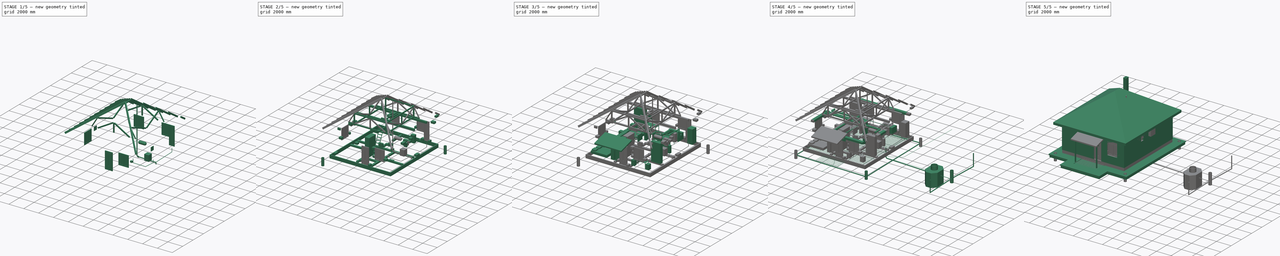
[diagram: build sequence overview — one tinted view per stage of 5, left to right]
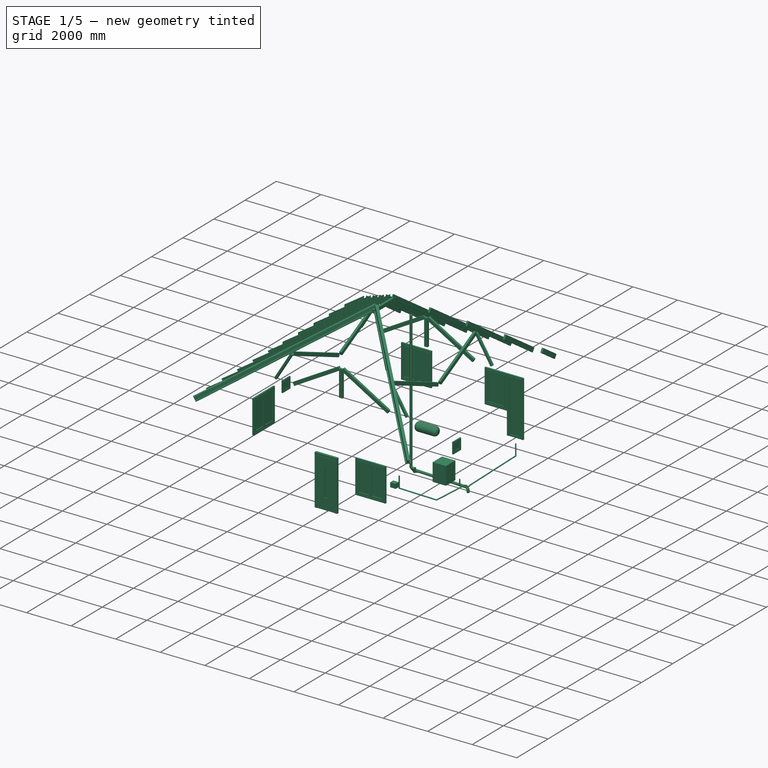
[diagram: stage 1 of 5 — iso view after this stage's code; geometry added in this stage tinted green]
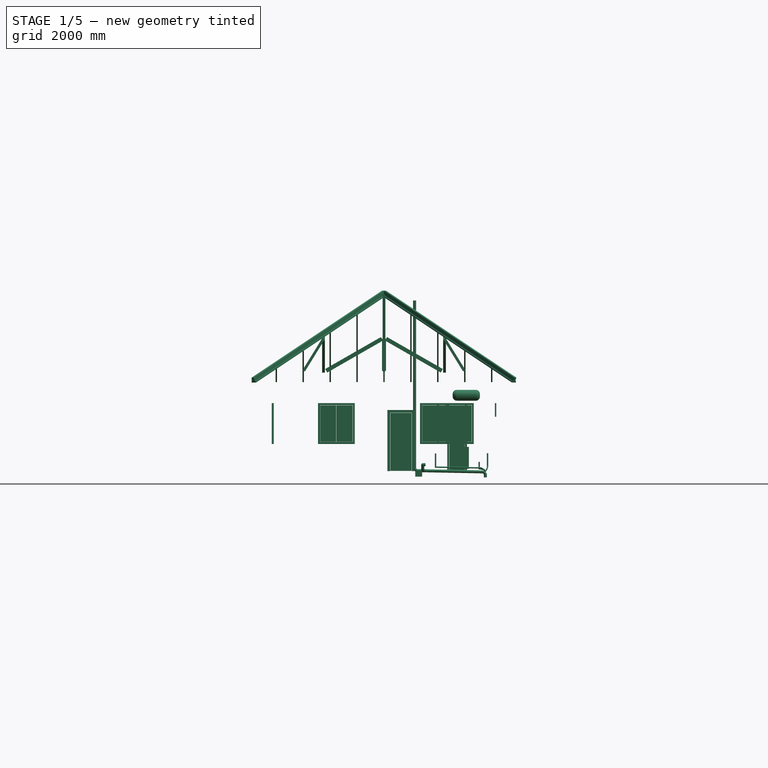
[diagram: stage 1 of 5 — front view after this stage's code; geometry added in this stage tinted green]
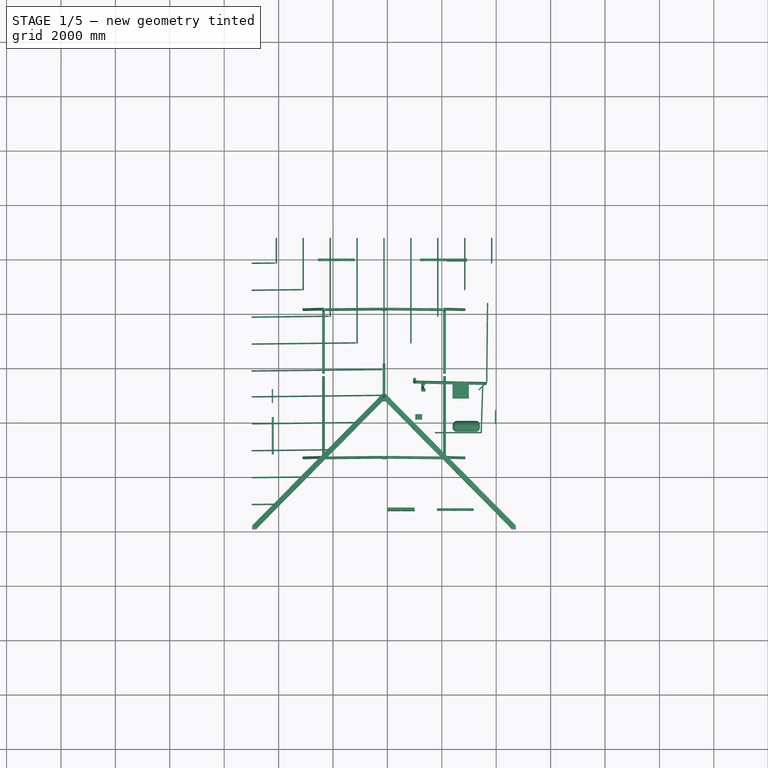
[diagram: stage 1 of 5 — top view after this stage's code; geometry added in this stage tinted green]
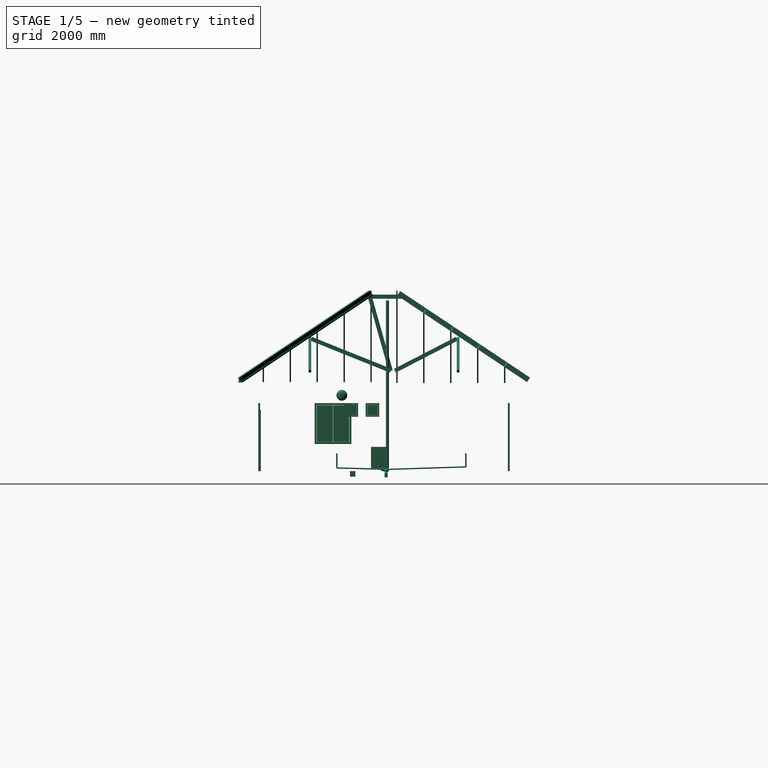
[diagram: stage 1 of 5 — right view after this stage's code; geometry added in this stage tinted green]
FCSTD DOCUMENT  (FreeCAD 0.18.4R)
Label: small_one_family_house_v4
License: All rights reserved
LicenseURL: http://en.wikipedia.org/wiki/All_rights_reserved
objects: Part::Feature×936, Part::Part2DObjectPython×349, Part::FeaturePython×247, Part::Box×134, App::DocumentObjectGroup×34, App::GeometryPython×28, Sketcher::SketchObject×28, Part::Mirroring×27, App::FeaturePython×11, Part::Extrusion×10, Part::MultiFuse×8, Part::Cylinder×2, Part::Fuse×1, Part::Loft×1, Part::Fillet×1
note: 1772 computed .brp shape members not serialized (recipe doc carries the construction recipe); baked Part::Feature solids carry a one-line shape summary decoded from their .brp

FEATURE [Part::FeaturePython] Structure188  label="дверь"  # Arch/BIM object (typed FeaturePython)
  Base = -> Rectangle365
  FaceMaker = 0
  Height = 2250
  HorizontalArea = 375000
  IfcRole = 0
  Length = 0
  MoveWithHost = false
  Nodes = (2) [(-4225,7937.5,0),(-4225,7937.5,2250)]
  NodesOffset = 0
  Normal = (0,0,0)
  PerimeterLength = 2750
  Placement = pos=(0,0,-90) rot=(0,0,1;0rad)
  VerticalArea = 6.1875e+06
  Width = 100
FEATURE [Part::FeaturePython] Structure191  label="окно_мал_001"  # Arch/BIM object (typed FeaturePython)
  Base = -> Rectangle364
  FaceMaker = 0
  Height = 500
  HorizontalArea = 187500
  IfcRole = 0
  Length = 0
  MoveWithHost = false
  Nodes = (2) [(-2175,7937.5,0),(-2175,7937.5,500)]
  NodesOffset = 0
  Normal = (0,0,0)
  PerimeterLength = 1750
  Placement = pos=(0,0,1910) rot=(0,0,1;0rad)
  VerticalArea = 875000
  Width = 100
FEATURE [Part::FeaturePython] Structure192  label="окно_бол_001"  # Arch/BIM object (typed FeaturePython)
  Base = -> Rectangle374
  FaceMaker = 0
  Height = 1500
  HorizontalArea = 506250
  IfcRole = 0
  Length = 0
  MoveWithHost = false
  Nodes = (2) [(1187.5,6500,0),(1187.5,6500,1500)]
  NodesOffset = 0
  Normal = (0,0,0)
  PerimeterLength = 3450
  Placement = pos=(0,0,910) rot=(0,0,1;0rad)
  VerticalArea = 5175000
  Width = 100
FEATURE [Part::FeaturePython] Structure193  label="окно_бол_016"  # Arch/BIM object (typed FeaturePython)
  Base = -> Rectangle375
  FaceMaker = 0
  Height = 1500
  HorizontalArea = 506250
  IfcRole = 0
  Length = 0
  MoveWithHost = false
  Nodes = (2) [(-2125,-187.5,0),(-2125,-187.5,1500)]
  NodesOffset = 0
  Normal = (0,0,0)
  PerimeterLength = 3450
  Placement = pos=(0,0,910) rot=(0,0,1;0rad)
  VerticalArea = 5175000
  Width = 100
FEATURE [Part::FeaturePython] Structure194  label="окно_бол_015"  # Arch/BIM object (typed FeaturePython)
  Base = -> Rectangle395
  FaceMaker = 0
  Height = 1500
  HorizontalArea = 506250
  IfcRole = 0
  Length = 0
  MoveWithHost = false
  Nodes = (2) [(7937.5,-2125,0),(7937.5,-2125,1500)]
  NodesOffset = 0
  Normal = (0,0,0)
  PerimeterLength = 3450
  Placement = pos=(0,0,910) rot=(0,0,1;0rad)
  VerticalArea = 5175000
  Width = 100
FEATURE [Part::FeaturePython] Structure195  label="окно_мал_002"  # Arch/BIM object (typed FeaturePython)
  Base = -> Rectangle377
  FaceMaker = 0
  Height = 500
  HorizontalArea = 187500
  IfcRole = 0
  Length = 0
  MoveWithHost = false
  Nodes = (2) [(-187.5,2950,0),(-187.5,2950,500)]
  NodesOffset = 0
  Normal = (0,0,0)
  PerimeterLength = 1750
  Placement = pos=(0,0,1910) rot=(0,0,1;0rad)
  VerticalArea = 875000
  Width = 100
FEATURE [App::DocumentObjectGroup] ____________  label="спальня  побольше"
  Group = -> [Group038,Box3082,Box3108,Box3095,Box3096,Box3116,Equipment008]
FEATURE [App::DocumentObjectGroup] ____________001  label="спальня  поменьше"
  Group = -> [Group,Box3097,Equipment009,Box3110,Box3117,Extrude037,Extrude034,Extrude054]
FEATURE [App::DocumentObjectGroup] Group039  label="спальни"
  Group = -> [____________,____________001]
FEATURE [Part::Part2DObjectPython] Arc  # Draft 2D object (typed FeaturePython)
  FirstAngle = 90
  LastAngle = 180
  MakeFace = false
  Placement = pos=(2925,3800,0) rot=(0,0,1;0rad)
  Radius = 800
FEATURE [Part::Part2DObjectPython] Line538  # Draft 2D object (typed FeaturePython)
  ChamferSize = 0
  Closed = false
  End = (3525,4600,0)
  FilletRadius = 0
  Length = 800
  MakeFace = false
  Placement = pos=(3525,3800,0) rot=(0,0,1;0rad)
  Points = (2) [(0,0,0),(0,800,0)]
  Start = (3525,3800,0)
  Subdivisions = 0
  Support = -> [Rectangle382]
FEATURE [Part::Part2DObjectPython] Line539  # Draft 2D object (typed FeaturePython)
  ChamferSize = 0
  Closed = false
  End = (4625,4100,0)
  FilletRadius = 0
  Length = 300
  MakeFace = false
  Placement = pos=(4625,3800,0) rot=(0,0,1;0rad)
  Points = (2) [(0,0,0),(0,300,0)]
  Start = (4625,3800,0)
  Subdivisions = 0
FEATURE [Part::Part2DObjectPython] Arc007  # Draft 2D object (typed FeaturePython)
  FirstAngle = 0
  LastAngle = 90
  MakeFace = false
  Placement = pos=(3525,3800,0) rot=(0,0,1;0rad)
  Radius = 800
FEATURE [Part::Part2DObjectPython] Arc008  # Draft 2D object (typed FeaturePython)
  FirstAngle = 90
  LastAngle = 180
  MakeFace = false
  Placement = pos=(4625,3800,0) rot=(0,0,1;0rad)
  Radius = 300
FEATURE [Part::Part2DObjectPython] Line540  # Draft 2D object (typed FeaturePython)
  ChamferSize = 0
  Closed = false
  End = (2925,3800,0)
  FilletRadius = 0
  Length = 800
  MakeFace = false
  Placement = pos=(2925,4600,0) rot=(0,0,1;0rad)
  Points = (2) [(0,0,0),(0,-800,0)]
  Start = (2925,4600,0)
  Subdivisions = 0
FEATURE [Part::Part2DObjectPython] ShapeString001  label="надпись 002"  # Draft 2D object (typed FeaturePython)
  FontFile = <path>
  Placement = pos=(1287.75,6631.64,0) rot=(0,0,1;0rad)
  Size = 100
  String = спальня 12.4 м2
  Tracking = 0
FEATURE [Part::Part2DObjectPython] ShapeString002  label="надпись 003"  # Draft 2D object (typed FeaturePython)
  FontFile = <path>
  Placement = pos=(1223.27,1429.34,0) rot=(0,0,1;0rad)
  Size = 100
  String = спальня 10.4 м2
  Tracking = 0
FEATURE [Part::Part2DObjectPython] ShapeString003  label="надпись 004"  # Draft 2D object (typed FeaturePython)
  FontFile = <path>
  Placement = pos=(5989.62,2269.66,0) rot=(0,0,1;0rad)
  Size = 100
  String = С/У 5.1 м2
  Tracking = 0
FEATURE [Part::Part2DObjectPython] ShapeString004  label="надпись 005"  # Draft 2D object (typed FeaturePython)
  FontFile = <path>
  Placement = pos=(5808.75,189.13,0) rot=(0,0,1;0rad)
  Size = 100
  String = кабинет 6.4 м2
  Tracking = 0
FEATURE [Part::Part2DObjectPython] ShapeString005  label="надпись 006"  # Draft 2D object (typed FeaturePython)
  FontFile = <path>
  Placement = pos=(746.921,2662.34,0) rot=(0,0,1;0rad)
  Size = 100
  String = кладовка 2.3 м2
  Tracking = 0
FEATURE [Part::Part2DObjectPython] ShapeString006  label="надпись 007"  # Draft 2D object (typed FeaturePython)
  FontFile = <path>
  Placement = pos=(4135.63,-358.89,0) rot=(0,0,1;0rad)
  Size = 100
  String = тамбур 2.5 м2
  Tracking = 0
FEATURE [Part::Part2DObjectPython] Line549  # Draft 2D object (typed FeaturePython)
  ChamferSize = 0
  Closed = false
  End = (4000,450,0)
  FilletRadius = 0
  Length = 1000
  MakeFace = false
  Placement = pos=(4000,1450,0) rot=(0,0,1;0rad)
  Points = (2) [(0,0,0),(0,-1000,0)]
  Start = (4000,1450,0)
  Subdivisions = 0
FEATURE [Part::Box] Box3131  label="стиральная_машина_60х60"
  AttacherType = Attacher::AttachEngine3D
  Height = 800
  Length = 600
  Placement = pos=(6993.65,2898.06,0) rot=(0,0,1;1.5708rad)
  Width = 600
FEATURE [App::GeometryPython] BuildingPart033  label="стены и перегородки 12 рядов 3м"  # Arch/BIM object (typed FeaturePython)
  Area = 0
  Group = -> [Wall030,Wall031,Wall034,Wall036,Wall035,Wall032,Wall033,Wall037,Wall038,Wall039,Wall040,Wall041,Wall042,Wall043,Wall044,Wall045,Wall046,Wall047,Wall048,Wall049,Wall050,Wall051,Wall052,Wall053,Wall060,Wall061,Wall071,Wall074,Wall075]
  Height = 0
  IfcRole = 0
  LevelOffset = 0
FEATURE [Part::FeaturePython] Structure196  label="окно_на_террасу"  # Arch/BIM object (typed FeaturePython)
  Base = -> Rectangle606
  FaceMaker = 0
  Height = 1500
  HorizontalArea = 375000
  IfcRole = 0
  Length = 0
  MoveWithHost = false
  Nodes = (2) [(5700,7937.5,0),(5700,7937.5,1500)]
  NodesOffset = 0
  Normal = (0,0,0)
  PerimeterLength = 2750
  Placement = pos=(0,0,910) rot=(0,0,1;0rad)
  VerticalArea = 4.125e+06
  Width = 100
FEATURE [Part::FeaturePython] Structure293  label="дверь_на_террасу"  # Arch/BIM object (typed FeaturePython)
  Base = -> Rectangle605
  FaceMaker = 0
  Height = 2500
  HorizontalArea = 271875
  IfcRole = 0
  Length = 0
  MoveWithHost = false
  Nodes = (2) [(6562.5,7937.5,0),(6562.5,7937.5,2500)]
  NodesOffset = 0
  Normal = (0,0,0)
  PerimeterLength = 2200
  Placement = pos=(0,0,-90) rot=(0,0,1;0rad)
  VerticalArea = 5500000
  Width = 100
FEATURE [Part::FeaturePython] Structure310  label="брус коньковый"  # Arch/BIM object (typed FeaturePython)
  Base = -> Rectangle643
  FaceMaker = 0
  Height = 150
  HorizontalArea = 140000
  IfcRole = 0
  Length = 0
  MoveWithHost = false
  Nodes = (2) [(3875,3375,0),(3875,3375,150)]
  NodesOffset = 0
  Normal = (0,0,0)
  PerimeterLength = 3000
  Placement = pos=(0,0,6250) rot=(0,0,1;0rad)
  VerticalArea = 450000
  Width = 100
FEATURE [Part::Feature] Box3886  label="Блок 250х200_223"
  Placement = pos=(5025,3575,-290) rot=(0,0,-1;1.5708rad)
  shape: bbox 250 x 625 x 200 mm, 6 faces (baked)
FEATURE [Part::Feature] Box3887  label="Блок 250х200_224"
  Placement = pos=(5025,2950,-290) rot=(0,0,-1;1.5708rad)
  shape: bbox 250 x 625 x 200 mm, 6 faces (baked)
FEATURE [Part::Box] Box3888  label="Блок 250х200 добор 012"
  AttacherType = Attacher::AttachEngine3D
  Height = 200
  Length = 200
  Placement = pos=(5025,2325,-290) rot=(0,0,-1;1.5708rad)
  Width = 250
FEATURE [App::DocumentObjectGroup] Group041  label="Цоколь и основание под перегородки001"
  Group = -> [Box3778,Box3879,Box3860,Box3875,Box3876,Box3870,Box3871,Box3868,Box3877,Box3867,Box3858,Box3873,Box3861,Box3862,Box3880,Box3865,Box3866,Box3844,Box3835,Box3834,Box3878,Box3836,Box3842,Box3853,Box3841,Box3864,Box3846,Box3848,Box3852,Box3850,Box3851,Box3856,Box3785,Box3837,Box3843,Box3787,Box3779,Box3784,Box3782,Box3855,Box3854,Box3838,Box3874,Box3857,Box3881,Box3788,Box3786,Box3840,Box3780,Box3790,+51 more]
FEATURE [App::DocumentObjectGroup] Group032  label="порядовка стен"
  Group = -> [Group041,Group033,Group040,Group042,Group044,Group054,Group055,Group061,Group064,Group065,Group047]
FEATURE [Part::Part2DObjectPython] Line587  # Draft 2D object (typed FeaturePython)
  ChamferSize = 0
  Closed = false
  End = (3825,2800,6250)
  FilletRadius = 0
  Length = 25
  MakeFace = false
  Placement = pos=(3825,2800,6225) rot=(0.57735,-0.57735,-0.57735;2.0944rad)
  Points = (2) [(0,0,0),(0,25,4.54747e-13)]
  Start = (3825,2800,6225)
  Subdivisions = 0
FEATURE [Part::Part2DObjectPython] Line589  # Draft 2D object (typed FeaturePython)
  ChamferSize = 0
  Closed = false
  End = (3825,2800,6250)
  FilletRadius = 0
  Length = 2775.45
  MakeFace = false
  Placement = pos=(3825,3625,3825) rot=(0.57735,-0.57735,-0.57735;2.0944rad)
  Points = (2) [(1.36424e-12,-225,0),(825,2425,4.54747e-13)]
  Start = (3825,3625,3600)
  Subdivisions = 0
FEATURE [Part::Part2DObjectPython] Line591  # Draft 2D object (typed FeaturePython)
  ChamferSize = 0
  Closed = false
  End = (3400,3700,0)
  FilletRadius = 0
  Length = 475
  MakeFace = false
  Placement = pos=(3875,3700,0) rot=(0,0,1;0rad)
  Points = (2) [(0,0,0),(-475,-4.54747e-13,0)]
  Start = (3875,3700,0)
  Subdivisions = 0
  Support = -> [Rectangle645]
FEATURE [Part::Part2DObjectPython] Line592  # Draft 2D object (typed FeaturePython)
  ChamferSize = 0
  Closed = false
  End = (5000,3500,50)
  FilletRadius = 0
  Length = 2600.96
  MakeFace = false
  Placement = pos=(7600,3450,0) rot=(0,0,1;0rad)
  Points = (2) [(0,0,0),(-2600,50,50)]
  Start = (7600,3450,0)
  Subdivisions = 0
  Support = -> [Box3131]
FEATURE [Part::Part2DObjectPython] Line593  # Draft 2D object (typed FeaturePython)
  ChamferSize = 0
  Closed = false
  End = (5000,3500,50)
  FilletRadius = 0
  Length = 50
  MakeFace = false
  Placement = pos=(5000,3500,0) rot=(0,0,1;0rad)
  Points = (2) [(0,0,0),(0,0,50)]
  Start = (5000,3500,0)
  Subdivisions = 0
FEATURE [Part::Part2DObjectPython] Line594  # Draft 2D object (typed FeaturePython)
  ChamferSize = 0
  Closed = false
  End = (7600,3450,-201.806)
  FilletRadius = 0
  Length = 201.806
  MakeFace = false
  Placement = pos=(7600,3450,0) rot=(0,0,1;0rad)
  Points = (2) [(0,0,0),(0,-9.09495e-13,-201.806)]
  Start = (7600,3450,0)
  Subdivisions = 0
FEATURE [Part::Part2DObjectPython] Line595  # Draft 2D object (typed FeaturePython)
  ChamferSize = 0
  Closed = false
  End = (5000,3500,6300)
  FilletRadius = 0
  Length = 6300
  MakeFace = false
  Placement = pos=(5000,3500,0) rot=(0,0,1;0rad)
  Points = (2) [(0,0,0),(0,0,6300)]
  Start = (5000,3500,0)
  Subdivisions = 0
FEATURE [Part::Part2DObjectPython] Wire173  label="фановая d110 002"  # Draft 2D object (typed FeaturePython)
  ChamferSize = 100
  Closed = false
  End = (5000,3500,6181.81)
  FilletRadius = 0
  Length = 8972.6
  MakeFace = false
  Placement = pos=(7600,3450,-320) rot=(0,0,1;0rad)
  Points = (4) [(0,0,0),(0,9.09495e-13,201.806),(-2600,50,251.806),(-2600,50,6501.81)]
  Start = (7600,3450,-320)
  Subdivisions = 0
FEATURE [Part::FeaturePython] Pipe057  label="фановая d110 001"  # Arch/BIM object (typed FeaturePython)
  Base = -> Wire173
  Diameter = 110
  HorizontalArea = 0
  IfcRole = 98
  Length = 8972.6
  MoveWithHost = false
  OffsetEnd = 0
  OffsetStart = 0
  PerimeterLength = 0
  VerticalArea = 0
FEATURE [Part::Part2DObjectPython] Line596  # Draft 2D object (typed FeaturePython)
  ChamferSize = 0
  Closed = false
  End = (5300,3200,0)
  FilletRadius = 0
  Length = 100
  MakeFace = false
  Placement = pos=(5400,3200,0) rot=(0,0,1;0rad)
  Points = (2) [(0,0,0),(-100,0,0)]
  Start = (5400,3200,0)
  Subdivisions = 0
FEATURE [Part::Part2DObjectPython] Line597  # Draft 2D object (typed FeaturePython)
  ChamferSize = 0
  Closed = false
  End = (5300,3500,0)
  FilletRadius = 0
  Length = 300
  MakeFace = false
  Placement = pos=(5300,3200,0) rot=(0,0,1;0rad)
  Points = (2) [(0,0,0),(0,300,0)]
  Start = (5300,3200,0)
  Subdivisions = 0
FEATURE [Part::Part2DObjectPython] Line598  # Draft 2D object (typed FeaturePython)
  ChamferSize = 0
  Closed = false
  End = (5400,3500,0)
  FilletRadius = 0
  Length = 141.421
  MakeFace = false
  Placement = pos=(5300,3400,0) rot=(0,0,1;0rad)
  Points = (2) [(0,0,0),(100,100,0)]
  Start = (5300,3400,0)
  Subdivisions = 0
FEATURE [Part::Part2DObjectPython] Line599  # Draft 2D object (typed FeaturePython)
  ChamferSize = 0
  Closed = false
  End = (7900,6400,0)
  FilletRadius = 0
  Length = 100
  MakeFace = false
  Placement = pos=(7800,6400,0) rot=(0,0,1;0rad)
  Points = (2) [(0,0,0),(100,0,0)]
  Start = (7800,6400,0)
  Subdivisions = 0
FEATURE [Part::Part2DObjectPython] Line600  # Draft 2D object (typed FeaturePython)
  ChamferSize = 0
  Closed = false
  End = (5769.38,2064.62,800)
  FilletRadius = 0
  Length = 300
  MakeFace = false
  Placement = pos=(5769.38,1764.62,800) rot=(0,0,1;0rad)
  Points = (2) [(0,0,0),(0,300,0)]
  Start = (5769.38,1764.62,800)
  Subdivisions = 0
FEATURE [Part::Part2DObjectPython] Line601  # Draft 2D object (typed FeaturePython)
  ChamferSize = 0
  Closed = false
  End = (7700,3550,0)
  FilletRadius = 0
  Length = 2850
  MakeFace = false
  Placement = pos=(7700,6400,0) rot=(0,0,1;0rad)
  Points = (2) [(0,0,0),(0,-2850,0)]
  Start = (7700,6400,0)
  Subdivisions = 0
FEATURE [Part::Part2DObjectPython] Line602  # Draft 2D object (typed FeaturePython)
  ChamferSize = 0
  Closed = false
  End = (7600,3450,0)
  FilletRadius = 0
  Length = 141.421
  MakeFace = false
  Placement = pos=(7700,3550,0) rot=(0,0,1;0rad)
  Points = (2) [(0,0,0),(-100,-100,0)]
  Start = (7700,3550,0)
  Subdivisions = 0
FEATURE [Part::Part2DObjectPython] Line603  # Draft 2D object (typed FeaturePython)
  ChamferSize = 0
  Closed = false
  End = (7246.45,3096.45,0)
  FilletRadius = 0
  Length = 500
  MakeFace = false
  Placement = pos=(7600,3450,0) rot=(0,0,1;0rad)
  Points = (2) [(0,0,0),(-353.553,-353.553,0)]
  Start = (7600,3450,0)
  Subdivisions = 0
FEATURE [Part::Part2DObjectPython] Line604  # Draft 2D object (typed FeaturePython)
  ChamferSize = 0
  Closed = false
  End = (5400,3200,150)
  FilletRadius = 0
  Length = 150
  MakeFace = false
  Placement = pos=(5400,3200,0) rot=(0,0,1;0rad)
  Points = (2) [(0,0,0),(0,0,150)]
  Start = (5400,3200,0)
  Subdivisions = 0
FEATURE [Part::Part2DObjectPython] Line605  # Draft 2D object (typed FeaturePython)
  ChamferSize = 0
  Closed = false
  End = (5300,3200,150)
  FilletRadius = 0
  Length = 150
  MakeFace = false
  Placement = pos=(5300,3200,0) rot=(0,0,1;0rad)
  Points = (2) [(0,0,0),(0,0,150)]
  Start = (5300,3200,0)
  Subdivisions = 0
FEATURE [Part::Part2DObjectPython] Line606  # Draft 2D object (typed FeaturePython)
  ChamferSize = 0
  Closed = false
  End = (5300,3400,-50)
  FilletRadius = 0
  Length = 50
  MakeFace = false
  Placement = pos=(5300,3400,0) rot=(0,0,1;0rad)
  Points = (2) [(0,0,0),(0,0,-50)]
  Start = (5300,3400,0)
  Subdivisions = 0
FEATURE [Part::Part2DObjectPython] Line608  # Draft 2D object (typed FeaturePython)
  ChamferSize = 0
  Closed = false
  End = (5391,3492.48,-75.713)
  FilletRadius = 0
  Length = 75.727
  MakeFace = false
  Placement = pos=(5392.45,3492.45,0) rot=(0,0,1;0rad)
  Points = (2) [(0,0,0),(-1.45548,0.02799,-75.713)]
  Start = (5392.45,3492.45,0)
  Subdivisions = 0
FEATURE [Part::Part2DObjectPython] Line609  # Draft 2D object (typed FeaturePython)
  ChamferSize = 0
  Closed = false
  End = (5300,3200,150)
  FilletRadius = 0
  Length = 180.278
  MakeFace = false
  Placement = pos=(5300,3300,0) rot=(0,0,1;0rad)
  Points = (2) [(0,0,0),(0,-100,150)]
  Start = (5300,3300,0)
  Subdivisions = 0
FEATURE [Part::Part2DObjectPython] Line610  # Draft 2D object (typed FeaturePython)
  ChamferSize = 0
  Closed = false
  End = (5300,3300,-25)
  FilletRadius = 0
  Length = 25
  MakeFace = false
  Placement = pos=(5300,3300,0) rot=(0,0,1;0rad)
  Points = (2) [(0,0,0),(0,0,-25)]
  Start = (5300,3300,0)
  Subdivisions = 0
FEATURE [Part::Part2DObjectPython] Line611  # Draft 2D object (typed FeaturePython)
  ChamferSize = 0
  Closed = false
  End = (5490.96,3490.58,-77.613)
  FilletRadius = 0
  Length = 99.9961
  MakeFace = false
  Placement = pos=(5391,3492.48,-75.713) rot=(0,0,1;0rad)
  Points = (2) [(0,0,0),(99.96,-1.9,-1.9)]
  Start = (5391,3492.48,-75.713)
  Subdivisions = 0
FEATURE [Part::Part2DObjectPython] Wire174  label="фановая d110 004"  # Draft 2D object (typed FeaturePython)
  ChamferSize = 0
  Closed = false
  End = (5400,3200,150)
  FilletRadius = 0
  Length = 636.897
  MakeFace = false
  Placement = pos=(5490.96,3490.58,-77.613) rot=(0,0,1;0rad)
  Points = (6) [(0,0,0),(-99.96,1.9,1.9),(-190.957,-90.5808,27.613),(-190.957,-190.581,52.613),(-190.957,-290.581,227.613),(-90.9573,-290.581,227.613)]
  Start = (5490.96,3490.58,-77.613)
  Subdivisions = 0
FEATURE [Part::FeaturePython] Pipe058  label="фановая d110 003"  # Arch/BIM object (typed FeaturePython)
  Base = -> Wire174
  Diameter = 110
  HorizontalArea = 0
  IfcRole = 98
  Length = 636.897
  MoveWithHost = false
  OffsetEnd = 0
  OffsetStart = 0
  PerimeterLength = 0
  VerticalArea = 0
FEATURE [Part::Part2DObjectPython] Line612  # Draft 2D object (typed FeaturePython)
  ChamferSize = 0
  Closed = false
  End = (7700,6400,50)
  FilletRadius = 0
  Length = 50
  MakeFace = false
  Placement = pos=(7700,6400,0) rot=(0,0,1;0rad)
  Points = (2) [(0,0,0),(0,0,50)]
  Start = (7700,6400,0)
  Subdivisions = 0
FEATURE [Part::Part2DObjectPython] Wire175  label="фановая d50 002"  # Draft 2D object (typed FeaturePython)
  ChamferSize = 0
  Closed = false
  End = (7682,6382,568.731)
  FilletRadius = 0
  Length = 3485.64
  MakeFace = false
  Placement = pos=(7682,3532,18.731) rot=(0,0,1;0rad)
  Points = (4) [(-82,-82,-115.966),(-30,-30,-42.4264),(0,2850,50),(0,2850,550)]
  Start = (7600,3450,-97.2345)
  Subdivisions = 0
FEATURE [Part::FeaturePython] Pipe059  label="фановая d50 001"  # Arch/BIM object (typed FeaturePython)
  Base = -> Wire175
  Diameter = 50
  HorizontalArea = 0
  IfcRole = 98
  Length = 3485.64
  MoveWithHost = false
  OffsetEnd = 0
  OffsetStart = 0
  PerimeterLength = 0
  VerticalArea = 0
FEATURE [Part::Part2DObjectPython] Line613  # Draft 2D object (typed FeaturePython)
  ChamferSize = 0
  Closed = false
  End = (7375,2650,0)
  FilletRadius = 0
  Length = 800
  MakeFace = false
  Placement = pos=(7375,3450,0) rot=(0,0,1;0rad)
  Points = (2) [(0,0,0),(0,-800,0)]
  Start = (7375,3450,0)
  Subdivisions = 0
FEATURE [Part::Part2DObjectPython] Line614  # Draft 2D object (typed FeaturePython)
  ChamferSize = 0
  Closed = false
  End = (7700,1639.62,0)
  FilletRadius = 0
  Length = 1930.62
  MakeFace = false
  Placement = pos=(5769.38,1639.62,0) rot=(0,0,1;0rad)
  Points = (2) [(0,0,0),(1930.62,2.27374e-13,0)]
  Start = (5769.38,1639.62,0)
  Subdivisions = 0
FEATURE [Part::Part2DObjectPython] Line615  # Draft 2D object (typed FeaturePython)
  ChamferSize = 0
  Closed = false
  End = (7450,3374,0)
  FilletRadius = 0
  Length = 1674
  MakeFace = false
  Placement = pos=(7450,1700,0) rot=(0,0,1;0rad)
  Points = (2) [(0,0,0),(0,1674,0)]
  Start = (7450,1700,0)
  Subdivisions = 0
FEATURE [Part::Part2DObjectPython] Line616  # Draft 2D object (typed FeaturePython)
  ChamferSize = 0
  Closed = false
  End = (7400,1639.62,0)
  FilletRadius = 0
  Length = 78.3948
  MakeFace = false
  Placement = pos=(7450,1700,0) rot=(0,0,1;0rad)
  Points = (2) [(0,0,0),(-50,-60.38,0)]
  Start = (7450,1700,0)
  Subdivisions = 0
FEATURE [Part::Part2DObjectPython] Line617  # Draft 2D object (typed FeaturePython)
  ChamferSize = 0
  Closed = false
  End = (7450,1700,30)
  FilletRadius = 0
  Length = 30
  MakeFace = false
  Placement = pos=(7450,1700,0) rot=(0,0,1;0rad)
  Points = (2) [(0,0,0),(0,0,30)]
  Start = (7450,1700,0)
  Subdivisions = 0
FEATURE [Part::Part2DObjectPython] Line618  # Draft 2D object (typed FeaturePython)
  ChamferSize = 0
  Closed = false
  End = (7430,1639.62,0)
  FilletRadius = 0
  Length = 30
  MakeFace = false
  Placement = pos=(7400,1639.62,0) rot=(0,0,1;0rad)
  Points = (2) [(0,0,0),(30,0,0)]
  Start = (7400,1639.62,0)
  Subdivisions = 0
FEATURE [Part::Part2DObjectPython] Line619  # Draft 2D object (typed FeaturePython)
  ChamferSize = 0
  Closed = false
  End = (7400,1639.62,30)
  FilletRadius = 0
  Length = 30
  MakeFace = false
  Placement = pos=(7400,1639.62,0) rot=(0,0,1;0rad)
  Points = (2) [(0,0,0),(0,0,30)]
  Start = (7400,1639.62,0)
  Subdivisions = 0
FEATURE [Part::Part2DObjectPython] Line620  # Draft 2D object (typed FeaturePython)
  ChamferSize = 0
  Closed = false
  End = (5769.38,1639.62,60)
  FilletRadius = 0
  Length = 60
  MakeFace = false
  Placement = pos=(5769.38,1639.62,0) rot=(0,0,1;0rad)
  Points = (2) [(0,0,0),(0,0,60)]
  Start = (5769.38,1639.62,0)
  Subdivisions = 0
FEATURE [Part::Part2DObjectPython] Line621  # Draft 2D object (typed FeaturePython)
  ChamferSize = 0
  Closed = false
  End = (7506.69,3356.69,0)
  FilletRadius = 0
  Length = 18.731
  MakeFace = false
  Placement = pos=(7506.69,3356.69,18.731) rot=(0,0,1;0rad)
  Points = (2) [(0,0,0),(0,0,-18.731)]
  Start = (7506.69,3356.69,18.731)
  Subdivisions = 0
  Support = -> [Pipe057]
FEATURE [Part::Part2DObjectPython] Wire176  label="фановая d50 006"  # Draft 2D object (typed FeaturePython)
  ChamferSize = 0
  Closed = false
  End = (5769.38,1639.62,560)
  FilletRadius = 0
  Length = 2180.88
  MakeFace = false
  Placement = pos=(7506.69,3356.69,0) rot=(0,0,1;0rad)
  Points = (4) [(-56.6863,-1717.06,30),(-63.5169,-1717.06,30.1219),(-1737.3,-1717.06,60),(-1737.3,-1717.06,560)]
  Start = (7450,1639.62,30)
  Subdivisions = 0
FEATURE [Part::Part2DObjectPython] Line622  # Draft 2D object (typed FeaturePython)
  ChamferSize = 0
  Closed = false
  End = (7450,1639.62,0)
  FilletRadius = 0
  Length = 60.3777
  MakeFace = false
  Placement = pos=(7450,1700,0) rot=(0,0,1;0rad)
  Points = (2) [(0,0,0),(0,-60.3777,0)]
  Start = (7450,1700,0)
  Subdivisions = 0
FEATURE [Part::Part2DObjectPython] Line623  # Draft 2D object (typed FeaturePython)
  ChamferSize = 0
  Closed = false
  End = (7450,1639.62,30)
  FilletRadius = 0
  Length = 30
  MakeFace = false
  Placement = pos=(7450,1639.62,0) rot=(0,0,1;0rad)
  Points = (2) [(0,0,0),(0,0,30)]
  Start = (7450,1639.62,0)
  Subdivisions = 0
FEATURE [Part::FeaturePython] Pipe060  label="фановая d50 003"  # Arch/BIM object (typed FeaturePython)
  Base = -> Wire176
  Diameter = 50
  HorizontalArea = 0
  IfcRole = 98
  Length = 2180.88
  MoveWithHost = false
  OffsetEnd = 0
  OffsetStart = 0
  PerimeterLength = 0
  VerticalArea = 0
FEATURE [Part::Cylinder] Cylinder001  label="гидроаккумулятор 001"
  Angle = 360
  AttacherType = Attacher::AttachEngine3D
  Height = 1000
  Placement = pos=(7400,1825,2700) rot=(0,-1,0;1.5708rad)
  Radius = 200
FEATURE [Part::Fillet] Fillet  label="гидроаккумулятор"
  Base = -> Cylinder001
  Edges = 2 edges r=150: [Edge1,Edge3]
FEATURE [App::GeometryPython] BuildingPart061  label="Водоснабжение"  # Arch/BIM object (typed FeaturePython)
  Area = 0
  Group = -> [Pipe049,Fillet]
  Height = 0
  IfcRole = 0
  LevelOffset = 0
FEATURE [Part::Part2DObjectPython] Line624  # Draft 2D object (typed FeaturePython)
  ChamferSize = 0
  Closed = false
  End = (7652,3502,-23.6954)
  FilletRadius = 0
  Length = 147.078
  MakeFace = true
  Placement = pos=(7548,3398,-23.6954) rot=(0,0,1;0rad)
  Points = (2) [(0,0,0),(104,104,-1.1724e-12)]
  Start = (7548,3398,-23.6954)
  Subdivisions = 0
FEATURE [Part::Part2DObjectPython] Wire178  label="фановая d50 008"  # Draft 2D object (typed FeaturePython)
  ChamferSize = 0
  Closed = false
  End = (7375,3225,250)
  FilletRadius = 0
  Length = 599.804
  MakeFace = true
  Placement = pos=(7600,3450,-97.2345) rot=(0,0,1;0rad)
  Points = (4) [(0,0,0),(-52,-52,73.5391),(-225,-225,97.2345),(-225,-225,347.235)]
  Start = (7600,3450,-97.2345)
  Subdivisions = 0
FEATURE [Part::FeaturePython] Pipe062  label="фановая d50 007"  # Arch/BIM object (typed FeaturePython)
  Base = -> Wire178
  Diameter = 50
  HorizontalArea = 0
  IfcRole = 98
  Length = 599.804
  MoveWithHost = false
  OffsetEnd = 0
  OffsetStart = 0
  PerimeterLength = 0
  VerticalArea = 0
FEATURE [Part::Part2DObjectPython] Wire179  label="фановая d50 010"  # Draft 2D object (typed FeaturePython)
  ChamferSize = 0
  Closed = false
  End = (7504.1,3354.1,-17.6822)
  FilletRadius = 0
  Length = 3896.88
  MakeFace = true
  Placement = pos=(5769.38,1639.62,560) rot=(0,0,1;0rad)
  Points = (4) [(0,0,0),(0,-2.95586e-12,-500),(1680.62,-2.18064e-05,-530),(1734.71,1714.48,-577.682)]
  Start = (5769.38,1639.62,560)
  Subdivisions = 0
FEATURE [App::DocumentObjectGroup] Group071  label="канализация и водоснабжение"
  Group = -> [Wire173,Wire174,Wire175,Wire118,Wire119,Wire176,Wire178,Wire179,Wire103]
FEATURE [App::DocumentObjectGroup] Group067  label="инж.системы"
  Group = -> [Group066,Group071]
FEATURE [Part::FeaturePython] Pipe063  label="фановая d50 009"  # Arch/BIM object (typed FeaturePython)
  Base = -> Wire179
  Diameter = 50
  HorizontalArea = 0
  IfcRole = 98
  Length = 3896.88
  MoveWithHost = false
  OffsetEnd = 0
  OffsetStart = 0
  PerimeterLength = 0
  VerticalArea = 0
FEATURE [App::GeometryPython] BuildingPart056  label="Внутренняя канализация"  # Arch/BIM object (typed FeaturePython)
  Area = 0
  Group = -> [Pipe,Pipe057,Pipe058,Pipe059,Pipe060,Pipe062,Pipe063]
  Height = 0
  IfcRole = 0
  LevelOffset = 0
FEATURE [App::GeometryPython] BuildingPart051  label="Канализация"  # Arch/BIM object (typed FeaturePython)
  Area = 0
  Group = -> [BuildingPart052,BuildingPart056]
  Height = 0
  IfcRole = 0
  LevelOffset = 0
FEATURE [App::GeometryPython] BuildingPart062  label="Инженерные системы"  # Arch/BIM object (typed FeaturePython)
  Area = 0
  Group = -> [BuildingPart060,BuildingPart051,BuildingPart055,BuildingPart061]
  Height = 0
  IfcRole = 0
  LevelOffset = 0
FEATURE [Part::Part2DObjectPython] Rectangle658  label="стойка 056"  # Draft 2D object (typed FeaturePython)
  ChamferSize = 0
  Columns = 1
  FilletRadius = 0
  Height = 150
  Length = 100
  MakeFace = true
  Placement = pos=(3950,6050,0) rot=(0,0,1;1.5708rad)
  Rows = 1
FEATURE [Part::FeaturePython] Structure321  label="стойка 057"  # Arch/BIM object (typed FeaturePython)
  Base = -> Rectangle658
  FaceMaker = 0
  Height = 1175
  HorizontalArea = 15000
  IfcRole = 0
  Length = 0
  MoveWithHost = false
  Nodes = (2) [(-6100,3875,0),(-6100,3875,1175)]
  NodesOffset = 0
  Normal = (0,0,0)
  PerimeterLength = 500
  Placement = pos=(0,0,3600) rot=(0,0,1;0rad)
  VerticalArea = 587500
  Width = 100
FEATURE [Part::Part2DObjectPython] Rectangle659  label="стойка 058"  # Draft 2D object (typed FeaturePython)
  ChamferSize = 0
  Columns = 1
  FilletRadius = 0
  Height = 150
  Length = 100
  MakeFace = true
  Placement = pos=(3950,600,0) rot=(0,0,1;1.5708rad)
  Rows = 1
FEATURE [Part::FeaturePython] Structure322  label="стойка 059"  # Arch/BIM object (typed FeaturePython)
  Base = -> Rectangle659
  FaceMaker = 0
  Height = 1175
  HorizontalArea = 15000
  IfcRole = 0
  Length = 0
  MoveWithHost = false
  Nodes = (2) [(-650,3875,0),(-650,3875,1175)]
  NodesOffset = 0
  Normal = (0,0,0)
  PerimeterLength = 500
  Placement = pos=(0,0,3600) rot=(0,0,1;0rad)
  VerticalArea = 587500
  Width = 100
FEATURE [Part::Part2DObjectPython] Line626  label="накосное стропило line"  # Draft 2D object (typed FeaturePython)
  ChamferSize = 0
  Closed = false
  End = (3875,3875,6389.99)
  FilletRadius = 0
  Length = 7500
  MakeFace = true
  Placement = pos=(-922.018,8672.02,3191.99) rot=(0,0,1;0rad)
  Points = (2) [(0,0,0),(4797.02,-4797.02,3198)]
  Start = (-922.018,8672.02,3191.99)
  Subdivisions = 0
FEATURE [Part::Part2DObjectPython] Wire183  label="профиль стропила001"  # Draft 2D object (typed FeaturePython)
  ChamferSize = 0
  Closed = true
  End = (-1004.29,8895.71,3090)
  FilletRadius = 0
  Length = 800
  MakeFace = false
  Placement = pos=(-1145.71,8754.29,3090) rot=(0,0,1;0.785398rad)
  Points = (8) [(0,0,0),(0,50,0),(50,50,0),(50,200,0),(150,200,0),(150,50,0),(200,50,0),(200,-1.81899e-12,0)]
  Start = (-1145.71,8754.29,3090)
  Subdivisions = 0
FEATURE [Part::FeaturePython] Pipe064  label="накосное стропило 001"  # Arch/BIM object (typed FeaturePython)
  Base = -> Line626
  Diameter = 50
  HorizontalArea = 0
  IfcRole = 98
  Length = 7500
  MoveWithHost = false
  OffsetEnd = 0
  OffsetStart = 0
  PerimeterLength = 0
  Placement = pos=(0,0,50) rot=(0,0,1;0rad)
  Profile = -> Wire183
  VerticalArea = 0
FEATURE [Part::Mirroring] mirror012  label="накосное стропило 002"
  Base = (3875,2675,0)
  Normal = (-1,0,0)
  Source = -> Pipe064
FEATURE [Part::Mirroring] mirror013  label="накосное стропило 004"
  Base = (1650,3375,0)
  Normal = (0,-1,0)
  Source = -> Pipe064
FEATURE [Part::Mirroring] mirror014  label="накосное стропило 003"
  Base = (3875,3375,0)
  Normal = (0,1,0)
  Source = -> mirror012
FEATURE [Part::Part2DObjectPython] Line627  # Draft 2D object (typed FeaturePython)
  ChamferSize = 0
  Closed = false
  End = (3875,2675,6250)
  FilletRadius = 0
  Length = 700
  MakeFace = false
  Placement = pos=(3875,3375,6250) rot=(0.707107,0.707107,0;3.14159rad)
  Points = (2) [(0,0,0),(-700,2.72848e-12,0)]
  Start = (3875,3375,6250)
  Subdivisions = 0
  Support = -> [Structure310]
FEATURE [Part::Part2DObjectPython] Line628  # Draft 2D object (typed FeaturePython)
  ChamferSize = 0
  Closed = false
  End = (3675,2875,6250)
  FilletRadius = 0
  Length = 400
  MakeFace = false
  Placement = pos=(4075,2875,6250) rot=(0.707107,0.707107,0;3.14159rad)
  Points = (2) [(0,0,0),(0,-400,0)]
  Start = (4075,2875,6250)
  Subdivisions = 0
FEATURE [Part::Part2DObjectPython] Line630  label="подкос line 001"  # Draft 2D object (typed FeaturePython)
  ChamferSize = 0
  Closed = false
  End = (3875,2862.5,6294.18)
  FilletRadius = 0
  Length = 2800
  MakeFace = false
  Placement = pos=(3875,3625,3600) rot=(0.707107,0.707107,0;3.14159rad)
  Points = (2) [(0,0,0),(-762.503,3.18323e-12,-2694.18)]
  Start = (3875,3625,3600)
  Subdivisions = 0
FEATURE [Part::Part2DObjectPython] Rectangle660  label="подкос_сечение_001"  # Draft 2D object (typed FeaturePython)
  ChamferSize = 0
  Columns = 1
  FilletRadius = 0
  Height = 150
  Length = 100
  MakeFace = true
  Placement = pos=(3825,2800,6250) rot=(0,0,1;0rad)
  Rows = 1
FEATURE [Part::FeaturePython] Pipe065  label="подкос line 002"  # Arch/BIM object (typed FeaturePython)
  Base = -> Line630
  Diameter = 50
  HorizontalArea = 0
  IfcRole = 98
  Length = 2800
  MoveWithHost = false
  OffsetEnd = 0
  OffsetStart = 0
  PerimeterLength = 0
  Profile = -> Rectangle660
  VerticalArea = 0
FEATURE [Part::Part2DObjectPython] Line631  label="подкос_099"  # Draft 2D object (typed FeaturePython)
  ChamferSize = 0
  Closed = false
  End = (1650,3775,3600)
  FilletRadius = 0
  Length = 2560.52
  MakeFace = false
  Placement = pos=(1650,6050,4775) rot=(0,0,1;0rad)
  Points = (2) [(0,0,0),(-4.54747e-13,-2275,-1175)]
  Start = (1650,6050,4775)
  Subdivisions = 0
FEATURE [Part::Part2DObjectPython] Line632  label="подкос_100"  # Draft 2D object (typed FeaturePython)
  ChamferSize = 0
  Closed = false
  End = (1650,700,4775)
  FilletRadius = 0
  Length = 3152.18
  MakeFace = false
  Placement = pos=(1650,3625,3600) rot=(0,0,1;0rad)
  Points = (2) [(0,0,0),(-4.54747e-13,-2925,1175)]
  Start = (1650,3625,3600)
  Subdivisions = 0
FEATURE [Part::Part2DObjectPython] Line633  label="подкос_102"  # Draft 2D object (typed FeaturePython)
  ChamferSize = 0
  Closed = false
  End = (6100,3775,3600)
  FilletRadius = 0
  Length = 2560.52
  MakeFace = false
  Placement = pos=(6100,6050,4775) rot=(0,0,1;0rad)
  Points = (2) [(0,0,0),(0,-2275,-1175)]
  Start = (6100,6050,4775)
  Subdivisions = 0
FEATURE [Part::Part2DObjectPython] Line634  label="подкос_101"  # Draft 2D object (typed FeaturePython)
  ChamferSize = 0
  Closed = false
  End = (6100,700,4775)
  FilletRadius = 0
  Length = 3152.18
  MakeFace = false
  Placement = pos=(6100,3625,3600) rot=(0,0,1;0rad)
  Points = (2) [(0,0,0),(-9.09495e-13,-2925,1175)]
  Start = (6100,3625,3600)
  Subdivisions = 0
FEATURE [Part::FeaturePython] Pipe066  label="подкос_001"  # Arch/BIM object (typed FeaturePython)
  Base = -> Line633
  Diameter = 50
  HorizontalArea = 0
  IfcRole = 98
  Length = 2560.52
  MoveWithHost = false
  OffsetEnd = 0
  OffsetStart = 0
  PerimeterLength = 0
  Profile = -> Rectangle660
  VerticalArea = 0
FEATURE [Part::FeaturePython] Pipe067  label="подкос_012"  # Arch/BIM object (typed FeaturePython)
  Base = -> Line634
  Diameter = 50
  HorizontalArea = 0
  IfcRole = 98
  Length = 3152.18
  MoveWithHost = false
  OffsetEnd = 0
  OffsetStart = 0
  PerimeterLength = 0
  Profile = -> Rectangle660
  VerticalArea = 0
FEATURE [Part::FeaturePython] Pipe068  label="подкос_011"  # Arch/BIM object (typed FeaturePython)
  Base = -> Line632
  Diameter = 50
  HorizontalArea = 0
  IfcRole = 98
  Length = 3152.18
  MoveWithHost = false
  OffsetEnd = 0
  OffsetStart = 0
  PerimeterLength = 0
  Profile = -> Rectangle660
  VerticalArea = 0
FEATURE [Part::FeaturePython] Pipe069  label="подкос_010"  # Arch/BIM object (typed FeaturePython)
  Base = -> Line631
  Diameter = 50
  HorizontalArea = 0
  IfcRole = 98
  Length = 2560.52
  MoveWithHost = false
  OffsetEnd = 0
  OffsetStart = 0
  PerimeterLength = 0
  Profile = -> Rectangle660
  VerticalArea = 0
FEATURE [Part::Part2DObjectPython] Line635  label="подкос_095"  # Draft 2D object (typed FeaturePython)
  ChamferSize = 0
  Closed = false
  End = (1650,6100,4775)
  FilletRadius = 0
  Length = 1380.67
  MakeFace = false
  Placement = pos=(925,6100,3600) rot=(0,0,1;0rad)
  Points = (2) [(0,0,0),(725,9.09495e-13,1175)]
  Start = (925,6100,3600)
  Subdivisions = 0
FEATURE [Part::Part2DObjectPython] Line636  label="подкос_096"  # Draft 2D object (typed FeaturePython)
  ChamferSize = 0
  Closed = false
  End = (1650,650,4775)
  FilletRadius = 0
  Length = 1380.67
  MakeFace = false
  Placement = pos=(925,650,3600) rot=(0,0,1;0rad)
  Points = (2) [(0,0,0),(725,-9.09495e-13,1175)]
  Start = (925,650,3600)
  Subdivisions = 0
FEATURE [Part::Part2DObjectPython] Line637  label="подкос_098"  # Draft 2D object (typed FeaturePython)
  ChamferSize = 0
  Closed = false
  End = (6100,650,4775)
  FilletRadius = 0
  Length = 1380.67
  MakeFace = false
  Placement = pos=(6825,650,3600) rot=(0,0,1;0rad)
  Points = (2) [(0,0,0),(-725,-9.09495e-13,1175)]
  Start = (6825,650,3600)
  Subdivisions = 0
FEATURE [Part::Part2DObjectPython] Line638  label="подкос_097"  # Draft 2D object (typed FeaturePython)
  ChamferSize = 0
  Closed = false
  End = (6100,6100,4775)
  FilletRadius = 0
  Length = 1380.67
  MakeFace = false
  Placement = pos=(6825,6100,3600) rot=(0,0,1;0rad)
  Points = (2) [(0,0,0),(-725,9.09495e-13,1175)]
  Start = (6825,6100,3600)
  Subdivisions = 0
FEATURE [Part::Part2DObjectPython] Rectangle661  label="подкос_сечение_#_001"  # Draft 2D object (typed FeaturePython)
  ChamferSize = 0
  Columns = 1
  FilletRadius = 0
  Height = 100
  Length = 100
  MakeFace = true
  Placement = pos=(3825,2800,6250) rot=(0,0,1;0rad)
  Rows = 1
FEATURE [Part::FeaturePython] Pipe070  label="подкос_короткий_001"  # Arch/BIM object (typed FeaturePython)
  Base = -> Line637
  Diameter = 50
  HorizontalArea = 0
  IfcRole = 98
  Length = 1380.67
  MoveWithHost = false
  OffsetEnd = 0
  OffsetStart = 0
  PerimeterLength = 0
  Profile = -> Rectangle661
  VerticalArea = 0
FEATURE [Part::FeaturePython] Pipe071  label="подкос_короткий_002"  # Arch/BIM object (typed FeaturePython)
  Base = -> Line638
  Diameter = 50
  HorizontalArea = 0
  IfcRole = 98
  Length = 1380.67
  MoveWithHost = false
  OffsetEnd = 0
  OffsetStart = 0
  PerimeterLength = 0
  Profile = -> Rectangle661
  VerticalArea = 0
FEATURE [Part::FeaturePython] Pipe072  label="подкос_короткий_003"  # Arch/BIM object (typed FeaturePython)
  Base = -> Line636
  Diameter = 50
  HorizontalArea = 0
  IfcRole = 98
  Length = 1380.67
  MoveWithHost = false
  OffsetEnd = 0
  OffsetStart = 0
  PerimeterLength = 0
  Profile = -> Rectangle661
  VerticalArea = 0
FEATURE [Part::FeaturePython] Pipe073  label="подкос_короткий_004"  # Arch/BIM object (typed FeaturePython)
  Base = -> Line635
  Diameter = 50
  HorizontalArea = 0
  IfcRole = 98
  Length = 1380.67
  MoveWithHost = false
  OffsetEnd = 0
  OffsetStart = 0
  PerimeterLength = 0
  Profile = -> Rectangle661
  VerticalArea = 0
FEATURE [Part::Part2DObjectPython] Line639  label="подкос_091"  # Draft 2D object (typed FeaturePython)
  ChamferSize = 0
  Closed = false
  End = (3800,650,4775)
  FilletRadius = 0
  Length = 2362.86
  MakeFace = false
  Placement = pos=(1750,650,3600) rot=(0,0,1;0rad)
  Points = (2) [(0,0,0),(2050,-3.41061e-13,1175)]
  Start = (1750,650,3600)
  Subdivisions = 0
FEATURE [Part::Part2DObjectPython] Line640  label="подкос_092"  # Draft 2D object (typed FeaturePython)
  ChamferSize = 0
  Closed = false
  End = (6000,650,3600)
  FilletRadius = 0
  Length = 2362.86
  MakeFace = false
  Placement = pos=(3950,650,4775) rot=(0,0,1;0rad)
  Points = (2) [(0,0,0),(2050,-1.13687e-13,-1175)]
  Start = (3950,650,4775)
  Subdivisions = 0
FEATURE [Part::Part2DObjectPython] Line641  label="подкос_094"  # Draft 2D object (typed FeaturePython)
  ChamferSize = 0
  Closed = false
  End = (3950,6100,4775)
  FilletRadius = 0
  Length = 2362.86
  MakeFace = false
  Placement = pos=(6000,6100,3600) rot=(0,0,1;0rad)
  Points = (2) [(0,0,0),(-2050,1.81899e-12,1175)]
  Start = (6000,6100,3600)
  Subdivisions = 0
FEATURE [Part::Part2DObjectPython] Line642  label="подкос_093"  # Draft 2D object (typed FeaturePython)
  ChamferSize = 0
  Closed = false
  End = (1750,6100,3600)
  FilletRadius = 0
  Length = 2362.86
  MakeFace = false
  Placement = pos=(3800,6100,4775) rot=(0,0,1;0rad)
  Points = (2) [(0,0,0),(-2050,0,-1175)]
  Start = (3800,6100,4775)
  Subdivisions = 0
FEATURE [Part::Part2DObjectPython] Rectangle662  label="подкос_сечение_002"  # Draft 2D object (typed FeaturePython)
  ChamferSize = 0
  Columns = 1
  FilletRadius = 0
  Height = 100
  Length = 150
  MakeFace = true
  Placement = pos=(3825,2800,6250) rot=(0,0,1;0rad)
  Rows = 1
FEATURE [App::DocumentObjectGroup] Group070  label="стр.система вальмовая"
  Group = -> [Rectangle643,Rectangle644,Rectangle645,Array,Array022,Line576,Line580,Array023,Rectangle654,Rectangle653,Rectangle652,Rectangle656,Rectangle657,Rectangle655,Rectangle651,Rectangle658,Rectangle659,Wire183,Line626,Rectangle660,Line630,Rectangle661,Rectangle662,Line639,Line640,Line642,Line641,Line635,Line636,Line638,Line637,Line631,Line632,Line634,Line633,Wire091]
FEATURE [Part::FeaturePython] Pipe074  label="подкос_030"  # Arch/BIM object (typed FeaturePython)
  Base = -> Line641
  Diameter = 50
  HorizontalArea = 0
  IfcRole = 98
  Length = 2362.86
  MoveWithHost = false
  OffsetEnd = 0
  OffsetStart = 0
  PerimeterLength = 0
  Profile = -> Rectangle662
  VerticalArea = 0
FEATURE [Part::FeaturePython] Pipe075  label="подкос_031"  # Arch/BIM object (typed FeaturePython)
  Base = -> Line642
  Diameter = 50
  HorizontalArea = 0
  IfcRole = 98
  Length = 2362.86
  MoveWithHost = false
  OffsetEnd = 0
  OffsetStart = 0
  PerimeterLength = 0
  Profile = -> Rectangle662
  VerticalArea = 0
FEATURE [Part::FeaturePython] Pipe076  label="подкос_033"  # Arch/BIM object (typed FeaturePython)
  Base = -> Line640
  Diameter = 50
  HorizontalArea = 0
  IfcRole = 98
  Length = 2362.86
  MoveWithHost = false
  OffsetEnd = 0
  OffsetStart = 0
  PerimeterLength = 0
  Profile = -> Rectangle662
  VerticalArea = 0
FEATURE [Part::FeaturePython] Pipe077  label="подкос_032"  # Arch/BIM object (typed FeaturePython)
  Base = -> Line639
  Diameter = 50
  HorizontalArea = 0
  IfcRole = 98
  Length = 2362.86
  MoveWithHost = false
  OffsetEnd = 0
  OffsetStart = 0
  PerimeterLength = 0
  Profile = -> Rectangle662
  VerticalArea = 0
FEATURE [Part::Part2DObjectPython] Wire184  # Draft 2D object (typed FeaturePython)
  ChamferSize = 0
  Closed = true
  End = (-922.467,-1993.18,3349.4)
  FilletRadius = 0
  Length = 24595.8
  MakeFace = true
  Placement = pos=(3874.55,2803.84,6547.41) rot=(0,0,1;0rad)
  Points = (4) [(0,0,0),(0.898117,0,0),(4797.92,-4797.02,-3198),(-4797.02,-4797.02,-3198)]
  Start = (3874.55,2803.84,6547.41)
  Subdivisions = 0
FEATURE [Part::Part2DObjectPython] Wire185  # Draft 2D object (typed FeaturePython)
  ChamferSize = 0
  Closed = true
  End = (8743.18,8672.47,3349.4)
  FilletRadius = 0
  Length = 26595.8
  MakeFace = true
  Placement = pos=(8743.18,-1922.47,3349.4) rot=(0,0,1;0rad)
  Points = (4) [(0,0,0),(-4797.02,4797.02,3198),(-4797.02,5797.92,3198),(0,10594.9,0)]
  Start = (8743.18,-1922.47,3349.4)
  Subdivisions = 0
FEATURE [App::DocumentObjectGroup] Construction
  Group = -> [Rectangle398,Rectangle423,Rectangle425,Rectangle448,Rectangle449,Rectangle453,Rectangle454,Rectangle455,Rectangle457,Line281,Line282,Line283,Line285,Line301,Line302,Line303,Line304,Line305,Rectangle474,Line307,Rectangle479,Rectangle488,Rectangle492,Rectangle491,Rectangle496,Rectangle504,Wire125,Rectangle509,Line411,Line412,Line417,Dimension013,Line418,Line419,Line421,Line424,Rectangle512,+86 more]
FEATURE [Part::Part2DObjectPython] Wire186  label="нарожник_001"  # Draft 2D object (typed FeaturePython)
  ChamferSize = 0
  Closed = true
  End = (-60,-1993.18,3349.4)
  FilletRadius = 0
  Length = 2141.19
  MakeFace = true
  Placement = pos=(-110,-1993.18,3349.4) rot=(0,0,1;0rad)
  Points = (4) [(0,0,0),(-1.5774e-12,812.467,541.644),(50,862.467,574.977),(50,0,0)]
  Start = (-110,-1993.18,3349.4)
  Subdivisions = 0
FEATURE [Part::Part2DObjectPython] Wire187  label="нарожник_025"  # Draft 2D object (typed FeaturePython)
  ChamferSize = 0
  Closed = true
  End = (930,-1993.18,3349.4)
  FilletRadius = 0
  Length = 4520.86
  MakeFace = true
  Placement = pos=(880,-1993.18,3349.4) rot=(0,0,1;0rad)
  Points = (4) [(0,0,0),(-5.68434e-13,1802.47,1201.64),(50,1852.47,1234.98),(50,0,0)]
  Start = (880,-1993.18,3349.4)
  Subdivisions = 0
FEATURE [Part::Part2DObjectPython] Wire188  label="нарожник_027"  # Draft 2D object (typed FeaturePython)
  ChamferSize = 0
  Closed = true
  End = (1920,-1993.18,3349.4)
  FilletRadius = 0
  Length = 6900.52
  MakeFace = true
  Placement = pos=(1870,-1993.18,3349.4) rot=(0,0,1;0rad)
  Points = (4) [(0,0,0),(-9.09495e-13,2792.47,1861.64),(50,2842.47,1894.97),(50,0,0)]
  Start = (1870,-1993.18,3349.4)
  Subdivisions = 0
FEATURE [Part::Part2DObjectPython] Wire189  label="нарожник_026"  # Draft 2D object (typed FeaturePython)
  ChamferSize = 0
  Closed = true
  End = (2910,-1993.18,3349.4)
  FilletRadius = 0
  Length = 9280.18
  MakeFace = true
  Placement = pos=(2860,-1993.18,3349.4) rot=(0,0,1;0rad)
  Points = (4) [(0,0,0),(-1.81899e-12,3782.47,2521.64),(50,3832.47,2554.97),(50,0,0)]
  Start = (2860,-1993.18,3349.4)
  Subdivisions = 0
FEATURE [Part::Part2DObjectPython] Wire190  label="нарожник_029"  # Draft 2D object (typed FeaturePython)
  ChamferSize = 0
  Closed = true
  End = (3900,-1993.18,3349.4)
  FilletRadius = 0
  Length = 11571.6
  MakeFace = true
  Placement = pos=(3850,-1993.18,3349.4) rot=(0,0,1;0rad)
  Points = (4) [(0,0,0),(-1.36424e-12,4772.47,3181.64),(50,4772.47,3181.64),(50,0,0)]
  Start = (3850,-1993.18,3349.4)
  Subdivisions = 0
FEATURE [Part::Part2DObjectPython] Wire191  label="нарожник_030"  # Draft 2D object (typed FeaturePython)
  ChamferSize = 0
  Closed = true
  End = (4890,-1993.18,3349.4)
  FilletRadius = 0
  Length = 9280.18
  MakeFace = true
  Placement = pos=(4840,-1993.18,3349.4) rot=(0,0,1;0rad)
  Points = (4) [(0,0,0),(-9.09495e-13,3832.47,2554.97),(50,3782.47,2521.64),(50,0,0)]
  Start = (4840,-1993.18,3349.4)
  Subdivisions = 0
FEATURE [Part::Part2DObjectPython] Wire192  label="нарожник_032"  # Draft 2D object (typed FeaturePython)
  ChamferSize = 0
  Closed = true
  End = (5880,-1993.18,3349.4)
  FilletRadius = 0
  Length = 6900.52
  MakeFace = true
  Placement = pos=(5830,-1993.18,3349.4) rot=(0,0,1;0rad)
  Points = (4) [(0,0,0),(-9.09495e-13,2842.47,1894.97),(50,2792.47,1861.64),(50,0,0)]
  Start = (5830,-1993.18,3349.4)
  Subdivisions = 0
FEATURE [Part::Part2DObjectPython] Wire193  label="нарожник_028"  # Draft 2D object (typed FeaturePython)
  ChamferSize = 0
  Closed = true
  End = (6870,-1993.18,3349.4)
  FilletRadius = 0
  Length = 4520.86
  MakeFace = true
  Placement = pos=(6820,-1993.18,3349.4) rot=(0,0,1;0rad)
  Points = (4) [(0,0,0),(-9.09495e-13,1852.47,1234.98),(50,1802.47,1201.64),(50,0,0)]
  Start = (6820,-1993.18,3349.4)
  Subdivisions = 0
FEATURE [Part::Part2DObjectPython] Wire194  label="нарожник_031"  # Draft 2D object (typed FeaturePython)
  ChamferSize = 0
  Closed = true
  End = (7860,-1993.18,3349.4)
  FilletRadius = 0
  Length = 2141.19
  MakeFace = true
  Placement = pos=(7810,-1993.18,3349.4) rot=(0,0,1;0rad)
  Points = (4) [(0,0,0),(-9.09495e-13,862.467,574.977),(50,812.467,541.644),(50,0,0)]
  Start = (7810,-1993.18,3349.4)
  Subdivisions = 0
FEATURE [Part::FeaturePython] Structure325  label="нарожник 001"  # Arch/BIM object (typed FeaturePython)
  Base = -> Wire186
  FaceMaker = 0
  Height = 200
  HorizontalArea = 41873.4
  IfcRole = 0
  Length = 0
  MoveWithHost = false
  Nodes = (2) [(-84.7512,618.343,4171.72),(-84.7512,618.343,3971.72)]
  NodesOffset = 0
  Normal = (0,0,0)
  PerimeterLength = 0
  VerticalArea = 402604
  Width = 100
FEATURE [Part::FeaturePython] Structure326  label="нарожник 031"  # Arch/BIM object (typed FeaturePython)
  Base = -> Wire187
  FaceMaker = 0
  Height = 200
  HorizontalArea = 91373.4
  IfcRole = 0
  Length = 0
  MoveWithHost = false
  Nodes = (2) [(905.114,1113.28,4501.68),(905.114,1113.28,4301.68)]
  NodesOffset = 0
  Normal = (0,0,0)
  PerimeterLength = 0
  VerticalArea = 878536
  Width = 100
FEATURE [Part::FeaturePython] Structure327  label="нарожник 029"  # Arch/BIM object (typed FeaturePython)
  Base = -> Wire189
  FaceMaker = 0
  Height = 200
  HorizontalArea = 190373
  IfcRole = 0
  Length = 0
  MoveWithHost = false
  Nodes = (2) [(2885.05,2103.25,5161.66),(2885.05,2103.25,4961.66)]
  NodesOffset = 0
  Normal = (0,0,0)
  PerimeterLength = 0
  VerticalArea = 1.8304e+06
  Width = 100
FEATURE [Part::FeaturePython] Structure328  label="нарожник 026"  # Arch/BIM object (typed FeaturePython)
  Base = -> Wire188
  FaceMaker = 0
  Height = 200
  HorizontalArea = 140873
  IfcRole = 0
  Length = 0
  MoveWithHost = false
  Nodes = (2) [(1895.07,1608.26,4831.66),(1895.07,1608.26,4631.66)]
  NodesOffset = 0
  Normal = (0,0,0)
  PerimeterLength = 0
  VerticalArea = 1.35447e+06
  Width = 100
FEATURE [Part::FeaturePython] Structure329  label="нарожник 028"  # Arch/BIM object (typed FeaturePython)
  Base = -> Wire193
  FaceMaker = 0
  Height = 200
  HorizontalArea = 91373.4
  IfcRole = 0
  Length = 0
  MoveWithHost = false
  Nodes = (2) [(6844.89,1113.28,4501.68),(6844.89,1113.28,4301.68)]
  NodesOffset = 0
  Normal = (0,0,0)
  PerimeterLength = 0
  VerticalArea = 878536
  Width = 100
FEATURE [Part::FeaturePython] Structure330  label="нарожник 027"  # Arch/BIM object (typed FeaturePython)
  Base = -> Wire190
  FaceMaker = 0
  Height = 200
  HorizontalArea = 238623
  IfcRole = 0
  Length = 0
  MoveWithHost = false
  Nodes = (2) [(3875,2585.72,5483.31),(3875,2585.72,5283.31)]
  NodesOffset = 0
  Normal = (0,0,0)
  PerimeterLength = 0
  VerticalArea = 2.29431e+06
  Width = 100
FEATURE [Part::FeaturePython] Structure331  label="нарожник 025"  # Arch/BIM object (typed FeaturePython)
  Base = -> Wire191
  FaceMaker = 0
  Height = 200
  HorizontalArea = 190373
  IfcRole = 0
  Length = 0
  MoveWithHost = false
  Nodes = (2) [(4864.95,2103.25,5161.66),(4864.95,2103.25,4961.66)]
  NodesOffset = 0
  Normal = (0,0,0)
  PerimeterLength = 0
  VerticalArea = 1.8304e+06
  Width = 100
FEATURE [Part::FeaturePython] Structure332  label="нарожник 032"  # Arch/BIM object (typed FeaturePython)
  Base = -> Wire194
  FaceMaker = 0
  Height = 200
  HorizontalArea = 41873.4
  IfcRole = 0
  Length = 0
  MoveWithHost = false
  Nodes = (2) [(7834.75,618.343,4171.72),(7834.75,618.343,3971.72)]
  NodesOffset = 0
  Normal = (0,0,0)
  PerimeterLength = 0
  VerticalArea = 402604
  Width = 100
FEATURE [Part::FeaturePython] Structure333  label="нарожник 030"  # Arch/BIM object (typed FeaturePython)
  Base = -> Wire192
  FaceMaker = 0
  Height = 200
  HorizontalArea = 140873
  IfcRole = 0
  Length = 0
  MoveWithHost = false
  Nodes = (2) [(5854.93,1608.26,4831.66),(5854.93,1608.26,4631.66)]
  NodesOffset = 0
  Normal = (0,0,0)
  PerimeterLength = 0
  VerticalArea = 1.35447e+06
  Width = 100
FEATURE [Part::Mirroring] mirror015  label="Mirror of нарожник 001"
  Base = (1650,3375,0)
  Normal = (0,-1,0)
  Source = -> Structure325
FEATURE [Part::Mirroring] mirror016  label="Mirror of нарожник 025"
  Base = (1650,3375,0)
  Normal = (0,-1,0)
  Source = -> Structure331
FEATURE [Part::Mirroring] mirror017  label="Mirror of нарожник 026"
  Base = (1650,3375,0)
  Normal = (0,-1,0)
  Source = -> Structure328
FEATURE [Part::Mirroring] mirror018  label="Mirror of нарожник 027"
  Base = (1650,3375,0)
  Normal = (0,-1,0)
  Source = -> Structure330
FEATURE [Part::Mirroring] mirror019  label="Mirror of нарожник 028"
  Base = (1650,3375,0)
  Normal = (0,-1,0)
  Source = -> Structure329
FEATURE [Part::Mirroring] mirror020  label="Mirror of нарожник 029"
  Base = (1650,3375,0)
  Normal = (0,-1,0)
  Source = -> Structure327
FEATURE [Part::Mirroring] mirror021  label="Mirror of нарожник 030"
  Base = (1650,3375,0)
  Normal = (0,-1,0)
  Source = -> Structure333
FEATURE [Part::Mirroring] mirror022  label="Mirror of нарожник 031"
  Base = (1650,3375,0)
  Normal = (0,-1,0)
  Source = -> Structure326
FEATURE [Part::Mirroring] mirror023  label="Mirror of нарожник 032"
  Base = (1650,3375,0)
  Normal = (0,-1,0)
  Source = -> Structure332
FEATURE [Part::Part2DObjectPython] Wire195  label="нарожник_079"  # Draft 2D object (typed FeaturePython)
  ChamferSize = 0
  Closed = true
  End = (7855.71,-1035,3941.04)
  FilletRadius = 0
  Length = 2201.29
  MakeFace = true
  Placement = pos=(8743.18,-1035,3349.4) rot=(0,1,0;0.588001rad)
  Points = (4) [(0,0,0),(0,-50,0),(-1006.51,-50,0),(-1066.6,9.09495e-13,0)]
  Start = (8743.18,-1035,3349.4)
  Subdivisions = 0
FEATURE [Part::Part2DObjectPython] Wire196  label="нарожник_078"  # Draft 2D object (typed FeaturePython)
  ChamferSize = 0
  Closed = true
  End = (6865.71,-45,4601.04)
  FilletRadius = 0
  Length = 4580.95
  MakeFace = true
  Placement = pos=(8743.18,-45,3349.4) rot=(0,1,0;0.588001rad)
  Points = (4) [(0,0,0),(0,-50,0),(-2196.34,-50,0),(-2256.43,2.79954e-12,0)]
  Start = (8743.18,-45,3349.4)
  Subdivisions = 0
FEATURE [Part::Part2DObjectPython] Wire197  label="нарожник_076"  # Draft 2D object (typed FeaturePython)
  ChamferSize = 0
  Closed = true
  End = (5875.71,945,5261.04)
  FilletRadius = 0
  Length = 6960.61
  MakeFace = true
  Placement = pos=(8743.18,945,3349.4) rot=(0,1,0;0.588001rad)
  Points = (4) [(0,0,0),(0,-50,0),(-3386.17,-50,0),(-3446.26,2.38742e-12,1.81899e-12)]
  Start = (8743.18,945,3349.4)
  Subdivisions = 0
FEATURE [Part::Part2DObjectPython] Wire198  label="нарожник_075"  # Draft 2D object (typed FeaturePython)
  ChamferSize = 0
  Closed = true
  End = (4885.71,1935,5921.04)
  FilletRadius = 0
  Length = 9340.27
  MakeFace = true
  Placement = pos=(8743.18,1935,3349.4) rot=(0,1,0;0.588001rad)
  Points = (4) [(0,0,0),(0,-50,0),(-4576,-50,-9.09495e-13),(-4636.1,2.50111e-12,3.63798e-12)]
  Start = (8743.18,1935,3349.4)
  Subdivisions = 0
FEATURE [Part::Part2DObjectPython] Wire199  label="нарожник_077"  # Draft 2D object (typed FeaturePython)
  ChamferSize = 0
  Closed = true
  End = (3946.16,2925,6547.41)
  FilletRadius = 0
  Length = 11630.6
  MakeFace = true
  Placement = pos=(8743.18,2925,3349.4) rot=(0,1,0;0.588001rad)
  Points = (4) [(0,0,0),(0,-50,0),(-5765.29,-50,0),(-5765.29,4.54747e-12,0)]
  Start = (8743.18,2925,3349.4)
  Subdivisions = 0
FEATURE [Part::Mirroring] mirror024  label="Mirror of Wire195"
  Base = (1650,3375,0)
  Normal = (0,-1,0)
  Source = -> Wire195
FEATURE [Part::Mirroring] mirror025  label="нарожник_080"
  Base = (1650,3375,0)
  Normal = (0,-1,0)
  Source = -> Wire196
FEATURE [Part::Mirroring] mirror026  label="нарожник_081"
  Base = (1650,3375,0)
  Normal = (0,-1,0)
  Source = -> Wire197
FEATURE [Part::Mirroring] mirror027  label="нарожник_083"
  Base = (1650,3375,0)
  Normal = (0,-1,0)
  Source = -> Wire198
FEATURE [Part::Mirroring] mirror028  label="нарожник_082"
  Base = (1650,3375,0)
  Normal = (0,-1,0)
  Source = -> Wire199
FEATURE [Part::FeaturePython] Structure335  label="нарожник 080"  # Arch/BIM object (typed FeaturePython)
  Base = -> mirror024
  FaceMaker = 0
  Height = 200
  HorizontalArea = 43123.4
  IfcRole = 0
  Length = 0
  MoveWithHost = false
  Nodes = (2) [(8311.82,7809.76,3636.97),(8422.76,7809.76,3470.56)]
  NodesOffset = 0
  Normal = (0,0,-1)
  PerimeterLength = 1845.65
  VerticalArea = 369129
  Width = 100
FEATURE [Part::FeaturePython] Structure336  label="нарожник 087"  # Arch/BIM object (typed FeaturePython)
  Base = -> Wire195
  FaceMaker = 0
  Height = 200
  HorizontalArea = 37576.4
  IfcRole = 0
  Length = 0
  MoveWithHost = false
  Nodes = (2) [(8398.89,-1059.76,3924.54),(8398.89,-1059.76,3724.54)]
  NodesOffset = 0
  Normal = (0,0,0)
  PerimeterLength = 0
  VerticalArea = 414622
  Width = 100
FEATURE [Part::FeaturePython] Structure337  label="нарожник 081"  # Arch/BIM object (typed FeaturePython)
  Base = -> mirror025
  FaceMaker = 0
  Height = 200
  HorizontalArea = 92623.4
  IfcRole = 0
  Length = 0
  MoveWithHost = false
  Nodes = (2) [(7816.89,6819.89,3966.93),(7927.83,6819.89,3800.52)]
  NodesOffset = 0
  Normal = (0,0,-1)
  PerimeterLength = 3825.65
  VerticalArea = 765129
  Width = 100
FEATURE [Part::FeaturePython] Structure338  label="нарожник 082"  # Arch/BIM object (typed FeaturePython)
  Base = -> Wire196
  FaceMaker = 0
  Height = 200
  HorizontalArea = 87076.4
  IfcRole = 0
  Length = 0
  MoveWithHost = false
  Nodes = (2) [(-9856.44,-69.8875,-3349.4),(-9856.44,-69.8875,-3149.4)]
  NodesOffset = 0
  Normal = (0,0,0)
  PerimeterLength = 0
  VerticalArea = 890555
  Width = 100
FEATURE [Part::FeaturePython] Structure339  label="нарожник 086"  # Arch/BIM object (typed FeaturePython)
  Base = -> mirror026
  FaceMaker = 0
  Height = 200
  HorizontalArea = 142123
  IfcRole = 0
  Length = 0
  MoveWithHost = false
  Nodes = (2) [(7321.91,5829.93,4296.91),(7432.85,5829.93,4130.5)]
  NodesOffset = 0
  Normal = (0,0,-1)
  PerimeterLength = 5805.65
  VerticalArea = 1.16113e+06
  Width = 100
FEATURE [Part::FeaturePython] Structure340  label="нарожник 084"  # Arch/BIM object (typed FeaturePython)
  Base = -> mirror028
  FaceMaker = 0
  Height = 200
  HorizontalArea = 239851
  IfcRole = 0
  Length = 0
  MoveWithHost = false
  Nodes = (2) [(6344.67,3850,4948.4),(6455.61,3850,4781.99)]
  NodesOffset = 0
  Normal = (0,0,-1)
  PerimeterLength = 9694.04
  VerticalArea = 1.93881e+06
  Width = 100
FEATURE [Part::FeaturePython] Structure341  label="нарожник 085"  # Arch/BIM object (typed FeaturePython)
  Base = -> Wire199
  FaceMaker = 0
  Height = 200
  HorizontalArea = 234304
  IfcRole = 0
  Length = 0
  MoveWithHost = false
  Nodes = (2) [(-11625.8,2900,-3349.4),(-11625.8,2900,-3149.4)]
  NodesOffset = 0
  Normal = (0,0,0)
  PerimeterLength = 0
  VerticalArea = 2.30612e+06
  Width = 100
FEATURE [Part::FeaturePython] Structure342  label="нарожник 088"  # Arch/BIM object (typed FeaturePython)
  Base = -> Wire198
  FaceMaker = 0
  Height = 200
  HorizontalArea = 186076
  IfcRole = 0
  Length = 0
  MoveWithHost = false
  Nodes = (2) [(-11046.2,1910.05,-3349.4),(-11046.2,1910.05,-3149.4)]
  NodesOffset = 0
  Normal = (0,0,0)
  PerimeterLength = 0
  VerticalArea = 1.84242e+06
  Width = 100
FEATURE [Part::FeaturePython] Structure343  label="нарожник 083"  # Arch/BIM object (typed FeaturePython)
  Base = -> Wire197
  FaceMaker = 0
  Height = 200
  HorizontalArea = 136576
  IfcRole = 0
  Length = 0
  MoveWithHost = false
  Nodes = (2) [(-10451.3,920.073,-3349.4),(-10451.3,920.073,-3149.4)]
  NodesOffset = 0
  Normal = (0,0,0)
  PerimeterLength = 0
  VerticalArea = 1.36649e+06
  Width = 100
FEATURE [Part::FeaturePython] Structure344  label="нарожник 089"  # Arch/BIM object (typed FeaturePython)
  Base = -> mirror027
  FaceMaker = 0
  Height = 200
  HorizontalArea = 191623
  IfcRole = 0
  Length = 0
  MoveWithHost = false
  Nodes = (2) [(6826.92,4839.95,4626.91),(6937.86,4839.95,4460.5)]
  NodesOffset = 0
  Normal = (0,0,-1)
  PerimeterLength = 7785.65
  VerticalArea = 1.55713e+06
  Width = 100
FEATURE [Part::Mirroring] mirror029  label="Mirror of нарожник 080"
  Base = (3875,2875,6690.45)
  Normal = (1,0,0)
  Source = -> Structure335
FEATURE [Part::Mirroring] mirror030  label="Mirror of нарожник 081"
  Base = (3875,2875,6690.45)
  Normal = (1,0,0)
  Source = -> Structure337
FEATURE [Part::Mirroring] mirror031  label="Mirror of нарожник 082"
  Base = (3875,2875,6690.45)
  Normal = (1,0,0)
  Source = -> Structure338
FEATURE [Part::Mirroring] mirror032  label="Mirror of нарожник 083"
  Base = (3875,2875,6690.45)
  Normal = (1,0,0)
  Source = -> Structure343
FEATURE [Part::Mirroring] mirror033  label="Mirror of нарожник 084"
  Base = (3875,2875,6690.45)
  Normal = (1,0,0)
  Source = -> Structure340
FEATURE [Part::Mirroring] mirror034  label="Mirror of нарожник 085"
  Base = (3875,2875,6690.45)
  Normal = (1,0,0)
  Source = -> Structure341
FEATURE [Part::Mirroring] mirror035  label="Mirror of нарожник 086"
  Base = (3875,2875,6690.45)
  Normal = (1,0,0)
  Source = -> Structure339
FEATURE [Part::Mirroring] mirror036  label="Mirror of нарожник 087"
  Base = (3875,2875,6690.45)
  Normal = (1,0,0)
  Source = -> Structure336
FEATURE [Part::Mirroring] mirror037  label="Mirror of нарожник 088"
  Base = (3875,2875,6690.45)
  Normal = (1,0,0)
  Source = -> Structure342
FEATURE [Part::Mirroring] mirror038  label="Mirror of нарожник 089"
  Base = (3875,2875,6690.45)
  Normal = (1,0,0)
  Source = -> Structure344
FEATURE [App::GeometryPython] BuildingPart036  label="Кровля"  # Arch/BIM object (typed FeaturePython)
  Area = 0
  Group = -> [Roof002,Structure224,Structure225,Structure240,Structure241,Structure306,Structure307,Structure308,Structure309,Structure310,Structure311,Structure312,Structure313,Structure315,Structure316,Structure317,Structure318,Structure319,Structure320,Structure321,Structure322,mirror013,mirror014,Pipe064,mirror012,Pipe065,Pipe066,Pipe067,Pipe068,Pipe069,Pipe070,Pipe071,Pipe072,Pipe073,Pipe074,Pipe075,+40 more]
  Height = 0
  IfcRole = 0
  LevelOffset = 0
FEATURE [Sketcher::SketchObject] Sketch028
  Placement = pos=(8125,1925,1910) rot=(0.57735,0.57735,0.57735;2.0944rad)
  sketch-geometry (16):
    g0: LineSegment StartX=0 StartY=0 StartZ=0 EndX=500 EndY=0 EndZ=0
    g1: LineSegment StartX=500 StartY=0 StartZ=0 EndX=500 EndY=500 EndZ=0
    g2: LineSegment StartX=500 StartY=500 StartZ=0 EndX=0 EndY=500 EndZ=0
    g3: LineSegment StartX=0 StartY=500 StartZ=0 EndX=0 EndY=0 EndZ=0
    g4: LineSegment StartX=50 StartY=50 StartZ=0 EndX=450 EndY=50 EndZ=0
    g5: LineSegment StartX=450 StartY=50 StartZ=0 EndX=450 EndY=450 EndZ=0
    g6: LineSegment StartX=450 StartY=450 StartZ=0 EndX=50 EndY=450 EndZ=0
    g7: LineSegment StartX=50 StartY=450 StartZ=0 EndX=50 EndY=50 EndZ=0
    g8: LineSegment StartX=55 StartY=55 StartZ=0 EndX=445 EndY=55 EndZ=0
    g9: LineSegment StartX=445 StartY=55 StartZ=0 EndX=445 EndY=445 EndZ=0
    g10: LineSegment StartX=445 StartY=445 StartZ=0 EndX=55 EndY=445 EndZ=0
    g11: LineSegment StartX=55 StartY=445 StartZ=0 EndX=55 EndY=55 EndZ=0
    g12: LineSegment StartX=105 StartY=105 StartZ=0 EndX=395 EndY=105 EndZ=0
    g13: LineSegment StartX=395 StartY=105 StartZ=0 EndX=395 EndY=395 EndZ=0
    g14: LineSegment StartX=395 StartY=395 StartZ=0 EndX=105 EndY=395 EndZ=0
    g15: LineSegment StartX=105 StartY=395 StartZ=0 EndX=105 EndY=105 EndZ=0
  constraints (47):
    c: Coincident(g0,g1)
    c: Coincident(g1,g2)
    c: Coincident(g2,g3)
    c: Coincident(g3,g0)
    c: Horizontal(g0)
    c: Horizontal(g2)
    c: Vertical(g1)
    c: Vertical(g3)
    c: Coincident(g4,g5)
    c: Coincident(g5,g6)
    c: Coincident(g6,g7)
    c: Coincident(g7,g4)
    c: Horizontal(g4)
    c: Horizontal(g6)
    c: Vertical(g5)
    c: Vertical(g7)
    c: DistanceY(g1) = 500  'Height'
    c: DistanceX(g0) = 500  'Width'
    c: DistanceY(g6,g2) = 50  'Frame1'
    c: DistanceX(g2,g6) = 50  'Frame2'
    c: DistanceX(g4,g0) = 50  'Frame3'
    c: DistanceY(g0,g4) = 50  'Frame4'
    c: Coincident(g0,g-1)
    c: Coincident(g8,g9)
    c: Coincident(g9,g10)
    c: Coincident(g10,g11)
    c: Coincident(g11,g8)
    c: Horizontal(g8)
    c: Horizontal(g10)
    c: Vertical(g9)
    c: Vertical(g11)
    c: Coincident(g12,g13)
    c: Coincident(g13,g14)
    c: Coincident(g14,g15)
    c: Coincident(g15,g12)
    c: Horizontal(g12)
    c: Horizontal(g14)
    c: Vertical(g13)
    c: Vertical(g15)
    c: DistanceX(g8,g12) = 50  'Frame5'
    c: DistanceY(g8,g12) = 50  'Frame6'
    c: DistanceX(g14,g10) = 50  'Frame8'
    c: DistanceY(g14,g10) = 50  'Frame7'
    c: DistanceX(g4,g8) = 5
    c: DistanceY(g4,g8) = 5
    c: DistanceX(g10,g6) = 5
    c: DistanceY(g10,g6) = 5
FEATURE [Part::FeaturePython] Window  # Arch/BIM object (typed FeaturePython)
  Area = 250000
  Base = -> Sketch028
  Frame = 50
  Height = 500
  HoleDepth = 0
  HoleWire = 0
  HorizontalArea = 0
  Hosts = -> [Structure191]
  IfcRole = 160
  LouvreSpacing = 0
  LouvreWidth = 0
  MoveWithHost = true
  Normal = (-1,0,0)
  Offset = 125
  Opening = 0
  PerimeterLength = 0
  Preset = 2
  SymbolElevation = false
  SymbolPlan = false
  VerticalArea = 0
  Width = 500
  WindowParts = OuterFrame | Frame | Wire0,Wire1 | 0.0+V | 0.00+V | InnerFrame | Frame | Wire2,Wire3 | 0.00+V | 0.0+V | InnerGlass | Glass panel | Wire3 | 5.0 | 25.0+V
FEATURE [Sketcher::SketchObject] Sketch029
  Placement = pos=(-375,3200,1910) rot=(0.57735,-0.57735,-0.57735;2.0944rad)
  sketch-geometry (16):
    g0: LineSegment StartX=0 StartY=0 StartZ=0 EndX=500 EndY=0 EndZ=0
    g1: LineSegment StartX=500 StartY=0 StartZ=0 EndX=500 EndY=500 EndZ=0
    g2: LineSegment StartX=500 StartY=500 StartZ=0 EndX=0 EndY=500 EndZ=0
    g3: LineSegment StartX=0 StartY=500 StartZ=0 EndX=0 EndY=0 EndZ=0
    g4: LineSegment StartX=50 StartY=50 StartZ=0 EndX=450 EndY=50 EndZ=0
    g5: LineSegment StartX=450 StartY=50 StartZ=0 EndX=450 EndY=450 EndZ=0
    g6: LineSegment StartX=450 StartY=450 StartZ=0 EndX=50 EndY=450 EndZ=0
    g7: LineSegment StartX=50 StartY=450 StartZ=0 EndX=50 EndY=50 EndZ=0
    g8: LineSegment StartX=55 StartY=55 StartZ=0 EndX=445 EndY=55 EndZ=0
    g9: LineSegment StartX=445 StartY=55 StartZ=0 EndX=445 EndY=445 EndZ=0
    g10: LineSegment StartX=445 StartY=445 StartZ=0 EndX=55 EndY=445 EndZ=0
    g11: LineSegment StartX=55 StartY=445 StartZ=0 EndX=55 EndY=55 EndZ=0
    g12: LineSegment StartX=105 StartY=105 StartZ=0 EndX=395 EndY=105 EndZ=0
    g13: LineSegment StartX=395 StartY=105 StartZ=0 EndX=395 EndY=395 EndZ=0
    g14: LineSegment StartX=395 StartY=395 StartZ=0 EndX=105 EndY=395 EndZ=0
    g15: LineSegment StartX=105 StartY=395 StartZ=0 EndX=105 EndY=105 EndZ=0
  constraints (47):
    c: Coincident(g0,g1)
    c: Coincident(g1,g2)
    c: Coincident(g2,g3)
    c: Coincident(g3,g0)
    c: Horizontal(g0)
    c: Horizontal(g2)
    c: Vertical(g1)
    c: Vertical(g3)
    c: Coincident(g4,g5)
    c: Coincident(g5,g6)
    c: Coincident(g6,g7)
    c: Coincident(g7,g4)
    c: Horizontal(g4)
    c: Horizontal(g6)
    c: Vertical(g5)
    c: Vertical(g7)
    c: DistanceY(g1) = 500  'Height'
    c: DistanceX(g0) = 500  'Width'
    c: DistanceY(g6,g2) = 50  'Frame1'
    c: DistanceX(g2,g6) = 50  'Frame2'
    c: DistanceX(g4,g0) = 50  'Frame3'
    c: DistanceY(g0,g4) = 50  'Frame4'
    c: Coincident(g0,g-1)
    c: Coincident(g8,g9)
    c: Coincident(g9,g10)
    c: Coincident(g10,g11)
    c: Coincident(g11,g8)
    c: Horizontal(g8)
    c: Horizontal(g10)
    c: Vertical(g9)
    c: Vertical(g11)
    c: Coincident(g12,g13)
    c: Coincident(g13,g14)
    c: Coincident(g14,g15)
    c: Coincident(g15,g12)
    c: Horizontal(g12)
    c: Horizontal(g14)
    c: Vertical(g13)
    c: Vertical(g15)
    c: DistanceX(g8,g12) = 50  'Frame5'
    c: DistanceY(g8,g12) = 50  'Frame6'
    c: DistanceX(g14,g10) = 50  'Frame8'
    c: DistanceY(g14,g10) = 50  'Frame7'
    c: DistanceX(g4,g8) = 5
    c: DistanceY(g4,g8) = 5
    c: DistanceX(g10,g6) = 5
    c: DistanceY(g10,g6) = 5
FEATURE [Part::FeaturePython] Window001  # Arch/BIM object (typed FeaturePython)
  Area = 250000
  Base = -> Sketch029
  Frame = 50
  Height = 500
  HoleDepth = 0
  HoleWire = 0
  HorizontalArea = 0
  Hosts = -> [Structure195]
  IfcRole = 160
  LouvreSpacing = 0
  LouvreWidth = 0
  MoveWithHost = true
  Normal = (1,0,0)
  Offset = 125
  Opening = 0
  PerimeterLength = 0
  Preset = 2
  SymbolElevation = false
  SymbolPlan = false
  VerticalArea = 0
  Width = 500
  WindowParts = OuterFrame | Frame | Wire0,Wire1 | 0.0+V | 0.00+V | InnerFrame | Frame | Wire2,Wire3 | 0.00+V | 0.0+V | InnerGlass | Glass panel | Wire3 | 5.0 | 25.0+V
FEATURE [Sketcher::SketchObject] Sketch030
  Placement = pos=(-375,2175,910) rot=(-0.57735,0.57735,0.57735;4.18879rad)
  sketch-geometry (24):
    g0: LineSegment StartX=0 StartY=0 StartZ=0 EndX=1350 EndY=0 EndZ=0
    g1: LineSegment StartX=1350 StartY=0 StartZ=0 EndX=1350 EndY=1500 EndZ=0
    g2: LineSegment StartX=1350 StartY=1500 StartZ=0 EndX=0 EndY=1500 EndZ=0
    g3: LineSegment StartX=0 StartY=1500 StartZ=0 EndX=0 EndY=0 EndZ=0
    g4: LineSegment StartX=70 StartY=70 StartZ=0 EndX=1280 EndY=70 EndZ=0
    g5: LineSegment StartX=1280 StartY=70 StartZ=0 EndX=1280 EndY=1430 EndZ=0
    g6: LineSegment StartX=1280 StartY=1430 StartZ=0 EndX=70 EndY=1430 EndZ=0
    g7: LineSegment StartX=70 StartY=1430 StartZ=0 EndX=70 EndY=70 EndZ=0
    g8: LineSegment StartX=77 StartY=77 StartZ=0 EndX=671.5 EndY=77 EndZ=0
    g9: LineSegment StartX=671.5 StartY=77 StartZ=0 EndX=671.5 EndY=1423 EndZ=0
    g10: LineSegment StartX=671.5 StartY=1423 StartZ=0 EndX=77 EndY=1423 EndZ=0
    g11: LineSegment StartX=77 StartY=1423 StartZ=0 EndX=77 EndY=77 EndZ=0
    g12: LineSegment StartX=147 StartY=147 StartZ=0 EndX=601.5 EndY=147 EndZ=0
    g13: LineSegment StartX=601.5 StartY=147 StartZ=0 EndX=601.5 EndY=1353 EndZ=0
    g14: LineSegment StartX=601.5 StartY=1353 StartZ=0 EndX=147 EndY=1353 EndZ=0
    g15: LineSegment StartX=147 StartY=1353 StartZ=0 EndX=147 EndY=147 EndZ=0
    g16: LineSegment StartX=678.5 StartY=77 StartZ=0 EndX=1273 EndY=77 EndZ=0
    g17: LineSegment StartX=1273 StartY=77 StartZ=0 EndX=1273 EndY=1423 EndZ=0
    g18: LineSegment StartX=1273 StartY=1423 StartZ=0 EndX=678.5 EndY=1423 EndZ=0
    g19: LineSegment StartX=678.5 StartY=1423 StartZ=0 EndX=678.5 EndY=77 EndZ=0
    g20: LineSegment StartX=748.5 StartY=147 StartZ=0 EndX=1203 EndY=147 EndZ=0
    g21: LineSegment StartX=1203 StartY=147 StartZ=0 EndX=1203 EndY=1353 EndZ=0
    g22: LineSegment StartX=1203 StartY=1353 StartZ=0 EndX=748.5 EndY=1353 EndZ=0
    g23: LineSegment StartX=748.5 StartY=1353 StartZ=0 EndX=748.5 EndY=147 EndZ=0
  constraints (71):
    c: Coincident(g0,g1)
    c: Coincident(g1,g2)
    c: Coincident(g2,g3)
    c: Coincident(g3,g0)
    c: Horizontal(g0)
    c: Horizontal(g2)
    c: Vertical(g1)
    c: Vertical(g3)
    c: Coincident(g4,g5)
    c: Coincident(g5,g6)
    c: Coincident(g6,g7)
    c: Coincident(g7,g4)
    c: Horizontal(g4)
    c: Horizontal(g6)
    c: Vertical(g5)
    c: Vertical(g7)
    c: DistanceY(g1) = 1500  'Height'
    c: DistanceX(g0) = 1350  'Width'
    c: DistanceY(g6,g2) = 70  'Frame1'
    c: DistanceX(g2,g6) = 70  'Frame2'
    c: DistanceX(g4,g0) = 70  'Frame3'
    c: DistanceY(g0,g4) = 70  'Frame4'
    c: Coincident(g0,g-1)
    c: Coincident(g8,g9)
    c: Coincident(g9,g10)
    c: Coincident(g10,g11)
    c: Coincident(g11,g8)
    c: Horizontal(g8)
    c: Horizontal(g10)
    c: Vertical(g9)
    c: Vertical(g11)
    c: Coincident(g12,g13)
    c: Coincident(g13,g14)
    c: Coincident(g14,g15)
    c: Coincident(g15,g12)
    c: Horizontal(g12)
    c: Horizontal(g14)
    c: Vertical(g13)
    c: Vertical(g15)
    c: Coincident(g16,g17)
    c: Coincident(g17,g18)
    c: Coincident(g18,g19)
    c: Coincident(g19,g16)
    c: Horizontal(g16)
    c: Horizontal(g18)
    c: Vertical(g17)
    c: Vertical(g19)
    c: Coincident(g20,g21)
    c: Coincident(g21,g22)
    c: Coincident(g22,g23)
    c: Coincident(g23,g20)
    c: Horizontal(g20)
    c: Horizontal(g22)
    c: Vertical(g21)
    c: Vertical(g23)
    c: DistanceY(g8,g12) = 70  'Frame5'
    c: DistanceX(g8,g12) = 70  'Frame6'
    c: DistanceX(g21,g17) = 70  'Frame7'
    c: DistanceY(g21,g17) = 70  'Frame8'
    c: DistanceX(g16,g20) = 70  'Frame9'
    c: DistanceX(g14,g10) = 70  'Frame10'
    c: Equal(g22,g14)
    c: DistanceY(g8,g16) = 0
    c: DistanceY(g10,g18) = 0
    c: DistanceX(g4,g8) = 7
    c: DistanceY(g4,g8) = 7
    c: DistanceX(g6,g18) = -7
    c: DistanceY(g6,g18) = -7
    c: DistanceX(g9,g19) = 7
    c: PointOnObject(g13,g22)
    c: PointOnObject(g20,g12)
FEATURE [Part::FeaturePython] Window002  # Arch/BIM object (typed FeaturePython)
  Area = 2025000
  Base = -> Sketch030
  Frame = 70
  Height = 1500
  HoleDepth = 0
  HoleWire = 0
  HorizontalArea = 0
  Hosts = -> [Structure193]
  IfcRole = 160
  LouvreSpacing = 0
  LouvreWidth = 0
  MoveWithHost = true
  Normal = (1,0,0)
  Offset = 125
  Opening = 0
  PerimeterLength = 0
  Preset = 3
  SymbolElevation = false
  SymbolPlan = false
  VerticalArea = 0
  Width = 1350
  WindowParts = OuterFrame | Frame | Wire0,Wire1 | 0.0+V | 0.00+V | LeftFrame | Frame | Wire2,Wire3 | 0.00+V | 0.0+V | LeftGlass | Glass panel | Wire3 | 7.0 | 35.0+V | RightFrame | Frame | Wire4,Wire5 | 0.00+V | 0.0+V | RightGlass | Glass panel | Wire5 | 7.0 | 35.0+V
FEATURE [Sketcher::SketchObject] Sketch031
  Placement = pos=(5825,-1375,910) rot=(1,0,0;1.5708rad)
  sketch-geometry (24):
    g0: LineSegment StartX=0 StartY=0 StartZ=0 EndX=1350 EndY=0 EndZ=0
    g1: LineSegment StartX=1350 StartY=0 StartZ=0 EndX=1350 EndY=1500 EndZ=0
    g2: LineSegment StartX=1350 StartY=1500 StartZ=0 EndX=0 EndY=1500 EndZ=0
    g3: LineSegment StartX=0 StartY=1500 StartZ=0 EndX=0 EndY=0 EndZ=0
    g4: LineSegment StartX=70 StartY=70 StartZ=0 EndX=1280 EndY=70 EndZ=0
    g5: LineSegment StartX=1280 StartY=70 StartZ=0 EndX=1280 EndY=1430 EndZ=0
    g6: LineSegment StartX=1280 StartY=1430 StartZ=0 EndX=70 EndY=1430 EndZ=0
    g7: LineSegment StartX=70 StartY=1430 StartZ=0 EndX=70 EndY=70 EndZ=0
    g8: LineSegment StartX=77 StartY=77 StartZ=0 EndX=671.5 EndY=77 EndZ=0
    g9: LineSegment StartX=671.5 StartY=77 StartZ=0 EndX=671.5 EndY=1423 EndZ=0
    g10: LineSegment StartX=671.5 StartY=1423 StartZ=0 EndX=77 EndY=1423 EndZ=0
    g11: LineSegment StartX=77 StartY=1423 StartZ=0 EndX=77 EndY=77 EndZ=0
    g12: LineSegment StartX=147 StartY=147 StartZ=0 EndX=601.5 EndY=147 EndZ=0
    g13: LineSegment StartX=601.5 StartY=147 StartZ=0 EndX=601.5 EndY=1353 EndZ=0
    g14: LineSegment StartX=601.5 StartY=1353 StartZ=0 EndX=147 EndY=1353 EndZ=0
    g15: LineSegment StartX=147 StartY=1353 StartZ=0 EndX=147 EndY=147 EndZ=0
    g16: LineSegment StartX=678.5 StartY=77 StartZ=0 EndX=1273 EndY=77 EndZ=0
    g17: LineSegment StartX=1273 StartY=77 StartZ=0 EndX=1273 EndY=1423 EndZ=0
    g18: LineSegment StartX=1273 StartY=1423 StartZ=0 EndX=678.5 EndY=1423 EndZ=0
    g19: LineSegment StartX=678.5 StartY=1423 StartZ=0 EndX=678.5 EndY=77 EndZ=0
    g20: LineSegment StartX=748.5 StartY=147 StartZ=0 EndX=1203 EndY=147 EndZ=0
    g21: LineSegment StartX=1203 StartY=147 StartZ=0 EndX=1203 EndY=1353 EndZ=0
    g22: LineSegment StartX=1203 StartY=1353 StartZ=0 EndX=748.5 EndY=1353 EndZ=0
    g23: LineSegment StartX=748.5 StartY=1353 StartZ=0 EndX=748.5 EndY=147 EndZ=0
  constraints (71):
    c: Coincident(g0,g1)
    c: Coincident(g1,g2)
    c: Coincident(g2,g3)
    c: Coincident(g3,g0)
    c: Horizontal(g0)
    c: Horizontal(g2)
    c: Vertical(g1)
    c: Vertical(g3)
    c: Coincident(g4,g5)
    c: Coincident(g5,g6)
    c: Coincident(g6,g7)
    c: Coincident(g7,g4)
    c: Horizontal(g4)
    c: Horizontal(g6)
    c: Vertical(g5)
    c: Vertical(g7)
    c: DistanceY(g1) = 1500  'Height'
    c: DistanceX(g0) = 1350  'Width'
    c: DistanceY(g6,g2) = 70  'Frame1'
    c: DistanceX(g2,g6) = 70  'Frame2'
    c: DistanceX(g4,g0) = 70  'Frame3'
    c: DistanceY(g0,g4) = 70  'Frame4'
    c: Coincident(g0,g-1)
    c: Coincident(g8,g9)
    c: Coincident(g9,g10)
    c: Coincident(g10,g11)
    c: Coincident(g11,g8)
    c: Horizontal(g8)
    c: Horizontal(g10)
    c: Vertical(g9)
    c: Vertical(g11)
    c: Coincident(g12,g13)
    c: Coincident(g13,g14)
    c: Coincident(g14,g15)
    c: Coincident(g15,g12)
    c: Horizontal(g12)
    c: Horizontal(g14)
    c: Vertical(g13)
    c: Vertical(g15)
    c: Coincident(g16,g17)
    c: Coincident(g17,g18)
    c: Coincident(g18,g19)
    c: Coincident(g19,g16)
    c: Horizontal(g16)
    c: Horizontal(g18)
    c: Vertical(g17)
    c: Vertical(g19)
    c: Coincident(g20,g21)
    c: Coincident(g21,g22)
    c: Coincident(g22,g23)
    c: Coincident(g23,g20)
    c: Horizontal(g20)
    c: Horizontal(g22)
    c: Vertical(g21)
    c: Vertical(g23)
    c: DistanceY(g8,g12) = 70  'Frame5'
    c: DistanceX(g8,g12) = 70  'Frame6'
    c: DistanceX(g21,g17) = 70  'Frame7'
    c: DistanceY(g21,g17) = 70  'Frame8'
    c: DistanceX(g16,g20) = 70  'Frame9'
    c: DistanceX(g14,g10) = 70  'Frame10'
    c: Equal(g22,g14)
    c: DistanceY(g8,g16) = 0
    c: DistanceY(g10,g18) = 0
    c: DistanceX(g4,g8) = 7
    c: DistanceY(g4,g8) = 7
    c: DistanceX(g6,g18) = -7
    c: DistanceY(g6,g18) = -7
    c: DistanceX(g9,g19) = 7
    c: PointOnObject(g13,g22)
    c: PointOnObject(g20,g12)
FEATURE [Part::FeaturePython] Window003  # Arch/BIM object (typed FeaturePython)
  Area = 2025000
  Base = -> Sketch031
  Frame = 70
  Height = 1500
  HoleDepth = 0
  HoleWire = 0
  HorizontalArea = 0
  Hosts = -> [Structure192]
  IfcRole = 160
  LouvreSpacing = 0
  LouvreWidth = 0
  MoveWithHost = true
  Normal = (2e-16,1,-2e-16)
  Offset = 125
  Opening = 0
  PerimeterLength = 0
  Preset = 3
  SymbolElevation = false
  SymbolPlan = false
  VerticalArea = 0
  Width = 1350
  WindowParts = <same value as first occurrence — deduplicated (x3 in doc)>
FEATURE [Sketcher::SketchObject] Sketch032
  Placement = pos=(2800,8125,910) rot=(0,0.707107,0.707107;3.14159rad)
  sketch-geometry (24):
    g0: LineSegment StartX=0 StartY=0 StartZ=0 EndX=1350 EndY=0 EndZ=0
    g1: LineSegment StartX=1350 StartY=0 StartZ=0 EndX=1350 EndY=1500 EndZ=0
    g2: LineSegment StartX=1350 StartY=1500 StartZ=0 EndX=0 EndY=1500 EndZ=0
    g3: LineSegment StartX=0 StartY=1500 StartZ=0 EndX=0 EndY=0 EndZ=0
    g4: LineSegment StartX=70 StartY=70 StartZ=0 EndX=1280 EndY=70 EndZ=0
    g5: LineSegment StartX=1280 StartY=70 StartZ=0 EndX=1280 EndY=1430 EndZ=0
    g6: LineSegment StartX=1280 StartY=1430 StartZ=0 EndX=70 EndY=1430 EndZ=0
    g7: LineSegment StartX=70 StartY=1430 StartZ=0 EndX=70 EndY=70 EndZ=0
    g8: LineSegment StartX=77 StartY=77 StartZ=0 EndX=671.5 EndY=77 EndZ=0
    g9: LineSegment StartX=671.5 StartY=77 StartZ=0 EndX=671.5 EndY=1423 EndZ=0
    g10: LineSegment StartX=671.5 StartY=1423 StartZ=0 EndX=77 EndY=1423 EndZ=0
    g11: LineSegment StartX=77 StartY=1423 StartZ=0 EndX=77 EndY=77 EndZ=0
    g12: LineSegment StartX=147 StartY=147 StartZ=0 EndX=601.5 EndY=147 EndZ=0
    g13: LineSegment StartX=601.5 StartY=147 StartZ=0 EndX=601.5 EndY=1353 EndZ=0
    g14: LineSegment StartX=601.5 StartY=1353 StartZ=0 EndX=147 EndY=1353 EndZ=0
    g15: LineSegment StartX=147 StartY=1353 StartZ=0 EndX=147 EndY=147 EndZ=0
    g16: LineSegment StartX=678.5 StartY=77 StartZ=0 EndX=1273 EndY=77 EndZ=0
    g17: LineSegment StartX=1273 StartY=77 StartZ=0 EndX=1273 EndY=1423 EndZ=0
    g18: LineSegment StartX=1273 StartY=1423 StartZ=0 EndX=678.5 EndY=1423 EndZ=0
    g19: LineSegment StartX=678.5 StartY=1423 StartZ=0 EndX=678.5 EndY=77 EndZ=0
    g20: LineSegment StartX=748.5 StartY=147 StartZ=0 EndX=1203 EndY=147 EndZ=0
    g21: LineSegment StartX=1203 StartY=147 StartZ=0 EndX=1203 EndY=1353 EndZ=0
    g22: LineSegment StartX=1203 StartY=1353 StartZ=0 EndX=748.5 EndY=1353 EndZ=0
    g23: LineSegment StartX=748.5 StartY=1353 StartZ=0 EndX=748.5 EndY=147 EndZ=0
  constraints (71):
    c: Coincident(g0,g1)
    c: Coincident(g1,g2)
    c: Coincident(g2,g3)
    c: Coincident(g3,g0)
    c: Horizontal(g0)
    c: Horizontal(g2)
    c: Vertical(g1)
    c: Vertical(g3)
    c: Coincident(g4,g5)
    c: Coincident(g5,g6)
    c: Coincident(g6,g7)
    c: Coincident(g7,g4)
    c: Horizontal(g4)
    c: Horizontal(g6)
    c: Vertical(g5)
    c: Vertical(g7)
    c: DistanceY(g1) = 1500  'Height'
    c: DistanceX(g0) = 1350  'Width'
    c: DistanceY(g6,g2) = 70  'Frame1'
    c: DistanceX(g2,g6) = 70  'Frame2'
    c: DistanceX(g4,g0) = 70  'Frame3'
    c: DistanceY(g0,g4) = 70  'Frame4'
    c: Coincident(g0,g-1)
    c: Coincident(g8,g9)
    c: Coincident(g9,g10)
    c: Coincident(g10,g11)
    c: Coincident(g11,g8)
    c: Horizontal(g8)
    c: Horizontal(g10)
    c: Vertical(g9)
    c: Vertical(g11)
    c: Coincident(g12,g13)
    c: Coincident(g13,g14)
    c: Coincident(g14,g15)
    c: Coincident(g15,g12)
    c: Horizontal(g12)
    c: Horizontal(g14)
    c: Vertical(g13)
    c: Vertical(g15)
    c: Coincident(g16,g17)
    c: Coincident(g17,g18)
    c: Coincident(g18,g19)
    c: Coincident(g19,g16)
    c: Horizontal(g16)
    c: Horizontal(g18)
    c: Vertical(g17)
    c: Vertical(g19)
    c: Coincident(g20,g21)
    c: Coincident(g21,g22)
    c: Coincident(g22,g23)
    c: Coincident(g23,g20)
    c: Horizontal(g20)
    c: Horizontal(g22)
    c: Vertical(g21)
    c: Vertical(g23)
    c: DistanceY(g8,g12) = 70  'Frame5'
    c: DistanceX(g8,g12) = 70  'Frame6'
    c: DistanceX(g21,g17) = 70  'Frame7'
    c: DistanceY(g21,g17) = 70  'Frame8'
    c: DistanceX(g16,g20) = 70  'Frame9'
    c: DistanceX(g14,g10) = 70  'Frame10'
    c: Equal(g22,g14)
    c: DistanceY(g8,g16) = 0
    c: DistanceY(g10,g18) = 0
    c: DistanceX(g4,g8) = 7
    c: DistanceY(g4,g8) = 7
    c: DistanceX(g6,g18) = -7
    c: DistanceY(g6,g18) = -7
    c: DistanceX(g9,g19) = 7
    c: PointOnObject(g13,g22)
    c: PointOnObject(g20,g12)
FEATURE [Part::FeaturePython] Window004  # Arch/BIM object (typed FeaturePython)
  Area = 2025000
  Base = -> Sketch032
  Frame = 70
  Height = 1500
  HoleDepth = 0
  HoleWire = 0
  HorizontalArea = 0
  Hosts = -> [Structure194]
  IfcRole = 160
  LouvreSpacing = 0
  LouvreWidth = 0
  MoveWithHost = true
  Normal = (1e-16,-1,2e-16)
  Offset = 125
  Opening = 0
  PerimeterLength = 0
  Preset = 3
  SymbolElevation = false
  SymbolPlan = false
  VerticalArea = 0
  Width = 1350
  WindowParts = <same value as first occurrence — deduplicated (x3 in doc)>
FEATURE [Sketcher::SketchObject] Sketch033
  Placement = pos=(4000,-1375,-90) rot=(1,0,0;1.5708rad)
  sketch-geometry (16):
    g0: LineSegment StartX=0 StartY=0 StartZ=0 EndX=1000 EndY=0 EndZ=0
    g1: LineSegment StartX=1000 StartY=0 StartZ=0 EndX=1000 EndY=2250 EndZ=0
    g2: LineSegment StartX=1000 StartY=2250 StartZ=0 EndX=0 EndY=2250 EndZ=0
    g3: LineSegment StartX=0 StartY=2250 StartZ=0 EndX=0 EndY=0 EndZ=0
    g4: LineSegment StartX=100 StartY=0 StartZ=0 EndX=900 EndY=0 EndZ=0
    g5: LineSegment StartX=900 StartY=0 StartZ=0 EndX=900 EndY=2150 EndZ=0
    g6: LineSegment StartX=900 StartY=2150 StartZ=0 EndX=100 EndY=2150 EndZ=0
    g7: LineSegment StartX=100 StartY=2150 StartZ=0 EndX=100 EndY=0 EndZ=0
    g8: LineSegment StartX=110 StartY=10 StartZ=0 EndX=890 EndY=10 EndZ=0
    g9: LineSegment StartX=890 StartY=10 StartZ=0 EndX=890 EndY=2140 EndZ=0
    g10: LineSegment StartX=890 StartY=2140 StartZ=0 EndX=110 EndY=2140 EndZ=0
    g11: LineSegment StartX=110 StartY=2140 StartZ=0 EndX=110 EndY=10 EndZ=0
    g12: LineSegment StartX=460 StartY=510 StartZ=0 EndX=540 EndY=510 EndZ=0
    g13: LineSegment StartX=540 StartY=510 StartZ=0 EndX=540 EndY=1790 EndZ=0
    g14: LineSegment StartX=540 StartY=1790 StartZ=0 EndX=460 EndY=1790 EndZ=0
    g15: LineSegment StartX=460 StartY=1790 StartZ=0 EndX=460 EndY=510 EndZ=0
  constraints (47):
    c: Coincident(g0,g1)
    c: Coincident(g1,g2)
    c: Coincident(g2,g3)
    c: Coincident(g3,g0)
    c: Horizontal(g0)
    c: Horizontal(g2)
    c: Vertical(g1)
    c: Vertical(g3)
    c: Coincident(g4,g5)
    c: Coincident(g5,g6)
    c: Coincident(g6,g7)
    c: Coincident(g7,g4)
    c: Horizontal(g4)
    c: Horizontal(g6)
    c: Vertical(g5)
    c: Vertical(g7)
    c: DistanceY(g1) = 2250  'Height'
    c: DistanceX(g0) = 1000  'Width'
    c: DistanceY(g6,g2) = 100  'Frame1'
    c: DistanceX(g2,g6) = 100  'Frame2'
    c: DistanceX(g4,g0) = 100  'Frame3'
    c: DistanceY(g0,g4) = 0
    c: Coincident(g0,g-1)
    c: Coincident(g8,g9)
    c: Coincident(g9,g10)
    c: Coincident(g10,g11)
    c: Coincident(g11,g8)
    c: Horizontal(g8)
    c: Horizontal(g10)
    c: Vertical(g9)
    c: Vertical(g11)
    c: Coincident(g12,g13)
    c: Coincident(g13,g14)
    c: Coincident(g14,g15)
    c: Coincident(g15,g12)
    c: Horizontal(g12)
    c: Horizontal(g14)
    c: Vertical(g13)
    c: Vertical(g15)
    c: DistanceX(g8,g12) = 350
    c: DistanceY(g8,g12) = 500
    c: DistanceX(g14,g10) = 350
    c: DistanceY(g14,g10) = 350
    c: DistanceX(g4,g8) = 10
    c: DistanceY(g4,g8) = 10
    c: DistanceX(g10,g6) = 10
    c: DistanceY(g10,g6) = 10
FEATURE [Part::FeaturePython] Window005  label="Дверь"  # Arch/BIM object (typed FeaturePython)
  Area = 2250000
  Base = -> Sketch033
  Frame = 100
  Height = 2250
  HoleDepth = 0
  HoleWire = 0
  HorizontalArea = 0
  Hosts = -> [Structure188]
  IfcRole = 42
  LouvreSpacing = 0
  LouvreWidth = 0
  MoveWithHost = true
  Normal = (0,1,-2e-16)
  Offset = 125
  Opening = 0
  PerimeterLength = 0
  Preset = 7
  SymbolElevation = false
  SymbolPlan = false
  VerticalArea = 0
  Width = 1000
  WindowParts = OuterFrame | Frame | Wire0,Wire1 | 0.0+V | 0.00+V | InnerFrame | Frame | Wire2,Wire3 | 0.00+V | 0.0+V | InnerGlass | Glass panel | Wire3 | 10.0 | 50.0+V
FEATURE [Sketcher::SketchObject] Sketch034
  Placement = pos=(6200,8125,910) rot=(0,0.707107,0.707107;3.14159rad)
  sketch-geometry (16):
    g0: LineSegment StartX=0 StartY=0 StartZ=0 EndX=1000 EndY=0 EndZ=0
    g1: LineSegment StartX=1000 StartY=0 StartZ=0 EndX=1000 EndY=1500 EndZ=0
    g2: LineSegment StartX=1000 StartY=1500 StartZ=0 EndX=0 EndY=1500 EndZ=0
    g3: LineSegment StartX=0 StartY=1500 StartZ=0 EndX=0 EndY=0 EndZ=0
    g4: LineSegment StartX=70 StartY=70 StartZ=0 EndX=930 EndY=70 EndZ=0
    g5: LineSegment StartX=930 StartY=70 StartZ=0 EndX=930 EndY=1430 EndZ=0
    g6: LineSegment StartX=930 StartY=1430 StartZ=0 EndX=70 EndY=1430 EndZ=0
    g7: LineSegment StartX=70 StartY=1430 StartZ=0 EndX=70 EndY=70 EndZ=0
    g8: LineSegment StartX=77 StartY=77 StartZ=0 EndX=923 EndY=77 EndZ=0
    g9: LineSegment StartX=923 StartY=77 StartZ=0 EndX=923 EndY=1423 EndZ=0
    g10: LineSegment StartX=923 StartY=1423 StartZ=0 EndX=77 EndY=1423 EndZ=0
    g11: LineSegment StartX=77 StartY=1423 StartZ=0 EndX=77 EndY=77 EndZ=0
    g12: LineSegment StartX=147 StartY=147 StartZ=0 EndX=853 EndY=147 EndZ=0
    g13: LineSegment StartX=853 StartY=147 StartZ=0 EndX=853 EndY=1353 EndZ=0
    g14: LineSegment StartX=853 StartY=1353 StartZ=0 EndX=147 EndY=1353 EndZ=0
    g15: LineSegment StartX=147 StartY=1353 StartZ=0 EndX=147 EndY=147 EndZ=0
  constraints (47):
    c: Coincident(g0,g1)
    c: Coincident(g1,g2)
    c: Coincident(g2,g3)
    c: Coincident(g3,g0)
    c: Horizontal(g0)
    c: Horizontal(g2)
    c: Vertical(g1)
    c: Vertical(g3)
    c: Coincident(g4,g5)
    c: Coincident(g5,g6)
    c: Coincident(g6,g7)
    c: Coincident(g7,g4)
    c: Horizontal(g4)
    c: Horizontal(g6)
    c: Vertical(g5)
    c: Vertical(g7)
    c: DistanceY(g1) = 1500  'Height'
    c: DistanceX(g0) = 1000  'Width'
    c: DistanceY(g6,g2) = 70  'Frame1'
    c: DistanceX(g2,g6) = 70  'Frame2'
    c: DistanceX(g4,g0) = 70  'Frame3'
    c: DistanceY(g0,g4) = 70  'Frame4'
    c: Coincident(g0,g-1)
    c: Coincident(g8,g9)
    c: Coincident(g9,g10)
    c: Coincident(g10,g11)
    c: Coincident(g11,g8)
    c: Horizontal(g8)
    c: Horizontal(g10)
    c: Vertical(g9)
    c: Vertical(g11)
    c: Coincident(g12,g13)
    c: Coincident(g13,g14)
    c: Coincident(g14,g15)
    c: Coincident(g15,g12)
    c: Horizontal(g12)
    c: Horizontal(g14)
    c: Vertical(g13)
    c: Vertical(g15)
    c: DistanceX(g8,g12) = 70  'Frame5'
    c: DistanceY(g8,g12) = 70  'Frame6'
    c: DistanceX(g14,g10) = 70  'Frame8'
    c: DistanceY(g14,g10) = 70  'Frame7'
    c: DistanceX(g4,g8) = 7
    c: DistanceY(g4,g8) = 7
    c: DistanceX(g10,g6) = 7
    c: DistanceY(g10,g6) = 7
FEATURE [Part::FeaturePython] Window006  label="Window005"  # Arch/BIM object (typed FeaturePython)
  Area = 1500000
  Base = -> Sketch034
  Frame = 70
  Height = 1500
  HoleDepth = 0
  HoleWire = 0
  HorizontalArea = 0
  Hosts = -> [Structure196]
  IfcRole = 160
  LouvreSpacing = 0
  LouvreWidth = 0
  MoveWithHost = true
  Normal = (0,-1,2e-16)
  Offset = 125
  Opening = 0
  PerimeterLength = 0
  Preset = 2
  SymbolElevation = false
  SymbolPlan = false
  VerticalArea = 0
  Width = 1000
  WindowParts = OuterFrame | Frame | Wire0,Wire1 | 0.0+V | 0.00+V | InnerFrame | Frame | Wire2,Wire3 | 0.00+V | 0.0+V | InnerGlass | Glass panel | Wire3 | 7.0 | 35.0+V
FEATURE [Sketcher::SketchObject] Sketch035
  Placement = pos=(6925,8125,-90) rot=(0,0.707107,0.707107;3.14159rad)
  sketch-geometry (16):
    g0: LineSegment StartX=0 StartY=0 StartZ=0 EndX=725 EndY=0 EndZ=0
    g1: LineSegment StartX=725 StartY=0 StartZ=0 EndX=725 EndY=2500 EndZ=0
    g2: LineSegment StartX=725 StartY=2500 StartZ=0 EndX=0 EndY=2500 EndZ=0
    g3: LineSegment StartX=0 StartY=2500 StartZ=0 EndX=0 EndY=0 EndZ=0
    g4: LineSegment StartX=70 StartY=0 StartZ=0 EndX=655 EndY=0 EndZ=0
    g5: LineSegment StartX=655 StartY=0 StartZ=0 EndX=655 EndY=2430 EndZ=0
    g6: LineSegment StartX=655 StartY=2430 StartZ=0 EndX=70 EndY=2430 EndZ=0
    g7: LineSegment StartX=70 StartY=2430 StartZ=0 EndX=70 EndY=0 EndZ=0
    g8: LineSegment StartX=77 StartY=7 StartZ=0 EndX=648 EndY=7 EndZ=0
    g9: LineSegment StartX=648 StartY=7 StartZ=0 EndX=648 EndY=2423 EndZ=0
    g10: LineSegment StartX=648 StartY=2423 StartZ=0 EndX=77 EndY=2423 EndZ=0
    g11: LineSegment StartX=77 StartY=2423 StartZ=0 EndX=77 EndY=7 EndZ=0
    g12: LineSegment StartX=147 StartY=77 StartZ=0 EndX=578 EndY=77 EndZ=0
    g13: LineSegment StartX=578 StartY=77 StartZ=0 EndX=578 EndY=2353 EndZ=0
    g14: LineSegment StartX=578 StartY=2353 StartZ=0 EndX=147 EndY=2353 EndZ=0
    g15: LineSegment StartX=147 StartY=2353 StartZ=0 EndX=147 EndY=77 EndZ=0
  constraints (47):
    c: Coincident(g0,g1)
    c: Coincident(g1,g2)
    c: Coincident(g2,g3)
    c: Coincident(g3,g0)
    c: Horizontal(g0)
    c: Horizontal(g2)
    c: Vertical(g1)
    c: Vertical(g3)
    c: Coincident(g4,g5)
    c: Coincident(g5,g6)
    c: Coincident(g6,g7)
    c: Coincident(g7,g4)
    c: Horizontal(g4)
    c: Horizontal(g6)
    c: Vertical(g5)
    c: Vertical(g7)
    c: DistanceY(g1) = 2500  'Height'
    c: DistanceX(g0) = 725  'Width'
    c: DistanceY(g6,g2) = 70  'Frame1'
    c: DistanceX(g2,g6) = 70  'Frame2'
    c: DistanceX(g4,g0) = 70  'Frame3'
    c: DistanceY(g0,g4) = 0
    c: Coincident(g0,g-1)
    c: Coincident(g8,g9)
    c: Coincident(g9,g10)
    c: Coincident(g10,g11)
    c: Coincident(g11,g8)
    c: Horizontal(g8)
    c: Horizontal(g10)
    c: Vertical(g9)
    c: Vertical(g11)
    c: Coincident(g12,g13)
    c: Coincident(g13,g14)
    c: Coincident(g14,g15)
    c: Coincident(g15,g12)
    c: Horizontal(g12)
    c: Horizontal(g14)
    c: Vertical(g13)
    c: Vertical(g15)
    c: DistanceX(g8,g12) = 70  'Frame5'
    c: DistanceY(g8,g12) = 70  'Frame6'
    c: DistanceX(g14,g10) = 70  'Frame8'
    c: DistanceY(g14,g10) = 70  'Frame7'
    c: DistanceX(g4,g8) = 7
    c: DistanceY(g4,g8) = 7
    c: DistanceX(g10,g6) = 7
    c: DistanceY(g10,g6) = 7
FEATURE [Part::FeaturePython] Window007  label="Дверь001"  # Arch/BIM object (typed FeaturePython)
  Area = 1812500
  Base = -> Sketch035
  Frame = 70
  Height = 2500
  HoleDepth = 0
  HoleWire = 0
  HorizontalArea = 0
  Hosts = -> [Structure293]
  IfcRole = 42
  LouvreSpacing = 0
  LouvreWidth = 0
  MoveWithHost = true
  Normal = (0,-1,2e-16)
  Offset = 125
  Opening = 0
  PerimeterLength = 0
  Preset = 7
  SymbolElevation = false
  SymbolPlan = false
  VerticalArea = 0
  Width = 725
  WindowParts = OuterFrame | Frame | Wire0,Wire1 | 0.0+V | 0.00+V | InnerFrame | Frame | Wire2,Wire3 | 0.00+V | 0.0+V | InnerGlass | Glass panel | Wire3 | 7.0 | 35.0+V
FEATURE [App::GeometryPython] BuildingPart  label="проёмы"  # Arch/BIM object (typed FeaturePython)
  Area = 0
  Group = -> [Structure188,Structure191,Structure192,Structure193,Structure194,Structure195,Structure196,Structure177,Structure178,Structure199,Structure202,Structure293,Window002,Window003,Window004,Window005,Window006,Window007]
  Height = 0
  IfcRole = 0
  LevelOffset = 0
  Placement = pos=(-50,0,0) rot=(0,0,1;0rad)
FEATURE [App::GeometryPython] BuildingPart045  label="строение"  # Arch/BIM object (typed FeaturePython)
  Area = 0
  BuildingType = 0
  Group = -> [BuildingPart044,BuildingPart042,BuildingPart028,BuildingPart036,BuildingPart046,BuildingPart062,BuildingPart]
  Height = 0
  IfcRole = 11
  LevelOffset = 0
note: 9 file-system paths scrubbed to <path> (originals preserved in the JSON sidecar)
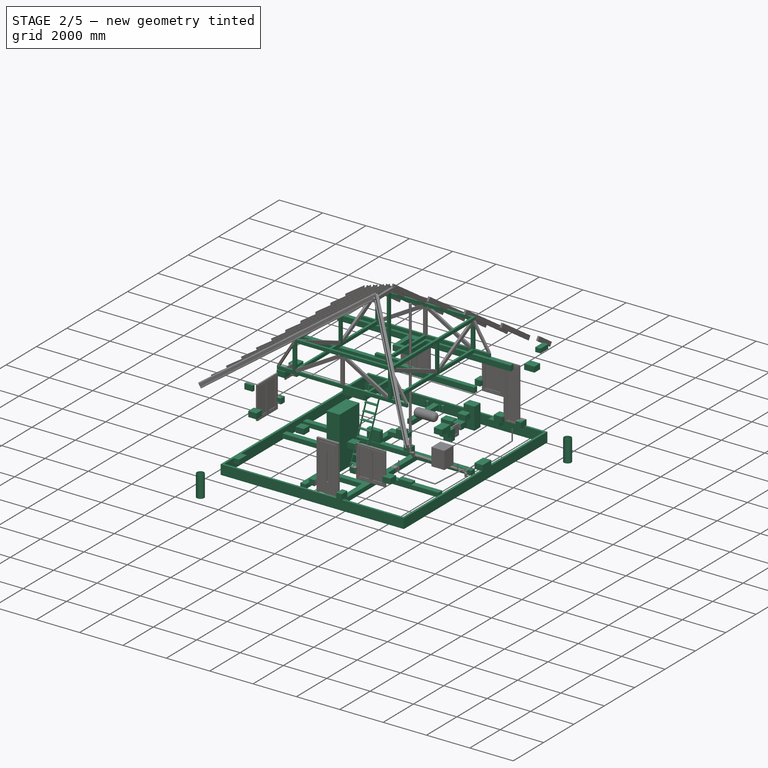
[diagram: stage 2 of 5 — iso view after this stage's code; geometry added in this stage tinted green]
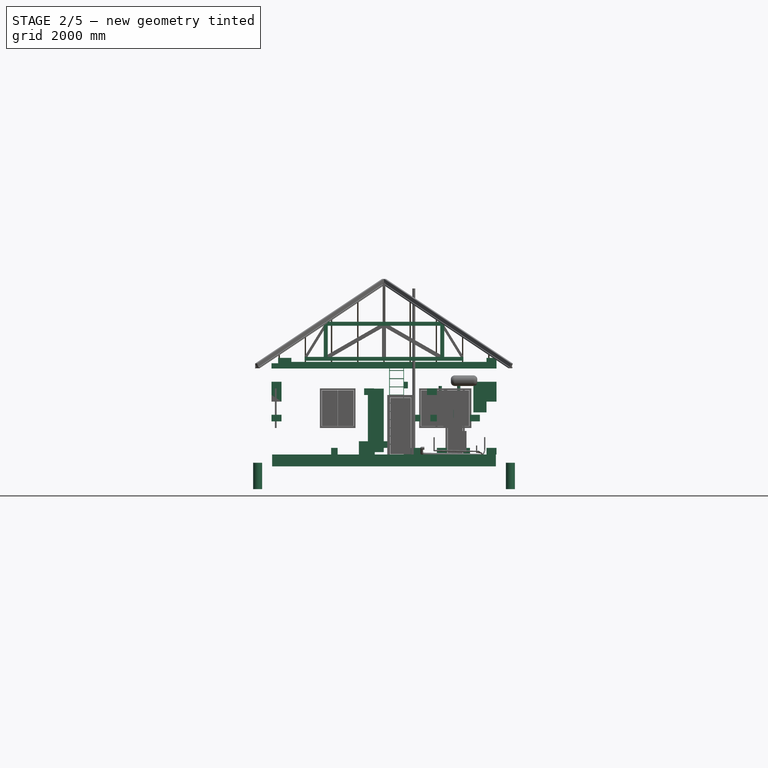
[diagram: stage 2 of 5 — front view after this stage's code; geometry added in this stage tinted green]
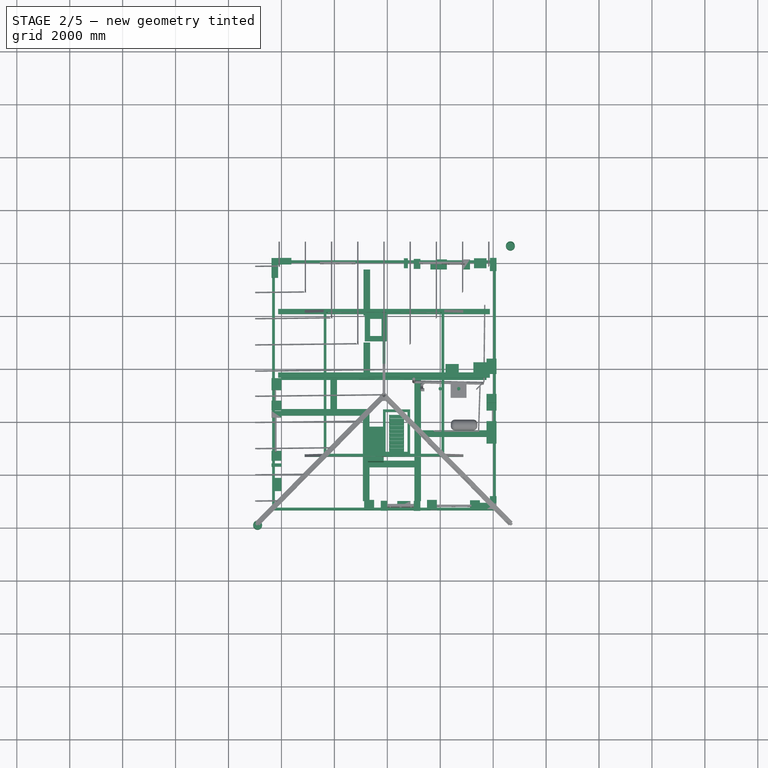
[diagram: stage 2 of 5 — top view after this stage's code; geometry added in this stage tinted green]
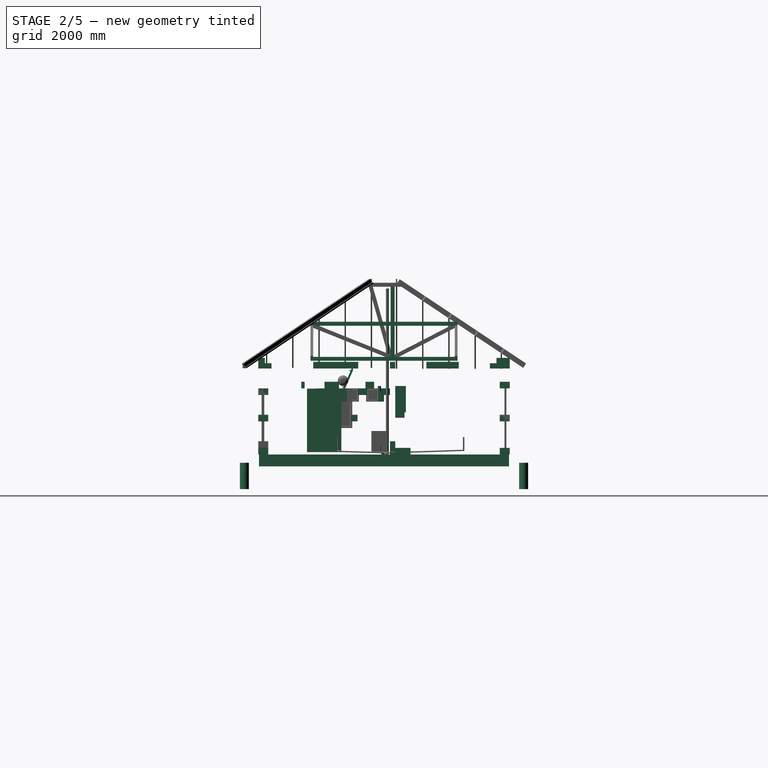
[diagram: stage 2 of 5 — right view after this stage's code; geometry added in this stage tinted green]
FEATURE [App::GeometryPython] BuildingPart046  label="крыльцо"  # Arch/BIM object (typed FeaturePython)
  Area = 0
  Group = -> [Structure243,Structure245,Structure244,Roof]
  Height = 0
  IfcRole = 0
  LevelOffset = 0
FEATURE [Part::Part2DObjectPython] Line560  label="вытяжная вентиляция 009"  # Draft 2D object (typed FeaturePython)
  ChamferSize = 0
  Closed = false
  End = (6700,3200,-200)
  FilletRadius = 0
  Length = 200
  MakeFace = true
  Placement = pos=(6700,3200,-150) rot=(0,0.707107,-0.707107;3.14159rad)
  Points = (2) [(0,250,0),(0,50,0)]
  Start = (6700,3200,-400)
  Subdivisions = 0
FEATURE [Part::FeaturePython] Pipe055  label="вытяжная вентиляция 008"  # Arch/BIM object (typed FeaturePython)
  Base = -> Line560
  Diameter = 125
  HorizontalArea = 0
  IfcRole = 98
  Length = 200
  MoveWithHost = false
  OffsetEnd = 0
  OffsetStart = 0
  PerimeterLength = 0
  Placement = pos=(0,0,2700) rot=(0,0,1;0rad)
  VerticalArea = 0
FEATURE [Part::Part2DObjectPython] Line561  label="вытяжная вентиляция 011"  # Draft 2D object (typed FeaturePython)
  ChamferSize = 0
  Closed = false
  End = (6000,3200,-200)
  FilletRadius = 0
  Length = 200
  MakeFace = true
  Placement = pos=(6000,3200,-150) rot=(0,0.707107,-0.707107;3.14159rad)
  Points = (2) [(0,250,0),(0,50,0)]
  Start = (6000,3200,-400)
  Subdivisions = 0
FEATURE [App::DocumentObjectGroup] Group066  label="Отопление_и_вентиляция"
  Group = -> [Rectangle518,Rectangle519,Rectangle520,Wire142,Line462,Line461,Wire143,Wire145,Line454,Wire144,Line448,Line451,Wire149,Wire150,Rectangle523,Wire158,Line555,Line553,Line445,Line470,Line554,Wire171,Wire170,Line560,Line561]
FEATURE [Part::FeaturePython] Pipe056  label="вытяжная вентиляция 010"  # Arch/BIM object (typed FeaturePython)
  Base = -> Line561
  Diameter = 125
  HorizontalArea = 0
  IfcRole = 98
  Length = 200
  MoveWithHost = false
  OffsetEnd = 0
  OffsetStart = 0
  PerimeterLength = 0
  Placement = pos=(0,0,2700) rot=(0,0,1;0rad)
  VerticalArea = 0
FEATURE [App::GeometryPython] BuildingPart055  label="Отопление и вентиляция"  # Arch/BIM object (typed FeaturePython)
  Area = 0
  Group = -> [Pipe032,Pipe038,Pipe039,Pipe037,Pipe034,Pipe036,Pipe033,Structure260,Structure261,Pipe040,Pipe035,Pipe041,Pipe042,Pipe043,Pipe044,Structure262,Pipe045,Pipe051,Pipe052,Pipe053,Pipe054,Pipe055,Pipe056]
  Height = 0
  IfcRole = 0
  LevelOffset = 0
FEATURE [Part::Part2DObjectPython] Rectangle599  label="шкаф гардероб #003"  # Draft 2D object (typed FeaturePython)
  ChamferSize = 0
  Columns = 1
  FilletRadius = 0
  Height = 1300
  Length = 600
  MakeFace = false
  Placement = pos=(3265,465.058,0) rot=(0,0,1;0rad)
  Rows = 1
FEATURE [Part::Box] Box3141  label="шкаф 130х60х240 003"
  AttacherType = Attacher::AttachEngine3D
  Height = 2400
  Length = 1300
  Placement = pos=(3865,465.058,0) rot=(0,0,1;1.5708rad)
  Width = 600
FEATURE [App::DocumentObjectGroup] Group069  label="тамбур и прихожая"
  Group = -> [Box3130,Box3141]
FEATURE [Part::Part2DObjectPython] Rectangle602  # Draft 2D object (typed FeaturePython)
  ChamferSize = 0
  Columns = 1
  FilletRadius = 0
  Height = 10600
  Length = 9600
  MakeFace = false
  Placement = pos=(-925,-1925,3300) rot=(0,0,1;0rad)
  Rows = 1
FEATURE [Part::Part2DObjectPython] Rectangle603  label="кух.зона003"  # Draft 2D object (typed FeaturePython)
  ChamferSize = 0
  Columns = 1
  FilletRadius = 0
  Height = 400
  Length = 500
  MakeFace = false
  Placement = pos=(7250,3800,0) rot=(0,0,1;0rad)
  Rows = 1
FEATURE [Part::FeaturePython] Structure286  label="кух.зона 007"  # Arch/BIM object (typed FeaturePython)
  Base = -> Rectangle603
  FaceMaker = 0
  Height = 1000
  HorizontalArea = 200000
  IfcRole = 0
  Length = 0
  MoveWithHost = false
  Nodes = (2) [(-4700,-6400,0),(-4700,-6400,800)]
  NodesOffset = 0
  Normal = (0,0,0)
  PerimeterLength = 1800
  Placement = pos=(0,0,1500) rot=(0,0,1;0rad)
  VerticalArea = 1.8e+06
  Width = 100
FEATURE [Part::Part2DObjectPython] Arc015  # Draft 2D object (typed FeaturePython)
  FirstAngle = 0
  LastAngle = 90
  MakeFace = false
  Placement = pos=(4000,450,0) rot=(0,0,1;0rad)
  Radius = 1000
FEATURE [Part::Part2DObjectPython] Circle011  # Draft 2D object (typed FeaturePython)
  FirstAngle = 0
  LastAngle = 0
  MakeFace = false
  Placement = pos=(-900,-1900,0) rot=(0,0,1;0rad)
  Radius = 170
FEATURE [Part::Part2DObjectPython] Circle012  # Draft 2D object (typed FeaturePython)
  FirstAngle = 0
  LastAngle = 0
  MakeFace = false
  Placement = pos=(-900,-1900,0) rot=(0,0,1;0rad)
  Radius = 150
FEATURE [Part::FeaturePython] Structure288  label="Structure023"  # Arch/BIM object (typed FeaturePython)
  Base = -> Circle012
  FaceMaker = 0
  Height = 1500
  HorizontalArea = 70685.8
  IfcRole = 0
  Length = 0
  MoveWithHost = false
  Nodes = (2) [(-900,-1900,0),(-900,-1900,-1500)]
  NodesOffset = 0
  Normal = (0,0,-1)
  PerimeterLength = 942.478
  VerticalArea = 1.41372e+06
  Width = 100
FEATURE [Part::FeaturePython] Structure287  label="Structure022"  # Arch/BIM object (typed FeaturePython)
  Base = -> Circle011
  FaceMaker = 0
  Height = 1000
  HorizontalArea = 20106.2
  IfcRole = 0
  Length = 0
  MoveWithHost = false
  Nodes = (2) [(-900,-1900,0),(-900,-1900,-1000)]
  NodesOffset = 0
  Normal = (0,0,-1)
  PerimeterLength = 1068.14
  Placement = pos=(0,0,-400) rot=(0,0,1;0rad)
  Subtractions = -> [Structure288]
  VerticalArea = 2.01062e+06
  Width = 100
FEATURE [Part::FeaturePython] Structure289  label="Structure024"  # Arch/BIM object (typed FeaturePython)
  Base = -> Circle011
  FaceMaker = 0
  Height = 30
  HorizontalArea = 90792
  IfcRole = 0
  Length = 0
  MoveWithHost = false
  Nodes = (2) [(-900,-1900,0),(-900,-1900,30)]
  NodesOffset = 0
  Normal = (0,0,0)
  PerimeterLength = 1068.14
  Placement = pos=(0,0,-1400) rot=(0,0,1;0rad)
  VerticalArea = 32044.2
  Width = 100
FEATURE [App::GeometryPython] BuildingPart066  label="дренажный колодец D340 h1000 003"  # Arch/BIM object (typed FeaturePython)
  Area = 0
  Group = -> [Structure287,Structure289]
  Height = 0
  IfcRole = 0
  LevelOffset = 0
  Placement = pos=(0,0,1) rot=(0,0,1;0rad)
FEATURE [Part::Part2DObjectPython] Circle013  # Draft 2D object (typed FeaturePython)
  FirstAngle = 0
  LastAngle = 0
  MakeFace = false
  Placement = pos=(8650,8650,0) rot=(0,0,1;0rad)
  Radius = 170
FEATURE [Part::Part2DObjectPython] Circle014  # Draft 2D object (typed FeaturePython)
  FirstAngle = 0
  LastAngle = 0
  MakeFace = false
  Placement = pos=(8650,8650,0) rot=(0,0,1;0rad)
  Radius = 150
FEATURE [Part::FeaturePython] Structure291  label="Structure026"  # Arch/BIM object (typed FeaturePython)
  Base = -> Circle014
  FaceMaker = 0
  Height = 1500
  HorizontalArea = 70685.8
  IfcRole = 0
  Length = 0
  MoveWithHost = false
  Nodes = (2) [(8650,8650,0),(8650,8650,-1500)]
  NodesOffset = 0
  Normal = (0,0,-1)
  PerimeterLength = 942.478
  VerticalArea = 1.41372e+06
  Width = 100
FEATURE [Part::FeaturePython] Structure290  label="Structure025"  # Arch/BIM object (typed FeaturePython)
  Base = -> Circle013
  FaceMaker = 0
  Height = 1000
  HorizontalArea = 20106.2
  IfcRole = 0
  Length = 0
  MoveWithHost = false
  Nodes = (2) [(8650,8650,0),(8650,8650,-1000)]
  NodesOffset = 0
  Normal = (0,0,-1)
  PerimeterLength = 1068.14
  Placement = pos=(0,0,-400) rot=(0,0,1;0rad)
  Subtractions = -> [Structure291]
  VerticalArea = 2.01062e+06
  Width = 100
FEATURE [Part::FeaturePython] Structure292  label="Structure027"  # Arch/BIM object (typed FeaturePython)
  Base = -> Circle013
  FaceMaker = 0
  Height = 30
  HorizontalArea = 90792
  IfcRole = 0
  Length = 0
  MoveWithHost = false
  Nodes = (2) [(8650,8650,0),(8650,8650,30)]
  NodesOffset = 0
  Normal = (0,0,0)
  PerimeterLength = 1068.14
  Placement = pos=(0,0,-1400) rot=(0,0,1;0rad)
  VerticalArea = 32044.2
  Width = 100
FEATURE [App::GeometryPython] BuildingPart067  label="дренажный колодец D340 h1000 004"  # Arch/BIM object (typed FeaturePython)
  Area = 0
  Group = -> [Structure290,Structure292]
  Height = 0
  IfcRole = 0
  LevelOffset = 0
  Placement = pos=(0,0,1) rot=(0,0,1;0rad)
FEATURE [App::GeometryPython] BuildingPart058  label="Дренаж"  # Arch/BIM object (typed FeaturePython)
  Area = 0
  Group = -> [BuildingPart057,BuildingPart059,Pipe046,Pipe047,BuildingPart066,BuildingPart067]
  Height = 0
  IfcRole = 0
  LevelOffset = 0
FEATURE [App::GeometryPython] BuildingPart028  label="Фундамент и основание"  # Arch/BIM object (typed FeaturePython)
  Area = 0
  Group = -> [Structure130,Structure159,Structure160,Structure237,Structure239,Wall068,Structure242,Wall069,BuildingPart058]
  Height = 0
  IfcRole = 0
  LevelOffset = 0
FEATURE [Part::Box] Box3142  label="микроволновка"
  AttacherType = Attacher::AttachEngine3D
  Height = 300
  Length = 500
  Placement = pos=(6200,3800,1300) rot=(0,0,1;0rad)
  Width = 350
FEATURE [Part::FeaturePython] Wall077  label="Утепление цоколя 100мм ЭППС"  # Arch/BIM object (typed FeaturePython)
  Align = 0
  Base = -> Rectangle445
  BlockHeight = 0
  BlockLength = 0
  CountBroken = 0
  CountEntire = 0
  Face = 0
  Height = 450
  HorizontalArea = 3540000
  IfcRole = 156
  Joint = 0
  Length = 35000
  MakeBlocks = false
  MoveWithHost = false
  Normal = (0,0,0)
  OffsetFirst = 0
  OffsetSecond = 0
  PerimeterLength = 35800
  Placement = pos=(0,0,-540) rot=(0,0,1;0rad)
  VerticalArea = 31860000
  Width = 100
FEATURE [Part::Part2DObjectPython] Rectangle609  label="основание под перегородки ГБ 250 h0.2 001"  # Draft 2D object (typed FeaturePython)
  ChamferSize = 0
  Columns = 1
  FilletRadius = 0
  Height = 1740
  Length = 250
  MakeFace = false
  Placement = pos=(3100,6010,0) rot=(0,0,1;0rad)
  Rows = 1
FEATURE [Part::Part2DObjectPython] Rectangle610  label="основание под перегородки ГБ 250 h0.2 059"  # Draft 2D object (typed FeaturePython)
  ChamferSize = 0
  Columns = 1
  FilletRadius = 0
  Height = 7750
  Length = 250
  MakeFace = false
  Placement = pos=(7750,3575,0) rot=(0,0,1;1.5708rad)
  Rows = 1
FEATURE [Part::Part2DObjectPython] Rectangle612  label="основание под перегородки ГБ 250 h0.2 062"  # Draft 2D object (typed FeaturePython)
  ChamferSize = 0
  Columns = 1
  FilletRadius = 0
  Height = 1165
  Length = 250
  MakeFace = false
  Placement = pos=(3100,3825,0) rot=(0,0,1;0rad)
  Rows = 1
FEATURE [Part::Part2DObjectPython] Rectangle613  label="основание под перегородки ГБ 250 h0.2 060"  # Draft 2D object (typed FeaturePython)
  ChamferSize = 0
  Columns = 1
  FilletRadius = 0
  Height = 3475
  Length = 250
  MakeFace = false
  Placement = pos=(3075,-1000,0) rot=(0,0,1;0rad)
  Rows = 1
FEATURE [Part::Part2DObjectPython] Rectangle614  label="основание под перегородки ГБ 250 h0.2 064"  # Draft 2D object (typed FeaturePython)
  ChamferSize = 0
  Columns = 1
  FilletRadius = 0
  Height = 4575
  Length = 250
  MakeFace = false
  Placement = pos=(5025,-1000,0) rot=(0,0,1;0rad)
  Rows = 1
FEATURE [Part::Part2DObjectPython] Rectangle615  label="основание под перегородки ГБ 250 h0.2 061"  # Draft 2D object (typed FeaturePython)
  ChamferSize = 0
  Columns = 1
  FilletRadius = 0
  Height = 1100
  Length = 250
  MakeFace = false
  Placement = pos=(1850,2475,0) rot=(0,0,1;0rad)
  Rows = 1
FEATURE [Part::Part2DObjectPython] Rectangle616  label="основание под перегородки ГБ 250 h0.2 058"  # Draft 2D object (typed FeaturePython)
  ChamferSize = 0
  Columns = 1
  FilletRadius = 0
  Height = 2475
  Length = 250
  MakeFace = false
  Placement = pos=(7750,1425,-90) rot=(0,0,1;1.5708rad)
  Rows = 1
FEATURE [Part::Part2DObjectPython] Rectangle617  label="основание под перегородки ГБ 250 h0.2 057"  # Draft 2D object (typed FeaturePython)
  ChamferSize = 0
  Columns = 1
  FilletRadius = 0
  Height = 3075
  Length = 250
  MakeFace = false
  Placement = pos=(3075,2225,0) rot=(0,0,1;1.5708rad)
  Rows = 1
FEATURE [Part::Part2DObjectPython] Rectangle618  label="основание под перегородки ГБ 250 h0.2 063"  # Draft 2D object (typed FeaturePython)
  ChamferSize = 0
  Columns = 1
  FilletRadius = 0
  Height = 1700
  Length = 250
  MakeFace = false
  Placement = pos=(5025,275,0) rot=(0,0,1;1.5708rad)
  Rows = 1
FEATURE [App::DocumentObjectGroup] Group056  label="основание ГБ250мм"
  Group = -> [Rectangle444,Rectangle445,Rectangle446,Rectangle609,Rectangle610,Rectangle612,Rectangle613,Rectangle614,Rectangle615,Rectangle616,Rectangle617,Rectangle618]
FEATURE [Part::FeaturePython] Structure294  label="основание под перегородки h0.2 001"  # Arch/BIM object (typed FeaturePython)
  Base = -> Rectangle609
  FaceMaker = 0
  Height = 200
  HorizontalArea = 435000
  IfcRole = 0
  Length = 0
  MoveWithHost = false
  Nodes = (2) [(3225,6880,0),(3225,6880,-200)]
  NodesOffset = 0
  Normal = (0,0,-1)
  PerimeterLength = 3980
  Placement = pos=(0,0,-90) rot=(0,0,1;0rad)
  VerticalArea = 796000
  Width = 100
FEATURE [Part::FeaturePython] Structure295  label="основание под перегородки h0.2 031"  # Arch/BIM object (typed FeaturePython)
  Base = -> Rectangle617
  FaceMaker = 0
  Height = 200
  HorizontalArea = 768750
  IfcRole = 0
  Length = 0
  MoveWithHost = false
  Nodes = (2) [(1537.5,2350,0),(1537.5,2350,-200)]
  NodesOffset = 0
  Normal = (0,0,-1)
  PerimeterLength = 6650
  Placement = pos=(0,0,-90) rot=(0,0,1;0rad)
  VerticalArea = 1.33e+06
  Width = 100
FEATURE [Part::FeaturePython] Structure296  label="основание под перегородки h0.2 025"  # Arch/BIM object (typed FeaturePython)
  Base = -> Rectangle616
  FaceMaker = 0
  Height = 200
  HorizontalArea = 618750
  IfcRole = 0
  Length = 0
  MoveWithHost = false
  Nodes = (2) [(6512.5,1550,0),(6512.5,1550,-200)]
  NodesOffset = 0
  Normal = (0,0,-1)
  PerimeterLength = 5450
  Placement = pos=(0,0,-90) rot=(0,0,1;0rad)
  VerticalArea = 1090000
  Width = 100
FEATURE [Part::FeaturePython] Structure297  label="основание под перегородки h0.2 026"  # Arch/BIM object (typed FeaturePython)
  Base = -> Rectangle610
  FaceMaker = 0
  Height = 200
  HorizontalArea = 1937500
  IfcRole = 0
  Length = 0
  MoveWithHost = false
  Nodes = (2) [(3875,3700,0),(3875,3700,-200)]
  NodesOffset = 0
  Normal = (0,0,-1)
  PerimeterLength = 16000
  Placement = pos=(0,0,-90) rot=(0,0,1;0rad)
  VerticalArea = 3200000
  Width = 100
FEATURE [Part::FeaturePython] Structure298  label="основание под перегородки h0.2 032"  # Arch/BIM object (typed FeaturePython)
  Base = -> Rectangle613
  FaceMaker = 0
  Height = 200
  HorizontalArea = 868750
  IfcRole = 0
  Length = 0
  MoveWithHost = false
  Nodes = (2) [(3200,737.5,0),(3200,737.5,-200)]
  NodesOffset = 0
  Normal = (0,0,-1)
  PerimeterLength = 7450
  Placement = pos=(0,0,-90) rot=(0,0,1;0rad)
  VerticalArea = 1490000
  Width = 100
FEATURE [Part::FeaturePython] Structure299  label="основание под перегородки h0.2 030"  # Arch/BIM object (typed FeaturePython)
  Base = -> Rectangle615
  FaceMaker = 0
  Height = 200
  HorizontalArea = 275000
  IfcRole = 0
  Length = 0
  MoveWithHost = false
  Nodes = (2) [(1975,3025,0),(1975,3025,-200)]
  NodesOffset = 0
  Normal = (0,0,-1)
  PerimeterLength = 2700
  Placement = pos=(0,0,-90) rot=(0,0,1;0rad)
  VerticalArea = 540000
  Width = 100
FEATURE [Part::FeaturePython] Structure300  label="основание под перегородки h0.2 027"  # Arch/BIM object (typed FeaturePython)
  Base = -> Rectangle612
  FaceMaker = 0
  Height = 200
  HorizontalArea = 291250
  IfcRole = 0
  Length = 0
  MoveWithHost = false
  Nodes = (2) [(3225,4407.5,0),(3225,4407.5,-200)]
  NodesOffset = 0
  Normal = (0,0,-1)
  PerimeterLength = 2830
  Placement = pos=(0,0,-90) rot=(0,0,1;0rad)
  VerticalArea = 566000
  Width = 100
FEATURE [Part::FeaturePython] Structure301  label="основание под перегородки h0.2 029"  # Arch/BIM object (typed FeaturePython)
  Base = -> Rectangle618
  FaceMaker = 0
  Height = 200
  HorizontalArea = 425000
  IfcRole = 0
  Length = 0
  MoveWithHost = false
  Nodes = (2) [(4175,400,0),(4175,400,-200)]
  NodesOffset = 0
  Normal = (0,0,-1)
  PerimeterLength = 3900
  Placement = pos=(0,0,-90) rot=(0,0,1;0rad)
  VerticalArea = 780000
  Width = 100
FEATURE [Part::FeaturePython] Structure302  label="основание под перегородки h0.2 028"  # Arch/BIM object (typed FeaturePython)
  Base = -> Rectangle614
  FaceMaker = 0
  Height = 200
  HorizontalArea = 1.14375e+06
  IfcRole = 0
  Length = 0
  MoveWithHost = false
  Nodes = (2) [(5150,1287.5,0),(5150,1287.5,-200)]
  NodesOffset = 0
  Normal = (0,0,-1)
  PerimeterLength = 9650
  Placement = pos=(0,0,-90) rot=(0,0,1;0rad)
  VerticalArea = 1930000
  Width = 100
FEATURE [App::GeometryPython] BuildingPart032  label="Цоколь и основание под перегородки"  # Arch/BIM object (typed FeaturePython)
  Area = 0
  Group = -> [Wall067,Wall077,Structure294,Structure295,Structure296,Structure297,Structure298,Structure299,Structure300,Structure301,Structure302]
  Height = 0
  IfcRole = 0
  LevelOffset = 0
FEATURE [App::GeometryPython] BuildingPart044  label="1й Этаж"  # Arch/BIM object (typed FeaturePython)
  Area = 0
  Group = -> [BuildingPart034,BuildingPart033,BuildingPart032]
  Height = 0
  IfcRole = 15
  LevelOffset = 0
FEATURE [Part::FeaturePython] Wall078  label="теплоизол. трубы ГБ 200мм h0.25"  # Arch/BIM object (typed FeaturePython)
  Align = 0
  Base = -> Rectangle432
  BlockHeight = 0
  BlockLength = 0
  CountBroken = 0
  CountEntire = 0
  Face = 0
  Height = 250
  HorizontalArea = 592000
  IfcRole = 156
  Joint = 0
  Length = 3760
  MakeBlocks = false
  MoveWithHost = false
  Normal = (0,0,-1)
  OffsetFirst = 0
  OffsetSecond = 0
  PerimeterLength = 3760
  VerticalArea = 1480000
  Width = 200
FEATURE [Part::FeaturePython] Wall079  label="обрамление проёма ГБ 100мм h0.025"  # Arch/BIM object (typed FeaturePython)
  Align = 0
  Base = -> Rectangle416
  BlockHeight = 0
  BlockLength = 0
  CountBroken = 0
  CountEntire = 0
  Face = 0
  Height = 250
  HorizontalArea = 505000
  IfcRole = 156
  Joint = 0
  Length = 5450
  MakeBlocks = false
  MoveWithHost = false
  Normal = (0,0,-1)
  OffsetFirst = 0
  OffsetSecond = 0
  PerimeterLength = 5450
  VerticalArea = 2525000
  Width = 100
FEATURE [Part::Part2DObjectPython] Rectangle593  label="габарит унитаза"  # Draft 2D object (typed FeaturePython)
  ChamferSize = 0
  Columns = 1
  FilletRadius = 0
  Height = 370
  Length = 640
  MakeFace = false
  Placement = pos=(5250,3015,0) rot=(0,0,1;0rad)
  Rows = 1
FEATURE [Part::Part2DObjectPython] Rectangle  # Draft 2D object (typed FeaturePython)
  ChamferSize = 0
  Columns = 1
  FilletRadius = 0
  Height = 650
  Length = 650
  MakeFace = true
  Placement = pos=(8000,8000,0) rot=(0,0,1;0rad)
  Rows = 1
FEATURE [Part::Part2DObjectPython] Rectangle619  label="Rectangle603"  # Draft 2D object (typed FeaturePython)
  ChamferSize = 0
  Columns = 1
  FilletRadius = 0
  Height = 650
  Length = 650
  MakeFace = true
  Placement = pos=(-900,-1900,0) rot=(0,0,1;0rad)
  Rows = 1
FEATURE [Part::Part2DObjectPython] Rectangle620  label="Rectangle604"  # Draft 2D object (typed FeaturePython)
  ChamferSize = 0
  Columns = 1
  FilletRadius = 0
  Height = 650
  Length = 650
  MakeFace = true
  Placement = pos=(-900,8000,0) rot=(0,0,1;0rad)
  Rows = 1
FEATURE [Part::Part2DObjectPython] Rectangle621  label="Rectangle605"  # Draft 2D object (typed FeaturePython)
  ChamferSize = 0
  Columns = 1
  FilletRadius = 0
  Height = 650
  Length = 650
  MakeFace = true
  Placement = pos=(8000,-1900,0) rot=(0,0,1;0rad)
  Rows = 1
FEATURE [Part::Part2DObjectPython] Line  label="Line560"  # Draft 2D object (typed FeaturePython)
  ChamferSize = 0
  Closed = false
  End = (8650,8650,110)
  FilletRadius = 0
  Length = 110
  MakeFace = false
  Placement = pos=(8650,8650,0) rot=(0,0,1;0rad)
  Points = (2) [(0,0,0),(0,0,110)]
  Start = (8650,8650,0)
  Subdivisions = 0
FEATURE [Part::Part2DObjectPython] Line563  label="Line562"  # Draft 2D object (typed FeaturePython)
  ChamferSize = 0
  Closed = false
  End = (-900,-1900,110)
  FilletRadius = 0
  Length = 110
  MakeFace = false
  Placement = pos=(-900,-1900,0) rot=(0,0,1;0rad)
  Points = (2) [(0,0,0),(0,0,110)]
  Start = (-900,-1900,0)
  Subdivisions = 0
FEATURE [Part::Part2DObjectPython] Arc016  # Draft 2D object (typed FeaturePython)
  FirstAngle = 90
  LastAngle = 171.13
  MakeFace = true
  Placement = pos=(5100,1850,0) rot=(0,0,1;0rad)
  Radius = 700
FEATURE [Part::Part2DObjectPython] Line564  # Draft 2D object (typed FeaturePython)
  ChamferSize = 0
  Closed = false
  End = (4408.37,1957.94,0)
  FilletRadius = 0
  Length = 700
  MakeFace = true
  Placement = pos=(5100,1850,0) rot=(0,0,1;0rad)
  Points = (2) [(0,0,0),(-691.628,107.937,0)]
  Start = (5100,1850,0)
  Subdivisions = 0
FEATURE [App::DocumentObjectGroup] Group037  label="стены и перегородки"
  Group = -> [Wire060,Wire061,Wire062,Wire063,Wire064,Wire066,Rectangle377,Rectangle372,Rectangle367,Rectangle365,Rectangle364,Rectangle362,Rectangle363,Rectangle375,Rectangle376,Rectangle374,Rectangle382,Rectangle395,Wire100,Rectangle541,Line518,Line517,Arc003,Arc006,Wire159,Rectangle563,Rectangle381,Arc,Line540,Arc007,Arc008,Line539,Line538,Rectangle586,Rectangle585,Line549,Line552,Arc013,Rectangle592,+12 more]
FEATURE [Part::Part2DObjectPython] Line568  label="лестница Fakro LWT Thermo 60x130 line"  # Draft 2D object (typed FeaturePython)
  ChamferSize = 0
  Closed = false
  End = (4070,2200,3410)
  FilletRadius = 0
  Length = 3667.51
  MakeFace = false
  Placement = pos=(4070,600,0) rot=(0,0,1;0rad)
  Points = (2) [(0,250,0),(0,1600,3410)]
  Start = (4070,850,0)
  Subdivisions = 0
FEATURE [Part::FeaturePython] Stairs  label="лестница Fakro LWT Thermo 60x130x300"  # Arch/BIM object (typed FeaturePython)
  AbsTop = (4070,850,3410)
  Align = 0
  Base = -> Line568
  BlondelRatio = 0
  Flight = 0
  Height = 3000
  HorizontalArea = 0
  IfcRole = 124
  LandingDepth = 0
  Landings = 0
  Length = 4500
  MoveWithHost = false
  Nosing = 0
  NumberOfSteps = 11
  OutlineLeft = (2) [(4071,850,281),(4071,2200,3381)]
  OutlineLeftAll = (2) [(4071,850,281),(4071,2200,3381)]
  OutlineRight = (2) [(4629,2200,3381),(4629,850,281)]
  OutlineRightAll = (2) [(4629,2200,3381),(4629,850,281)]
  PerimeterLength = 0
  RailingHeightLeft = 1
  RailingHeightRight = 1
  RailingOffsetLeft = 1
  RailingOffsetRight = 1
  RiserHeight = 310
  RiserHeightEnforce = 0
  StringerOverlap = 200
  StringerWidth = 25
  Structure = 3
  StructureOffset = 0
  StructureThickness = 75
  TreadDepth = 366.751
  TreadDepthEnforce = 0
  TreadThickness = 30
  VerticalArea = 0
  Width = 560
  Winders = 0
FEATURE [Part::Part2DObjectPython] Rectangle624  label="усиление под стропильную систему ГБ 200мм h0.025 002"  # Draft 2D object (typed FeaturePython)
  ChamferSize = 0
  Columns = 1
  FilletRadius = 0
  Height = 200
  Length = 8000
  MakeFace = false
  Placement = pos=(-125,6000,3410) rot=(0,0,1;0rad)
  Rows = 1
FEATURE [Part::FeaturePython] Structure303  label="усиление под стропильную систему ГБ 200мм h0.025 001"  # Arch/BIM object (typed FeaturePython)
  Base = -> Rectangle624
  FaceMaker = 0
  Height = 250
  HorizontalArea = 1.6e+06
  IfcRole = 0
  Length = 0
  MoveWithHost = false
  Nodes = (2) [(3875,6100,3410),(3875,6100,3160)]
  NodesOffset = 0
  Normal = (0,0,-1)
  PerimeterLength = 16400
  VerticalArea = 4.1e+06
  Width = 100
FEATURE [Part::Part2DObjectPython] Rectangle625  label="усиление под стропильную систему ГБ 200мм h0.025 006"  # Draft 2D object (typed FeaturePython)
  ChamferSize = 0
  Columns = 1
  FilletRadius = 0
  Height = 200
  Length = 8000
  MakeFace = false
  Placement = pos=(-125,3600,3410) rot=(0,0,1;0rad)
  Rows = 1
FEATURE [Part::FeaturePython] Structure304  label="усиление под стропильную систему ГБ 200мм h0.025 005"  # Arch/BIM object (typed FeaturePython)
  Base = -> Rectangle625
  FaceMaker = 0
  Height = 250
  HorizontalArea = 1.6e+06
  IfcRole = 0
  Length = 0
  MoveWithHost = false
  Nodes = (2) [(3875,5925,3410),(3875,5925,3160)]
  NodesOffset = 0
  Normal = (0,0,-1)
  PerimeterLength = 16400
  VerticalArea = 4.1e+06
  Width = 100
FEATURE [App::GeometryPython] BuildingPart035  label="Перекрытие_001"  # Arch/BIM object (typed FeaturePython)
  Area = 0
  Group = -> [Array012,Array013,Wall056,Structure176,Wall058,Structure197,Structure198,Structure203,Wall072,Wall078,Wall079,Structure303,Structure304]
  Height = 0
  IfcRole = 0
  LevelOffset = 0
FEATURE [App::GeometryPython] BuildingPart042  label="Чердак"  # Arch/BIM object (typed FeaturePython)
  Area = 0
  Group = -> [BuildingPart035,Stairs]
  Height = 0
  IfcRole = 15
  LevelOffset = 0
FEATURE [Part::Part2DObjectPython] Rectangle626  # Draft 2D object (typed FeaturePython)
  ChamferSize = 0
  Columns = 1
  FilletRadius = 0
  Height = 250
  Length = 250
  MakeFace = false
  Placement = pos=(1175,5825,0) rot=(0,0,1;0rad)
  Rows = 1
FEATURE [Part::Part2DObjectPython] Rectangle627  # Draft 2D object (typed FeaturePython)
  ChamferSize = 0
  Columns = 1
  FilletRadius = 0
  Height = 250
  Length = 250
  MakeFace = false
  Placement = pos=(6325,675,0) rot=(0,0,1;0rad)
  Rows = 1
FEATURE [Part::Part2DObjectPython] Rectangle628  # Draft 2D object (typed FeaturePython)
  ChamferSize = 0
  Columns = 1
  FilletRadius = 0
  Height = 5400
  Length = 5400
  MakeFace = false
  Placement = pos=(1175,675,0) rot=(0,0,1;0rad)
  Rows = 1
FEATURE [Part::Part2DObjectPython] Line569  # Draft 2D object (typed FeaturePython)
  ChamferSize = 0
  Closed = false
  End = (3500,5000,0)
  FilletRadius = 0
  Length = 500
  MakeFace = false
  Placement = pos=(3000,5000,0) rot=(0,0,1;0rad)
  Points = (2) [(0,0,0),(500,0,0)]
  Start = (3000,5000,0)
  Subdivisions = 0
FEATURE [Part::Part2DObjectPython] Line570  # Draft 2D object (typed FeaturePython)
  ChamferSize = 0
  Closed = false
  End = (3000,5000,0)
  FilletRadius = 0
  Length = 4069.71
  MakeFace = false
  Placement = pos=(-1.33e-13,7750,0) rot=(0,0,1;0rad)
  Points = (2) [(0,0,0),(3000,-2750,0)]
  Start = (-1.33e-13,7750,0)
  Subdivisions = 0
FEATURE [Part::Part2DObjectPython] Rectangle629  # Draft 2D object (typed FeaturePython)
  ChamferSize = 0
  Columns = 1
  FilletRadius = 0
  Height = 2750
  Length = 2750
  MakeFace = false
  Placement = pos=(-1.33e-13,5000,0) rot=(0,0,1;0rad)
  Rows = 1
FEATURE [Part::Part2DObjectPython] Rectangle630  # Draft 2D object (typed FeaturePython)
  ChamferSize = 0
  Columns = 1
  FilletRadius = 0
  Height = 2750
  Length = 2750
  MakeFace = false
  Placement = pos=(5000,5000,0) rot=(0,0,1;0rad)
  Rows = 1
FEATURE [Part::Part2DObjectPython] Rectangle631  # Draft 2D object (typed FeaturePython)
  ChamferSize = 0
  Columns = 1
  FilletRadius = 0
  Height = 2750
  Length = 2750
  MakeFace = false
  Placement = pos=(0,-1000,0) rot=(0,0,1;0rad)
  Rows = 1
FEATURE [Part::Part2DObjectPython] Rectangle636  # Draft 2D object (typed FeaturePython)
  ChamferSize = 0
  Columns = 1
  FilletRadius = 0
  Height = 5200
  Length = 4000
  MakeFace = false
  Placement = pos=(1875,775,0) rot=(0,0,1;0rad)
  Rows = 1
FEATURE [Part::Part2DObjectPython] ShapeString008  label="надпись 009"  # Draft 2D object (typed FeaturePython)
  FontFile = <path>
  Placement = pos=(2947.5,2614.79,0) rot=(0,0,1;0rad)
  Size = 100
  String = прихожая и коридор 7.3 м2
  Tracking = 0
FEATURE [App::DocumentObjectGroup] Group036  label="План_помещений"
  Group = -> [Rectangle565,Rectangle575,ShapeString001,Rectangle576,Rectangle577,Rectangle578,Rectangle580,Rectangle581,Rectangle582,Rectangle583,Wire162,ShapeString004,ShapeString005,ShapeString,ShapeString002,ShapeString003,ShapeString006,ShapeString007,ShapeString008]
FEATURE [Part::Part2DObjectPython] Rectangle637  # Draft 2D object (typed FeaturePython)
  ChamferSize = 0
  Columns = 1
  FilletRadius = 0
  Height = 3150
  Length = 1850
  MakeFace = true
  Placement = pos=(3250,450,0) rot=(0,0,1;0rad)
  Rows = 1
FEATURE [Part::Part2DObjectPython] Rectangle638  # Draft 2D object (typed FeaturePython)
  ChamferSize = 0
  Columns = 1
  FilletRadius = 0
  Height = 1200
  Length = 1225
  MakeFace = true
  Placement = pos=(2025,2400,0) rot=(0,0,1;0rad)
  Rows = 1
  Support = -> [Rectangle637]
FEATURE [Part::Part2DObjectPython] Rectangle639  # Draft 2D object (typed FeaturePython)
  ChamferSize = 0
  Columns = 1
  FilletRadius = 0
  Height = 11650
  Length = 10650
  MakeFace = false
  Placement = pos=(-1450,-2450,0) rot=(0,0,1;0rad)
  Rows = 1
FEATURE [Part::Part2DObjectPython] Rectangle640  # Draft 2D object (typed FeaturePython)
  ChamferSize = 0
  Columns = 1
  FilletRadius = 0
  Height = 1600
  Length = 5400
  MakeFace = true
  Placement = pos=(1200,-4050,0) rot=(0,0,1;0rad)
  Rows = 1
FEATURE [Part::Part2DObjectPython] Line571  # Draft 2D object (typed FeaturePython)
  ChamferSize = 0
  Closed = false
  End = (8000,-1250,0)
  FilletRadius = 0
  Length = 12394.6
  MakeFace = true
  Placement = pos=(-250,8000,0) rot=(0,0,1;0rad)
  Points = (2) [(0,0,0),(8250,-9250,0)]
  Start = (-250,8000,0)
  Subdivisions = 0
FEATURE [Part::Part2DObjectPython] Line572  # Draft 2D object (typed FeaturePython)
  ChamferSize = 0
  Closed = false
  End = (8000,8000,0)
  FilletRadius = 0
  Length = 12394.6
  MakeFace = true
  Placement = pos=(-250,-1250,0) rot=(0,0,1;0rad)
  Points = (2) [(0,0,0),(8250,9250,0)]
  Start = (-250,-1250,0)
  Subdivisions = 0
FEATURE [Part::Part2DObjectPython] Line573  # Draft 2D object (typed FeaturePython)
  ChamferSize = 0
  Closed = false
  End = (3875,3700,0)
  FilletRadius = 0
  Length = 325
  MakeFace = true
  Placement = pos=(3875,3375,0) rot=(0,0,1;0rad)
  Points = (2) [(0,0,0),(0,325,0)]
  Start = (3875,3375,0)
  Subdivisions = 0
FEATURE [Part::Part2DObjectPython] Line574  # Draft 2D object (typed FeaturePython)
  ChamferSize = 0
  Closed = false
  End = (1812.5,3700,0)
  FilletRadius = 0
  Length = 4125
  MakeFace = true
  Placement = pos=(5937.5,3700,0) rot=(0,0,1;0rad)
  Points = (2) [(0,0,0),(-4125,0,0)]
  Start = (5937.5,3700,0)
  Subdivisions = 0
FEATURE [Part::Part2DObjectPython] Line575  # Draft 2D object (typed FeaturePython)
  ChamferSize = 0
  Closed = false
  End = (3875,3375,0)
  FilletRadius = 0
  Length = 325
  MakeFace = true
  Placement = pos=(3875,3050,0) rot=(0,0,1;0rad)
  Points = (2) [(0,0,0),(0,325,0)]
  Start = (3875,3050,0)
  Subdivisions = 0
FEATURE [Part::Part2DObjectPython] Rectangle643  label="брус коньковый001"  # Draft 2D object (typed FeaturePython)
  ChamferSize = 0
  Columns = 1
  FilletRadius = 0
  Height = 1400
  Length = 100
  MakeFace = true
  Placement = pos=(3825,2675,0) rot=(0,0,1;0rad)
  Rows = 1
FEATURE [Part::Part2DObjectPython] Rectangle644  label="лежень001"  # Draft 2D object (typed FeaturePython)
  ChamferSize = 0
  Columns = 1
  FilletRadius = 0
  Height = 2600
  Length = 100
  MakeFace = true
  Placement = pos=(3825,3550,0) rot=(0,0,1;0rad)
  Rows = 1
FEATURE [Part::Part2DObjectPython] Rectangle645  label="лежень002"  # Draft 2D object (typed FeaturePython)
  ChamferSize = 0
  Columns = 1
  FilletRadius = 0
  Height = 1200
  Length = 150
  MakeFace = true
  Placement = pos=(4475,3625,0) rot=(0,0,1;1.5708rad)
  Rows = 1
FEATURE [Part::Part2DObjectPython] Rectangle646  label="лежень003"  # Draft 2D object (typed FeaturePython)
  ChamferSize = 0
  Columns = 1
  FilletRadius = 0
  Height = 6000
  Length = 100
  MakeFace = true
  Placement = pos=(6875,6050,0) rot=(0,0,1;1.5708rad)
  Rows = 1
FEATURE [Part::Part2DObjectPython] Line576  # Draft 2D object (typed FeaturePython)
  ChamferSize = 0
  Closed = false
  End = (3875,6100,0)
  FilletRadius = 0
  Length = 2725
  MakeFace = true
  Placement = pos=(3875,3375,0) rot=(0,0,1;0rad)
  Points = (2) [(0,0,0),(0,2725,0)]
  Start = (3875,3375,0)
  Subdivisions = 0
FEATURE [Part::FeaturePython] Array  label="лежни попер."  # Draft array (typed FeaturePython)
  Angle = 360
  ArrayType = 1
  Axis = (0,0,1)
  Base = -> Rectangle646
  Center = (3875,3375,0)
  Fuse = false
  IntervalAxis = (0,0,0)
  IntervalX = (1,0,0)
  IntervalY = (0,1,0)
  IntervalZ = (0,0,1)
  NumberPolar = 2
  NumberX = 2
  NumberY = 2
  NumberZ = 1
FEATURE [Part::Part2DObjectPython] Line577  # Draft 2D object (typed FeaturePython)
  ChamferSize = 0
  Closed = false
  End = (1900,6100,0)
  FilletRadius = 0
  Length = 900
  MakeFace = true
  Placement = pos=(1000,6100,0) rot=(0,0,1;0rad)
  Points = (2) [(0,0,0),(900,0,0)]
  Start = (1000,6100,0)
  Subdivisions = 0
FEATURE [Part::Part2DObjectPython] Line578  # Draft 2D object (typed FeaturePython)
  ChamferSize = 0
  Closed = false
  End = (1650,6000,0)
  FilletRadius = 0
  Length = 50
  MakeFace = true
  Placement = pos=(1600,6000,0) rot=(0,0,1;0rad)
  Points = (2) [(0,0,0),(50,0,0)]
  Start = (1600,6000,0)
  Subdivisions = 0
FEATURE [Part::Part2DObjectPython] Line579  # Draft 2D object (typed FeaturePython)
  ChamferSize = 0
  Closed = false
  End = (1650,6400,0)
  FilletRadius = 0
  Length = 400
  MakeFace = true
  Placement = pos=(1650,6000,0) rot=(0,0,1;0rad)
  Points = (2) [(0,0,0),(0,400,0)]
  Start = (1650,6000,0)
  Subdivisions = 0
FEATURE [Part::Part2DObjectPython] Rectangle647  label="лежень004"  # Draft 2D object (typed FeaturePython)
  ChamferSize = 0
  Columns = 1
  FilletRadius = 0
  Height = 5550
  Length = 100
  MakeFace = true
  Placement = pos=(1600,600,0) rot=(0,0,1;0rad)
  Rows = 1
FEATURE [Part::FeaturePython] Array022  label="лежни продольн."  # Draft array (typed FeaturePython)
  Angle = 360
  ArrayType = 1
  Axis = (0,0,1)
  Base = -> Rectangle647
  Center = (3875,3375,0)
  Fuse = false
  IntervalAxis = (0,0,0)
  IntervalX = (1,0,0)
  IntervalY = (0,1,0)
  IntervalZ = (0,0,1)
  NumberPolar = 2
  NumberX = 2
  NumberY = 2
  NumberZ = 1
FEATURE [Part::Part2DObjectPython] Line580  # Draft 2D object (typed FeaturePython)
  ChamferSize = 0
  Closed = false
  End = (3875,3375,0)
  FilletRadius = 0
  Length = 2225
  MakeFace = true
  Placement = pos=(1650,3375,0) rot=(0,0,1;0rad)
  Points = (2) [(0,0,0),(2225,0,0)]
  Start = (1650,3375,0)
  Subdivisions = 0
FEATURE [Part::Part2DObjectPython] Line581  # Draft 2D object (typed FeaturePython)
  ChamferSize = 0
  Closed = false
  End = (1375,650,0)
  FilletRadius = 0
  Length = 2500
  MakeFace = true
  Placement = pos=(3875,650,0) rot=(0,0,-1;1.5708rad)
  Points = (2) [(0,0,0),(-4.54747e-13,-2500,0)]
  Start = (3875,650,0)
  Subdivisions = 0
FEATURE [Part::Part2DObjectPython] Line582  # Draft 2D object (typed FeaturePython)
  ChamferSize = 0
  Closed = false
  End = (7450,6050,0)
  FilletRadius = 0
  Length = 1300
  MakeFace = true
  Placement = pos=(6150,6050,0) rot=(0,0,1;0rad)
  Points = (2) [(0,0,0),(1300,0,0)]
  Start = (6150,6050,0)
  Subdivisions = 0
FEATURE [Part::Part2DObjectPython] Rectangle649  label="лестница Fakro LWT Thermo 60x130 001"  # Draft 2D object (typed FeaturePython)
  ChamferSize = 0
  Columns = 1
  FilletRadius = 0
  Height = 1300
  Length = 600
  MakeFace = true
  Placement = pos=(4050,900,0) rot=(0,0,1;0rad)
  Rows = 1
FEATURE [Part::Part2DObjectPython] Line583  # Draft 2D object (typed FeaturePython)
  ChamferSize = 0
  Closed = false
  End = (4070,850,0)
  FilletRadius = 0
  Length = 50
  MakeFace = true
  Placement = pos=(4070,900,0) rot=(0,0,1;0rad)
  Points = (2) [(0,0,0),(0,-50,0)]
  Start = (4070,900,0)
  Subdivisions = 0
FEATURE [Part::Part2DObjectPython] Line584  # Draft 2D object (typed FeaturePython)
  ChamferSize = 0
  Closed = false
  End = (4070,2200,0)
  FilletRadius = 0
  Length = 1350
  MakeFace = true
  Placement = pos=(4070,850,0) rot=(0,0,1;0rad)
  Points = (2) [(0,0,0),(0,1350,0)]
  Start = (4070,850,0)
  Subdivisions = 0
FEATURE [Part::Part2DObjectPython] Rectangle650  label="подстр. балки попер."  # Draft 2D object (typed FeaturePython)
  ChamferSize = 0
  Columns = 1
  FilletRadius = 0
  Height = 4550
  Length = 100
  MakeFace = true
  Placement = pos=(6150,6050,0) rot=(0,0,1;1.5708rad)
  Rows = 1
FEATURE [Part::FeaturePython] Array023  label="подстр. балки попер.001"  # Draft array (typed FeaturePython)
  Angle = 360
  ArrayType = 1
  Axis = (0,0,1)
  Base = -> Rectangle650
  Center = (3875,3375,0)
  Fuse = false
  IntervalAxis = (0,0,0)
  IntervalX = (1,0,0)
  IntervalY = (0,1,0)
  IntervalZ = (0,0,1)
  NumberPolar = 2
  NumberX = 2
  NumberY = 2
  NumberZ = 1
FEATURE [Part::FeaturePython] Structure306  label="лежни попер. 001"  # Arch/BIM object (typed FeaturePython)
  Base = -> Array
  FaceMaker = 0
  Height = 150
  HorizontalArea = 1200000
  IfcRole = 0
  Length = 0
  MoveWithHost = false
  NodesOffset = 0
  Normal = (0,0,0)
  PerimeterLength = 0
  Placement = pos=(0,0,3450) rot=(0,0,1;0rad)
  VerticalArea = 3660000
  Width = 100
FEATURE [Part::FeaturePython] Structure307  label="лежни продольн. 001"  # Arch/BIM object (typed FeaturePython)
  Base = -> Array022
  FaceMaker = 0
  Height = 150
  HorizontalArea = 1110000
  IfcRole = 0
  Length = 0
  MoveWithHost = false
  NodesOffset = 0
  Normal = (0,0,0)
  PerimeterLength = 0
  Placement = pos=(0,0,3450) rot=(0,0,1;0rad)
  VerticalArea = 3390000
  Width = 100
FEATURE [Part::FeaturePython] Structure308  label="лежень006"  # Arch/BIM object (typed FeaturePython)
  Base = -> Rectangle644
  FaceMaker = 0
  Height = 150
  HorizontalArea = 260000
  IfcRole = 0
  Length = 0
  MoveWithHost = false
  Nodes = (2) [(3875,4850,0),(3875,4850,150)]
  NodesOffset = 0
  Normal = (0,0,0)
  PerimeterLength = 5400
  Placement = pos=(0,0,3450) rot=(0,0,1;0rad)
  VerticalArea = 810000
  Width = 100
FEATURE [Part::FeaturePython] Structure309  label="лежень005"  # Arch/BIM object (typed FeaturePython)
  Base = -> Rectangle645
  FaceMaker = 0
  Height = 150
  HorizontalArea = 180000
  IfcRole = 0
  Length = 0
  MoveWithHost = false
  Nodes = (2) [(-3700,3875,0),(-3700,3875,150)]
  NodesOffset = 0
  Normal = (0,0,0)
  PerimeterLength = 2700
  Placement = pos=(0,0,3450) rot=(0,0,1;0rad)
  VerticalArea = 405000
  Width = 100
FEATURE [Part::FeaturePython] Structure311  label="подстропильные балки 021"  # Arch/BIM object (typed FeaturePython)
  Base = -> Array022
  FaceMaker = 0
  Height = 150
  HorizontalArea = 1110000
  IfcRole = 0
  Length = 0
  MoveWithHost = false
  NodesOffset = 0
  Normal = (0,0,0)
  PerimeterLength = 0
  Placement = pos=(0,0,4775) rot=(0,0,1;0rad)
  VerticalArea = 3390000
  Width = 100
FEATURE [Part::FeaturePython] Structure312  label="подстропильные балки 019"  # Arch/BIM object (typed FeaturePython)
  Base = -> Array023
  FaceMaker = 0
  Height = 150
  HorizontalArea = 910000
  IfcRole = 0
  Length = 0
  MoveWithHost = false
  NodesOffset = 0
  Normal = (0,0,0)
  PerimeterLength = 0
  Placement = pos=(0,0,4775) rot=(0,0,1;0rad)
  VerticalArea = 2790000
  Width = 100
FEATURE [Part::Part2DObjectPython] Rectangle651  label="стойка 003"  # Draft 2D object (typed FeaturePython)
  ChamferSize = 0
  Columns = 1
  FilletRadius = 0
  Height = 150
  Length = 100
  MakeFace = true
  Placement = pos=(6150,600,0) rot=(0,0,1;1.5708rad)
  Rows = 1
FEATURE [Part::Part2DObjectPython] Rectangle652  label="стойка 004"  # Draft 2D object (typed FeaturePython)
  ChamferSize = 0
  Columns = 1
  FilletRadius = 0
  Height = 150
  Length = 100
  MakeFace = true
  Placement = pos=(6150,6050,0) rot=(0,0,1;1.5708rad)
  Rows = 1
FEATURE [Part::Part2DObjectPython] Rectangle653  label="стойка 005"  # Draft 2D object (typed FeaturePython)
  ChamferSize = 0
  Columns = 1
  FilletRadius = 0
  Height = 150
  Length = 100
  MakeFace = true
  Placement = pos=(1750,600,0) rot=(0,0,1;1.5708rad)
  Rows = 1
FEATURE [Part::Part2DObjectPython] Rectangle654  label="стойка 006"  # Draft 2D object (typed FeaturePython)
  ChamferSize = 0
  Columns = 1
  FilletRadius = 0
  Height = 150
  Length = 100
  MakeFace = true
  Placement = pos=(1750,6050,0) rot=(0,0,1;1.5708rad)
  Rows = 1
FEATURE [Part::Part2DObjectPython] Rectangle655  label="стойка 007"  # Draft 2D object (typed FeaturePython)
  ChamferSize = 0
  Columns = 1
  FilletRadius = 0
  Height = 150
  Length = 100
  MakeFace = true
  Placement = pos=(1600,3625,0) rot=(0,0,1;0rad)
  Rows = 1
FEATURE [Part::Part2DObjectPython] Rectangle656  label="стойка 008"  # Draft 2D object (typed FeaturePython)
  ChamferSize = 0
  Columns = 1
  FilletRadius = 0
  Height = 150
  Length = 100
  MakeFace = true
  Placement = pos=(6050,3625,0) rot=(0,0,1;0rad)
  Rows = 1
FEATURE [Part::Part2DObjectPython] Line585  # Draft 2D object (typed FeaturePython)
  ChamferSize = 0
  Closed = false
  End = (6300,3700,0)
  FilletRadius = 0
  Length = 4800
  MakeFace = false
  Placement = pos=(1500,3700,0) rot=(0,0,1;0rad)
  Points = (2) [(0,0,0),(4800,4.54747e-13,0)]
  Start = (1500,3700,0)
  Subdivisions = 0
FEATURE [Part::Part2DObjectPython] Rectangle657  label="стойка 009"  # Draft 2D object (typed FeaturePython)
  ChamferSize = 0
  Columns = 1
  FilletRadius = 0
  Height = 150
  Length = 100
  MakeFace = true
  Placement = pos=(3825,3625,0) rot=(0,0,1;0rad)
  Rows = 1
FEATURE [Part::Part2DObjectPython] Line586  # Draft 2D object (typed FeaturePython)
  ChamferSize = 0
  Closed = false
  End = (3925,3050,0)
  FilletRadius = 0
  Length = 200
  MakeFace = false
  Placement = pos=(4125,3050,0) rot=(0,0,1;0rad)
  Points = (2) [(0,0,0),(-200,4.54747e-13,0)]
  Start = (4125,3050,0)
  Subdivisions = 0
FEATURE [Part::FeaturePython] Structure313  label="стойка 048"  # Arch/BIM object (typed FeaturePython)
  Base = -> Rectangle651
  FaceMaker = 0
  Height = 1175
  HorizontalArea = 15000
  IfcRole = 0
  Length = 0
  MoveWithHost = false
  Nodes = (2) [(-650,6075,0),(-650,6075,1175)]
  NodesOffset = 0
  Normal = (0,0,0)
  PerimeterLength = 500
  Placement = pos=(0,0,3600) rot=(0,0,1;0rad)
  VerticalArea = 587500
  Width = 100
FEATURE [Part::FeaturePython] Structure315  label="стойка 051"  # Arch/BIM object (typed FeaturePython)
  Base = -> Rectangle655
  FaceMaker = 0
  Height = 1175
  HorizontalArea = 15000
  IfcRole = 0
  Length = 0
  MoveWithHost = false
  Nodes = (2) [(1650,3700,0),(1650,3700,1175)]
  NodesOffset = 0
  Normal = (0,0,0)
  PerimeterLength = 500
  Placement = pos=(0,0,3600) rot=(0,0,1;0rad)
  VerticalArea = 587500
  Width = 100
FEATURE [Part::FeaturePython] Structure316  label="стойка 050"  # Arch/BIM object (typed FeaturePython)
  Base = -> Rectangle657
  FaceMaker = 0
  Height = 2650
  HorizontalArea = 15000
  IfcRole = 0
  Length = 0
  MoveWithHost = false
  Nodes = (2) [(3875,3700,0),(3875,3700,2650)]
  NodesOffset = 0
  Normal = (0,0,0)
  PerimeterLength = 500
  Placement = pos=(0,0,3600) rot=(0,0,1;0rad)
  VerticalArea = 1325000
  Width = 100
FEATURE [Part::FeaturePython] Structure317  label="стойка 053"  # Arch/BIM object (typed FeaturePython)
  Base = -> Rectangle656
  FaceMaker = 0
  Height = 1175
  HorizontalArea = 15000
  IfcRole = 0
  Length = 0
  MoveWithHost = false
  Nodes = (2) [(6100,3700,0),(6100,3700,1175)]
  NodesOffset = 0
  Normal = (0,0,0)
  PerimeterLength = 500
  Placement = pos=(0,0,3600) rot=(0,0,1;0rad)
  VerticalArea = 587500
  Width = 100
FEATURE [Part::FeaturePython] Structure318  label="стойка 052"  # Arch/BIM object (typed FeaturePython)
  Base = -> Rectangle652
  FaceMaker = 0
  Height = 1175
  HorizontalArea = 15000
  IfcRole = 0
  Length = 0
  MoveWithHost = false
  Nodes = (2) [(-6100,6075,0),(-6100,6075,1175)]
  NodesOffset = 0
  Normal = (0,0,0)
  PerimeterLength = 500
  Placement = pos=(0,0,3600) rot=(0,0,1;0rad)
  VerticalArea = 587500
  Width = 100
FEATURE [Part::FeaturePython] Structure319  label="стойка 049"  # Arch/BIM object (typed FeaturePython)
  Base = -> Rectangle653
  FaceMaker = 0
  Height = 1175
  HorizontalArea = 15000
  IfcRole = 0
  Length = 0
  MoveWithHost = false
  Nodes = (2) [(-650,1675,0),(-650,1675,1175)]
  NodesOffset = 0
  Normal = (0,0,0)
  PerimeterLength = 500
  Placement = pos=(0,0,3600) rot=(0,0,1;0rad)
  VerticalArea = 587500
  Width = 100
FEATURE [Part::FeaturePython] Structure320  label="стойка 055"  # Arch/BIM object (typed FeaturePython)
  Base = -> Rectangle654
  FaceMaker = 0
  Height = 1175
  HorizontalArea = 15000
  IfcRole = 0
  Length = 0
  MoveWithHost = false
  Nodes = (2) [(-6100,1675,0),(-6100,1675,1175)]
  NodesOffset = 0
  Normal = (0,0,0)
  PerimeterLength = 500
  Placement = pos=(0,0,3600) rot=(0,0,1;0rad)
  VerticalArea = 587500
  Width = 100
FEATURE [Part::Feature] Box3143  label="Блок 625х375х250_1217"
  Placement = pos=(7750,4625,160) rot=(0,0,-1;1.5708rad)
  shape: bbox 375 x 625 x 250 mm, 6 faces (baked)
FEATURE [Part::Feature] Box3145  label="Блок 625х375х250_1219"
  Placement = pos=(7750,5000,-90) rot=(0,0,-1;1.5708rad)
  shape: bbox 375 x 625 x 250 mm, 6 faces (baked)
FEATURE [Part::Box] Box3147  label="Блок 250х375х250_190"
  AttacherType = Attacher::AttachEngine3D
  Height = 250
  Length = 575
  Placement = pos=(7750,4375,-90) rot=(0,0,-1;1.5708rad)
  Width = 375
FEATURE [Part::Box] Box3148  label="Блок 250х375х250_191"
  AttacherType = Attacher::AttachEngine3D
  Height = 250
  Length = 250
  Placement = pos=(3750,-1375,160) rot=(0,0,-1;0rad)
  Width = 375
FEATURE [Part::Box] Box3149  label="Блок 325х200х250_002"
  AttacherType = Attacher::AttachEngine3D
  Height = 250
  Length = 250
  Placement = pos=(2125,3800,-90) rot=(0,0,1;3.14159rad)
  Width = 200
FEATURE [Part::Feature] Box3150  label="Блок 625х200х250_003"
  Placement = pos=(-2.27e-13,3600,-90) rot=(0,0,1;0rad)
  shape: bbox 625 x 200 x 250 mm, 6 faces (baked)
FEATURE [Part::Feature] Box3151  label="Блок 625х200х250_004"
  Placement = pos=(625,3600,-90) rot=(0,0,-1;0rad)
  shape: bbox 625 x 200 x 250 mm, 6 faces (baked)
FEATURE [Part::Feature] Box3152  label="Блок 625х200х250_005"
  Placement = pos=(1250,3600,-90) rot=(0,0,-1;0rad)
  shape: bbox 625 x 200 x 250 mm, 6 faces (baked)
FEATURE [Part::Box] Box3153  label="Блок 450х200х250_003"
  AttacherType = Attacher::AttachEngine3D
  Height = 250
  Length = 600
  Placement = pos=(3525,3800,-90) rot=(0,0,1;3.14159rad)
  Width = 200
FEATURE [Part::Feature] Box3154  label="Блок 625х200х250_006"
  Placement = pos=(6875,3600,-90) rot=(0,0,-1;0rad)
  shape: bbox 625 x 200 x 250 mm, 6 faces (baked)
FEATURE [Part::Feature] Box3155  label="Блок 625х200х250_007"
  Placement = pos=(6250,3600,-90) rot=(0,0,-1;0rad)
  shape: bbox 625 x 200 x 250 mm, 6 faces (baked)
FEATURE [Part::Feature] Box3156  label="Блок 625х200х250_008"
  Placement = pos=(5625,3600,-90) rot=(0,0,-1;0rad)
  shape: bbox 625 x 200 x 250 mm, 6 faces (baked)
FEATURE [Part::Feature] Box3157  label="Блок 625х200х250_009"
  Placement = pos=(5000,3600,-90) rot=(0,0,-1;0rad)
  shape: bbox 625 x 200 x 250 mm, 6 faces (baked)
FEATURE [Part::Box] Box3158  label="Блок 450х200х250_004"
  AttacherType = Attacher::AttachEngine3D
  Height = 250
  Length = 375
  Placement = pos=(5000,3800,-90) rot=(0,0,1;3.14159rad)
  Width = 200
FEATURE [Part::Feature] Box3159  label="Блок 625х200х250_010"
  Placement = pos=(875,3600,160) rot=(0,0,-1;0rad)
  shape: bbox 625 x 200 x 250 mm, 6 faces (baked)
FEATURE [Part::Feature] Box3160  label="Блок 625х200х250_011"
  Placement = pos=(250,3600,160) rot=(0,0,-1;0rad)
  shape: bbox 625 x 200 x 250 mm, 6 faces (baked)
FEATURE [Part::Feature] Box3161  label="Блок 625х200х250_012"
  Placement = pos=(-375,3600,160) rot=(0,0,-1;0rad)
  shape: bbox 625 x 200 x 250 mm, 6 faces (baked)
FEATURE [Part::Feature] Box3163  label="Блок 625х375х250_1221"
  Placement = pos=(7750,4000,160) rot=(0,0,-1;1.5708rad)
  shape: bbox 375 x 625 x 250 mm, 6 faces (baked)
FEATURE [Part::Feature] Box3164  label="Блок 625х200х250_014"
  Placement = pos=(7125,3600,160) rot=(0,0,-1;0rad)
  shape: bbox 625 x 200 x 250 mm, 6 faces (baked)
FEATURE [Part::Feature] Box3165  label="Блок 625х200х250_015"
  Placement = pos=(6500,3600,160) rot=(0,0,-1;0rad)
  shape: bbox 625 x 200 x 250 mm, 6 faces (baked)
FEATURE [Part::Feature] Box3166  label="Блок 625х200х250_016"
  Placement = pos=(5875,3600,160) rot=(0,0,-1;0rad)
  shape: bbox 625 x 200 x 250 mm, 6 faces (baked)
FEATURE [Part::Feature] Box3167  label="Блок 625х200х250_017"
  Placement = pos=(5250,3600,160) rot=(0,0,-1;0rad)
  shape: bbox 625 x 200 x 250 mm, 6 faces (baked)
FEATURE [Part::Feature] Box3168  label="Блок 625х200х250_018"
  Placement = pos=(4625,3600,160) rot=(0,0,-1;0rad)
  shape: bbox 625 x 200 x 250 mm, 6 faces (baked)
FEATURE [Part::Feature] Box3169  label="Блок 625х200х250_019"
  Placement = pos=(1500,3600,160) rot=(0,0,-1;0rad)
  shape: bbox 625 x 200 x 250 mm, 6 faces (baked)
FEATURE [Part::Box] Box3170  label="Блок 450х200х250_005"
  AttacherType = Attacher::AttachEngine3D
  Height = 250
  Length = 600
  Placement = pos=(3525,3800,160) rot=(0,0,1;3.14159rad)
  Width = 200
FEATURE [Part::Feature] Box3171  label="Блок 250х375х250_192"
  Placement = pos=(3750,-1375,660) rot=(0,0,-1;0rad)
  shape: bbox 250 x 375 x 250 mm, 6 faces (baked)
FEATURE [Part::Feature] Box3172  label="Блок 250х375х250_193"
  Placement = pos=(5000,-1375,410) rot=(0,0,-1;0rad)
  shape: bbox 250 x 375 x 250 mm, 6 faces (baked)
FEATURE [Part::Feature] Box3173  label="Блок 625х375х250_1222"
  Placement = pos=(-375,-125,660) rot=(0,0,-1;1.5708rad)
  shape: bbox 375 x 625 x 250 mm, 6 faces (baked)
FEATURE [Part::Feature] Box3174  label="Блок 625х375х250_1223"
  Placement = pos=(-375,500,660) rot=(0,0,-1;1.5708rad)
  shape: bbox 375 x 625 x 250 mm, 6 faces (baked)
FEATURE [Part::Feature] Box3175  label="Блок 625х375х250_1224"
  Placement = pos=(-375,1125,660) rot=(0,0,-1;1.5708rad)
  shape: bbox 375 x 625 x 250 mm, 6 faces (baked)
FEATURE [Part::Feature] Box3176  label="Блок 625х375х250_1225"
  Placement = pos=(-375,1750,660) rot=(0,0,-1;1.5708rad)
  shape: bbox 375 x 625 x 250 mm, 6 faces (baked)
FEATURE [Part::Feature] Box3177  label="Блок 625х375х250_1226"
  Placement = pos=(-375,2375,660) rot=(0,0,-1;1.5708rad)
  shape: bbox 375 x 625 x 250 mm, 6 faces (baked)
FEATURE [Part::Feature] Box3178  label="Блок 625х375х250_1227"
  Placement = pos=(-3.581e-12,2375,660) rot=(0,0,1;1.5708rad)
  shape: bbox 375 x 625 x 250 mm, 6 faces (baked)
FEATURE [Part::Feature] Box3179  label="Блок 600х375х250_166"
  Placement = pos=(-375,3600,660) rot=(0,0,-1;1.5708rad)
  shape: bbox 375 x 600 x 250 mm, 6 faces (baked)
FEATURE [Part::Feature] Box3180  label="Блок 625х200х250_020"
  Placement = pos=(-375,3600,660) rot=(0,0,-1;0rad)
  shape: bbox 625 x 200 x 250 mm, 6 faces (baked)
FEATURE [Part::Feature] Box3181  label="Блок 625х375х250_1228"
  Placement = pos=(7750,5000,410) rot=(0,0,-1;1.5708rad)
  shape: bbox 375 x 625 x 250 mm, 6 faces (baked)
FEATURE [Part::Feature] Box3182  label="Блок 250х375х250_194"
  Placement = pos=(7750,4375,410) rot=(0,0,-1;1.5708rad)
  shape: bbox 375 x 575 x 250 mm, 6 faces (baked)
FEATURE [Part::Feature] Box3183  label="Блок 625х200х250_021"
  Placement = pos=(7500,3600,410) rot=(0,0,-1;0rad)
  shape: bbox 625 x 200 x 250 mm, 6 faces (baked)
FEATURE [Part::Feature] Box3184  label="Блок 600х375х250_167"
  Placement = pos=(8125,3000,410) rot=(0,0,1;1.5708rad)
  shape: bbox 375 x 600 x 250 mm, 6 faces (baked)
FEATURE [Part::Feature] Box3185  label="Блок 625х375х250_1229"
  Placement = pos=(7750,3375,660) rot=(0,0,-1;1.5708rad)
  shape: bbox 375 x 625 x 250 mm, 6 faces (baked)
FEATURE [Part::Feature] Box3186  label="Блок 625х375х250_1230"
  Placement = pos=(7750,4000,660) rot=(0,0,-1;1.5708rad)
  shape: bbox 375 x 625 x 250 mm, 6 faces (baked)
FEATURE [Part::Feature] Box3187  label="Блок 625х375х250_1231"
  Placement = pos=(7750,4625,660) rot=(0,0,-1;1.5708rad)
  shape: bbox 375 x 625 x 250 mm, 6 faces (baked)
FEATURE [Part::Feature] Box3188  label="Блок 625х200х250_022"
  Placement = pos=(250,3600,660) rot=(0,0,-1;0rad)
  shape: bbox 625 x 200 x 250 mm, 6 faces (baked)
FEATURE [Part::Feature] Box3189  label="Блок 625х200х250_023"
  Placement = pos=(-2.27e-13,3600,410) rot=(0,0,1;0rad)
  shape: bbox 625 x 200 x 250 mm, 6 faces (baked)
FEATURE [Part::Feature] Box3190  label="Блок 625х200х250_024"
  Placement = pos=(875,3600,660) rot=(0,0,-1;0rad)
  shape: bbox 625 x 200 x 250 mm, 6 faces (baked)
FEATURE [Part::Feature] Box3191  label="Блок 625х200х250_025"
  Placement = pos=(625,3600,410) rot=(0,0,-1;0rad)
  shape: bbox 625 x 200 x 250 mm, 6 faces (baked)
FEATURE [Part::Feature] Box3192  label="Блок 625х200х250_026"
  Placement = pos=(1500,3600,660) rot=(0,0,-1;0rad)
  shape: bbox 625 x 200 x 250 mm, 6 faces (baked)
FEATURE [Part::Feature] Box3193  label="Блок 625х200х250_027"
  Placement = pos=(1250,3600,410) rot=(0,0,-1;0rad)
  shape: bbox 625 x 200 x 250 mm, 6 faces (baked)
FEATURE [Part::Feature] Box3194  label="Блок 325х200х250_003"
  Placement = pos=(2125,3800,410) rot=(0,0,1;3.14159rad)
  shape: bbox 250 x 200 x 250 mm, 6 faces (baked)
FEATURE [Part::Feature] Box3195  label="Блок 450х200х250_006"
  Placement = pos=(3525,3800,660) rot=(0,0,1;3.14159rad)
  shape: bbox 600 x 200 x 250 mm, 6 faces (baked)
FEATURE [Part::Feature] Box3196  label="Блок 450х200х250_007"
  Placement = pos=(3525,3800,410) rot=(0,0,1;3.14159rad)
  shape: bbox 600 x 200 x 250 mm, 6 faces (baked)
FEATURE [Part::Feature] Box3197  label="Блок 625х200х250_028"
  Placement = pos=(4625,3600,660) rot=(0,0,-1;0rad)
  shape: bbox 625 x 200 x 250 mm, 6 faces (baked)
FEATURE [Part::Feature] Box3198  label="Блок 450х200х250_008"
  Placement = pos=(5000,3800,410) rot=(0,0,1;3.14159rad)
  shape: bbox 375 x 200 x 250 mm, 6 faces (baked)
FEATURE [Part::Feature] Box3199  label="Блок 625х200х250_029"
  Placement = pos=(5250,3600,660) rot=(0,0,-1;0rad)
  shape: bbox 625 x 200 x 250 mm, 6 faces (baked)
FEATURE [Part::Feature] Box3200  label="Блок 625х200х250_030"
  Placement = pos=(5000,3600,410) rot=(0,0,-1;0rad)
  shape: bbox 625 x 200 x 250 mm, 6 faces (baked)
FEATURE [Part::Feature] Box3201  label="Блок 625х200х250_031"
  Placement = pos=(5875,3600,660) rot=(0,0,-1;0rad)
  shape: bbox 625 x 200 x 250 mm, 6 faces (baked)
FEATURE [Part::Feature] Box3202  label="Блок 625х200х250_032"
  Placement = pos=(5625,3600,410) rot=(0,0,-1;0rad)
  shape: bbox 625 x 200 x 250 mm, 6 faces (baked)
FEATURE [Part::Feature] Box3203  label="Блок 625х200х250_033"
  Placement = pos=(6500,3600,660) rot=(0,0,-1;0rad)
  shape: bbox 625 x 200 x 250 mm, 6 faces (baked)
FEATURE [Part::Feature] Box3204  label="Блок 625х200х250_034"
  Placement = pos=(6250,3600,410) rot=(0,0,-1;0rad)
  shape: bbox 625 x 200 x 250 mm, 6 faces (baked)
FEATURE [Part::Feature] Box3205  label="Блок 625х200х250_035"
  Placement = pos=(6875,3600,410) rot=(0,0,-1;0rad)
  shape: bbox 625 x 200 x 250 mm, 6 faces (baked)
FEATURE [Part::Feature] Box3206  label="Блок 625х200х250_036"
  Placement = pos=(7125,3600,660) rot=(0,0,-1;0rad)
  shape: bbox 625 x 200 x 250 mm, 6 faces (baked)
FEATURE [Part::Feature] Box3207  label="Блок 625х375х250_1232"
  Placement = pos=(625,-1375,1160) rot=(0,0,1;0rad)
  shape: bbox 625 x 375 x 250 mm, 6 faces (baked)
FEATURE [Part::Feature] Box3208  label="Блок 625х375х250_1233"
  Placement = pos=(1250,-1375,1160) rot=(0,0,1;0rad)
  shape: bbox 625 x 375 x 250 mm, 6 faces (baked)
FEATURE [Part::Feature] Box3209  label="Блок 625х375х250_1234"
  Placement = pos=(1875,-1375,1160) rot=(0,0,1;0rad)
  shape: bbox 625 x 375 x 250 mm, 6 faces (baked)
FEATURE [Part::Feature] Box3210  label="Блок 625х375х250_1235"
  Placement = pos=(1500,-1375,910) rot=(0,0,1;0rad)
  shape: bbox 625 x 375 x 250 mm, 6 faces (baked)
FEATURE [Part::Feature] Box3211  label="Блок 625х375х250_1236"
  Placement = pos=(875,-1375,910) rot=(0,0,1;0rad)
  shape: bbox 625 x 375 x 250 mm, 6 faces (baked)
FEATURE [Part::Feature] Box3212  label="Блок 250х375х250_195"
  Placement = pos=(5000,-1375,910) rot=(0,0,-1;0rad)
  shape: bbox 250 x 375 x 250 mm, 6 faces (baked)
FEATURE [Part::Feature] Box3213  label="Блок 625х375х250_1237"
  Placement = pos=(5000,-1375,1160) rot=(0,0,1;0rad)
  shape: bbox 625 x 375 x 250 mm, 6 faces (baked)
FEATURE [Part::Box] Box3214  label="Блок 375х375х250_196"
  AttacherType = Attacher::AttachEngine3D
  Height = 250
  Length = 375
  Placement = pos=(7125,-1375,1160) rot=(0,0,-1;0rad)
  Width = 375
FEATURE [Part::Box] Box3215  label="Блок 250х375х250_197"
  AttacherType = Attacher::AttachEngine3D
  Height = 250
  Length = 250
  Placement = pos=(5625,-1375,1160) rot=(0,0,-1;0rad)
  Width = 375
FEATURE [Part::Box] Box3216  label="Блок 250х375х250_198"
  AttacherType = Attacher::AttachEngine3D
  Height = 250
  Length = 250
  Placement = pos=(5000,-1375,-90) rot=(0,0,-1;0rad)
  Width = 375
FEATURE [Part::Feature] Box3217  label="Блок 625х375х250_1238"
  Placement = pos=(7750,875,1160) rot=(0,0,-1;1.5708rad)
  shape: bbox 375 x 625 x 250 mm, 6 faces (baked)
FEATURE [Part::Feature] Box3218  label="Блок 625х375х250_1239"
  Placement = pos=(7750,1500,1160) rot=(0,0,-1;1.5708rad)
  shape: bbox 375 x 625 x 250 mm, 6 faces (baked)
FEATURE [Part::Feature] Box3219  label="Блок 625х375х250_1240"
  Placement = pos=(7750,2125,1160) rot=(0,0,-1;1.5708rad)
  shape: bbox 375 x 625 x 250 mm, 6 faces (baked)
FEATURE [Part::Feature] Box3220  label="Блок 625х375х250_1241"
  Placement = pos=(7750,1750,910) rot=(0,0,-1;1.5708rad)
  shape: bbox 375 x 625 x 250 mm, 6 faces (baked)
FEATURE [Part::Feature] Box3221  label="Блок 625х375х250_1242"
  Placement = pos=(7750,1125,910) rot=(0,0,-1;1.5708rad)
  shape: bbox 375 x 625 x 250 mm, 6 faces (baked)
FEATURE [Part::Feature] Box3222  label="Блок 600х375х250_168"
  Placement = pos=(8125,3000,910) rot=(0,0,1;1.5708rad)
  shape: bbox 375 x 600 x 250 mm, 6 faces (baked)
FEATURE [Part::Feature] Box3223  label="Блок 625х200х250_037"
  Placement = pos=(7500,3600,910) rot=(0,0,-1;0rad)
  shape: bbox 625 x 200 x 250 mm, 6 faces (baked)
FEATURE [Part::Feature] Box3224  label="Блок 250х375х250_199"
  Placement = pos=(7750,4375,910) rot=(0,0,-1;1.5708rad)
  shape: bbox 375 x 575 x 250 mm, 6 faces (baked)
FEATURE [Part::Feature] Box3225  label="Блок 625х375х250_1243"
  Placement = pos=(7750,5000,910) rot=(0,0,-1;1.5708rad)
  shape: bbox 375 x 625 x 250 mm, 6 faces (baked)
FEATURE [Part::Feature] Box3226  label="Блок 625х375х250_1244"
  Placement = pos=(7750,4625,1160) rot=(0,0,-1;1.5708rad)
  shape: bbox 375 x 625 x 250 mm, 6 faces (baked)
FEATURE [Part::Feature] Box3227  label="Блок 625х375х250_1245"
  Placement = pos=(7750,4000,1160) rot=(0,0,-1;1.5708rad)
  shape: bbox 375 x 625 x 250 mm, 6 faces (baked)
FEATURE [Part::Feature] Box3228  label="Блок 625х375х250_1246"
  Placement = pos=(-375,6925,1160) rot=(0,0,-1;1.5708rad)
  shape: bbox 375 x 625 x 250 mm, 6 faces (baked)
FEATURE [Part::Feature] Box3229  label="Блок 625х375х250_1247"
  Placement = pos=(-375,6300,1160) rot=(0,0,-1;1.5708rad)
  shape: bbox 375 x 625 x 250 mm, 6 faces (baked)
FEATURE [Part::Feature] Box3230  label="Блок 625х375х250_1248"
  Placement = pos=(-375,5675,1160) rot=(0,0,-1;1.5708rad)
  shape: bbox 375 x 625 x 250 mm, 6 faces (baked)
FEATURE [Part::Feature] Box3231  label="Блок 625х375х250_1249"
  Placement = pos=(-375,5875,910) rot=(0,0,-1;1.5708rad)
  shape: bbox 375 x 625 x 250 mm, 6 faces (baked)
FEATURE [Part::Feature] Box3232  label="Блок 625х375х250_1250"
  Placement = pos=(-375,6500,910) rot=(0,0,-1;1.5708rad)
  shape: bbox 375 x 625 x 250 mm, 6 faces (baked)
FEATURE [Part::Feature] Box3233  label="Блок 625х375х250_1251"
  Placement = pos=(-375,-125,1160) rot=(0,0,-1;1.5708rad)
  shape: bbox 375 x 625 x 250 mm, 6 faces (baked)
FEATURE [Part::Feature] Box3234  label="Блок 625х375х250_1252"
  Placement = pos=(-375,500,1160) rot=(0,0,-1;1.5708rad)
  shape: bbox 375 x 625 x 250 mm, 6 faces (baked)
FEATURE [Part::Feature] Box3235  label="Блок 625х375х250_1253"
  Placement = pos=(-3.524e-12,2375,1160) rot=(0,0,1;1.5708rad)
  shape: bbox 375 x 625 x 250 mm, 6 faces (baked)
FEATURE [Part::Feature] Box3236  label="Блок 600х375х250_169"
  Placement = pos=(-375,3600,1160) rot=(0,0,-1;1.5708rad)
  shape: bbox 375 x 600 x 250 mm, 6 faces (baked)
FEATURE [Part::Feature] Box3237  label="Блок 625х200х250_038"
  Placement = pos=(-375,3600,1160) rot=(0,0,-1;0rad)
  shape: bbox 625 x 200 x 250 mm, 6 faces (baked)
FEATURE [Part::Feature] Box3238  label="Блок 625х200х250_039"
  Placement = pos=(7125,3600,1160) rot=(0,0,-1;0rad)
  shape: bbox 625 x 200 x 250 mm, 6 faces (baked)
FEATURE [Part::Feature] Box3239  label="Блок 625х200х250_040"
  Placement = pos=(6500,3600,1160) rot=(0,0,-1;0rad)
  shape: bbox 625 x 200 x 250 mm, 6 faces (baked)
FEATURE [Part::Feature] Box3240  label="Блок 625х200х250_041"
  Placement = pos=(5875,3600,1160) rot=(0,0,-1;0rad)
  shape: bbox 625 x 200 x 250 mm, 6 faces (baked)
FEATURE [Part::Feature] Box3241  label="Блок 625х200х250_042"
  Placement = pos=(5250,3600,1160) rot=(0,0,-1;0rad)
  shape: bbox 625 x 200 x 250 mm, 6 faces (baked)
FEATURE [Part::Feature] Box3242  label="Блок 625х200х250_043"
  Placement = pos=(4625,3600,1160) rot=(0,0,-1;0rad)
  shape: bbox 625 x 200 x 250 mm, 6 faces (baked)
FEATURE [Part::Feature] Box3243  label="Блок 450х200х250_009"
  Placement = pos=(5000,3800,910) rot=(0,0,1;3.14159rad)
  shape: bbox 375 x 200 x 250 mm, 6 faces (baked)
FEATURE [Part::Feature] Box3244  label="Блок 625х200х250_044"
  Placement = pos=(5000,3600,910) rot=(0,0,-1;0rad)
  shape: bbox 625 x 200 x 250 mm, 6 faces (baked)
FEATURE [Part::Feature] Box3245  label="Блок 625х200х250_045"
  Placement = pos=(5625,3600,910) rot=(0,0,-1;0rad)
  shape: bbox 625 x 200 x 250 mm, 6 faces (baked)
FEATURE [Part::Feature] Box3246  label="Блок 625х200х250_046"
  Placement = pos=(6250,3600,910) rot=(0,0,-1;0rad)
  shape: bbox 625 x 200 x 250 mm, 6 faces (baked)
FEATURE [Part::Feature] Box3247  label="Блок 625х200х250_047"
  Placement = pos=(6875,3600,910) rot=(0,0,-1;0rad)
  shape: bbox 625 x 200 x 250 mm, 6 faces (baked)
FEATURE [Part::Feature] Box3248  label="Блок 450х200х250_010"
  Placement = pos=(3525,3800,910) rot=(0,0,1;3.14159rad)
  shape: bbox 600 x 200 x 250 mm, 6 faces (baked)
FEATURE [Part::Feature] Box3249  label="Блок 450х200х250_011"
  Placement = pos=(3525,3800,1160) rot=(0,0,1;3.14159rad)
  shape: bbox 600 x 200 x 250 mm, 6 faces (baked)
FEATURE [Part::Feature] Box3250  label="Блок 625х200х250_048"
  Placement = pos=(1500,3600,1160) rot=(0,0,-1;0rad)
  shape: bbox 625 x 200 x 250 mm, 6 faces (baked)
FEATURE [Part::Feature] Box3251  label="Блок 325х200х250_004"
  Placement = pos=(2125,3800,910) rot=(0,0,1;3.14159rad)
  shape: bbox 250 x 200 x 250 mm, 6 faces (baked)
FEATURE [Part::Feature] Box3252  label="Блок 625х200х250_049"
  Placement = pos=(875,3600,1160) rot=(0,0,-1;0rad)
  shape: bbox 625 x 200 x 250 mm, 6 faces (baked)
FEATURE [Part::Feature] Box3253  label="Блок 625х200х250_050"
  Placement = pos=(1250,3600,910) rot=(0,0,-1;0rad)
  shape: bbox 625 x 200 x 250 mm, 6 faces (baked)
FEATURE [Part::Feature] Box3254  label="Блок 625х200х250_051"
  Placement = pos=(250,3600,1160) rot=(0,0,-1;0rad)
  shape: bbox 625 x 200 x 250 mm, 6 faces (baked)
FEATURE [Part::Feature] Box3255  label="Блок 625х200х250_052"
  Placement = pos=(625,3600,910) rot=(0,0,-1;0rad)
  shape: bbox 625 x 200 x 250 mm, 6 faces (baked)
FEATURE [Part::Feature] Box3256  label="Блок 625х200х250_053"
  Placement = pos=(-1.71e-13,3600,910) rot=(0,0,1;0rad)
  shape: bbox 625 x 200 x 250 mm, 6 faces (baked)
FEATURE [Part::Box] Box3257  label="Блок 250х375х250_200"
  AttacherType = Attacher::AttachEngine3D
  Height = 250
  Length = 250
  Placement = pos=(6875,7750,-90) rot=(0,0,-1;0rad)
  Width = 375
FEATURE [Part::Box] Box3258  label="Блок 250х375х250_201"
  AttacherType = Attacher::AttachEngine3D
  Height = 250
  Length = 375
  Placement = pos=(5875,7750,-90) rot=(0,0,-1;0rad)
  Width = 375
FEATURE [App::DocumentObjectGroup] Group044  label="ряд_1-2"
  Group = -> [Box427,Box419,Box408,Box413,Box414,Box423,Box394,Box409,Box392,Box426,Box410,Box412,Box415,Box390,Box417,Box418,Box421,Box407,Box422,Box425,Box403,Box428,Box405,Box461,Box462,Box478,Box465,Box434,Box400,Box404,Box466,Box467,Box468,Box469,Box470,Box471,Box472,Box391,Box416,Box411,Box435,Box429,Box433,Box454,Box455,Box456,Box457,Box458,Box459,Box460,Box431,Box430,Box396,Box432,Box397,Box473,Box474,+71 more]
FEATURE [Part::Feature] Box3259  label="Блок 250х375х250_202"
  Placement = pos=(5875,7750,410) rot=(0,0,-1;0rad)
  shape: bbox 375 x 375 x 250 mm, 6 faces (baked)
FEATURE [Part::Feature] Box3260  label="Блок 250х375х250_203"
  Placement = pos=(6875,7750,410) rot=(0,0,-1;0rad)
  shape: bbox 250 x 375 x 250 mm, 6 faces (baked)
FEATURE [App::DocumentObjectGroup] Group033  label="ряд_3-4"
  Group = -> [Box2208,Box2210,Box2206,Box2205,Box2212,Box2213,Box2207,Box2216,Box2217,Box2209,Box2203,Box2198,Box2197,Box2199,Box2219,Box2221,Box2222,Box2223,Box2224,Box2225,Box2227,Box2228,Box2229,Box2230,Box2232,Box2231,Box2233,Box2234,Box2235,Box2236,Box2237,Box2238,Box2239,Box2240,Box2242,Box2243,Box2245,Box2247,Box2246,Box2249,Box2250,Box2251,Box2252,Box2253,Box2255,Box2257,Box2260,Box2261,Box2263,Box2264,+78 more]
FEATURE [Part::Feature] Box3262  label="Блок 250х375х250_205"
  Placement = pos=(6875,7750,910) rot=(0,0,-1;0rad)
  shape: bbox 250 x 375 x 250 mm, 6 faces (baked)
FEATURE [Part::Box] Box3263  label="Блок 250х375х250_206"
  AttacherType = Attacher::AttachEngine3D
  Height = 250
  Length = 250
  Placement = pos=(5000,7750,1160) rot=(0,0,-1;0rad)
  Width = 375
FEATURE [Part::Box] Box3264  label="Блок 250х375х250_207"
  AttacherType = Attacher::AttachEngine3D
  Height = 250
  Length = 250
  Placement = pos=(-375,2375,1160) rot=(0,0,-1;1.5708rad)
  Width = 375
FEATURE [Part::Box] Box3265  label="Блок 250х375х250_208"
  AttacherType = Attacher::AttachEngine3D
  Height = 250
  Length = 375
  Placement = pos=(-375,875,1160) rot=(0,0,-1;1.5708rad)
  Width = 375
FEATURE [App::DocumentObjectGroup] Group064  label="ряд_5-6"
  Group = -> [Box2326,Box2332,Box2327,Box2335,Box2338,Box2348,Box2337,Box2342,Box2339,Box2336,Box2350,Box2353,Box2354,Box2356,Box2357,Box2358,Box2361,Box2362,Box2363,Box2364,Box2365,Box2366,Box2368,Box2369,Box2371,Box2372,Box2374,Box2376,Box2378,Box2380,Box2382,Box2384,Box2386,Box2390,Box2393,Box2396,Box2397,Box2400,Box2402,Box2406,Box2408,Box2412,Box2413,Box2414,Box2417,Box2418,Box2419,Box2421,Box2426,Box2427,+66 more]
FEATURE [Part::Feature] Box3266  label="Блок 625х375х250_1254"
  Placement = pos=(7750,5625,1410) rot=(0,0,-1;1.5708rad)
  shape: bbox 375 x 625 x 250 mm, 6 faces (baked)
FEATURE [Part::Feature] Box3267  label="Блок 625х375х250_1255"
  Placement = pos=(3125,-1375,1660) rot=(0,0,1;0rad)
  shape: bbox 625 x 375 x 250 mm, 6 faces (baked)
FEATURE [Part::Feature] Box3268  label="Блок 625х375х250_1256"
  Placement = pos=(-1.14e-13,-1375,1660) rot=(0,0,1;0rad)
  shape: bbox 625 x 375 x 250 mm, 6 faces (baked)
FEATURE [Part::Feature] Box3269  label="Блок 625х375х250_1257"
  Placement = pos=(-375,875,1410) rot=(0,0,-1;1.5708rad)
  shape: bbox 375 x 625 x 250 mm, 6 faces (baked)
FEATURE [Part::Feature] Box3270  label="Блок 625х375х250_1258"
  Placement = pos=(-375,-375,1410) rot=(0,0,-1;1.5708rad)
  shape: bbox 375 x 625 x 250 mm, 6 faces (baked)
FEATURE [Part::Feature] Box3271  label="Блок 625х375х250_1259"
  Placement = pos=(-375,-1375,1410) rot=(0,0,1;0rad)
  shape: bbox 625 x 375 x 250 mm, 6 faces (baked)
FEATURE [Part::Feature] Box3272  label="Блок 625х375х250_1260"
  Placement = pos=(7750,2375,1410) rot=(0,0,-1;1.5708rad)
  shape: bbox 375 x 625 x 250 mm, 6 faces (baked)
FEATURE [Part::Feature] Box3273  label="Блок 625х375х250_1261"
  Placement = pos=(2500,-1375,1660) rot=(0,0,1;0rad)
  shape: bbox 625 x 375 x 250 mm, 6 faces (baked)
FEATURE [Part::Feature] Box3274  label="Блок 625х375х250_1262"
  Placement = pos=(7750,3000,1410) rot=(0,0,-1;1.5708rad)
  shape: bbox 375 x 625 x 250 mm, 6 faces (baked)
FEATURE [Part::Feature] Box3275  label="Блок 625х375х250_1263"
  Placement = pos=(7500,-1375,1660) rot=(0,0,1;0rad)
  shape: bbox 625 x 375 x 250 mm, 6 faces (baked)
FEATURE [Part::Feature] Box3276  label="Блок 625х375х250_1264"
  Placement = pos=(-375,4425,1660) rot=(0,0,-1;1.5708rad)
  shape: bbox 375 x 625 x 250 mm, 6 faces (baked)
FEATURE [Part::Feature] Box3277  label="Блок 625х375х250_1265"
  Placement = pos=(-375,4000,1410) rot=(0,0,-1;1.5708rad)
  shape: bbox 375 x 625 x 250 mm, 6 faces (baked)
FEATURE [Part::Feature] Box3278  label="Блок 625х375х250_1266"
  Placement = pos=(2750,7750,1410) rot=(0,0,1;0rad)
  shape: bbox 625 x 375 x 250 mm, 6 faces (baked)
FEATURE [Part::Feature] Box3279  label="Блок 625х375х250_1267"
  Placement = pos=(7750,2750,1660) rot=(0,0,-1;1.5708rad)
  shape: bbox 375 x 625 x 250 mm, 6 faces (baked)
FEATURE [Part::Feature] Box3280  label="Блок 625х375х250_1268"
  Placement = pos=(7750,-125,1410) rot=(0,0,-1;1.5708rad)
  shape: bbox 375 x 625 x 250 mm, 6 faces (baked)
FEATURE [Part::Feature] Box3281  label="Блок 625х375х250_1269"
  Placement = pos=(875,7750,1410) rot=(0,0,1;0rad)
  shape: bbox 625 x 375 x 250 mm, 6 faces (baked)
FEATURE [Part::Feature] Box3282  label="Блок 625х375х250_1270"
  Placement = pos=(-375,7750,1410) rot=(0,0,1;0rad)
  shape: bbox 625 x 375 x 250 mm, 6 faces (baked)
FEATURE [Part::Feature] Box3283  label="Блок 625х375х250_1271"
  Placement = pos=(7750,6250,1410) rot=(0,0,-1;1.5708rad)
  shape: bbox 375 x 625 x 250 mm, 6 faces (baked)
FEATURE [Part::Feature] Box3284  label="Блок 625х375х250_1272"
  Placement = pos=(250,7750,1410) rot=(0,0,1;0rad)
  shape: bbox 625 x 375 x 250 mm, 6 faces (baked)
FEATURE [Part::Feature] Box3285  label="Блок 625х375х250_1273"
  Placement = pos=(7750,6875,1410) rot=(0,0,-1;1.5708rad)
  shape: bbox 375 x 625 x 250 mm, 6 faces (baked)
FEATURE [Part::Feature] Box3286  label="Блок 625х375х250_1274"
  Placement = pos=(-375,3375,1410) rot=(0,0,-1;1.5708rad)
  shape: bbox 375 x 625 x 250 mm, 6 faces (baked)
FEATURE [Part::Feature] Box3287  label="Блок 625х375х250_1275"
  Placement = pos=(7750,5250,1660) rot=(0,0,-1;1.5708rad)
  shape: bbox 375 x 625 x 250 mm, 6 faces (baked)
FEATURE [Part::Feature] Box3288  label="Блок 625х375х250_1276"
  Placement = pos=(-375,5250,1410) rot=(0,0,-1;1.5708rad)
  shape: bbox 375 x 625 x 250 mm, 6 faces (baked)
FEATURE [Part::Feature] Box3289  label="Блок 625х375х250_1277"
  Placement = pos=(-375,8125,1660) rot=(0,0,-1;1.5708rad)
  shape: bbox 375 x 625 x 250 mm, 6 faces (baked)
FEATURE [Part::Feature] Box3290  label="Блок 625х375х250_1278"
  Placement = pos=(7125,-1375,1410) rot=(0,0,1;0rad)
  shape: bbox 625 x 375 x 250 mm, 6 faces (baked)
FEATURE [Part::Feature] Box3291  label="Блок 625х375х250_1279"
  Placement = pos=(3750,7750,1660) rot=(0,0,1;0rad)
  shape: bbox 625 x 375 x 250 mm, 6 faces (baked)
FEATURE [Part::Feature] Box3292  label="Блок 625х375х250_1280"
  Placement = pos=(250,-1375,1410) rot=(0,0,1;0rad)
  shape: bbox 625 x 375 x 250 mm, 6 faces (baked)
FEATURE [Part::Feature] Box3293  label="Блок 625х375х250_1281"
  Placement = pos=(7500,7750,1660) rot=(0,0,1;0rad)
  shape: bbox 625 x 375 x 250 mm, 6 faces (baked)
FEATURE [Part::Feature] Box3294  label="Блок 625х375х250_1282"
  Placement = pos=(-375,7750,1410) rot=(0,0,-1;1.5708rad)
  shape: bbox 375 x 625 x 250 mm, 6 faces (baked)
FEATURE [Part::Feature] Box3295  label="Блок 625х375х250_1283"
  Placement = pos=(-3.865e-12,7750,1660) rot=(0,0,1;0rad)
  shape: bbox 625 x 375 x 250 mm, 6 faces (baked)
FEATURE [Part::Feature] Box3296  label="Блок 625х375х250_1284"
  Placement = pos=(7750,7125,1660) rot=(0,0,-1;1.5708rad)
  shape: bbox 375 x 625 x 250 mm, 6 faces (baked)
FEATURE [Part::Feature] Box3297  label="Блок 625х375х250_1285"
  Placement = pos=(7125,7750,1410) rot=(0,0,1;0rad)
  shape: bbox 625 x 375 x 250 mm, 6 faces (baked)
FEATURE [Part::Feature] Box3298  label="Блок 625х375х250_1286"
  Placement = pos=(-375,7125,1410) rot=(0,0,-1;1.5708rad)
  shape: bbox 375 x 625 x 250 mm, 6 faces (baked)
FEATURE [Part::Feature] Box3299  label="Блок 625х375х250_1287"
  Placement = pos=(3375,-1375,1410) rot=(0,0,1;0rad)
  shape: bbox 625 x 375 x 250 mm, 6 faces (baked)
FEATURE [Part::Feature] Box3300  label="Блок 625х375х250_1288"
  Placement = pos=(5250,-1375,1410) rot=(0,0,1;0rad)
  shape: bbox 625 x 375 x 250 mm, 6 faces (baked)
FEATURE [Part::Feature] Box3301  label="Блок 625х375х250_1289"
  Placement = pos=(625,7750,1660) rot=(0,0,1;0rad)
  shape: bbox 625 x 375 x 250 mm, 6 faces (baked)
FEATURE [Part::Feature] Box3302  label="Блок 625х375х250_1290"
  Placement = pos=(4000,7750,1410) rot=(0,0,1;0rad)
  shape: bbox 625 x 375 x 250 mm, 6 faces (baked)
FEATURE [Part::Feature] Box3303  label="Блок 625х375х250_1291"
  Placement = pos=(2125,-1375,1410) rot=(0,0,1;0rad)
  shape: bbox 625 x 375 x 250 mm, 6 faces (baked)
FEATURE [Part::Feature] Box3304  label="Блок 625х375х250_1292"
  Placement = pos=(7750,250,1660) rot=(0,0,-1;1.5708rad)
  shape: bbox 375 x 625 x 250 mm, 6 faces (baked)
FEATURE [Part::Feature] Box3305  label="Блок 625х375х250_1293"
  Placement = pos=(7750,7750,1660) rot=(0,0,-1;1.5708rad)
  shape: bbox 375 x 625 x 250 mm, 6 faces (baked)
FEATURE [Part::Feature] Box3306  label="Блок 625х375х250_1294"
  Placement = pos=(3125,7750,1660) rot=(0,0,1;0rad)
  shape: bbox 625 x 375 x 250 mm, 6 faces (baked)
FEATURE [Part::Feature] Box3307  label="Блок 625х375х250_1295"
  Placement = pos=(7750,-750,1410) rot=(0,0,-1;1.5708rad)
  shape: bbox 375 x 625 x 250 mm, 6 faces (baked)
FEATURE [Part::Feature] Box3308  label="Блок 625х375х250_1296"
  Placement = pos=(-375,5050,1660) rot=(0,0,-1;1.5708rad)
  shape: bbox 375 x 625 x 250 mm, 6 faces (baked)
FEATURE [Part::Feature] Box3309  label="Блок 625х375х250_1297"
  Placement = pos=(-375,250,1410) rot=(0,0,-1;1.5708rad)
  shape: bbox 375 x 625 x 250 mm, 6 faces (baked)
FEATURE [Part::Feature] Box3310  label="Блок 625х375х250_1298"
  Placement = pos=(7750,6500,1660) rot=(0,0,-1;1.5708rad)
  shape: bbox 375 x 625 x 250 mm, 6 faces (baked)
FEATURE [Part::Feature] Box3311  label="Блок 625х375х250_1299"
  Placement = pos=(4375,7750,1660) rot=(0,0,1;0rad)
  shape: bbox 625 x 375 x 250 mm, 6 faces (baked)
FEATURE [Part::Feature] Box3312  label="Блок 625х375х250_1300"
  Placement = pos=(6875,7750,1660) rot=(0,0,1;0rad)
  shape: bbox 625 x 375 x 250 mm, 6 faces (baked)
FEATURE [Part::Feature] Box3313  label="Блок 625х375х250_1301"
  Placement = pos=(4625,7750,1410) rot=(0,0,1;0rad)
  shape: bbox 625 x 375 x 250 mm, 6 faces (baked)
FEATURE [Part::Feature] Box3314  label="Блок 625х375х250_1302"
  Placement = pos=(7750,5875,1660) rot=(0,0,-1;1.5708rad)
  shape: bbox 375 x 625 x 250 mm, 6 faces (baked)
FEATURE [Part::Feature] Box3315  label="Блок 625х375х250_1303"
  Placement = pos=(3375,7750,1410) rot=(0,0,1;0rad)
  shape: bbox 625 x 375 x 250 mm, 6 faces (baked)
FEATURE [Part::Feature] Box3316  label="Блок 625х375х250_1304"
  Placement = pos=(-375,4625,1410) rot=(0,0,-1;1.5708rad)
  shape: bbox 375 x 625 x 250 mm, 6 faces (baked)
FEATURE [Part::Feature] Box3317  label="Блок 625х375х250_1305"
  Placement = pos=(2750,-1375,1410) rot=(0,0,1;0rad)
  shape: bbox 625 x 375 x 250 mm, 6 faces (baked)
FEATURE [Part::Feature] Box3318  label="Блок 625х375х250_1306"
  Placement = pos=(-375,2750,1410) rot=(0,0,-1;1.5708rad)
  shape: bbox 375 x 625 x 250 mm, 6 faces (baked)
FEATURE [Part::Feature] Box3319  label="Блок 625х375х250_1307"
  Placement = pos=(7750,7500,1410) rot=(0,0,-1;1.5708rad)
  shape: bbox 375 x 625 x 250 mm, 6 faces (baked)
FEATURE [Part::Feature] Box3320  label="Блок 625х375х250_1308"
  Placement = pos=(7750,8125,1410) rot=(0,0,-1;1.5708rad)
  shape: bbox 375 x 625 x 250 mm, 6 faces (baked)
FEATURE [Part::Feature] Box3321  label="Блок 625х375х250_1309"
  Placement = pos=(7750,3375,1660) rot=(0,0,-1;1.5708rad)
  shape: bbox 375 x 625 x 250 mm, 6 faces (baked)
FEATURE [Part::Feature] Box3322  label="Блок 625х375х250_1310"
  Placement = pos=(7750,-375,1660) rot=(0,0,-1;1.5708rad)
  shape: bbox 375 x 625 x 250 mm, 6 faces (baked)
FEATURE [Part::Feature] Box3323  label="Блок 575х375х250_188"
  Placement = pos=(-375,7500,1660) rot=(0,0,-1;1.5708rad)
  shape: bbox 375 x 575 x 250 mm, 6 faces (baked)
FEATURE [Part::Feature] Box3324  label="Блок 625х375х250_1311"
  Placement = pos=(7750,500,1410) rot=(0,0,-1;1.5708rad)
  shape: bbox 375 x 625 x 250 mm, 6 faces (baked)
FEATURE [Part::Feature] Box3325  label="Блок 625х375х250_1312"
  Placement = pos=(-375,-750,1660) rot=(0,0,-1;1.5708rad)
  shape: bbox 375 x 625 x 250 mm, 6 faces (baked)
FEATURE [Part::Feature] Box3326  label="Блок 250х375х250_209"
  Placement = pos=(3750,-1375,1660) rot=(0,0,-1;0rad)
  shape: bbox 250 x 375 x 250 mm, 6 faces (baked)
FEATURE [Part::Feature] Box3327  label="Блок 375х375х250_197"
  Placement = pos=(2750,7750,1660) rot=(0,0,-1;0rad)
  shape: bbox 375 x 375 x 250 mm, 6 faces (baked)
FEATURE [Part::Feature] Box3328  label="Блок 250х375х250_210"
  Placement = pos=(1250,7750,1660) rot=(0,0,-1;0rad)
  shape: bbox 250 x 375 x 250 mm, 6 faces (baked)
FEATURE [Part::Feature] Box3329  label="Блок 600х375х250_170"
  Placement = pos=(-375,3600,1660) rot=(0,0,-1;1.5708rad)
  shape: bbox 375 x 600 x 250 mm, 6 faces (baked)
FEATURE [Part::Feature] Box3330  label="Блок 625х375х250_1313"
  Placement = pos=(625,-1375,1660) rot=(0,0,1;0rad)
  shape: bbox 625 x 375 x 250 mm, 6 faces (baked)
FEATURE [Part::Feature] Box3331  label="Блок 625х375х250_1314"
  Placement = pos=(1250,-1375,1660) rot=(0,0,1;0rad)
  shape: bbox 625 x 375 x 250 mm, 6 faces (baked)
FEATURE [Part::Feature] Box3332  label="Блок 625х375х250_1315"
  Placement = pos=(1875,-1375,1660) rot=(0,0,1;0rad)
  shape: bbox 625 x 375 x 250 mm, 6 faces (baked)
FEATURE [Part::Feature] Box3333  label="Блок 625х375х250_1316"
  Placement = pos=(1500,-1375,1410) rot=(0,0,1;0rad)
  shape: bbox 625 x 375 x 250 mm, 6 faces (baked)
FEATURE [Part::Feature] Box3334  label="Блок 625х375х250_1317"
  Placement = pos=(875,-1375,1410) rot=(0,0,1;0rad)
  shape: bbox 625 x 375 x 250 mm, 6 faces (baked)
FEATURE [Part::Feature] Box3335  label="Блок 250х375х250_211"
  Placement = pos=(5000,-1375,1410) rot=(0,0,-1;0rad)
  shape: bbox 250 x 375 x 250 mm, 6 faces (baked)
FEATURE [Part::Feature] Box3336  label="Блок 625х375х250_1318"
  Placement = pos=(5000,-1375,1660) rot=(0,0,1;0rad)
  shape: bbox 625 x 375 x 250 mm, 6 faces (baked)
FEATURE [Part::Feature] Box3337  label="Блок 375х375х250_198"
  Placement = pos=(7125,-1375,1660) rot=(0,0,-1;0rad)
  shape: bbox 375 x 375 x 250 mm, 6 faces (baked)
FEATURE [Part::Feature] Box3338  label="Блок 250х375х250_212"
  Placement = pos=(5625,-1375,1660) rot=(0,0,-1;0rad)
  shape: bbox 250 x 375 x 250 mm, 6 faces (baked)
FEATURE [Part::Feature] Box3339  label="Блок 625х375х250_1319"
  Placement = pos=(7750,875,1660) rot=(0,0,-1;1.5708rad)
  shape: bbox 375 x 625 x 250 mm, 6 faces (baked)
FEATURE [Part::Feature] Box3340  label="Блок 625х375х250_1320"
  Placement = pos=(7750,1500,1660) rot=(0,0,-1;1.5708rad)
  shape: bbox 375 x 625 x 250 mm, 6 faces (baked)
FEATURE [Part::Feature] Box3341  label="Блок 625х375х250_1321"
  Placement = pos=(7750,2125,1660) rot=(0,0,-1;1.5708rad)
  shape: bbox 375 x 625 x 250 mm, 6 faces (baked)
FEATURE [Part::Feature] Box3342  label="Блок 625х375х250_1322"
  Placement = pos=(7750,1750,1410) rot=(0,0,-1;1.5708rad)
  shape: bbox 375 x 625 x 250 mm, 6 faces (baked)
FEATURE [Part::Feature] Box3343  label="Блок 625х375х250_1323"
  Placement = pos=(7750,1125,1410) rot=(0,0,-1;1.5708rad)
  shape: bbox 375 x 625 x 250 mm, 6 faces (baked)
FEATURE [Part::Feature] Box3344  label="Блок 600х375х250_171"
  Placement = pos=(8125,3000,1410) rot=(0,0,1;1.5708rad)
  shape: bbox 375 x 600 x 250 mm, 6 faces (baked)
FEATURE [Part::Feature] Box3345  label="Блок 625х200х250_054"
  Placement = pos=(7500,3600,1410) rot=(0,0,-1;0rad)
  shape: bbox 625 x 200 x 250 mm, 6 faces (baked)
FEATURE [Part::Feature] Box3346  label="Блок 250х375х250_213"
  Placement = pos=(7750,4375,1410) rot=(0,0,-1;1.5708rad)
  shape: bbox 375 x 575 x 250 mm, 6 faces (baked)
FEATURE [Part::Feature] Box3347  label="Блок 625х375х250_1324"
  Placement = pos=(7750,5000,1410) rot=(0,0,-1;1.5708rad)
  shape: bbox 375 x 625 x 250 mm, 6 faces (baked)
FEATURE [Part::Feature] Box3348  label="Блок 625х375х250_1325"
  Placement = pos=(7750,4625,1660) rot=(0,0,-1;1.5708rad)
  shape: bbox 375 x 625 x 250 mm, 6 faces (baked)
FEATURE [Part::Feature] Box3349  label="Блок 625х375х250_1326"
  Placement = pos=(7750,4000,1660) rot=(0,0,-1;1.5708rad)
  shape: bbox 375 x 625 x 250 mm, 6 faces (baked)
FEATURE [Part::Feature] Box3350  label="Блок 625х375х250_1327"
  Placement = pos=(-375,6925,1660) rot=(0,0,-1;1.5708rad)
  shape: bbox 375 x 625 x 250 mm, 6 faces (baked)
FEATURE [Part::Feature] Box3351  label="Блок 625х375х250_1328"
  Placement = pos=(-375,6300,1660) rot=(0,0,-1;1.5708rad)
  shape: bbox 375 x 625 x 250 mm, 6 faces (baked)
FEATURE [Part::Feature] Box3352  label="Блок 625х375х250_1329"
  Placement = pos=(-375,5675,1660) rot=(0,0,-1;1.5708rad)
  shape: bbox 375 x 625 x 250 mm, 6 faces (baked)
FEATURE [Part::Feature] Box3353  label="Блок 625х375х250_1330"
  Placement = pos=(-375,5875,1410) rot=(0,0,-1;1.5708rad)
  shape: bbox 375 x 625 x 250 mm, 6 faces (baked)
FEATURE [Part::Feature] Box3354  label="Блок 625х375х250_1331"
  Placement = pos=(-375,6500,1410) rot=(0,0,-1;1.5708rad)
  shape: bbox 375 x 625 x 250 mm, 6 faces (baked)
FEATURE [Part::Feature] Box3355  label="Блок 625х375х250_1332"
  Placement = pos=(-375,-125,1660) rot=(0,0,-1;1.5708rad)
  shape: bbox 375 x 625 x 250 mm, 6 faces (baked)
FEATURE [Part::Feature] Box3356  label="Блок 625х375х250_1333"
  Placement = pos=(-375,500,1660) rot=(0,0,-1;1.5708rad)
  shape: bbox 375 x 625 x 250 mm, 6 faces (baked)
FEATURE [Part::Feature] Box3357  label="Блок 625х375х250_1334"
  Placement = pos=(-3.524e-12,2375,1660) rot=(0,0,1;1.5708rad)
  shape: bbox 375 x 625 x 250 mm, 6 faces (baked)
FEATURE [Part::Feature] Box3358  label="Блок 625х200х250_055"
  Placement = pos=(-375,3600,1660) rot=(0,0,-1;0rad)
  shape: bbox 625 x 200 x 250 mm, 6 faces (baked)
FEATURE [Part::Feature] Box3359  label="Блок 625х200х250_056"
  Placement = pos=(7125,3600,1660) rot=(0,0,-1;0rad)
  shape: bbox 625 x 200 x 250 mm, 6 faces (baked)
FEATURE [Part::Feature] Box3360  label="Блок 625х200х250_057"
  Placement = pos=(6500,3600,1660) rot=(0,0,-1;0rad)
  shape: bbox 625 x 200 x 250 mm, 6 faces (baked)
FEATURE [Part::Feature] Box3361  label="Блок 625х200х250_058"
  Placement = pos=(5875,3600,1660) rot=(0,0,-1;0rad)
  shape: bbox 625 x 200 x 250 mm, 6 faces (baked)
FEATURE [Part::Feature] Box3362  label="Блок 625х200х250_059"
  Placement = pos=(5250,3600,1660) rot=(0,0,-1;0rad)
  shape: bbox 625 x 200 x 250 mm, 6 faces (baked)
FEATURE [Part::Feature] Box3363  label="Блок 625х200х250_060"
  Placement = pos=(4625,3600,1660) rot=(0,0,-1;0rad)
  shape: bbox 625 x 200 x 250 mm, 6 faces (baked)
FEATURE [Part::Feature] Box3364  label="Блок 450х200х250_012"
  Placement = pos=(5000,3800,1410) rot=(0,0,1;3.14159rad)
  shape: bbox 375 x 200 x 250 mm, 6 faces (baked)
FEATURE [Part::Feature] Box3365  label="Блок 625х200х250_061"
  Placement = pos=(5000,3600,1410) rot=(0,0,-1;0rad)
  shape: bbox 625 x 200 x 250 mm, 6 faces (baked)
FEATURE [Part::Feature] Box3366  label="Блок 625х200х250_062"
  Placement = pos=(5625,3600,1410) rot=(0,0,-1;0rad)
  shape: bbox 625 x 200 x 250 mm, 6 faces (baked)
FEATURE [Part::Feature] Box3367  label="Блок 625х200х250_063"
  Placement = pos=(6250,3600,1410) rot=(0,0,-1;0rad)
  shape: bbox 625 x 200 x 250 mm, 6 faces (baked)
FEATURE [Part::Feature] Box3368  label="Блок 625х200х250_064"
  Placement = pos=(6875,3600,1410) rot=(0,0,-1;0rad)
  shape: bbox 625 x 200 x 250 mm, 6 faces (baked)
FEATURE [Part::Feature] Box3369  label="Блок 450х200х250_013"
  Placement = pos=(3525,3800,1410) rot=(0,0,1;3.14159rad)
  shape: bbox 600 x 200 x 250 mm, 6 faces (baked)
FEATURE [Part::Feature] Box3370  label="Блок 450х200х250_014"
  Placement = pos=(3525,3800,1660) rot=(0,0,1;3.14159rad)
  shape: bbox 600 x 200 x 250 mm, 6 faces (baked)
FEATURE [Part::Feature] Box3371  label="Блок 625х200х250_065"
  Placement = pos=(1500,3600,1660) rot=(0,0,-1;0rad)
  shape: bbox 625 x 200 x 250 mm, 6 faces (baked)
FEATURE [Part::Feature] Box3372  label="Блок 325х200х250_005"
  Placement = pos=(2125,3800,1410) rot=(0,0,1;3.14159rad)
  shape: bbox 250 x 200 x 250 mm, 6 faces (baked)
FEATURE [Part::Feature] Box3373  label="Блок 625х200х250_066"
  Placement = pos=(875,3600,1660) rot=(0,0,-1;0rad)
  shape: bbox 625 x 200 x 250 mm, 6 faces (baked)
FEATURE [Part::Feature] Box3374  label="Блок 625х200х250_067"
  Placement = pos=(1250,3600,1410) rot=(0,0,-1;0rad)
  shape: bbox 625 x 200 x 250 mm, 6 faces (baked)
FEATURE [Part::Feature] Box3375  label="Блок 625х200х250_068"
  Placement = pos=(250,3600,1660) rot=(0,0,-1;0rad)
  shape: bbox 625 x 200 x 250 mm, 6 faces (baked)
FEATURE [Part::Feature] Box3376  label="Блок 625х200х250_069"
  Placement = pos=(625,3600,1410) rot=(0,0,-1;0rad)
  shape: bbox 625 x 200 x 250 mm, 6 faces (baked)
FEATURE [Part::Feature] Box3377  label="Блок 625х200х250_070"
  Placement = pos=(-1.71e-13,3600,1410) rot=(0,0,1;0rad)
  shape: bbox 625 x 200 x 250 mm, 6 faces (baked)
FEATURE [Part::Feature] Box3378  label="Блок 250х375х250_214"
  Placement = pos=(6875,7750,1410) rot=(0,0,-1;0rad)
  shape: bbox 250 x 375 x 250 mm, 6 faces (baked)
FEATURE [Part::Feature] Box3379  label="Блок 250х375х250_215"
  Placement = pos=(5000,7750,1660) rot=(0,0,-1;0rad)
  shape: bbox 250 x 375 x 250 mm, 6 faces (baked)
FEATURE [Part::Feature] Box3380  label="Блок 250х375х250_216"
  Placement = pos=(-375,2375,1660) rot=(0,0,-1;1.5708rad)
  shape: bbox 375 x 250 x 250 mm, 6 faces (baked)
FEATURE [Part::Feature] Box3381  label="Блок 250х375х250_217"
  Placement = pos=(-375,875,1660) rot=(0,0,-1;1.5708rad)
  shape: bbox 375 x 375 x 250 mm, 6 faces (baked)
FEATURE [App::DocumentObjectGroup] Group040  label="ряд_7-8"
  Group = -> [Box3381,Box3279,Box3278,Box3266,Box3283,Box3273,Box3274,Box3272,Box3271,Box3270,Box3275,Box3282,Box3276,Box3269,Box3277,Box3280,Box3281,Box3267,Box3268,Box3284,Box3285,Box3286,Box3287,Box3288,Box3289,Box3290,Box3291,Box3292,Box3293,Box3294,Box3295,Box3296,Box3297,Box3298,Box3299,Box3300,Box3301,Box3302,Box3303,Box3304,Box3305,Box3306,Box3307,Box3308,Box3309,Box3310,Box3311,Box3312,Box3314,Box3313,+66 more]
FEATURE [Part::Feature] Box3382  label="Блок 625х375х250_1335"
  Placement = pos=(7750,5625,1910) rot=(0,0,-1;1.5708rad)
  shape: bbox 375 x 625 x 250 mm, 6 faces (baked)
FEATURE [Part::Feature] Box3384  label="Блок 625х375х250_1337"
  Placement = pos=(-1.14e-13,-1375,2160) rot=(0,0,1;0rad)
  shape: bbox 625 x 375 x 250 mm, 6 faces (baked)
FEATURE [Part::Feature] Box3385  label="Блок 625х375х250_1338"
  Placement = pos=(-375,875,1910) rot=(0,0,-1;1.5708rad)
  shape: bbox 375 x 625 x 250 mm, 6 faces (baked)
FEATURE [Part::Feature] Box3386  label="Блок 625х375х250_1339"
  Placement = pos=(-375,-375,1910) rot=(0,0,-1;1.5708rad)
  shape: bbox 375 x 625 x 250 mm, 6 faces (baked)
FEATURE [Part::Feature] Box3387  label="Блок 625х375х250_1340"
  Placement = pos=(-375,-1375,1910) rot=(0,0,1;0rad)
  shape: bbox 625 x 375 x 250 mm, 6 faces (baked)
FEATURE [Part::Feature] Box3389  label="Блок 625х375х250_1342"
  Placement = pos=(2500,-1375,2160) rot=(0,0,1;0rad)
  shape: bbox 625 x 375 x 250 mm, 6 faces (baked)
FEATURE [Part::Feature] Box3390  label="Блок 625х375х250_1343"
  Placement = pos=(7750,3000,1910) rot=(0,0,-1;1.5708rad)
  shape: bbox 375 x 625 x 250 mm, 6 faces (baked)
FEATURE [Part::Feature] Box3391  label="Блок 625х375х250_1344"
  Placement = pos=(7500,-1375,2160) rot=(0,0,1;0rad)
  shape: bbox 625 x 375 x 250 mm, 6 faces (baked)
FEATURE [Part::Feature] Box3392  label="Блок 625х375х250_1345"
  Placement = pos=(-375,4425,2160) rot=(0,0,-1;1.5708rad)
  shape: bbox 375 x 625 x 250 mm, 6 faces (baked)
FEATURE [Part::Feature] Box3393  label="Блок 625х375х250_1346"
  Placement = pos=(-375,4000,1910) rot=(0,0,-1;1.5708rad)
  shape: bbox 375 x 625 x 250 mm, 6 faces (baked)
FEATURE [Part::Feature] Box3394  label="Блок 625х375х250_1347"
  Placement = pos=(2750,7750,1910) rot=(0,0,1;0rad)
  shape: bbox 625 x 375 x 250 mm, 6 faces (baked)
FEATURE [Part::Feature] Box3396  label="Блок 625х375х250_1349"
  Placement = pos=(7750,-125,1910) rot=(0,0,-1;1.5708rad)
  shape: bbox 375 x 625 x 250 mm, 6 faces (baked)
FEATURE [Part::Feature] Box3397  label="Блок 625х375х250_1350"
  Placement = pos=(875,7750,1910) rot=(0,0,1;0rad)
  shape: bbox 625 x 375 x 250 mm, 6 faces (baked)
FEATURE [Part::Feature] Box3398  label="Блок 625х375х250_1351"
  Placement = pos=(-375,7750,1910) rot=(0,0,1;0rad)
  shape: bbox 625 x 375 x 250 mm, 6 faces (baked)
FEATURE [Part::Feature] Box3399  label="Блок 625х375х250_1352"
  Placement = pos=(7750,6250,1910) rot=(0,0,-1;1.5708rad)
  shape: bbox 375 x 625 x 250 mm, 6 faces (baked)
FEATURE [Part::Feature] Box3400  label="Блок 625х375х250_1353"
  Placement = pos=(250,7750,1910) rot=(0,0,1;0rad)
  shape: bbox 625 x 375 x 250 mm, 6 faces (baked)
FEATURE [Part::Feature] Box3401  label="Блок 625х375х250_1354"
  Placement = pos=(7750,6875,1910) rot=(0,0,-1;1.5708rad)
  shape: bbox 375 x 625 x 250 mm, 6 faces (baked)
FEATURE [Part::Feature] Box3403  label="Блок 625х375х250_1356"
  Placement = pos=(7750,5250,2160) rot=(0,0,-1;1.5708rad)
  shape: bbox 375 x 625 x 250 mm, 6 faces (baked)
FEATURE [Part::Feature] Box3404  label="Блок 625х375х250_1357"
  Placement = pos=(-375,5250,1910) rot=(0,0,-1;1.5708rad)
  shape: bbox 375 x 625 x 250 mm, 6 faces (baked)
FEATURE [Part::Feature] Box3405  label="Блок 625х375х250_1358"
  Placement = pos=(-375,8125,2160) rot=(0,0,-1;1.5708rad)
  shape: bbox 375 x 625 x 250 mm, 6 faces (baked)
FEATURE [Part::Feature] Box3406  label="Блок 625х375х250_1359"
  Placement = pos=(7125,-1375,1910) rot=(0,0,1;0rad)
  shape: bbox 625 x 375 x 250 mm, 6 faces (baked)
FEATURE [Part::Feature] Box3407  label="Блок 625х375х250_1360"
  Placement = pos=(3750,7750,2160) rot=(0,0,1;0rad)
  shape: bbox 625 x 375 x 250 mm, 6 faces (baked)
FEATURE [Part::Feature] Box3408  label="Блок 625х375х250_1361"
  Placement = pos=(250,-1375,1910) rot=(0,0,1;0rad)
  shape: bbox 625 x 375 x 250 mm, 6 faces (baked)
FEATURE [Part::Feature] Box3409  label="Блок 625х375х250_1362"
  Placement = pos=(7500,7750,2160) rot=(0,0,1;0rad)
  shape: bbox 625 x 375 x 250 mm, 6 faces (baked)
FEATURE [Part::Feature] Box3410  label="Блок 625х375х250_1363"
  Placement = pos=(-375,7750,1910) rot=(0,0,-1;1.5708rad)
  shape: bbox 375 x 625 x 250 mm, 6 faces (baked)
FEATURE [Part::Feature] Box3411  label="Блок 625х375х250_1364"
  Placement = pos=(-3.865e-12,7750,2160) rot=(0,0,1;0rad)
  shape: bbox 625 x 375 x 250 mm, 6 faces (baked)
FEATURE [Part::Feature] Box3412  label="Блок 625х375х250_1365"
  Placement = pos=(7750,7125,2160) rot=(0,0,-1;1.5708rad)
  shape: bbox 375 x 625 x 250 mm, 6 faces (baked)
FEATURE [Part::Feature] Box3413  label="Блок 625х375х250_1366"
  Placement = pos=(7125,7750,1910) rot=(0,0,1;0rad)
  shape: bbox 625 x 375 x 250 mm, 6 faces (baked)
FEATURE [Part::Feature] Box3414  label="Блок 625х375х250_1367"
  Placement = pos=(-375,7125,1910) rot=(0,0,-1;1.5708rad)
  shape: bbox 375 x 625 x 250 mm, 6 faces (baked)
FEATURE [Part::Feature] Box3415  label="Блок 625х375х250_1368"
  Placement = pos=(3375,-1375,1910) rot=(0,0,1;0rad)
  shape: bbox 625 x 375 x 250 mm, 6 faces (baked)
FEATURE [Part::Feature] Box3416  label="Блок 625х375х250_1369"
  Placement = pos=(5250,-1375,1910) rot=(0,0,1;0rad)
  shape: bbox 625 x 375 x 250 mm, 6 faces (baked)
FEATURE [Part::Feature] Box3417  label="Блок 625х375х250_1370"
  Placement = pos=(625,7750,2160) rot=(0,0,1;0rad)
  shape: bbox 625 x 375 x 250 mm, 6 faces (baked)
FEATURE [Part::Feature] Box3418  label="Блок 625х375х250_1371"
  Placement = pos=(4000,7750,1910) rot=(0,0,1;0rad)
  shape: bbox 625 x 375 x 250 mm, 6 faces (baked)
FEATURE [Part::Feature] Box3419  label="Блок 625х375х250_1372"
  Placement = pos=(2125,-1375,1910) rot=(0,0,1;0rad)
  shape: bbox 625 x 375 x 250 mm, 6 faces (baked)
FEATURE [Part::Feature] Box3420  label="Блок 625х375х250_1373"
  Placement = pos=(7750,250,2160) rot=(0,0,-1;1.5708rad)
  shape: bbox 375 x 625 x 250 mm, 6 faces (baked)
FEATURE [Part::Feature] Box3421  label="Блок 625х375х250_1374"
  Placement = pos=(7750,7750,2160) rot=(0,0,-1;1.5708rad)
  shape: bbox 375 x 625 x 250 mm, 6 faces (baked)
FEATURE [Part::Feature] Box3422  label="Блок 625х375х250_1375"
  Placement = pos=(3125,7750,2160) rot=(0,0,1;0rad)
  shape: bbox 625 x 375 x 250 mm, 6 faces (baked)
FEATURE [Part::Feature] Box3423  label="Блок 625х375х250_1376"
  Placement = pos=(7750,-750,1910) rot=(0,0,-1;1.5708rad)
  shape: bbox 375 x 625 x 250 mm, 6 faces (baked)
FEATURE [Part::Feature] Box3424  label="Блок 625х375х250_1377"
  Placement = pos=(-375,5050,2160) rot=(0,0,-1;1.5708rad)
  shape: bbox 375 x 625 x 250 mm, 6 faces (baked)
FEATURE [Part::Feature] Box3425  label="Блок 625х375х250_1378"
  Placement = pos=(-375,250,1910) rot=(0,0,-1;1.5708rad)
  shape: bbox 375 x 625 x 250 mm, 6 faces (baked)
FEATURE [Part::Feature] Box3426  label="Блок 625х375х250_1379"
  Placement = pos=(7750,6500,2160) rot=(0,0,-1;1.5708rad)
  shape: bbox 375 x 625 x 250 mm, 6 faces (baked)
FEATURE [Part::Feature] Box3427  label="Блок 625х375х250_1380"
  Placement = pos=(4375,7750,2160) rot=(0,0,1;0rad)
  shape: bbox 625 x 375 x 250 mm, 6 faces (baked)
FEATURE [Part::Feature] Box3428  label="Блок 625х375х250_1381"
  Placement = pos=(6875,7750,2160) rot=(0,0,1;0rad)
  shape: bbox 625 x 375 x 250 mm, 6 faces (baked)
FEATURE [Part::Feature] Box3429  label="Блок 625х375х250_1382"
  Placement = pos=(4625,7750,1910) rot=(0,0,1;0rad)
  shape: bbox 625 x 375 x 250 mm, 6 faces (baked)
FEATURE [Part::Feature] Box3430  label="Блок 625х375х250_1383"
  Placement = pos=(7750,5875,2160) rot=(0,0,-1;1.5708rad)
  shape: bbox 375 x 625 x 250 mm, 6 faces (baked)
FEATURE [Part::Feature] Box3431  label="Блок 625х375х250_1384"
  Placement = pos=(3375,7750,1910) rot=(0,0,1;0rad)
  shape: bbox 625 x 375 x 250 mm, 6 faces (baked)
FEATURE [Part::Feature] Box3432  label="Блок 625х375х250_1385"
  Placement = pos=(-375,4625,1910) rot=(0,0,-1;1.5708rad)
  shape: bbox 375 x 625 x 250 mm, 6 faces (baked)
FEATURE [Part::Feature] Box3433  label="Блок 625х375х250_1386"
  Placement = pos=(2750,-1375,1910) rot=(0,0,1;0rad)
  shape: bbox 625 x 375 x 250 mm, 6 faces (baked)
FEATURE [Part::Feature] Box3434  label="Блок 625х375х250_1387"
  Placement = pos=(-375,2750,1910) rot=(0,0,-1;1.5708rad)
  shape: bbox 375 x 625 x 250 mm, 6 faces (baked)
FEATURE [Part::Feature] Box3435  label="Блок 625х375х250_1388"
  Placement = pos=(7750,7500,1910) rot=(0,0,-1;1.5708rad)
  shape: bbox 375 x 625 x 250 mm, 6 faces (baked)
FEATURE [Part::Feature] Box3436  label="Блок 625х375х250_1389"
  Placement = pos=(7750,8125,1910) rot=(0,0,-1;1.5708rad)
  shape: bbox 375 x 625 x 250 mm, 6 faces (baked)
FEATURE [Part::Feature] Box3437  label="Блок 625х375х250_1390"
  Placement = pos=(7750,3375,2160) rot=(0,0,-1;1.5708rad)
  shape: bbox 375 x 625 x 250 mm, 6 faces (baked)
FEATURE [Part::Feature] Box3438  label="Блок 625х375х250_1391"
  Placement = pos=(7750,-375,2160) rot=(0,0,-1;1.5708rad)
  shape: bbox 375 x 625 x 250 mm, 6 faces (baked)
FEATURE [Part::Feature] Box3439  label="Блок 575х375х250_189"
  Placement = pos=(-375,7500,2160) rot=(0,0,-1;1.5708rad)
  shape: bbox 375 x 575 x 250 mm, 6 faces (baked)
FEATURE [Part::Feature] Box3440  label="Блок 625х375х250_1392"
  Placement = pos=(7750,500,1910) rot=(0,0,-1;1.5708rad)
  shape: bbox 375 x 625 x 250 mm, 6 faces (baked)
FEATURE [Part::Feature] Box3441  label="Блок 625х375х250_1393"
  Placement = pos=(-375,-750,2160) rot=(0,0,-1;1.5708rad)
  shape: bbox 375 x 625 x 250 mm, 6 faces (baked)
FEATURE [Part::Feature] Box3443  label="Блок 375х375х250_199"
  Placement = pos=(2750,7750,2160) rot=(0,0,-1;0rad)
  shape: bbox 375 x 375 x 250 mm, 6 faces (baked)
FEATURE [Part::Feature] Box3444  label="Блок 250х375х250_219"
  Placement = pos=(1250,7750,2160) rot=(0,0,-1;0rad)
  shape: bbox 250 x 375 x 250 mm, 6 faces (baked)
FEATURE [Part::Feature] Box3446  label="Блок 625х375х250_1394"
  Placement = pos=(625,-1375,2160) rot=(0,0,1;0rad)
  shape: bbox 625 x 375 x 250 mm, 6 faces (baked)
FEATURE [Part::Feature] Box3447  label="Блок 625х375х250_1395"
  Placement = pos=(1250,-1375,2160) rot=(0,0,1;0rad)
  shape: bbox 625 x 375 x 250 mm, 6 faces (baked)
FEATURE [Part::Feature] Box3448  label="Блок 625х375х250_1396"
  Placement = pos=(1875,-1375,2160) rot=(0,0,1;0rad)
  shape: bbox 625 x 375 x 250 mm, 6 faces (baked)
FEATURE [Part::Feature] Box3449  label="Блок 625х375х250_1397"
  Placement = pos=(1500,-1375,1910) rot=(0,0,1;0rad)
  shape: bbox 625 x 375 x 250 mm, 6 faces (baked)
FEATURE [Part::Feature] Box3450  label="Блок 625х375х250_1398"
  Placement = pos=(875,-1375,1910) rot=(0,0,1;0rad)
  shape: bbox 625 x 375 x 250 mm, 6 faces (baked)
FEATURE [Part::Feature] Box3451  label="Блок 250х375х250_220"
  Placement = pos=(5000,-1375,1910) rot=(0,0,-1;0rad)
  shape: bbox 250 x 375 x 250 mm, 6 faces (baked)
FEATURE [Part::Feature] Box3453  label="Блок 375х375х250_200"
  Placement = pos=(7125,-1375,2160) rot=(0,0,-1;0rad)
  shape: bbox 375 x 375 x 250 mm, 6 faces (baked)
FEATURE [Part::Feature] Box3455  label="Блок 625х375х250_1400"
  Placement = pos=(7750,875,2160) rot=(0,0,-1;1.5708rad)
  shape: bbox 375 x 625 x 250 mm, 6 faces (baked)
FEATURE [Part::Feature] Box3456  label="Блок 625х375х250_1401"
  Placement = pos=(7750,1500,2160) rot=(0,0,-1;1.5708rad)
  shape: bbox 375 x 625 x 250 mm, 6 faces (baked)
FEATURE [Part::Feature] Box3458  label="Блок 625х375х250_1403"
  Placement = pos=(7750,1750,1910) rot=(0,0,-1;1.5708rad)
  shape: bbox 375 x 625 x 250 mm, 6 faces (baked)
FEATURE [Part::Feature] Box3459  label="Блок 625х375х250_1404"
  Placement = pos=(7750,1125,1910) rot=(0,0,-1;1.5708rad)
  shape: bbox 375 x 625 x 250 mm, 6 faces (baked)
FEATURE [Part::Feature] Box3460  label="Блок 600х375х250_173"
  Placement = pos=(8125,3000,1910) rot=(0,0,1;1.5708rad)
  shape: bbox 375 x 600 x 250 mm, 6 faces (baked)
FEATURE [Part::Feature] Box3461  label="Блок 625х200х250_071"
  Placement = pos=(7500,3600,1910) rot=(0,0,-1;0rad)
  shape: bbox 625 x 200 x 250 mm, 6 faces (baked)
FEATURE [Part::Feature] Box3462  label="Блок 250х375х250_222"
  Placement = pos=(7750,4375,1910) rot=(0,0,-1;1.5708rad)
  shape: bbox 375 x 575 x 250 mm, 6 faces (baked)
FEATURE [Part::Feature] Box3463  label="Блок 625х375х250_1405"
  Placement = pos=(7750,5000,1910) rot=(0,0,-1;1.5708rad)
  shape: bbox 375 x 625 x 250 mm, 6 faces (baked)
FEATURE [Part::Feature] Box3464  label="Блок 625х375х250_1406"
  Placement = pos=(7750,4625,2160) rot=(0,0,-1;1.5708rad)
  shape: bbox 375 x 625 x 250 mm, 6 faces (baked)
FEATURE [Part::Feature] Box3465  label="Блок 625х375х250_1407"
  Placement = pos=(7750,4000,2160) rot=(0,0,-1;1.5708rad)
  shape: bbox 375 x 625 x 250 mm, 6 faces (baked)
FEATURE [Part::Feature] Box3466  label="Блок 625х375х250_1408"
  Placement = pos=(-375,6925,2160) rot=(0,0,-1;1.5708rad)
  shape: bbox 375 x 625 x 250 mm, 6 faces (baked)
FEATURE [Part::Feature] Box3467  label="Блок 625х375х250_1409"
  Placement = pos=(-375,6300,2160) rot=(0,0,-1;1.5708rad)
  shape: bbox 375 x 625 x 250 mm, 6 faces (baked)
FEATURE [Part::Feature] Box3468  label="Блок 625х375х250_1410"
  Placement = pos=(-375,5675,2160) rot=(0,0,-1;1.5708rad)
  shape: bbox 375 x 625 x 250 mm, 6 faces (baked)
FEATURE [Part::Feature] Box3469  label="Блок 625х375х250_1411"
  Placement = pos=(-375,5875,1910) rot=(0,0,-1;1.5708rad)
  shape: bbox 375 x 625 x 250 mm, 6 faces (baked)
FEATURE [Part::Feature] Box3470  label="Блок 625х375х250_1412"
  Placement = pos=(-375,6500,1910) rot=(0,0,-1;1.5708rad)
  shape: bbox 375 x 625 x 250 mm, 6 faces (baked)
FEATURE [Part::Feature] Box3471  label="Блок 625х375х250_1413"
  Placement = pos=(-375,-125,2160) rot=(0,0,-1;1.5708rad)
  shape: bbox 375 x 625 x 250 mm, 6 faces (baked)
FEATURE [Part::Feature] Box3472  label="Блок 625х375х250_1414"
  Placement = pos=(-375,500,2160) rot=(0,0,-1;1.5708rad)
  shape: bbox 375 x 625 x 250 mm, 6 faces (baked)
FEATURE [Part::Feature] Box3474  label="Блок 625х200х250_072"
  Placement = pos=(-375,3600,2160) rot=(0,0,-1;0rad)
  shape: bbox 625 x 200 x 250 mm, 6 faces (baked)
FEATURE [Part::Feature] Box3475  label="Блок 625х200х250_073"
  Placement = pos=(7125,3600,2160) rot=(0,0,-1;0rad)
  shape: bbox 625 x 200 x 250 mm, 6 faces (baked)
FEATURE [Part::Feature] Box3476  label="Блок 625х200х250_074"
  Placement = pos=(6500,3600,2160) rot=(0,0,-1;0rad)
  shape: bbox 625 x 200 x 250 mm, 6 faces (baked)
FEATURE [Part::Feature] Box3477  label="Блок 625х200х250_075"
  Placement = pos=(5875,3600,2160) rot=(0,0,-1;0rad)
  shape: bbox 625 x 200 x 250 mm, 6 faces (baked)
FEATURE [Part::Feature] Box3478  label="Блок 625х200х250_076"
  Placement = pos=(5250,3600,2160) rot=(0,0,-1;0rad)
  shape: bbox 625 x 200 x 250 mm, 6 faces (baked)
FEATURE [Part::Feature] Box3480  label="Блок 450х200х250_015"
  Placement = pos=(5000,3800,1910) rot=(0,0,1;3.14159rad)
  shape: bbox 375 x 200 x 250 mm, 6 faces (baked)
FEATURE [Part::Feature] Box3481  label="Блок 625х200х250_078"
  Placement = pos=(5000,3600,1910) rot=(0,0,-1;0rad)
  shape: bbox 625 x 200 x 250 mm, 6 faces (baked)
FEATURE [Part::Feature] Box3482  label="Блок 625х200х250_079"
  Placement = pos=(5625,3600,1910) rot=(0,0,-1;0rad)
  shape: bbox 625 x 200 x 250 mm, 6 faces (baked)
FEATURE [Part::Feature] Box3483  label="Блок 625х200х250_080"
  Placement = pos=(6250,3600,1910) rot=(0,0,-1;0rad)
  shape: bbox 625 x 200 x 250 mm, 6 faces (baked)
FEATURE [Part::Feature] Box3484  label="Блок 625х200х250_081"
  Placement = pos=(6875,3600,1910) rot=(0,0,-1;0rad)
  shape: bbox 625 x 200 x 250 mm, 6 faces (baked)
FEATURE [Part::Feature] Box3485  label="Блок 450х200х250_016"
  Placement = pos=(3525,3800,1910) rot=(0,0,1;3.14159rad)
  shape: bbox 600 x 200 x 250 mm, 6 faces (baked)
FEATURE [Part::Feature] Box3488  label="Блок 325х200х250_006"
  Placement = pos=(2125,3800,1910) rot=(0,0,1;3.14159rad)
  shape: bbox 250 x 200 x 250 mm, 6 faces (baked)
FEATURE [Part::Feature] Box3489  label="Блок 625х200х250_083"
  Placement = pos=(875,3600,2160) rot=(0,0,-1;0rad)
  shape: bbox 625 x 200 x 250 mm, 6 faces (baked)
FEATURE [Part::Feature] Box3490  label="Блок 625х200х250_084"
  Placement = pos=(1250,3600,1910) rot=(0,0,-1;0rad)
  shape: bbox 625 x 200 x 250 mm, 6 faces (baked)
FEATURE [Part::Feature] Box3491  label="Блок 625х200х250_085"
  Placement = pos=(250,3600,2160) rot=(0,0,-1;0rad)
  shape: bbox 625 x 200 x 250 mm, 6 faces (baked)
FEATURE [Part::Feature] Box3492  label="Блок 625х200х250_086"
  Placement = pos=(625,3600,1910) rot=(0,0,-1;0rad)
  shape: bbox 625 x 200 x 250 mm, 6 faces (baked)
FEATURE [Part::Feature] Box3493  label="Блок 625х200х250_087"
  Placement = pos=(-1.71e-13,3600,1910) rot=(0,0,1;0rad)
  shape: bbox 625 x 200 x 250 mm, 6 faces (baked)
FEATURE [Part::Feature] Box3494  label="Блок 250х375х250_223"
  Placement = pos=(6875,7750,1910) rot=(0,0,-1;0rad)
  shape: bbox 250 x 375 x 250 mm, 6 faces (baked)
FEATURE [Part::Feature] Box3495  label="Блок 250х375х250_224"
  Placement = pos=(5000,7750,2160) rot=(0,0,-1;0rad)
  shape: bbox 250 x 375 x 250 mm, 6 faces (baked)
FEATURE [Part::Feature] Box3496  label="Блок 250х375х250_225"
  Placement = pos=(-375,2375,2160) rot=(0,0,-1;1.5708rad)
  shape: bbox 375 x 250 x 250 mm, 6 faces (baked)
FEATURE [Part::Feature] Box3497  label="Блок 250х375х250_226"
  Placement = pos=(-375,875,2160) rot=(0,0,-1;1.5708rad)
  shape: bbox 375 x 375 x 250 mm, 6 faces (baked)
FEATURE [Part::Box] Box3498  label="Блок 475х375х250_227"
  AttacherType = Attacher::AttachEngine3D
  Height = 250
  Length = 475
  Placement = pos=(7750,1975,2160) rot=(0,0,-1;1.5708rad)
  Width = 375
FEATURE [Part::Box] Box3499  label="Блок 375х375х250_229"
  AttacherType = Attacher::AttachEngine3D
  Height = 250
  Length = 375
  Placement = pos=(7750,2750,2160) rot=(0,0,-1;1.5708rad)
  Width = 375
FEATURE [Part::Box] Box3500  label="Блок 225х375х250_228"
  AttacherType = Attacher::AttachEngine3D
  Height = 250
  Length = 225
  Placement = pos=(7750,1975,1910) rot=(0,0,-1;1.5708rad)
  Width = 375
FEATURE [Part::Box] Box3501  label="Блок 375х375х250_228"
  AttacherType = Attacher::AttachEngine3D
  Height = 250
  Length = 375
  Placement = pos=(-375,2750,2160) rot=(0,0,-1;1.5708rad)
  Width = 375
FEATURE [Part::Box] Box3502  label="Блок 450х375х250_229"
  AttacherType = Attacher::AttachEngine3D
  Height = 250
  Length = 450
  Placement = pos=(-375,3600,2160) rot=(0,0,-1;1.5708rad)
  Width = 375
FEATURE [Part::Box] Box3503  label="Блок 225х375х250_229"
  AttacherType = Attacher::AttachEngine3D
  Height = 250
  Length = 225
  Placement = pos=(-375,3375,1910) rot=(0,0,-1;1.5708rad)
  Width = 375
FEATURE [Part::Feature] Box  label="Блок 625х375х250_1415"
  Placement = pos=(7750,5625,2410) rot=(0,0,-1;1.5708rad)
  shape: bbox 375 x 625 x 250 mm, 6 faces (baked)
FEATURE [Part::Feature] Box3506  label="Блок 625х375х250_1418"
  Placement = pos=(7750,-125,2410) rot=(0,0,-1;1.5708rad)
  shape: bbox 375 x 625 x 250 mm, 6 faces (baked)
FEATURE [Part::Feature] Box3508  label="Блок 625х375х250_1420"
  Placement = pos=(7750,4625,2660) rot=(0,0,-1;1.5708rad)
  shape: bbox 375 x 625 x 250 mm, 6 faces (baked)
FEATURE [Part::Feature] Box3510  label="Блок 625х375х250_1422"
  Placement = pos=(2125,-1375,2410) rot=(0,0,1;0rad)
  shape: bbox 625 x 375 x 250 mm, 6 faces (baked)
FEATURE [Part::Feature] Box3511  label="Блок 625х375х250_1423"
  Placement = pos=(7750,-750,2410) rot=(0,0,-1;1.5708rad)
  shape: bbox 375 x 625 x 250 mm, 6 faces (baked)
FEATURE [Part::Feature] Box3513  label="Блок 625х375х250_1425"
  Placement = pos=(-375,4625,2410) rot=(0,0,-1;1.5708rad)
  shape: bbox 375 x 625 x 250 mm, 6 faces (baked)
FEATURE [Part::Feature] Box3515  label="Блок 625х375х250_1427"
  Placement = pos=(-375,250,2410) rot=(0,0,-1;1.5708rad)
  shape: bbox 375 x 625 x 250 mm, 6 faces (baked)
FEATURE [Part::Feature] Box3516  label="Блок 625х375х250_1428"
  Placement = pos=(250,-1375,2410) rot=(0,0,1;0rad)
  shape: bbox 625 x 375 x 250 mm, 6 faces (baked)
FEATURE [Part::Feature] Box3517  label="Блок 625х375х250_1429"
  Placement = pos=(875,-1375,2410) rot=(0,0,1;0rad)
  shape: bbox 625 x 375 x 250 mm, 6 faces (baked)
FEATURE [Part::Feature] Box3518  label="Блок 625х375х250_1430"
  Placement = pos=(-375,7750,2410) rot=(0,0,1;0rad)
  shape: bbox 625 x 375 x 250 mm, 6 faces (baked)
FEATURE [Part::Feature] Box3520  label="Блок 625х375х250_1432"
  Placement = pos=(-375,4000,2410) rot=(0,0,-1;1.5708rad)
  shape: bbox 375 x 625 x 250 mm, 6 faces (baked)
FEATURE [Part::Feature] Box3522  label="Блок 625х375х250_1434"
  Placement = pos=(-375,7125,2410) rot=(0,0,-1;1.5708rad)
  shape: bbox 375 x 625 x 250 mm, 6 faces (baked)
FEATURE [Part::Feature] Box3523  label="Блок 625х375х250_1435"
  Placement = pos=(-375,5875,2410) rot=(0,0,-1;1.5708rad)
  shape: bbox 375 x 625 x 250 mm, 6 faces (baked)
FEATURE [Part::Feature] Box3525  label="Блок 625х375х250_1437"
  Placement = pos=(-375,5250,2410) rot=(0,0,-1;1.5708rad)
  shape: bbox 375 x 625 x 250 mm, 6 faces (baked)
FEATURE [Part::Feature] Box3527  label="Блок 625х375х250_1439"
  Placement = pos=(2750,-1375,2410) rot=(0,0,1;0rad)
  shape: bbox 625 x 375 x 250 mm, 6 faces (baked)
FEATURE [Part::Feature] Box3529  label="Блок 625х375х250_1441"
  Placement = pos=(-375,7750,2410) rot=(0,0,-1;1.5708rad)
  shape: bbox 375 x 625 x 250 mm, 6 faces (baked)
FEATURE [Part::Feature] Box3532  label="Блок 625х375х250_1444"
  Placement = pos=(7750,6875,2410) rot=(0,0,-1;1.5708rad)
  shape: bbox 375 x 625 x 250 mm, 6 faces (baked)
FEATURE [Part::Feature] Box3533  label="Блок 625х375х250_1445"
  Placement = pos=(7750,6250,2410) rot=(0,0,-1;1.5708rad)
  shape: bbox 375 x 625 x 250 mm, 6 faces (baked)
FEATURE [Part::Feature] Box3535  label="Блок 625х375х250_1447"
  Placement = pos=(3375,7750,2410) rot=(0,0,1;0rad)
  shape: bbox 625 x 375 x 250 mm, 6 faces (baked)
FEATURE [Part::Feature] Box3536  label="Блок 625х375х250_1448"
  Placement = pos=(7750,7500,2410) rot=(0,0,-1;1.5708rad)
  shape: bbox 375 x 625 x 250 mm, 6 faces (baked)
FEATURE [Part::Feature] Box3538  label="Блок 625х375х250_1450"
  Placement = pos=(7750,8125,2410) rot=(0,0,-1;1.5708rad)
  shape: bbox 375 x 625 x 250 mm, 6 faces (baked)
FEATURE [Part::Feature] Box3539  label="Блок 625х375х250_1451"
  Placement = pos=(4000,7750,2410) rot=(0,0,1;0rad)
  shape: bbox 625 x 375 x 250 mm, 6 faces (baked)
FEATURE [Part::Feature] Box3540  label="Блок 625х375х250_1452"
  Placement = pos=(250,7750,2410) rot=(0,0,1;0rad)
  shape: bbox 625 x 375 x 250 mm, 6 faces (baked)
FEATURE [Part::Feature] Box3541  label="Блок 625х375х250_1453"
  Placement = pos=(1500,-1375,2410) rot=(0,0,1;0rad)
  shape: bbox 625 x 375 x 250 mm, 6 faces (baked)
FEATURE [Part::Feature] Box3542  label="Блок 625х375х250_1454"
  Placement = pos=(-375,6500,2410) rot=(0,0,-1;1.5708rad)
  shape: bbox 375 x 625 x 250 mm, 6 faces (baked)
FEATURE [Part::Feature] Box3543  label="Блок 625х375х250_1455"
  Placement = pos=(625,-1375,2660) rot=(0,0,1;0rad)
  shape: bbox 625 x 375 x 250 mm, 6 faces (baked)
FEATURE [Part::Feature] Box3544  label="Блок 625х375х250_1456"
  Placement = pos=(1875,-1375,2660) rot=(0,0,1;0rad)
  shape: bbox 625 x 375 x 250 mm, 6 faces (baked)
FEATURE [Part::Feature] Box3545  label="Блок 625х375х250_1457"
  Placement = pos=(2500,-1375,2660) rot=(0,0,1;0rad)
  shape: bbox 625 x 375 x 250 mm, 6 faces (baked)
FEATURE [Part::Feature] Box3546  label="Блок 625х375х250_1458"
  Placement = pos=(1250,-1375,2660) rot=(0,0,1;0rad)
  shape: bbox 625 x 375 x 250 mm, 6 faces (baked)
FEATURE [Part::Feature] Box3547  label="Блок 625х375х250_1459"
  Placement = pos=(7750,7125,2660) rot=(0,0,-1;1.5708rad)
  shape: bbox 375 x 625 x 250 mm, 6 faces (baked)
FEATURE [Part::Feature] Box3548  label="Блок 625х375х250_1460"
  Placement = pos=(7750,5875,2660) rot=(0,0,-1;1.5708rad)
  shape: bbox 375 x 625 x 250 mm, 6 faces (baked)
FEATURE [Part::Feature] Box3549  label="Блок 625х375х250_1461"
  Placement = pos=(3125,-1375,2660) rot=(0,0,1;0rad)
  shape: bbox 625 x 375 x 250 mm, 6 faces (baked)
FEATURE [Part::Feature] Box3550  label="Блок 625х375х250_1462"
  Placement = pos=(5000,-1375,2660) rot=(0,0,1;0rad)
  shape: bbox 625 x 375 x 250 mm, 6 faces (baked)
FEATURE [Part::Feature] Box3551  label="Блок 625х375х250_1463"
  Placement = pos=(5625,-1375,2660) rot=(0,0,1;0rad)
  shape: bbox 625 x 375 x 250 mm, 6 faces (baked)
FEATURE [Part::Feature] Box3552  label="Блок 625х375х250_1464"
  Placement = pos=(6250,-1375,2660) rot=(0,0,1;0rad)
  shape: bbox 625 x 375 x 250 mm, 6 faces (baked)
FEATURE [Part::Feature] Box3553  label="Блок 625х375х250_1465"
  Placement = pos=(6875,-1375,2660) rot=(0,0,1;0rad)
  shape: bbox 625 x 375 x 250 mm, 6 faces (baked)
FEATURE [Part::Feature] Box3554  label="Блок 625х375х250_1466"
  Placement = pos=(7500,-1375,2660) rot=(0,0,1;0rad)
  shape: bbox 625 x 375 x 250 mm, 6 faces (baked)
FEATURE [Part::Feature] Box3555  label="Блок 625х375х250_1467"
  Placement = pos=(7750,250,2660) rot=(0,0,-1;1.5708rad)
  shape: bbox 375 x 625 x 250 mm, 6 faces (baked)
FEATURE [Part::Feature] Box3556  label="Блок 625х375х250_1468"
  Placement = pos=(7750,875,2660) rot=(0,0,-1;1.5708rad)
  shape: bbox 375 x 625 x 250 mm, 6 faces (baked)
FEATURE [Part::Feature] Box3557  label="Блок 625х375х250_1469"
  Placement = pos=(7750,2125,2660) rot=(0,0,-1;1.5708rad)
  shape: bbox 375 x 625 x 250 mm, 6 faces (baked)
FEATURE [Part::Feature] Box3558  label="Блок 625х375х250_1470"
  Placement = pos=(7750,2750,2660) rot=(0,0,-1;1.5708rad)
  shape: bbox 375 x 625 x 250 mm, 6 faces (baked)
FEATURE [Part::Feature] Box3559  label="Блок 625х375х250_1471"
  Placement = pos=(-375,500,2660) rot=(0,0,-1;1.5708rad)
  shape: bbox 375 x 625 x 250 mm, 6 faces (baked)
FEATURE [Part::Feature] Box3560  label="Блок 625х375х250_1472"
  Placement = pos=(-375,1125,2660) rot=(0,0,-1;1.5708rad)
  shape: bbox 375 x 625 x 250 mm, 6 faces (baked)
FEATURE [Part::Feature] Box3561  label="Блок 625х375х250_1473"
  Placement = pos=(-375,1750,2660) rot=(0,0,-1;1.5708rad)
  shape: bbox 375 x 625 x 250 mm, 6 faces (baked)
FEATURE [Part::Feature] Box3562  label="Блок 625х375х250_1474"
  Placement = pos=(-375,2375,2660) rot=(0,0,-1;1.5708rad)
  shape: bbox 375 x 625 x 250 mm, 6 faces (baked)
FEATURE [Part::Feature] Box3563  label="Блок 625х375х250_1475"
  Placement = pos=(-375,4425,2660) rot=(0,0,-1;1.5708rad)
  shape: bbox 375 x 625 x 250 mm, 6 faces (baked)
FEATURE [Part::Feature] Box3564  label="Блок 625х375х250_1476"
  Placement = pos=(-375,5050,2660) rot=(0,0,-1;1.5708rad)
  shape: bbox 375 x 625 x 250 mm, 6 faces (baked)
FEATURE [Part::Feature] Box3565  label="Блок 625х375х250_1477"
  Placement = pos=(-375,5675,2660) rot=(0,0,-1;1.5708rad)
  shape: bbox 375 x 625 x 250 mm, 6 faces (baked)
FEATURE [Part::Feature] Box3566  label="Блок 625х375х250_1478"
  Placement = pos=(-375,6300,2660) rot=(0,0,-1;1.5708rad)
  shape: bbox 375 x 625 x 250 mm, 6 faces (baked)
FEATURE [Part::Feature] Box3567  label="Блок 625х375х250_1479"
  Placement = pos=(-375,6925,2660) rot=(0,0,-1;1.5708rad)
  shape: bbox 375 x 625 x 250 mm, 6 faces (baked)
FEATURE [Part::Feature] Box3568  label="Блок 625х375х250_1480"
  Placement = pos=(-375,8125,2660) rot=(0,0,-1;1.5708rad)
  shape: bbox 375 x 625 x 250 mm, 6 faces (baked)
FEATURE [Part::Feature] Box3569  label="Блок 625х375х250_1481"
  Placement = pos=(-3.865e-12,7750,2660) rot=(0,0,1;0rad)
  shape: bbox 625 x 375 x 250 mm, 6 faces (baked)
FEATURE [Part::Feature] Box3570  label="Блок 625х375х250_1482"
  Placement = pos=(625,7750,2660) rot=(0,0,1;0rad)
  shape: bbox 625 x 375 x 250 mm, 6 faces (baked)
FEATURE [Part::Feature] Box3571  label="Блок 625х375х250_1483"
  Placement = pos=(1250,7750,2660) rot=(0,0,1;0rad)
  shape: bbox 625 x 375 x 250 mm, 6 faces (baked)
FEATURE [Part::Feature] Box3572  label="Блок 625х375х250_1484"
  Placement = pos=(1875,7750,2660) rot=(0,0,1;0rad)
  shape: bbox 625 x 375 x 250 mm, 6 faces (baked)
FEATURE [Part::Feature] Box3573  label="Блок 625х375х250_1485"
  Placement = pos=(2500,7750,2660) rot=(0,0,1;0rad)
  shape: bbox 625 x 375 x 250 mm, 6 faces (baked)
FEATURE [Part::Feature] Box3574  label="Блок 625х375х250_1486"
  Placement = pos=(3125,7750,2660) rot=(0,0,1;0rad)
  shape: bbox 625 x 375 x 250 mm, 6 faces (baked)
FEATURE [Part::Feature] Box3575  label="Блок 625х375х250_1487"
  Placement = pos=(3750,7750,2660) rot=(0,0,1;0rad)
  shape: bbox 625 x 375 x 250 mm, 6 faces (baked)
FEATURE [Part::Feature] Box3576  label="Блок 625х375х250_1488"
  Placement = pos=(4375,7750,2660) rot=(0,0,1;0rad)
  shape: bbox 625 x 375 x 250 mm, 6 faces (baked)
FEATURE [Part::Feature] Box3577  label="Блок 625х375х250_1489"
  Placement = pos=(5000,7750,2660) rot=(0,0,1;0rad)
  shape: bbox 625 x 375 x 250 mm, 6 faces (baked)
FEATURE [Part::Feature] Box3578  label="Блок 625х375х250_1490"
  Placement = pos=(5625,7750,2660) rot=(0,0,1;0rad)
  shape: bbox 625 x 375 x 250 mm, 6 faces (baked)
FEATURE [Part::Feature] Box3579  label="Блок 625х375х250_1491"
  Placement = pos=(6875,7750,2660) rot=(0,0,1;0rad)
  shape: bbox 625 x 375 x 250 mm, 6 faces (baked)
FEATURE [Part::Feature] Box3580  label="Блок 625х375х250_1492"
  Placement = pos=(7500,7750,2660) rot=(0,0,1;0rad)
  shape: bbox 625 x 375 x 250 mm, 6 faces (baked)
FEATURE [Part::Feature] Box3581  label="Блок 625х375х250_1493"
  Placement = pos=(7750,7750,2660) rot=(0,0,-1;1.5708rad)
  shape: bbox 375 x 625 x 250 mm, 6 faces (baked)
FEATURE [Part::Feature] Box3582  label="Блок 625х375х250_1494"
  Placement = pos=(7750,6500,2660) rot=(0,0,-1;1.5708rad)
  shape: bbox 375 x 625 x 250 mm, 6 faces (baked)
FEATURE [Part::Feature] Box3583  label="Блок 625х375х250_1495"
  Placement = pos=(7750,5250,2660) rot=(0,0,-1;1.5708rad)
  shape: bbox 375 x 625 x 250 mm, 6 faces (baked)
FEATURE [Part::Feature] Box3584  label="Блок 625х375х250_1496"
  Placement = pos=(7750,1500,2660) rot=(0,0,-1;1.5708rad)
  shape: bbox 375 x 625 x 250 mm, 6 faces (baked)
FEATURE [Part::Feature] Box3585  label="Блок 625х375х250_1497"
  Placement = pos=(-1.14e-13,-1375,2660) rot=(0,0,1;0rad)
  shape: bbox 625 x 375 x 250 mm, 6 faces (baked)
FEATURE [Part::Feature] Box3586  label="Блок 625х375х250_1498"
  Placement = pos=(-375,-125,2660) rot=(0,0,-1;1.5708rad)
  shape: bbox 375 x 625 x 250 mm, 6 faces (baked)
FEATURE [Part::Feature] Box3589  label="Блок 625х375х250_1501"
  Placement = pos=(-375,-375,2410) rot=(0,0,-1;1.5708rad)
  shape: bbox 375 x 625 x 250 mm, 6 faces (baked)
FEATURE [Part::Feature] Box3590  label="Блок 625х375х250_1502"
  Placement = pos=(-375,-1375,2410) rot=(0,0,1;0rad)
  shape: bbox 625 x 375 x 250 mm, 6 faces (baked)
FEATURE [Part::Feature] Box3591  label="Блок 625х375х250_1503"
  Placement = pos=(7750,500,2410) rot=(0,0,-1;1.5708rad)
  shape: bbox 375 x 625 x 250 mm, 6 faces (baked)
FEATURE [Part::Feature] Box3592  label="Блок 625х375х250_1504"
  Placement = pos=(7750,1125,2410) rot=(0,0,-1;1.5708rad)
  shape: bbox 375 x 625 x 250 mm, 6 faces (baked)
FEATURE [Part::Feature] Box3596  label="Блок 600х375х250_174"
  Placement = pos=(8125,3000,2410) rot=(0,0,1;1.5708rad)
  shape: bbox 375 x 600 x 250 mm, 6 faces (baked)
FEATURE [Part::Feature] Box3597  label="Блок 625х375х250_1508"
  Placement = pos=(7750,-375,2660) rot=(0,0,-1;1.5708rad)
  shape: bbox 375 x 625 x 250 mm, 6 faces (baked)
FEATURE [Part::Feature] Box3598  label="Блок 625х375х250_1509"
  Placement = pos=(-375,-750,2660) rot=(0,0,-1;1.5708rad)
  shape: bbox 375 x 625 x 250 mm, 6 faces (baked)
FEATURE [Part::Feature] Box3599  label="Блок 625х375х250_1510"
  Placement = pos=(7750,3375,2660) rot=(0,0,-1;1.5708rad)
  shape: bbox 375 x 625 x 250 mm, 6 faces (baked)
FEATURE [Part::Feature] Box3600  label="Блок 625х375х250_1511"
  Placement = pos=(-3.581e-12,2375,2660) rot=(0,0,1;1.5708rad)
  shape: bbox 375 x 625 x 250 mm, 6 faces (baked)
FEATURE [Part::Feature] Box3601  label="Блок 600х375х250_175"
  Placement = pos=(-375,3600,2660) rot=(0,0,-1;1.5708rad)
  shape: bbox 375 x 600 x 250 mm, 6 faces (baked)
FEATURE [Part::Feature] Box3602  label="Блок 575х375х250_190"
  Placement = pos=(-375,7500,2660) rot=(0,0,-1;1.5708rad)
  shape: bbox 375 x 575 x 250 mm, 6 faces (baked)
FEATURE [Part::Feature] Box3603  label="Блок 625х200х250_088"
  Placement = pos=(7500,3600,2410) rot=(0,0,-1;0rad)
  shape: bbox 625 x 200 x 250 mm, 6 faces (baked)
FEATURE [Part::Feature] Box3604  label="Блок 625х375х250_1512"
  Placement = pos=(7750,5000,2410) rot=(0,0,-1;1.5708rad)
  shape: bbox 375 x 625 x 250 mm, 6 faces (baked)
FEATURE [Part::Feature] Box3605  label="Блок 250х375х250_227"
  Placement = pos=(7750,4375,2410) rot=(0,0,-1;1.5708rad)
  shape: bbox 375 x 575 x 250 mm, 6 faces (baked)
FEATURE [Part::Feature] Box3608  label="Блок 625х200х250_089"
  Placement = pos=(-2.27e-13,3600,2410) rot=(0,0,1;0rad)
  shape: bbox 625 x 200 x 250 mm, 6 faces (baked)
FEATURE [Part::Feature] Box3609  label="Блок 625х200х250_090"
  Placement = pos=(625,3600,2410) rot=(0,0,-1;0rad)
  shape: bbox 625 x 200 x 250 mm, 6 faces (baked)
FEATURE [Part::Feature] Box3610  label="Блок 625х200х250_091"
  Placement = pos=(1250,3600,2410) rot=(0,0,-1;0rad)
  shape: bbox 625 x 200 x 250 mm, 6 faces (baked)
FEATURE [Part::Feature] Box3612  label="Блок 625х200х250_092"
  Placement = pos=(6875,3600,2410) rot=(0,0,-1;0rad)
  shape: bbox 625 x 200 x 250 mm, 6 faces (baked)
FEATURE [Part::Feature] Box3613  label="Блок 625х200х250_093"
  Placement = pos=(6250,3600,2410) rot=(0,0,-1;0rad)
  shape: bbox 625 x 200 x 250 mm, 6 faces (baked)
FEATURE [Part::Feature] Box3614  label="Блок 625х200х250_094"
  Placement = pos=(5625,3600,2410) rot=(0,0,-1;0rad)
  shape: bbox 625 x 200 x 250 mm, 6 faces (baked)
FEATURE [Part::Feature] Box3615  label="Блок 625х200х250_095"
  Placement = pos=(5000,3600,2410) rot=(0,0,-1;0rad)
  shape: bbox 625 x 200 x 250 mm, 6 faces (baked)
FEATURE [Part::Feature] Box3617  label="Блок 625х200х250_096"
  Placement = pos=(875,3600,2660) rot=(0,0,-1;0rad)
  shape: bbox 625 x 200 x 250 mm, 6 faces (baked)
FEATURE [Part::Feature] Box3618  label="Блок 625х200х250_097"
  Placement = pos=(250,3600,2660) rot=(0,0,-1;0rad)
  shape: bbox 625 x 200 x 250 mm, 6 faces (baked)
FEATURE [Part::Feature] Box3619  label="Блок 625х200х250_098"
  Placement = pos=(-375,3600,2660) rot=(0,0,-1;0rad)
  shape: bbox 625 x 200 x 250 mm, 6 faces (baked)
FEATURE [Part::Feature] Box3620  label="Блок 625х375х250_1513"
  Placement = pos=(7750,4000,2660) rot=(0,0,-1;1.5708rad)
  shape: bbox 375 x 625 x 250 mm, 6 faces (baked)
FEATURE [Part::Feature] Box3621  label="Блок 625х200х250_099"
  Placement = pos=(7125,3600,2660) rot=(0,0,-1;0rad)
  shape: bbox 625 x 200 x 250 mm, 6 faces (baked)
FEATURE [Part::Feature] Box3622  label="Блок 625х200х250_100"
  Placement = pos=(6500,3600,2660) rot=(0,0,-1;0rad)
  shape: bbox 625 x 200 x 250 mm, 6 faces (baked)
FEATURE [Part::Feature] Box3623  label="Блок 625х200х250_101"
  Placement = pos=(5875,3600,2660) rot=(0,0,-1;0rad)
  shape: bbox 625 x 200 x 250 mm, 6 faces (baked)
FEATURE [Part::Feature] Box3624  label="Блок 625х200х250_102"
  Placement = pos=(5250,3600,2660) rot=(0,0,-1;0rad)
  shape: bbox 625 x 200 x 250 mm, 6 faces (baked)
FEATURE [Part::Feature] Box3625  label="Блок 625х200х250_103"
  Placement = pos=(4625,3600,2660) rot=(0,0,-1;0rad)
  shape: bbox 625 x 200 x 250 mm, 6 faces (baked)
FEATURE [Part::Feature] Box3626  label="Блок 625х200х250_104"
  Placement = pos=(1500,3600,2660) rot=(0,0,-1;0rad)
  shape: bbox 625 x 200 x 250 mm, 6 faces (baked)
FEATURE [Part::Box] Box3631  label="Блок 375х375х250_232"
  AttacherType = Attacher::AttachEngine3D
  Height = 250
  Length = 375
  Placement = pos=(3125,-1375,2160) rot=(0,0,-1;0rad)
  Width = 375
FEATURE [Part::Box] Box3632  label="Блок 375х375х250_233"
  AttacherType = Attacher::AttachEngine3D
  Height = 250
  Length = 375
  Placement = pos=(5500,-1375,2160) rot=(0,0,-1;0rad)
  Width = 375
FEATURE [App::DocumentObjectGroup] Group042  label="ряд_9-10"
  Group = -> [Box3382,Box3387,Box3385,Box3391,Box3389,Box3393,Box3394,Box3397,Box3398,Box3396,Box3399,Box3384,Box3400,Box3401,Box3403,Box3405,Box3404,Box3414,Box3415,Box3417,Box3419,Box3418,Box3420,Box3421,Box3423,Box3422,Box3416,Box3386,Box3390,Box3392,Box3406,Box3407,Box3408,Box3410,Box3411,Box3409,Box3412,Box3413,Box3425,Box3424,Box3427,Box3426,Box3428,Box3429,Box3430,Box3432,Box3431,Box3434,Box3433,Box3435,+61 more]
FEATURE [Part::Box] Box3633  label="Блок 475х375х250_228"
  AttacherType = Attacher::AttachEngine3D
  Height = 250
  Length = 475
  Placement = pos=(7275,7750,2410) rot=(0,0,-1;0rad)
  Width = 375
FEATURE [Part::Box] Box3634  label="Блок 150х375х250_229"
  AttacherType = Attacher::AttachEngine3D
  Height = 250
  Length = 150
  Placement = pos=(4625,7750,2410) rot=(0,0,-1;0rad)
  Width = 375
FEATURE [Part::Feature] Box3635  label="Блок 625х375х250_1514"
  Placement = pos=(6250,7750,2660) rot=(0,0,1;0rad)
  shape: bbox 625 x 375 x 250 mm, 6 faces (baked)
FEATURE [Part::Feature] Box3636  label="Блок 625х375х250_1515"
  Placement = pos=(3750,-1375,2660) rot=(0,0,1;0rad)
  shape: bbox 625 x 375 x 250 mm, 6 faces (baked)
FEATURE [Part::Feature] Box3637  label="Блок 625х375х250_1516"
  Placement = pos=(4375,-1375,2660) rot=(0,0,1;0rad)
  shape: bbox 625 x 375 x 250 mm, 6 faces (baked)
FEATURE [Part::Feature] Box3638  label="Блок 625х375х250_1517"
  Placement = pos=(3375,-1375,2410) rot=(0,0,1;0rad)
  shape: bbox 625 x 375 x 250 mm, 6 faces (baked)
FEATURE [Part::Feature] Box3639  label="Блок 625х375х250_1518"
  Placement = pos=(4000,-1375,2410) rot=(0,0,1;0rad)
  shape: bbox 625 x 375 x 250 mm, 6 faces (baked)
FEATURE [Part::Feature] Box3640  label="Блок 625х375х250_1519"
  Placement = pos=(4625,-1375,2410) rot=(0,0,1;0rad)
  shape: bbox 625 x 375 x 250 mm, 6 faces (baked)
FEATURE [Part::Feature] Box3641  label="Блок 625х200х250_105"
  Placement = pos=(4375,3600,2410) rot=(0,0,-1;0rad)
  shape: bbox 625 x 200 x 250 mm, 6 faces (baked)
FEATURE [Part::Feature] Box3642  label="Блок 625х200х250_106"
  Placement = pos=(3750,3600,2410) rot=(0,0,-1;0rad)
  shape: bbox 625 x 200 x 250 mm, 6 faces (baked)
FEATURE [Part::Feature] Box3643  label="Блок 625х200х250_107"
  Placement = pos=(3125,3600,2410) rot=(0,0,-1;0rad)
  shape: bbox 625 x 200 x 250 mm, 6 faces (baked)
FEATURE [Part::Feature] Box3644  label="Блок 625х200х250_108"
  Placement = pos=(2500,3600,2410) rot=(0,0,-1;0rad)
  shape: bbox 625 x 200 x 250 mm, 6 faces (baked)
FEATURE [Part::Feature] Box3645  label="Блок 625х200х250_109"
  Placement = pos=(2125,3600,2660) rot=(0,0,-1;0rad)
  shape: bbox 625 x 200 x 250 mm, 6 faces (baked)
FEATURE [Part::Feature] Box3646  label="Блок 625х200х250_110"
  Placement = pos=(2750,3600,2660) rot=(0,0,-1;0rad)
  shape: bbox 625 x 200 x 250 mm, 6 faces (baked)
FEATURE [Part::Feature] Box3647  label="Блок 625х200х250_111"
  Placement = pos=(3375,3600,2660) rot=(0,0,-1;0rad)
  shape: bbox 625 x 200 x 250 mm, 6 faces (baked)
FEATURE [Part::Feature] Box3648  label="Блок 625х200х250_112"
  Placement = pos=(4000,3600,2660) rot=(0,0,-1;0rad)
  shape: bbox 625 x 200 x 250 mm, 6 faces (baked)
FEATURE [Part::Feature] Box3649  label="Блок 625х200х250_113"
  Placement = pos=(1875,3600,2410) rot=(0,0,-1;0rad)
  shape: bbox 625 x 200 x 250 mm, 6 faces (baked)
FEATURE [Part::Box] Box3650  label="Блок 125х375х250_230"
  AttacherType = Attacher::AttachEngine3D
  Height = 250
  Length = 125
  Placement = pos=(-375,375,2410) rot=(0,0,-1;1.5708rad)
  Width = 375
FEATURE [Part::Box] Box3651  label="Блок 550х375х250_230"
  AttacherType = Attacher::AttachEngine3D
  Height = 250
  Length = 550
  Placement = pos=(7750,1675,2410) rot=(0,0,-1;1.5708rad)
  Width = 375
FEATURE [Part::Box] Box3652  label="Блок 325х375х250_231"
  AttacherType = Attacher::AttachEngine3D
  Height = 250
  Length = 325
  Placement = pos=(7750,3000,2410) rot=(0,0,-1;1.5708rad)
  Width = 375
FEATURE [App::DocumentObjectGroup] Group047  label="ряд_11-12"
  Group = -> [Box3532,Box3533,Box3506,Box3516,Box3508,Box,Box3518,Box3536,Box3535,Box3520,Box3522,Box3513,Box3511,Box3529,Box3515,Box3523,Box3545,Box3575,Box3577,Box3592,Box3569,Box3510,Box3561,Box3560,Box3543,Box3542,Box3576,Box3578,Box3579,Box3580,Box3589,Box3591,Box3590,Box3596,Box3597,Box3608,Box3609,Box3610,Box3612,Box3613,Box3614,Box3615,Box3617,Box3618,Box3619,Box3620,Box3621,Box3622,Box3623,Box3624,+70 more]
FEATURE [Part::Box] Box3653  label="Блок 250х200_001"
  AttacherType = Attacher::AttachEngine3D
  Height = 200
  Length = 500
  Placement = pos=(7375,-1375,3160) rot=(0,0,-1;0rad)
  Width = 250
FEATURE [Part::Box] Box3654  label="Блок 250х200_002"
  AttacherType = Attacher::AttachEngine3D
  Height = 200
  Length = 500
  Placement = pos=(7875,-875,3160) rot=(0,0,-1;1.5708rad)
  Width = 250
FEATURE [Part::Feature] Box3655  label="Блок 250х200_003"
  Placement = pos=(7875,-250,3160) rot=(0,0,-1;1.5708rad)
  shape: bbox 250 x 625 x 200 mm, 6 faces (baked)
FEATURE [Part::Feature] Box3656  label="Блок 250х200_004"
  Placement = pos=(7875,375,3160) rot=(0,0,-1;1.5708rad)
  shape: bbox 250 x 625 x 200 mm, 6 faces (baked)
FEATURE [Part::Feature] Box3657  label="Блок 250х200_005"
  Placement = pos=(7875,1000,3160) rot=(0,0,-1;1.5708rad)
  shape: bbox 250 x 625 x 200 mm, 6 faces (baked)
FEATURE [Part::Feature] Box3658  label="Блок 250х200_006"
  Placement = pos=(7875,1625,3160) rot=(0,0,-1;1.5708rad)
  shape: bbox 250 x 625 x 200 mm, 6 faces (baked)
FEATURE [Part::Feature] Box3659  label="Блок 250х200_007"
  Placement = pos=(7875,2250,3160) rot=(0,0,-1;1.5708rad)
  shape: bbox 250 x 625 x 200 mm, 6 faces (baked)
FEATURE [Part::Feature] Box3660  label="Блок 250х200_008"
  Placement = pos=(7875,2875,3160) rot=(0,0,-1;1.5708rad)
  shape: bbox 250 x 625 x 200 mm, 6 faces (baked)
FEATURE [Part::Feature] Box3661  label="Блок 250х200_009"
  Placement = pos=(7875,3500,3160) rot=(0,0,-1;1.5708rad)
  shape: bbox 250 x 625 x 200 mm, 6 faces (baked)
FEATURE [Part::Feature] Box3662  label="Блок 250х200_010"
  Placement = pos=(7875,6625,3160) rot=(0,0,-1;1.5708rad)
  shape: bbox 250 x 625 x 200 mm, 6 faces (baked)
FEATURE [Part::Feature] Box3663  label="Блок 250х200_011"
  Placement = pos=(7875,7250,3160) rot=(0,0,-1;1.5708rad)
  shape: bbox 250 x 625 x 200 mm, 6 faces (baked)
FEATURE [Part::Feature] Box3664  label="Блок 250х200_012"
  Placement = pos=(7875,7875,3160) rot=(0,0,-1;1.5708rad)
  shape: bbox 250 x 625 x 200 mm, 6 faces (baked)
FEATURE [Part::Feature] Box3666  label="Блок 250х200_014"
  Placement = pos=(7875,6000,3160) rot=(0,0,-1;1.5708rad)
  shape: bbox 250 x 625 x 200 mm, 6 faces (baked)
FEATURE [Part::Feature] Box3667  label="Блок 250х200_015"
  Placement = pos=(7875,5375,3160) rot=(0,0,-1;1.5708rad)
  shape: bbox 250 x 625 x 200 mm, 6 faces (baked)
FEATURE [Part::Feature] Box3668  label="Блок 250х200_016"
  Placement = pos=(7875,4750,3160) rot=(0,0,-1;1.5708rad)
  shape: bbox 250 x 625 x 200 mm, 6 faces (baked)
FEATURE [Part::Feature] Box3669  label="Блок 250х200_017"
  Placement = pos=(7875,4125,3160) rot=(0,0,-1;1.5708rad)
  shape: bbox 250 x 625 x 200 mm, 6 faces (baked)
FEATURE [Part::Feature] Box3670  label="Блок 250х200_018"
  Placement = pos=(7500,7875,3160) rot=(0,0,-1;0rad)
  shape: bbox 625 x 250 x 200 mm, 6 faces (baked)
FEATURE [Part::Feature] Box3671  label="Блок 250х200_019"
  Placement = pos=(6750,-1375,3160) rot=(0,0,-1;0rad)
  shape: bbox 625 x 250 x 200 mm, 6 faces (baked)
FEATURE [Part::Feature] Box3672  label="Блок 250х200_020"
  Placement = pos=(6125,-1375,3160) rot=(0,0,-1;0rad)
  shape: bbox 625 x 250 x 200 mm, 6 faces (baked)
FEATURE [Part::Feature] Box3673  label="Блок 250х200_021"
  Placement = pos=(5500,-1375,3160) rot=(0,0,-1;0rad)
  shape: bbox 625 x 250 x 200 mm, 6 faces (baked)
FEATURE [Part::Feature] Box3674  label="Блок 250х200_022"
  Placement = pos=(4875,-1375,3160) rot=(0,0,-1;0rad)
  shape: bbox 625 x 250 x 200 mm, 6 faces (baked)
FEATURE [Part::Feature] Box3675  label="Блок 250х200_023"
  Placement = pos=(4250,-1375,3160) rot=(0,0,-1;0rad)
  shape: bbox 625 x 250 x 200 mm, 6 faces (baked)
FEATURE [Part::Feature] Box3676  label="Блок 250х200_024"
  Placement = pos=(3625,-1375,3160) rot=(0,0,-1;0rad)
  shape: bbox 625 x 250 x 200 mm, 6 faces (baked)
FEATURE [Part::Feature] Box3677  label="Блок 250х200_025"
  Placement = pos=(3000,-1375,3160) rot=(0,0,-1;0rad)
  shape: bbox 625 x 250 x 200 mm, 6 faces (baked)
FEATURE [Part::Feature] Box3678  label="Блок 250х200_026"
  Placement = pos=(2375,-1375,3160) rot=(0,0,-1;0rad)
  shape: bbox 625 x 250 x 200 mm, 6 faces (baked)
FEATURE [Part::Feature] Box3679  label="Блок 250х200_027"
  Placement = pos=(1750,-1375,3160) rot=(0,0,-1;0rad)
  shape: bbox 625 x 250 x 200 mm, 6 faces (baked)
FEATURE [Part::Feature] Box3680  label="Блок 250х200_028"
  Placement = pos=(1125,-1375,3160) rot=(0,0,-1;0rad)
  shape: bbox 625 x 250 x 200 mm, 6 faces (baked)
FEATURE [Part::Feature] Box3681  label="Блок 250х200_029"
  Placement = pos=(500,-1375,3160) rot=(0,0,-1;0rad)
  shape: bbox 625 x 250 x 200 mm, 6 faces (baked)
FEATURE [Part::Feature] Box3682  label="Блок 250х200_030"
  Placement = pos=(-125,-1375,3160) rot=(0,0,-1;0rad)
  shape: bbox 625 x 250 x 200 mm, 6 faces (baked)
FEATURE [Part::Feature] Box3685  label="Блок 250х200_033"
  Placement = pos=(-4.7294e-11,7875,3160) rot=(0,0,1;0rad)
  shape: bbox 625 x 250 x 200 mm, 6 faces (baked)
FEATURE [Part::Feature] Box3686  label="Блок 250х200_034"
  Placement = pos=(625,7875,3160) rot=(0,0,-1;0rad)
  shape: bbox 625 x 250 x 200 mm, 6 faces (baked)
FEATURE [Part::Feature] Box3687  label="Блок 250х200_035"
  Placement = pos=(1250,7875,3160) rot=(0,0,-1;0rad)
  shape: bbox 625 x 250 x 200 mm, 6 faces (baked)
FEATURE [Part::Feature] Box3688  label="Блок 250х200_036"
  Placement = pos=(1875,7875,3160) rot=(0,0,-1;0rad)
  shape: bbox 625 x 250 x 200 mm, 6 faces (baked)
FEATURE [Part::Feature] Box3689  label="Блок 250х200_037"
  Placement = pos=(2500,7875,3160) rot=(0,0,-1;0rad)
  shape: bbox 625 x 250 x 200 mm, 6 faces (baked)
FEATURE [Part::Feature] Box3690  label="Блок 250х200_038"
  Placement = pos=(3125,7875,3160) rot=(0,0,-1;0rad)
  shape: bbox 625 x 250 x 200 mm, 6 faces (baked)
FEATURE [Part::Feature] Box3691  label="Блок 250х200_039"
  Placement = pos=(3750,7875,3160) rot=(0,0,-1;0rad)
  shape: bbox 625 x 250 x 200 mm, 6 faces (baked)
FEATURE [Part::Feature] Box3692  label="Блок 250х200_040"
  Placement = pos=(4375,7875,3160) rot=(0,0,-1;0rad)
  shape: bbox 625 x 250 x 200 mm, 6 faces (baked)
FEATURE [Part::Feature] Box3693  label="Блок 250х200_041"
  Placement = pos=(5000,7875,3160) rot=(0,0,-1;0rad)
  shape: bbox 625 x 250 x 200 mm, 6 faces (baked)
FEATURE [Part::Feature] Box3694  label="Блок 250х200_042"
  Placement = pos=(5625,7875,3160) rot=(0,0,-1;0rad)
  shape: bbox 625 x 250 x 200 mm, 6 faces (baked)
FEATURE [Part::Feature] Box3695  label="Блок 250х200_043"
  Placement = pos=(6250,7875,3160) rot=(0,0,-1;0rad)
  shape: bbox 625 x 250 x 200 mm, 6 faces (baked)
FEATURE [Part::Feature] Box3696  label="Блок 250х200_044"
  Placement = pos=(6875,7875,3160) rot=(0,0,-1;0rad)
  shape: bbox 625 x 250 x 200 mm, 6 faces (baked)
FEATURE [Part::Feature] Box3697  label="Блок 250х200_045"
  Placement = pos=(-375,-750,3160) rot=(0,0,-1;1.5708rad)
  shape: bbox 250 x 625 x 200 mm, 6 faces (baked)
FEATURE [Part::Feature] Box3698  label="Блок 250х200_046"
  Placement = pos=(-375,-125,3160) rot=(0,0,-1;1.5708rad)
  shape: bbox 250 x 625 x 200 mm, 6 faces (baked)
FEATURE [Part::Feature] Box3699  label="Блок 250х200_047"
  Placement = pos=(-375,500,3160) rot=(0,0,-1;1.5708rad)
  shape: bbox 250 x 625 x 200 mm, 6 faces (baked)
FEATURE [Part::Feature] Box3700  label="Блок 250х200_048"
  Placement = pos=(-375,1125,3160) rot=(0,0,-1;1.5708rad)
  shape: bbox 250 x 625 x 200 mm, 6 faces (baked)
FEATURE [Part::Feature] Box3701  label="Блок 250х200_049"
  Placement = pos=(-375,1750,3160) rot=(0,0,-1;1.5708rad)
  shape: bbox 250 x 625 x 200 mm, 6 faces (baked)
FEATURE [Part::Feature] Box3702  label="Блок 250х200_050"
  Placement = pos=(-375,2375,3160) rot=(0,0,-1;1.5708rad)
  shape: bbox 250 x 625 x 200 mm, 6 faces (baked)
FEATURE [Part::Feature] Box3703  label="Блок 250х200_051"
  Placement = pos=(-375,3000,3160) rot=(0,0,-1;1.5708rad)
  shape: bbox 250 x 625 x 200 mm, 6 faces (baked)
FEATURE [Part::Feature] Box3704  label="Блок 250х200_052"
  Placement = pos=(-375,3625,3160) rot=(0,0,-1;1.5708rad)
  shape: bbox 250 x 625 x 200 mm, 6 faces (baked)
FEATURE [Part::Feature] Box3705  label="Блок 250х200_053"
  Placement = pos=(-375,4250,3160) rot=(0,0,-1;1.5708rad)
  shape: bbox 250 x 625 x 200 mm, 6 faces (baked)
FEATURE [Part::Feature] Box3706  label="Блок 250х200_054"
  Placement = pos=(-375,4875,3160) rot=(0,0,-1;1.5708rad)
  shape: bbox 250 x 625 x 200 mm, 6 faces (baked)
FEATURE [Part::Feature] Box3707  label="Блок 250х200_055"
  Placement = pos=(-375,5500,3160) rot=(0,0,-1;1.5708rad)
  shape: bbox 250 x 625 x 200 mm, 6 faces (baked)
FEATURE [Part::Feature] Box3708  label="Блок 250х200_056"
  Placement = pos=(-375,6125,3160) rot=(0,0,-1;1.5708rad)
  shape: bbox 250 x 625 x 200 mm, 6 faces (baked)
FEATURE [Part::Feature] Box3709  label="Блок 250х200_057"
  Placement = pos=(-375,6750,3160) rot=(0,0,-1;1.5708rad)
  shape: bbox 250 x 625 x 200 mm, 6 faces (baked)
FEATURE [Part::Feature] Box3710  label="Блок 250х200_058"
  Placement = pos=(-375,7375,3160) rot=(0,0,-1;1.5708rad)
  shape: bbox 250 x 625 x 200 mm, 6 faces (baked)
FEATURE [Part::Box] Box3711  label="Блок 250х200_059"
  AttacherType = Attacher::AttachEngine3D
  Height = 200
  Length = 375
  Placement = pos=(-4.7294e-11,8125,3160) rot=(0,0,1;3.14159rad)
  Width = 250
FEATURE [Part::Box] Box3712  label="Блок 250х200_060"
  AttacherType = Attacher::AttachEngine3D
  Height = 200
  Length = 500
  Placement = pos=(-375,7875,3160) rot=(0,0,-1;1.5708rad)
  Width = 250
FEATURE [App::DocumentObjectGroup] Group055  label="ряд_14_чердак"
  Group = -> [Box3712,Box3697,Box3675,Box3682,Box3711,Box3679,Box3681,Box3701,Box3709,Box3659,Box3707,Box3664,Box3708,Box3658,Box3706,Box3663,Box3654,Box3653,Box3668,Box3703,Box3704,Box3692,Box3699,Box3667,Box3710,Box3693,Box3695,Box3685,Box3687,Box3656,Box3694,Box3698,Box3655,Box3686,Box3657,Box3702,Box3689,Box3677,Box3676,Box3680,Box3662,Box3671,Box3674,Box3696,Box3670,Box3690,Box3678,Box3688,Box3691,Box3700,+7 more]
FEATURE [Part::Feature] Box3713  label="Блок 250х200_061"
  Placement = pos=(-375,8125,3360) rot=(0,0,-1;1.5708rad)
  shape: bbox 250 x 500 x 200 mm, 6 faces (baked)
FEATURE [Part::Feature] Box3714  label="Блок 250х200_062"
  Placement = pos=(-375,7625,3360) rot=(0,0,-1;1.5708rad)
  shape: bbox 250 x 625 x 200 mm, 6 faces (baked)
FEATURE [Part::Feature] Box3715  label="Блок 250х200_063"
  Placement = pos=(-375,7000,3360) rot=(0,0,-1;1.5708rad)
  shape: bbox 250 x 625 x 200 mm, 6 faces (baked)
FEATURE [Part::Feature] Box3716  label="Блок 250х200_064"
  Placement = pos=(-375,6375,3360) rot=(0,0,-1;1.5708rad)
  shape: bbox 250 x 625 x 200 mm, 6 faces (baked)
FEATURE [Part::Feature] Box3717  label="Блок 250х200_065"
  Placement = pos=(-375,5750,3360) rot=(0,0,-1;1.5708rad)
  shape: bbox 250 x 625 x 200 mm, 6 faces (baked)
FEATURE [Part::Feature] Box3718  label="Блок 250х200_066"
  Placement = pos=(-375,5125,3360) rot=(0,0,-1;1.5708rad)
  shape: bbox 250 x 625 x 200 mm, 6 faces (baked)
FEATURE [Part::Feature] Box3719  label="Блок 250х200_067"
  Placement = pos=(-375,4500,3360) rot=(0,0,-1;1.5708rad)
  shape: bbox 250 x 625 x 200 mm, 6 faces (baked)
FEATURE [Part::Feature] Box3720  label="Блок 250х200_068"
  Placement = pos=(-375,3875,3360) rot=(0,0,-1;1.5708rad)
  shape: bbox 250 x 625 x 200 mm, 6 faces (baked)
FEATURE [Part::Feature] Box3721  label="Блок 250х200_069"
  Placement = pos=(-375,3250,3360) rot=(0,0,-1;1.5708rad)
  shape: bbox 250 x 625 x 200 mm, 6 faces (baked)
FEATURE [Part::Feature] Box3722  label="Блок 250х200_070"
  Placement = pos=(-375,2625,3360) rot=(0,0,-1;1.5708rad)
  shape: bbox 250 x 625 x 200 mm, 6 faces (baked)
FEATURE [Part::Feature] Box3723  label="Блок 250х200_071"
  Placement = pos=(-375,2000,3360) rot=(0,0,-1;1.5708rad)
  shape: bbox 250 x 625 x 200 mm, 6 faces (baked)
FEATURE [Part::Feature] Box3724  label="Блок 250х200_072"
  Placement = pos=(-375,1375,3360) rot=(0,0,-1;1.5708rad)
  shape: bbox 250 x 625 x 200 mm, 6 faces (baked)
FEATURE [Part::Feature] Box3725  label="Блок 250х200_073"
  Placement = pos=(-375,750,3360) rot=(0,0,-1;1.5708rad)
  shape: bbox 250 x 625 x 200 mm, 6 faces (baked)
FEATURE [Part::Feature] Box3726  label="Блок 250х200_074"
  Placement = pos=(-375,125,3360) rot=(0,0,-1;1.5708rad)
  shape: bbox 250 x 625 x 200 mm, 6 faces (baked)
FEATURE [Part::Feature] Box3727  label="Блок 250х200_075"
  Placement = pos=(-375,-500,3360) rot=(0,0,-1;1.5708rad)
  shape: bbox 250 x 625 x 200 mm, 6 faces (baked)
FEATURE [Part::Feature] Box3728  label="Блок 250х200_076"
  Placement = pos=(-375,-1375,3360) rot=(0,0,-1;0rad)
  shape: bbox 625 x 250 x 200 mm, 6 faces (baked)
FEATURE [Part::Feature] Box3729  label="Блок 250х200_077"
  Placement = pos=(250,-1375,3360) rot=(0,0,-1;0rad)
  shape: bbox 625 x 250 x 200 mm, 6 faces (baked)
FEATURE [Part::Feature] Box3730  label="Блок 250х200_078"
  Placement = pos=(875,-1375,3360) rot=(0,0,-1;0rad)
  shape: bbox 625 x 250 x 200 mm, 6 faces (baked)
FEATURE [Part::Feature] Box3731  label="Блок 250х200_079"
  Placement = pos=(1500,-1375,3360) rot=(0,0,-1;0rad)
  shape: bbox 625 x 250 x 200 mm, 6 faces (baked)
FEATURE [Part::Feature] Box3732  label="Блок 250х200_080"
  Placement = pos=(2125,-1375,3360) rot=(0,0,-1;0rad)
  shape: bbox 625 x 250 x 200 mm, 6 faces (baked)
FEATURE [Part::Feature] Box3733  label="Блок 250х200_081"
  Placement = pos=(2750,-1375,3360) rot=(0,0,-1;0rad)
  shape: bbox 625 x 250 x 200 mm, 6 faces (baked)
FEATURE [Part::Feature] Box3734  label="Блок 250х200_082"
  Placement = pos=(3375,-1375,3360) rot=(0,0,-1;0rad)
  shape: bbox 625 x 250 x 200 mm, 6 faces (baked)
FEATURE [Part::Feature] Box3735  label="Блок 250х200_083"
  Placement = pos=(4000,-1375,3360) rot=(0,0,-1;0rad)
  shape: bbox 625 x 250 x 200 mm, 6 faces (baked)
FEATURE [Part::Feature] Box3736  label="Блок 250х200_084"
  Placement = pos=(4625,-1375,3360) rot=(0,0,-1;0rad)
  shape: bbox 625 x 250 x 200 mm, 6 faces (baked)
FEATURE [Part::Feature] Box3737  label="Блок 250х200_085"
  Placement = pos=(5250,-1375,3360) rot=(0,0,-1;0rad)
  shape: bbox 625 x 250 x 200 mm, 6 faces (baked)
FEATURE [Part::Feature] Box3738  label="Блок 250х200_086"
  Placement = pos=(5875,-1375,3360) rot=(0,0,-1;0rad)
  shape: bbox 625 x 250 x 200 mm, 6 faces (baked)
FEATURE [Part::Feature] Box3739  label="Блок 250х200_087"
  Placement = pos=(6500,-1375,3360) rot=(0,0,-1;0rad)
  shape: bbox 625 x 250 x 200 mm, 6 faces (baked)
FEATURE [Part::Feature] Box3740  label="Блок 250х200_088"
  Placement = pos=(7875,-500,3360) rot=(0,0,-1;1.5708rad)
  shape: bbox 250 x 625 x 200 mm, 6 faces (baked)
FEATURE [Part::Feature] Box3741  label="Блок 250х200_089"
  Placement = pos=(7875,125,3360) rot=(0,0,-1;1.5708rad)
  shape: bbox 250 x 625 x 200 mm, 6 faces (baked)
FEATURE [Part::Feature] Box3742  label="Блок 250х200_090"
  Placement = pos=(7875,750,3360) rot=(0,0,-1;1.5708rad)
  shape: bbox 250 x 625 x 200 mm, 6 faces (baked)
FEATURE [Part::Feature] Box3743  label="Блок 250х200_091"
  Placement = pos=(7875,1375,3360) rot=(0,0,-1;1.5708rad)
  shape: bbox 250 x 625 x 200 mm, 6 faces (baked)
FEATURE [Part::Feature] Box3744  label="Блок 250х200_092"
  Placement = pos=(7875,2000,3360) rot=(0,0,-1;1.5708rad)
  shape: bbox 250 x 625 x 200 mm, 6 faces (baked)
FEATURE [Part::Feature] Box3745  label="Блок 250х200_093"
  Placement = pos=(7875,2625,3360) rot=(0,0,-1;1.5708rad)
  shape: bbox 250 x 625 x 200 mm, 6 faces (baked)
FEATURE [Part::Feature] Box3746  label="Блок 250х200_094"
  Placement = pos=(7875,3250,3360) rot=(0,0,-1;1.5708rad)
  shape: bbox 250 x 625 x 200 mm, 6 faces (baked)
FEATURE [Part::Feature] Box3747  label="Блок 250х200_095"
  Placement = pos=(7875,3875,3360) rot=(0,0,-1;1.5708rad)
  shape: bbox 250 x 625 x 200 mm, 6 faces (baked)
FEATURE [Part::Feature] Box3748  label="Блок 250х200_096"
  Placement = pos=(7875,4500,3360) rot=(0,0,-1;1.5708rad)
  shape: bbox 250 x 625 x 200 mm, 6 faces (baked)
FEATURE [Part::Feature] Box3749  label="Блок 250х200_097"
  Placement = pos=(7875,5125,3360) rot=(0,0,-1;1.5708rad)
  shape: bbox 250 x 625 x 200 mm, 6 faces (baked)
FEATURE [Part::Feature] Box3750  label="Блок 250х200_098"
  Placement = pos=(7875,5750,3360) rot=(0,0,-1;1.5708rad)
  shape: bbox 250 x 625 x 200 mm, 6 faces (baked)
FEATURE [Part::Feature] Box3755  label="Блок 250х200_103"
  Placement = pos=(7125,-1375,3360) rot=(0,0,-1;0rad)
  shape: bbox 625 x 250 x 200 mm, 6 faces (baked)
FEATURE [Part::Feature] Box3757  label="Блок 250х200_105"
  Placement = pos=(7250,7875,3360) rot=(0,0,-1;0rad)
  shape: bbox 625 x 250 x 200 mm, 6 faces (baked)
FEATURE [Part::Feature] Box3758  label="Блок 250х200_106"
  Placement = pos=(6625,7875,3360) rot=(0,0,-1;0rad)
  shape: bbox 625 x 250 x 200 mm, 6 faces (baked)
FEATURE [Part::Feature] Box3759  label="Блок 250х200_107"
  Placement = pos=(6000,7875,3360) rot=(0,0,-1;0rad)
  shape: bbox 625 x 250 x 200 mm, 6 faces (baked)
FEATURE [Part::Feature] Box3760  label="Блок 250х200_108"
  Placement = pos=(5375,7875,3360) rot=(0,0,-1;0rad)
  shape: bbox 625 x 250 x 200 mm, 6 faces (baked)
FEATURE [Part::Feature] Box3761  label="Блок 250х200_109"
  Placement = pos=(4750,7875,3360) rot=(0,0,-1;0rad)
  shape: bbox 625 x 250 x 200 mm, 6 faces (baked)
FEATURE [Part::Feature] Box3762  label="Блок 250х200_110"
  Placement = pos=(4125,7875,3360) rot=(0,0,-1;0rad)
  shape: bbox 625 x 250 x 200 mm, 6 faces (baked)
FEATURE [Part::Feature] Box3763  label="Блок 250х200_111"
  Placement = pos=(3500,7875,3360) rot=(0,0,-1;0rad)
  shape: bbox 625 x 250 x 200 mm, 6 faces (baked)
FEATURE [Part::Feature] Box3764  label="Блок 250х200_112"
  Placement = pos=(2875,7875,3360) rot=(0,0,-1;0rad)
  shape: bbox 625 x 250 x 200 mm, 6 faces (baked)
FEATURE [Part::Feature] Box3765  label="Блок 250х200_113"
  Placement = pos=(2250,7875,3360) rot=(0,0,-1;0rad)
  shape: bbox 625 x 250 x 200 mm, 6 faces (baked)
FEATURE [Part::Feature] Box3766  label="Блок 250х200_114"
  Placement = pos=(1625,7875,3360) rot=(0,0,-1;0rad)
  shape: bbox 625 x 250 x 200 mm, 6 faces (baked)
FEATURE [Part::Feature] Box3767  label="Блок 250х200_115"
  Placement = pos=(1000,7875,3360) rot=(0,0,-1;0rad)
  shape: bbox 625 x 250 x 200 mm, 6 faces (baked)
FEATURE [Part::Feature] Box3768  label="Блок 250х200_116"
  Placement = pos=(375,7875,3360) rot=(0,0,-1;0rad)
  shape: bbox 625 x 250 x 200 mm, 6 faces (baked)
FEATURE [Part::Box] Box3770  label="Блок 250х200_118"
  AttacherType = Attacher::AttachEngine3D
  Height = 200
  Length = 500
  Placement = pos=(375,8125,3360) rot=(0,0,1;3.14159rad)
  Width = 250
FEATURE [Part::Box] Box3772  label="Блок 250х200_120"
  AttacherType = Attacher::AttachEngine3D
  Height = 200
  Length = 375
  Placement = pos=(7750,-1375,3360) rot=(0,0,-1;0rad)
  Width = 250
FEATURE [Part::Feature] Box3773  label="Блок 250х200_121"
  Placement = pos=(7875,6375,3360) rot=(0,0,-1;1.5708rad)
  shape: bbox 250 x 625 x 200 mm, 6 faces (baked)
FEATURE [Part::Feature] Box3774  label="Блок 250х200_122"
  Placement = pos=(7875,7000,3360) rot=(0,0,-1;1.5708rad)
  shape: bbox 250 x 625 x 200 mm, 6 faces (baked)
FEATURE [Part::Feature] Box3775  label="Блок 250х200_123"
  Placement = pos=(7875,7625,3360) rot=(0,0,-1;1.5708rad)
  shape: bbox 250 x 625 x 200 mm, 6 faces (baked)
FEATURE [Part::Box] Box3776  label="Блок 250х200_124"
  AttacherType = Attacher::AttachEngine3D
  Height = 200
  Length = 500
  Placement = pos=(7875,8125,3360) rot=(0,0,-1;1.5708rad)
  Width = 250
FEATURE [App::DocumentObjectGroup] Group061  label="ряд_15_чердак"
  Group = -> [Box3713,Box3721,Box3758,Box3727,Box3736,Box3735,Box3726,Box3744,Box3720,Box3743,Box3755,Box3729,Box3715,Box3730,Box3731,Box3748,Box3763,Box3728,Box3717,Box3722,Box3745,Box3714,Box3750,Box3747,Box3746,Box3737,Box3738,Box3725,Box3724,Box3719,Box3732,Box3716,Box3718,Box3734,Box3762,Box3723,Box3741,Box3765,Box3764,Box3733,Box3739,Box3740,Box3760,Box3749,Box3742,Box3757,Box3766,Box3759,Box3772,Box3770,+7 more]
FEATURE [Part::Feature] Box3778  label="Блок 250х200_126"
  Placement = pos=(-250,-625,-290) rot=(0,0,-1;1.5708rad)
  shape: bbox 250 x 625 x 200 mm, 6 faces (baked)
FEATURE [Part::Feature] Box3779  label="Блок 250х200_127"
  Placement = pos=(4875,-1250,-290) rot=(0,0,-1;0rad)
  shape: bbox 625 x 250 x 200 mm, 6 faces (baked)
FEATURE [Part::Feature] Box3780  label="Блок 250х200_128"
  Placement = pos=(-6.1959e-12,-1250,-290) rot=(0,0,-1;0rad)
  shape: bbox 625 x 250 x 200 mm, 6 faces (baked)
FEATURE [Part::Feature] Box3782  label="Блок 250х200_130"
  Placement = pos=(1875,-1250,-290) rot=(0,0,-1;0rad)
  shape: bbox 625 x 250 x 200 mm, 6 faces (baked)
FEATURE [Part::Feature] Box3783  label="Блок 250х200_131"
  Placement = pos=(625,-1250,-290) rot=(0,0,-1;0rad)
  shape: bbox 625 x 250 x 200 mm, 6 faces (baked)
FEATURE [Part::Feature] Box3784  label="Блок 250х200_132"
  Placement = pos=(-250,2375,-290) rot=(0,0,-1;1.5708rad)
  shape: bbox 250 x 625 x 200 mm, 6 faces (baked)
FEATURE [Part::Feature] Box3785  label="Блок 250х200_133"
  Placement = pos=(-250,7375,-290) rot=(0,0,-1;1.5708rad)
  shape: bbox 250 x 625 x 200 mm, 6 faces (baked)
FEATURE [Part::Feature] Box3786  label="Блок 250х200_134"
  Placement = pos=(7750,2125,-290) rot=(0,0,-1;1.5708rad)
  shape: bbox 250 x 625 x 200 mm, 6 faces (baked)
FEATURE [Part::Feature] Box3787  label="Блок 250х200_135"
  Placement = pos=(-250,6125,-290) rot=(0,0,-1;1.5708rad)
  shape: bbox 250 x 625 x 200 mm, 6 faces (baked)
FEATURE [Part::Feature] Box3788  label="Блок 250х200_136"
  Placement = pos=(7750,7750,-290) rot=(0,0,-1;1.5708rad)
  shape: bbox 250 x 625 x 200 mm, 6 faces (baked)
FEATURE [Part::Feature] Box3789  label="Блок 250х200_137"
  Placement = pos=(-250,6750,-290) rot=(0,0,-1;1.5708rad)
  shape: bbox 250 x 625 x 200 mm, 6 faces (baked)
FEATURE [Part::Feature] Box3790  label="Блок 250х200_138"
  Placement = pos=(7750,1500,-290) rot=(0,0,-1;1.5708rad)
  shape: bbox 250 x 625 x 200 mm, 6 faces (baked)
FEATURE [Part::Feature] Box3791  label="Блок 250х200_139"
  Placement = pos=(-250,5500,-290) rot=(0,0,-1;1.5708rad)
  shape: bbox 250 x 625 x 200 mm, 6 faces (baked)
FEATURE [Part::Feature] Box3792  label="Блок 250х200_140"
  Placement = pos=(7750,7125,-290) rot=(0,0,-1;1.5708rad)
  shape: bbox 250 x 625 x 200 mm, 6 faces (baked)
FEATURE [Part::Feature] Box3795  label="Блок 250х200_143"
  Placement = pos=(7750,4625,-290) rot=(0,0,-1;1.5708rad)
  shape: bbox 250 x 625 x 200 mm, 6 faces (baked)
FEATURE [Part::Feature] Box3796  label="Блок 250х200_144"
  Placement = pos=(-250,3625,-290) rot=(0,0,-1;1.5708rad)
  shape: bbox 250 x 625 x 200 mm, 6 faces (baked)
FEATURE [Part::Feature] Box3797  label="Блок 250х200_145"
  Placement = pos=(-250,4250,-290) rot=(0,0,-1;1.5708rad)
  shape: bbox 250 x 625 x 200 mm, 6 faces (baked)
FEATURE [Part::Feature] Box3798  label="Блок 250х200_146"
  Placement = pos=(3750,7750,-290) rot=(0,0,-1;0rad)
  shape: bbox 625 x 250 x 200 mm, 6 faces (baked)
FEATURE [Part::Feature] Box3799  label="Блок 250х200_147"
  Placement = pos=(-250,1125,-290) rot=(0,0,-1;1.5708rad)
  shape: bbox 250 x 625 x 200 mm, 6 faces (baked)
FEATURE [Part::Feature] Box3800  label="Блок 250х200_148"
  Placement = pos=(7750,5250,-290) rot=(0,0,-1;1.5708rad)
  shape: bbox 250 x 625 x 200 mm, 6 faces (baked)
FEATURE [Part::Feature] Box3801  label="Блок 250х200_149"
  Placement = pos=(-250,8000,-290) rot=(0,0,-1;1.5708rad)
  shape: bbox 250 x 625 x 200 mm, 6 faces (baked)
FEATURE [Part::Feature] Box3802  label="Блок 250х200_150"
  Placement = pos=(4375,7750,-290) rot=(0,0,-1;0rad)
  shape: bbox 625 x 250 x 200 mm, 6 faces (baked)
FEATURE [Part::Feature] Box3803  label="Блок 250х200_151"
  Placement = pos=(6125,7750,-290) rot=(0,0,-1;0rad)
  shape: bbox 625 x 250 x 200 mm, 6 faces (baked)
FEATURE [Part::Feature] Box3805  label="Блок 250х200_153"
  Placement = pos=(625,7750,-290) rot=(0,0,-1;0rad)
  shape: bbox 625 x 250 x 200 mm, 6 faces (baked)
FEATURE [Part::Feature] Box3806  label="Блок 250х200_154"
  Placement = pos=(7750,250,-290) rot=(0,0,-1;1.5708rad)
  shape: bbox 250 x 625 x 200 mm, 6 faces (baked)
FEATURE [Part::Feature] Box3807  label="Блок 250х200_155"
  Placement = pos=(5000,7750,-290) rot=(0,0,-1;0rad)
  shape: bbox 625 x 250 x 200 mm, 6 faces (baked)
FEATURE [Part::Feature] Box3808  label="Блок 250х200_156"
  Placement = pos=(-250,500,-290) rot=(0,0,-1;1.5708rad)
  shape: bbox 250 x 625 x 200 mm, 6 faces (baked)
FEATURE [Part::Feature] Box3809  label="Блок 250х200_157"
  Placement = pos=(7750,-375,-290) rot=(0,0,-1;1.5708rad)
  shape: bbox 250 x 625 x 200 mm, 6 faces (baked)
FEATURE [Part::Feature] Box3810  label="Блок 250х200_158"
  Placement = pos=(-1.0232e-12,7750,-290) rot=(0,0,-1;0rad)
  shape: bbox 625 x 250 x 200 mm, 6 faces (baked)
FEATURE [Part::Feature] Box3811  label="Блок 250х200_159"
  Placement = pos=(7750,875,-290) rot=(0,0,-1;1.5708rad)
  shape: bbox 250 x 625 x 200 mm, 6 faces (baked)
FEATURE [Part::Feature] Box3812  label="Блок 250х200_160"
  Placement = pos=(-250,3000,-290) rot=(0,0,-1;1.5708rad)
  shape: bbox 250 x 625 x 200 mm, 6 faces (baked)
FEATURE [Part::Feature] Box3813  label="Блок 250х200_161"
  Placement = pos=(1875,7750,-290) rot=(0,0,-1;0rad)
  shape: bbox 625 x 250 x 200 mm, 6 faces (baked)
FEATURE [Part::Feature] Box3814  label="Блок 250х200_162"
  Placement = pos=(3125,-1250,-290) rot=(0,0,-1;0rad)
  shape: bbox 625 x 250 x 200 mm, 6 faces (baked)
FEATURE [Part::Feature] Box3815  label="Блок 250х200_163"
  Placement = pos=(3750,-1250,-290) rot=(0,0,-1;0rad)
  shape: bbox 625 x 250 x 200 mm, 6 faces (baked)
FEATURE [Part::Feature] Box3816  label="Блок 250х200_164"
  Placement = pos=(1250,-1250,-290) rot=(0,0,-1;0rad)
  shape: bbox 625 x 250 x 200 mm, 6 faces (baked)
FEATURE [Part::Feature] Box3817  label="Блок 250х200_165"
  Placement = pos=(7750,6500,-290) rot=(0,0,-1;1.5708rad)
  shape: bbox 250 x 625 x 200 mm, 6 faces (baked)
FEATURE [Part::Feature] Box3818  label="Блок 250х200_166"
  Placement = pos=(7375,-1250,-290) rot=(0,0,-1;0rad)
  shape: bbox 625 x 250 x 200 mm, 6 faces (baked)
FEATURE [Part::Feature] Box3819  label="Блок 250х200_167"
  Placement = pos=(5500,-1250,-290) rot=(0,0,-1;0rad)
  shape: bbox 625 x 250 x 200 mm, 6 faces (baked)
FEATURE [Part::Feature] Box3820  label="Блок 250х200_168"
  Placement = pos=(6750,7750,-290) rot=(0,0,-1;0rad)
  shape: bbox 625 x 250 x 200 mm, 6 faces (baked)
FEATURE [Part::Feature] Box3821  label="Блок 250х200_169"
  Placement = pos=(7375,7750,-290) rot=(0,0,-1;0rad)
  shape: bbox 625 x 250 x 200 mm, 6 faces (baked)
FEATURE [Part::Feature] Box3822  label="Блок 250х200_170"
  Placement = pos=(2500,7750,-290) rot=(0,0,-1;0rad)
  shape: bbox 625 x 250 x 200 mm, 6 faces (baked)
FEATURE [Part::Feature] Box3823  label="Блок 250х200_171"
  Placement = pos=(2500,-1250,-290) rot=(0,0,-1;0rad)
  shape: bbox 625 x 250 x 200 mm, 6 faces (baked)
FEATURE [Part::Feature] Box3824  label="Блок 250х200_172"
  Placement = pos=(1250,7750,-290) rot=(0,0,-1;0rad)
  shape: bbox 625 x 250 x 200 mm, 6 faces (baked)
FEATURE [Part::Feature] Box3825  label="Блок 250х200_173"
  Placement = pos=(3125,7750,-290) rot=(0,0,-1;0rad)
  shape: bbox 625 x 250 x 200 mm, 6 faces (baked)
FEATURE [Part::Feature] Box3826  label="Блок 250х200_174"
  Placement = pos=(-250,1750,-290) rot=(0,0,-1;1.5708rad)
  shape: bbox 250 x 625 x 200 mm, 6 faces (baked)
FEATURE [Part::Feature] Box3827  label="Блок 250х200_175"
  Placement = pos=(7750,5875,-290) rot=(0,0,-1;1.5708rad)
  shape: bbox 250 x 625 x 200 mm, 6 faces (baked)
FEATURE [Part::Feature] Box3828  label="Блок 250х200_176"
  Placement = pos=(7750,2750,-290) rot=(0,0,-1;1.5708rad)
  shape: bbox 250 x 625 x 200 mm, 6 faces (baked)
FEATURE [Part::Feature] Box3829  label="Блок 250х200_177"
  Placement = pos=(6750,-1250,-290) rot=(0,0,-1;0rad)
  shape: bbox 625 x 250 x 200 mm, 6 faces (baked)
FEATURE [Part::Feature] Box3830  label="Блок 250х200_178"
  Placement = pos=(6125,-1250,-290) rot=(0,0,-1;0rad)
  shape: bbox 625 x 250 x 200 mm, 6 faces (baked)
FEATURE [Part::Feature] Box3833  label="Блок 250х200_181"
  Placement = pos=(-250,4875,-290) rot=(0,0,-1;1.5708rad)
  shape: bbox 250 x 625 x 200 mm, 6 faces (baked)
FEATURE [Part::Box] Box3834  label="Блок 250х200 добор 001"
  AttacherType = Attacher::AttachEngine3D
  Height = 200
  Length = 500
  Placement = pos=(5625,7750,-290) rot=(0,0,-1;0rad)
  Width = 250
FEATURE [Part::Box] Box3835  label="Блок 250х200 добор 002"
  AttacherType = Attacher::AttachEngine3D
  Height = 200
  Length = 500
  Placement = pos=(-250,-125,-290) rot=(0,0,-1;1.5708rad)
  Width = 250
FEATURE [Part::Box] Box3836  label="Блок 250х200 добор 003"
  AttacherType = Attacher::AttachEngine3D
  Height = 200
  Length = 500
  Placement = pos=(4375,-1250,-290) rot=(0,0,-1;0rad)
  Width = 250
FEATURE [Part::Feature] Box3837  label="Блок 250х200_182"
  Placement = pos=(3100,7750,-290) rot=(0,0,-1;1.5708rad)
  shape: bbox 250 x 625 x 200 mm, 6 faces (baked)
FEATURE [Part::Feature] Box3838  label="Блок 250х200_183"
  Placement = pos=(3100,7125,-290) rot=(0,0,-1;1.5708rad)
  shape: bbox 250 x 625 x 200 mm, 6 faces (baked)
FEATURE [Part::Feature] Box3840  label="Блок 250х200_185"
  Placement = pos=(3100,4450,-290) rot=(0,0,-1;1.5708rad)
  shape: bbox 250 x 625 x 200 mm, 6 faces (baked)
FEATURE [Part::Feature] Box3841  label="Блок 250х200_186"
  Placement = pos=(3.9e-14,2225,-290) rot=(0,0,1;0rad)
  shape: bbox 625 x 250 x 200 mm, 6 faces (baked)
FEATURE [Part::Feature] Box3842  label="Блок 250х200_187"
  Placement = pos=(625,2225,-290) rot=(0,0,-1;0rad)
  shape: bbox 625 x 250 x 200 mm, 6 faces (baked)
FEATURE [Part::Feature] Box3843  label="Блок 250х200_188"
  Placement = pos=(1250,2225,-290) rot=(0,0,-1;0rad)
  shape: bbox 625 x 250 x 200 mm, 6 faces (baked)
FEATURE [Part::Feature] Box3844  label="Блок 250х200_189"
  Placement = pos=(1875,2225,-290) rot=(0,0,-1;0rad)
  shape: bbox 625 x 250 x 200 mm, 6 faces (baked)
FEATURE [Part::Feature] Box3846  label="Блок 250х200_191"
  Placement = pos=(3375,3575,-290) rot=(0,0,-1;0rad)
  shape: bbox 625 x 250 x 200 mm, 6 faces (baked)
FEATURE [Part::Feature] Box3847  label="Блок 250х200_192"
  Placement = pos=(4000,3575,-290) rot=(0,0,-1;0rad)
  shape: bbox 625 x 250 x 200 mm, 6 faces (baked)
FEATURE [Part::Feature] Box3848  label="Блок 250х200_193"
  Placement = pos=(4625,3575,-290) rot=(0,0,-1;0rad)
  shape: bbox 625 x 250 x 200 mm, 6 faces (baked)
FEATURE [Part::Feature] Box3849  label="Блок 250х200_194"
  Placement = pos=(5250,3575,-290) rot=(0,0,-1;0rad)
  shape: bbox 625 x 250 x 200 mm, 6 faces (baked)
FEATURE [Part::Feature] Box3850  label="Блок 250х200_195"
  Placement = pos=(5875,3575,-290) rot=(0,0,-1;0rad)
  shape: bbox 625 x 250 x 200 mm, 6 faces (baked)
FEATURE [Part::Feature] Box3851  label="Блок 250х200_196"
  Placement = pos=(6500,3575,-290) rot=(0,0,-1;0rad)
  shape: bbox 625 x 250 x 200 mm, 6 faces (baked)
FEATURE [Part::Feature] Box3852  label="Блок 250х200_197"
  Placement = pos=(7125,3575,-290) rot=(0,0,-1;0rad)
  shape: bbox 625 x 250 x 200 mm, 6 faces (baked)
FEATURE [Part::Feature] Box3832  label="Блок 250х200_180"
  Placement = pos=(7750,4000,-290) rot=(0,0,-1;1.5708rad)
  shape: bbox 250 x 625 x 200 mm, 6 faces (baked)
FEATURE [Part::Feature] Box3853  label="Блок 250х200_198"
  Placement = pos=(250,3575,-290) rot=(0,0,-1;0rad)
  shape: bbox 625 x 250 x 200 mm, 6 faces (baked)
FEATURE [Part::Feature] Box3854  label="Блок 250х200_199"
  Placement = pos=(875,3575,-290) rot=(0,0,-1;0rad)
  shape: bbox 625 x 250 x 200 mm, 6 faces (baked)
FEATURE [Part::Feature] Box3855  label="Блок 250х200_200"
  Placement = pos=(1500,3575,-290) rot=(0,0,-1;0rad)
  shape: bbox 625 x 250 x 200 mm, 6 faces (baked)
FEATURE [Part::Feature] Box3856  label="Блок 250х200_201"
  Placement = pos=(2125,3575,-290) rot=(0,0,-1;0rad)
  shape: bbox 625 x 250 x 200 mm, 6 faces (baked)
FEATURE [Part::Feature] Box3857  label="Блок 250х200_202"
  Placement = pos=(2750,3575,-290) rot=(0,0,-1;0rad)
  shape: bbox 625 x 250 x 200 mm, 6 faces (baked)
FEATURE [Part::Feature] Box3858  label="Блок 250х200_203"
  Placement = pos=(5275,1425,-290) rot=(0,0,-1;0rad)
  shape: bbox 625 x 250 x 200 mm, 6 faces (baked)
FEATURE [Part::Feature] Box3860  label="Блок 250х200_205"
  Placement = pos=(6500,1425,-290) rot=(0,0,-1;0rad)
  shape: bbox 625 x 250 x 200 mm, 6 faces (baked)
FEATURE [Part::Feature] Box3861  label="Блок 250х200_206"
  Placement = pos=(7125,1425,-290) rot=(0,0,-1;0rad)
  shape: bbox 625 x 250 x 200 mm, 6 faces (baked)
FEATURE [Part::Feature] Box3862  label="Блок 250х200_207"
  Placement = pos=(3325,275,-290) rot=(0,0,-1;0rad)
  shape: bbox 625 x 250 x 200 mm, 6 faces (baked)
FEATURE [Part::Feature] Box3864  label="Блок 250х200_209"
  Placement = pos=(4400,275,-290) rot=(0,0,-1;0rad)
  shape: bbox 625 x 250 x 200 mm, 6 faces (baked)
FEATURE [Part::Feature] Box3831  label="Блок 250х200_179"
  Placement = pos=(7750,3375,-290) rot=(0,0,-1;1.5708rad)
  shape: bbox 250 x 625 x 200 mm, 6 faces (baked)
FEATURE [Part::Feature] Box3865  label="Блок 250х200_210"
  Placement = pos=(3075,-375,-290) rot=(0,0,-1;1.5708rad)
  shape: bbox 250 x 625 x 200 mm, 6 faces (baked)
FEATURE [Part::Feature] Box3866  label="Блок 250х200_211"
  Placement = pos=(3075,250,-290) rot=(0,0,-1;1.5708rad)
  shape: bbox 250 x 625 x 200 mm, 6 faces (baked)
FEATURE [Part::Feature] Box3867  label="Блок 250х200_212"
  Placement = pos=(3075,875,-290) rot=(0,0,-1;1.5708rad)
  shape: bbox 250 x 625 x 200 mm, 6 faces (baked)
FEATURE [Part::Feature] Box3868  label="Блок 250х200_213"
  Placement = pos=(3075,1500,-290) rot=(0,0,-1;1.5708rad)
  shape: bbox 250 x 625 x 200 mm, 6 faces (baked)
FEATURE [Part::Feature] Box3870  label="Блок 250х200_215"
  Placement = pos=(3075,2475,-290) rot=(0,0,-1;1.5708rad)
  shape: bbox 250 x 625 x 200 mm, 6 faces (baked)
FEATURE [Part::Feature] Box3871  label="Блок 250х200_216"
  Placement = pos=(1850,3575,-290) rot=(0,0,-1;1.5708rad)
  shape: bbox 250 x 625 x 200 mm, 6 faces (baked)
FEATURE [Part::Feature] Box3873  label="Блок 250х200_218"
  Placement = pos=(5025,2125,-290) rot=(0,0,-1;1.5708rad)
  shape: bbox 250 x 625 x 200 mm, 6 faces (baked)
FEATURE [Part::Feature] Box3874  label="Блок 250х200_219"
  Placement = pos=(5025,1500,-290) rot=(0,0,-1;1.5708rad)
  shape: bbox 250 x 625 x 200 mm, 6 faces (baked)
FEATURE [Part::Feature] Box3875  label="Блок 250х200_220"
  Placement = pos=(5025,875,-290) rot=(0,0,-1;1.5708rad)
  shape: bbox 250 x 625 x 200 mm, 6 faces (baked)
FEATURE [Part::Feature] Box3876  label="Блок 250х200_221"
  Placement = pos=(5025,250,-290) rot=(0,0,-1;1.5708rad)
  shape: bbox 250 x 625 x 200 mm, 6 faces (baked)
FEATURE [Part::Feature] Box3877  label="Блок 250х200_222"
  Placement = pos=(5025,-375,-290) rot=(0,0,-1;1.5708rad)
  shape: bbox 250 x 625 x 200 mm, 6 faces (baked)
FEATURE [Part::Box] Box3878  label="Блок 250х200 добор 004"
  AttacherType = Attacher::AttachEngine3D
  Height = 200
  Length = 575
  Placement = pos=(2500,2225,-290) rot=(0,0,-1;0rad)
  Width = 250
FEATURE [Part::Box] Box3879  label="Блок 250х200 добор 005"
  AttacherType = Attacher::AttachEngine3D
  Height = 200
  Length = 450
  Placement = pos=(3950,275,-290) rot=(0,0,-1;0rad)
  Width = 250
FEATURE [Part::Box] Box3880  label="Блок 250х200 добор 006"
  AttacherType = Attacher::AttachEngine3D
  Height = 200
  Length = 600
  Placement = pos=(5900,1425,-290) rot=(0,0,-1;0rad)
  Width = 250
FEATURE [Part::Box] Box3881  label="Блок 250х200 добор 007"
  AttacherType = Attacher::AttachEngine3D
  Height = 200
  Length = 250
  Placement = pos=(0,3575,-290) rot=(0,0,-1;0rad)
  Width = 250
FEATURE [Part::Box] Box3882  label="Блок 250х200 добор 008"
  AttacherType = Attacher::AttachEngine3D
  Height = 200
  Length = 475
  Placement = pos=(1850,2950,-290) rot=(0,0,-1;1.5708rad)
  Width = 250
FEATURE [Part::Box] Box3883  label="Блок 250х200 добор 009"
  AttacherType = Attacher::AttachEngine3D
  Height = 200
  Length = 350
  Placement = pos=(3075,1850,-290) rot=(0,0,-1;1.5708rad)
  Width = 250
FEATURE [Part::Box] Box3884  label="Блок 250х200 добор 010"
  AttacherType = Attacher::AttachEngine3D
  Height = 200
  Length = 540
  Placement = pos=(3100,4990,-290) rot=(0,0,-1;1.5708rad)
  Width = 250
FEATURE [Part::Box] Box3885  label="Блок 250х200 добор 011"
  AttacherType = Attacher::AttachEngine3D
  Height = 200
  Length = 490
  Placement = pos=(3100,6500,-290) rot=(0,0,-1;1.5708rad)
  Width = 250
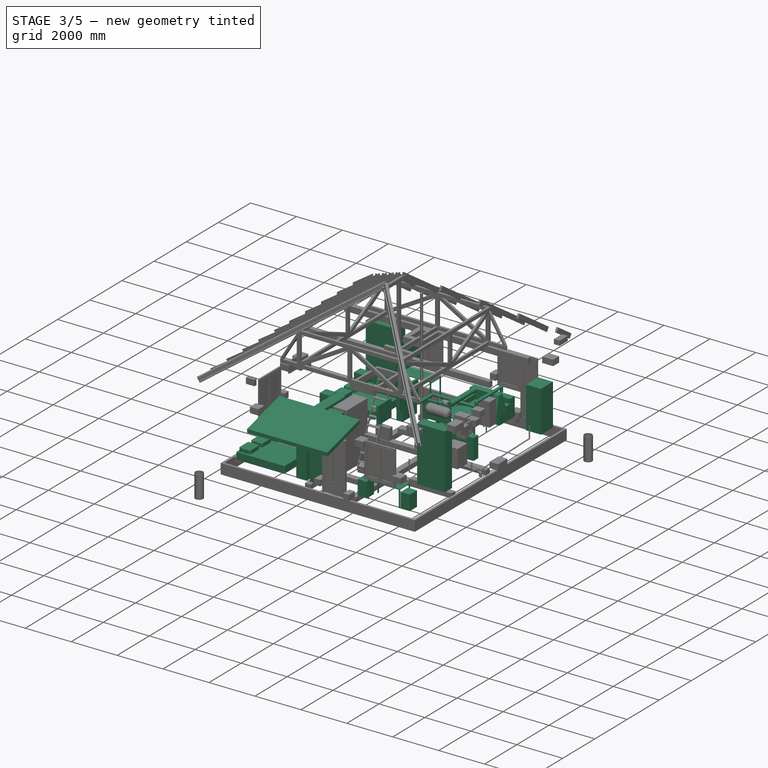
[diagram: stage 3 of 5 — iso view after this stage's code; geometry added in this stage tinted green]
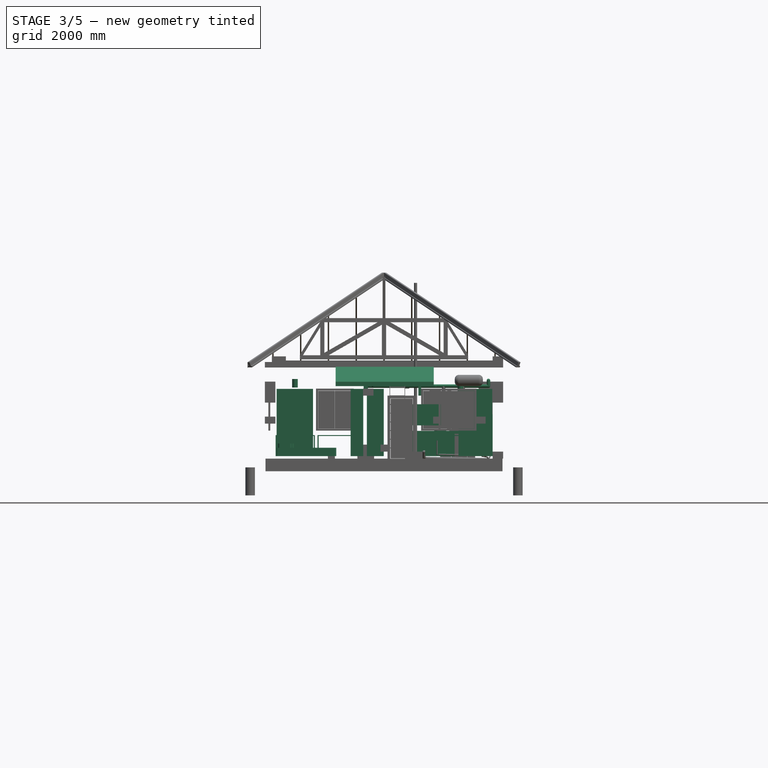
[diagram: stage 3 of 5 — front view after this stage's code; geometry added in this stage tinted green]
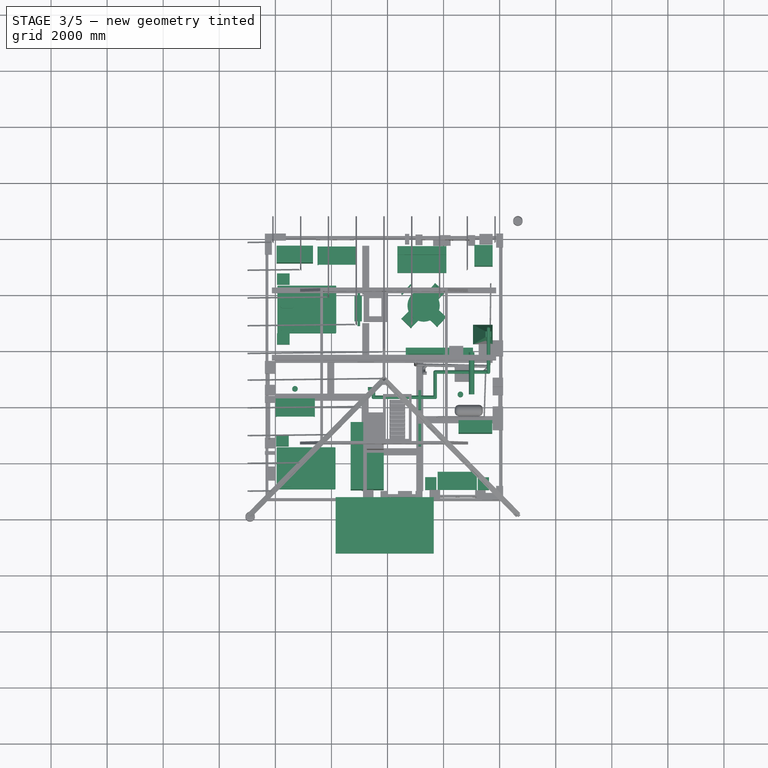
[diagram: stage 3 of 5 — top view after this stage's code; geometry added in this stage tinted green]
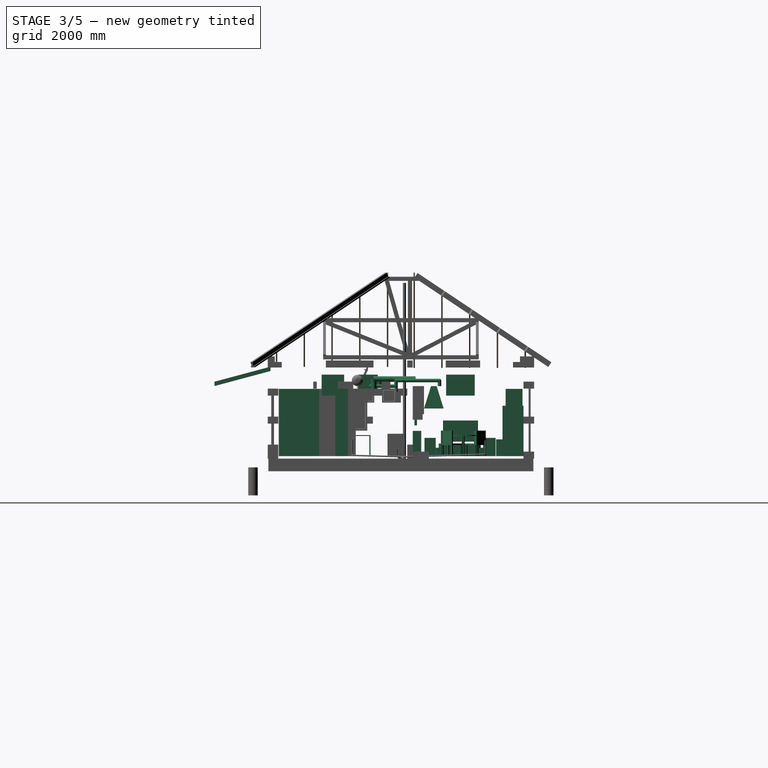
[diagram: stage 3 of 5 — right view after this stage's code; geometry added in this stage tinted green]
FEATURE [Part::Part2DObjectPython] Rectangle007  label="кровать_15_сп_004"  # Draft 2D object (typed FeaturePython)
  ChamferSize = 0
  Columns = 1
  FilletRadius = 25
  Height = 1500
  Length = 2100
  MakeFace = false
  Placement = pos=(45.6744,554.167,0) rot=(1,0,0;3.14159rad)
  Rows = 1
FEATURE [Part::Part2DObjectPython] Rectangle009  label="подушка_001"  # Draft 2D object (typed FeaturePython)
  ChamferSize = 0
  Columns = 1
  FilletRadius = 75
  Height = 600
  Length = 500
  MakeFace = false
  Placement = pos=(97.9414,467.839,0) rot=(1,0,0;3.14159rad)
  Rows = 1
FEATURE [App::DocumentObjectGroup] Group  label="кровать_15_сп_003"
FEATURE [Part::Feature] Face  label="Водогрей"
  Placement = pos=(10236.5,1990,1200) rot=(0,0,1;3.14159rad)
  shape: bbox 500 x 450 x 2e-07 mm, 1 faces, 0 solids (baked)
FEATURE [Part::Part2DObjectPython] Ellipse  # Draft 2D object (typed FeaturePython)
  FirstAngle = 0
  LastAngle = 0
  MajorRadius = 163.5
  MakeFace = false
  MinorRadius = 136.114
  Placement = pos=(5629.4,3194.88,400) rot=(0,0,1;0rad)
FEATURE [Part::Feature] Face002
  Placement = pos=(7888.82,4699.32,400) rot=(0,0,-1;1.5708rad)
  shape: bbox 700 x 400 x 2e-07 mm, 1 faces, 0 solids (baked)
FEATURE [Part::Feature] Face001  label="умывальник"
  Placement = pos=(1469.38,3607.18,600) rot=(0,0,1;0rad)
  shape: bbox 600 x 353.2 x 2e-07 mm, 1 faces, 0 solids (baked)
FEATURE [Part::Part2DObjectPython] Ellipse001  # Draft 2D object (typed FeaturePython)
  FirstAngle = 0
  LastAngle = 0
  MajorRadius = 200.765
  MakeFace = false
  MinorRadius = 76.8815
  Placement = pos=(5770.15,1784.06,800) rot=(0,0,1;0rad)
FEATURE [Part::Extrusion] Extrude034  label="подушка_005"
  Base = -> Rectangle009
  Dir = (0,0,1)
  DirMode = 0
  FaceMakerClass = Part::FaceMakerBullseye
  LengthFwd = 150
  LengthRev = 0
  Placement = pos=(0,0,300) rot=(0,0,1;0rad)
  Solid = true
  Symmetric = false
FEATURE [Part::Extrusion] Extrude037  label="кровать_15_сп_002"
  Base = -> Rectangle007
  Dir = (0,0,1)
  DirMode = 0
  FaceMakerClass = Part::FaceMakerBullseye
  LengthFwd = 300
  LengthRev = 0
  Solid = true
  Symmetric = false
FEATURE [App::GeometryPython] BuildingPart037  label="Ванна_001"  # Arch/BIM object (typed FeaturePython)
  Area = 0
  Group = -> [Structure179]
  Height = 0
  IfcRole = 0
  LevelOffset = 0
FEATURE [Part::Part2DObjectPython] Rectangle403  label="кровать_2сп_002"  # Draft 2D object (typed FeaturePython)
  ChamferSize = 0
  Columns = 1
  FilletRadius = 25
  Height = 1700
  Length = 2100
  MakeFace = false
  Placement = pos=(70.4669,6320.15,0) rot=(1,0,0;3.14159rad)
  Rows = 1
FEATURE [Part::Part2DObjectPython] Rectangle404  label="подушка_007"  # Draft 2D object (typed FeaturePython)
  ChamferSize = 0
  Columns = 1
  FilletRadius = 75
  Height = 700
  Length = 500
  MakeFace = false
  Placement = pos=(170.463,5420.15,0) rot=(1,0,0;3.14159rad)
  Rows = 1
FEATURE [Part::Part2DObjectPython] Rectangle405  label="подушка_008"  # Draft 2D object (typed FeaturePython)
  ChamferSize = 0
  Columns = 1
  FilletRadius = 75
  Height = 700
  Length = 500
  MakeFace = false
  Placement = pos=(170.463,6220.15,0) rot=(1,0,0;3.14159rad)
  Rows = 1
FEATURE [Part::Extrusion] Extrude051  label="подушка_009"
  Base = -> Rectangle404
  Dir = (0,0,1)
  DirMode = 0
  FaceMakerClass = Part::FaceMakerBullseye
  LengthFwd = 150
  LengthRev = 0
  Placement = pos=(0,0,300) rot=(0,0,1;0rad)
  Solid = true
  Symmetric = false
FEATURE [Part::Extrusion] Extrude052  label="подушка_010"
  Base = -> Rectangle405
  Dir = (0,0,1)
  DirMode = 0
  FaceMakerClass = Part::FaceMakerBullseye
  LengthFwd = 150
  LengthRev = 0
  Placement = pos=(0,0,300) rot=(0,0,1;0rad)
  Solid = true
  Symmetric = false
FEATURE [Part::Extrusion] Extrude053  label="кровать_2_сп_003"
  Base = -> Rectangle403
  Dir = (0,0,1)
  DirMode = 0
  FaceMakerClass = Part::FaceMakerBullseye
  LengthFwd = 300
  LengthRev = 0
  Solid = true
  Symmetric = false
FEATURE [App::FeaturePython] Dimension016  # Draft dimension (typed FeaturePython)
  Diameter = false
  Dimline = (3768.08,6876.05,0)
  Direction = (0,0,0)
  Distance = 4200
  End = (-5.717e-13,7750,0)
  Normal = (0,0,1)
  Start = (-1.2471e-12,3550,0)
FEATURE [App::FeaturePython] Dimension017  # Draft dimension (typed FeaturePython)
  Diameter = false
  Dimline = (4568.08,3776.05,0)
  Direction = (0,0,0)
  Distance = 1400
  End = (4400,3550,0)
  Normal = (0,0,1)
  Start = (4400,4950,0)
FEATURE [App::FeaturePython] Dimension022  # Draft dimension (typed FeaturePython)
  Diameter = false
  Dimline = (1200,4500,0)
  Direction = (0,0,0)
  Distance = 4400
  End = (4400,5000,0)
  Normal = (0,0,1)
  Start = (-1.0139e-12,5000,0)
FEATURE [App::FeaturePython] Dimension023  # Draft dimension (typed FeaturePython)
  Diameter = false
  Dimline = (6649.59,-926.122,0)
  Direction = (0,0,0)
  Distance = 4300
  End = (7750,-1000,0)
  Normal = (0,0,1)
  Start = (7750,3300,0)
FEATURE [App::FeaturePython] Dimension024  # Draft dimension (typed FeaturePython)
  Diameter = false
  Dimline = (2300,2500,0)
  Direction = (0,0,0)
  Distance = 2800
  End = (2800,-1000,0)
  Normal = (0,0,1)
  Start = (-1.0672e-12,-1000,0)
FEATURE [App::FeaturePython] Dimension025  # Draft dimension (typed FeaturePython)
  Diameter = false
  Dimline = (3700,-100,0)
  Direction = (0,0,0)
  Distance = 1900
  End = (4800,-1000,0)
  Normal = (0,0,1)
  Start = (2900,-1000,0)
FEATURE [Part::Box] Box3065  label="ножка001"
  AttacherType = Attacher::AttachEngine3D
  Height = 720
  Length = 40
  Placement = pos=(5287.5,6149.52,0) rot=(0,0,1;3.95271rad)
  Width = 40
FEATURE [Part::Box] Box3066  label="ножка002"
  AttacherType = Attacher::AttachEngine3D
  Height = 720
  Length = 40
  Placement = pos=(4764.1,5598.48,0) rot=(0,0,1;3.95271rad)
  Width = 40
FEATURE [Part::Box] Box3067  label="ножка003"
  AttacherType = Attacher::AttachEngine3D
  Height = 720
  Length = 40
  Placement = pos=(5827.15,5648.55,0) rot=(0,0,1;3.95271rad)
  Width = 40
FEATURE [Part::Box] Box3068  label="ножка004"
  AttacherType = Attacher::AttachEngine3D
  Height = 720
  Length = 40
  Placement = pos=(5303.74,5097.51,0) rot=(0,0,1;3.95271rad)
  Width = 40
FEATURE [Part::Box] Box3073  label="ножка007"
  AttacherType = Attacher::AttachEngine3D
  Height = 400
  Length = 40
  Placement = pos=(4850.81,6335.41,0) rot=(0,0,1;2.37104rad)
  Width = 40
FEATURE [Part::Box] Box3074  label="ножка008"
  AttacherType = Attacher::AttachEngine3D
  Height = 400
  Length = 40
  Placement = pos=(4888.75,5685.37,0) rot=(0,0,1;2.37104rad)
  Width = 40
FEATURE [Part::Box] Box3075  label="спинка001"
  AttacherType = Attacher::AttachEngine3D
  Height = 510
  Length = 50
  Placement = pos=(4857.98,6328.45,400) rot=(0,0,1;2.37104rad)
  Width = 480
FEATURE [Part::Box] Box3076  label="ножка009"
  AttacherType = Attacher::AttachEngine3D
  Height = 400
  Length = 40
  Placement = pos=(5391.45,5197.76,0) rot=(0,0,-1;0.748104rad)
  Width = 40
FEATURE [Part::Box] Box3077  label="ножка010"
  AttacherType = Attacher::AttachEngine3D
  Height = 400
  Length = 40
  Placement = pos=(5743.29,4871.22,0) rot=(0,0,-1;0.748104rad)
  Width = 40
FEATURE [Part::Box] Box3078  label="ножка011"
  AttacherType = Attacher::AttachEngine3D
  Height = 400
  Length = 40
  Placement = pos=(6042.6,5193.74,0) rot=(0,0,-1;0.748104rad)
  Width = 40
FEATURE [Part::Box] Box3079  label="сиденье002"
  AttacherType = Attacher::AttachEngine3D
  Height = 50
  Length = 520
  Placement = pos=(5391.46,5197.75,400) rot=(0,0,-1;0.748104rad)
  Width = 480
FEATURE [Part::Box] Box3080  label="ножка012"
  AttacherType = Attacher::AttachEngine3D
  Height = 400
  Length = 40
  Placement = pos=(5690.77,5520.26,0) rot=(0,0,-1;0.748104rad)
  Width = 40
FEATURE [Part::Box] Box3081  label="спинка002"
  AttacherType = Attacher::AttachEngine3D
  Height = 510
  Length = 50
  Placement = pos=(5735.96,4878.03,400) rot=(0,0,-1;0.748104rad)
  Width = 480
FEATURE [Part::MultiFuse] Fusion004  label="стул002"
  Shapes = -> [Box3076,Box3077,Box3078,Box3079,Box3080,Box3081]
FEATURE [Part::Part2DObjectPython] Rectangle541  label="проём_055"  # Draft 2D object (typed FeaturePython)
  ChamferSize = 0
  Columns = 1
  FilletRadius = 0
  Height = 100
  Length = 800
  MakeFace = true
  Placement = pos=(5100,1350,0) rot=(0,0,-1;1.5708rad)
  Rows = 1
FEATURE [App::FeaturePython] Dimension026  # Draft dimension (typed FeaturePython)
  Diameter = false
  Dimline = (7200,1900,0)
  Direction = (0,0,0)
  Distance = 2850
  End = (7750,3300,0)
  Normal = (0,0,1)
  Start = (4900,3300,0)
FEATURE [Part::FeaturePython] Wall074  label="стена_над_дверью_021"  # Arch/BIM object (typed FeaturePython)
  Align = 2
  Base = -> Rectangle541
  BlockHeight = 0
  BlockLength = 0
  CountBroken = 0
  CountEntire = 0
  Face = 0
  Height = 750
  HorizontalArea = 80000
  IfcRole = 156
  Joint = 0
  Length = 0
  MakeBlocks = false
  MoveWithHost = false
  Normal = (0,0,0)
  OffsetFirst = 0
  OffsetSecond = 0
  PerimeterLength = 1800
  Placement = pos=(0,0,2160) rot=(0,0,1;0rad)
  VerticalArea = 1350000
  Width = 200
FEATURE [Part::Box] Box3082  label="ТВ 55" 001"
  AttacherType = Attacher::AttachEngine3D
  Height = 750
  Length = 1250
  Placement = pos=(3022,4875,520) rot=(0,0,1;1.5708rad)
  Width = 90
FEATURE [Part::Part2DObjectPython] Line517  # Draft 2D object (typed FeaturePython)
  ChamferSize = 0
  Closed = false
  End = (6000,1350,0)
  FilletRadius = 0
  Length = 800
  MakeFace = true
  Placement = pos=(5550,1350,0) rot=(0,0,-1;1.73595rad)
  Points = (2) [(57.5404,-345.238,0),(-73.9806,443.877,0)]
  Start = (5200,1350,0)
  Subdivisions = 0
FEATURE [Part::Part2DObjectPython] Arc003  # Draft 2D object (typed FeaturePython)
  FirstAngle = -90
  LastAngle = 0
  MakeFace = true
  Placement = pos=(3000,2300,0) rot=(0,0,-1;1.5708rad)
  Radius = 800
FEATURE [Part::Part2DObjectPython] Line518  # Draft 2D object (typed FeaturePython)
  ChamferSize = 0
  Closed = false
  End = (3000,2300,0)
  FilletRadius = 0
  Length = 800
  MakeFace = true
  Placement = pos=(3000,1850,0) rot=(0,0,1;0.138277rad)
  Points = (2) [(-48.243,-346.659,0),(62.0267,445.705,0)]
  Start = (3000,1500,0)
  Subdivisions = 0
FEATURE [Part::Box] Box3084  label="ТВ 55" 002"
  AttacherType = Attacher::AttachEngine3D
  Height = 750
  Length = 1250
  Placement = pos=(4735.97,3859.51,1100) rot=(0,0,1;0rad)
  Width = 90
FEATURE [Part::Box] Box3095  label="тумбочка 400х450 001"
  AttacherType = Attacher::AttachEngine3D
  Height = 650
  Length = 400
  Placement = pos=(508.511,4217.61,0) rot=(0,0,1;1.5708rad)
  Width = 450
FEATURE [Part::Box] Box3096  label="тумбочка 400х450 002"
  AttacherType = Attacher::AttachEngine3D
  Height = 650
  Length = 400
  Placement = pos=(508.511,6352.93,0) rot=(0,0,1;1.5708rad)
  Width = 450
FEATURE [Part::Box] Box3097  label="тумбочка 400х450 003"
  AttacherType = Attacher::AttachEngine3D
  Height = 650
  Length = 400
  Placement = pos=(477.206,583.376,0) rot=(0,0,1;1.5708rad)
  Width = 450
FEATURE [Part::Box] Box3098  label="ножка017"
  AttacherType = Attacher::AttachEngine3D
  Height = 720
  Length = 40
  Placement = pos=(2862.34,7707.18,0) rot=(0,0,-1;1.5708rad)
  Width = 40
FEATURE [Part::Box] Box3099  label="ножка018"
  AttacherType = Attacher::AttachEngine3D
  Height = 720
  Length = 40
  Placement = pos=(2862.34,7097.18,0) rot=(0,0,-1;1.5708rad)
  Width = 40
FEATURE [Part::Box] Box3100  label="ножка019"
  AttacherType = Attacher::AttachEngine3D
  Height = 720
  Length = 40
  Placement = pos=(1502.34,7097.18,0) rot=(0,0,-1;1.5708rad)
  Width = 40
FEATURE [Part::Box] Box3101  label="ножка020"
  AttacherType = Attacher::AttachEngine3D
  Height = 720
  Length = 40
  Placement = pos=(1502.34,7707.2,0) rot=(0,0,-1;1.5708rad)
  Width = 40
FEATURE [Part::Box] Box3102  label="столешница003"
  AttacherType = Attacher::AttachEngine3D
  Height = 30
  Length = 650
  Placement = pos=(1502.34,7707.18,720) rot=(0,0,-1;1.5708rad)
  Width = 1400
FEATURE [Part::MultiFuse] Fusion006
  Shapes = -> [Box3101,Box3098,Box3099,Box3100,Box3102]
FEATURE [Part::FeaturePython] Equipment008  label="стол письменный 002"  # Arch/BIM object (typed FeaturePython)
  Base = -> Fusion006
  EquipmentPower = 0
  HorizontalArea = 0
  IfcRole = 79
  MoveWithHost = false
  PerimeterLength = 0
  VerticalArea = 0
FEATURE [Part::Box] Box3103  label="ножка021"
  AttacherType = Attacher::AttachEngine3D
  Height = 720
  Length = 40
  Placement = pos=(48.6476,1642.58,0) rot=(0,0,1;1.5708rad)
  Width = 40
FEATURE [Part::Box] Box3104  label="ножка022"
  AttacherType = Attacher::AttachEngine3D
  Height = 720
  Length = 40
  Placement = pos=(48.6476,2252.58,0) rot=(0,0,1;1.5708rad)
  Width = 40
FEATURE [Part::Box] Box3105  label="ножка023"
  AttacherType = Attacher::AttachEngine3D
  Height = 720
  Length = 40
  Placement = pos=(1408.65,2252.58,0) rot=(0,0,1;1.5708rad)
  Width = 40
FEATURE [Part::Box] Box3106  label="ножка024"
  AttacherType = Attacher::AttachEngine3D
  Height = 720
  Length = 40
  Placement = pos=(1408.65,1642.56,0) rot=(0,0,1;1.5708rad)
  Width = 40
FEATURE [Part::Box] Box3107  label="столешница004"
  AttacherType = Attacher::AttachEngine3D
  Height = 30
  Length = 650
  Placement = pos=(1408.65,1642.58,720) rot=(0,0,1;1.5708rad)
  Width = 1400
FEATURE [Part::MultiFuse] Fusion007
  Shapes = -> [Box3106,Box3103,Box3104,Box3105,Box3107]
FEATURE [Part::FeaturePython] Equipment009  label="стол письменный 003"  # Arch/BIM object (typed FeaturePython)
  Base = -> Fusion007
  EquipmentPower = 0
  HorizontalArea = 0
  IfcRole = 79
  MoveWithHost = false
  PerimeterLength = 0
  VerticalArea = 0
FEATURE [Part::Part2DObjectPython] Rectangle542  label="подушка_011"  # Draft 2D object (typed FeaturePython)
  ChamferSize = 0
  Columns = 1
  FilletRadius = 75
  Height = 600
  Length = 500
  MakeFace = false
  Placement = pos=(89.8025,-261.128,0) rot=(1,0,0;3.14159rad)
  Rows = 1
FEATURE [Part::Extrusion] Extrude054  label="подушка_012"
  Base = -> Rectangle542
  Dir = (0,0,1)
  DirMode = 0
  FaceMakerClass = Part::FaceMakerBullseye
  LengthFwd = 150
  LengthRev = 0
  Placement = pos=(0,0,300) rot=(0,0,1;0rad)
  Solid = true
  Symmetric = false
FEATURE [Part::Box] Box3108  label="тумба под ТВ 90х26х45 001"
  AttacherType = Attacher::AttachEngine3D
  Height = 450
  Length = 900
  Placement = pos=(3085,5050,0) rot=(0,0,1;1.5708rad)
  Width = 260
FEATURE [App::FeaturePython] Dimension028  # Draft dimension (typed FeaturePython)
  Diameter = false
  Dimline = (4100,2500,0)
  Direction = (0,0,0)
  Distance = 1100
  End = (2800,2200,0)
  Normal = (0,0,1)
  Start = (2800,3300,0)
FEATURE [Part::Part2DObjectPython] Rectangle544  # Draft 2D object (typed FeaturePython)
  ChamferSize = 0
  Columns = 1
  FilletRadius = 0
  Height = 300
  Length = 1750
  MakeFace = false
  Placement = pos=(6100,7723.03,0) rot=(0,0,1;3.14159rad)
  Rows = 1
FEATURE [Part::Part2DObjectPython] Rectangle545  # Draft 2D object (typed FeaturePython)
  ChamferSize = 0
  Columns = 1
  FilletRadius = 0
  Height = 950
  Length = 1750
  MakeFace = false
  Placement = pos=(6100,7723.03,0) rot=(0,0,1;3.14159rad)
  Rows = 1
  Support = -> [Rectangle544]
FEATURE [Part::FeaturePython] Structure275  label="Structure018"  # Arch/BIM object (typed FeaturePython)
  Base = -> Rectangle544
  FaceMaker = 0
  Height = 400
  HorizontalArea = 525000
  IfcRole = 0
  Length = 0
  MoveWithHost = false
  Nodes = (2) [(5225,7573.03,0),(5225,7573.03,400)]
  NodesOffset = 0
  Normal = (0,0,0)
  PerimeterLength = 4100
  Placement = pos=(0,0,400) rot=(0,0,1;0rad)
  VerticalArea = 1.64e+06
  Width = 100
FEATURE [Part::FeaturePython] Structure276  label="Structure019"  # Arch/BIM object (typed FeaturePython)
  Base = -> Rectangle545
  FaceMaker = 0
  Height = 400
  HorizontalArea = 1.6625e+06
  IfcRole = 0
  Length = 0
  MoveWithHost = false
  Nodes = (2) [(906.577,7240.7,0),(906.577,7240.7,400)]
  NodesOffset = 0
  Normal = (0,0,0)
  PerimeterLength = 5400
  VerticalArea = 2160000
  Width = 100
FEATURE [Part::Part2DObjectPython] Rectangle546  # Draft 2D object (typed FeaturePython)
  ChamferSize = 0
  Columns = 1
  FilletRadius = 0
  Height = 950
  Length = 250
  MakeFace = false
  Placement = pos=(6100,7723.03,0) rot=(0,0,1;3.14159rad)
  Rows = 1
FEATURE [Part::FeaturePython] Structure277  label="Structure020"  # Arch/BIM object (typed FeaturePython)
  Base = -> Rectangle546
  FaceMaker = 0
  Height = 200
  HorizontalArea = 237500
  IfcRole = 0
  Length = 0
  MoveWithHost = false
  Nodes = (2) [(1656.58,7240.7,0),(1656.58,7240.7,200)]
  NodesOffset = 0
  Normal = (0,0,0)
  PerimeterLength = 2400
  Placement = pos=(0,0,400) rot=(0,0,1;0rad)
  VerticalArea = 480000
  Width = 100
FEATURE [Part::Part2DObjectPython] Rectangle547  # Draft 2D object (typed FeaturePython)
  ChamferSize = 0
  Columns = 1
  FilletRadius = 0
  Height = 950
  Length = 250
  MakeFace = false
  Placement = pos=(4600,7723.03,0) rot=(0,0,1;3.14159rad)
  Rows = 1
FEATURE [Part::FeaturePython] Structure278  label="Structure021"  # Arch/BIM object (typed FeaturePython)
  Base = -> Rectangle547
  FaceMaker = 0
  Height = 200
  HorizontalArea = 237500
  IfcRole = 0
  Length = 0
  MoveWithHost = false
  Nodes = (2) [(156.577,7240.7,0),(156.577,7240.7,200)]
  NodesOffset = 0
  Normal = (0,0,0)
  PerimeterLength = 2400
  Placement = pos=(0,0,400) rot=(0,0,1;0rad)
  VerticalArea = 480000
  Width = 100
FEATURE [App::GeometryPython] BuildingPart065  label="Диван "  # Arch/BIM object (typed FeaturePython)
  Area = 0
  Group = -> [Structure275,Structure278,Structure276,Structure277]
  Height = 0
  IfcRole = 0
  LevelOffset = 0
FEATURE [Part::Box] Box3110  label="шкаф 120х45х240 003"
  AttacherType = Attacher::AttachEngine3D
  Height = 2400
  Length = 1200
  Placement = pos=(3133.65,218.528,0) rot=(0,0,1;1.5708rad)
  Width = 450
FEATURE [App::FeaturePython] Dimension032  # Draft dimension (typed FeaturePython)
  Diameter = false
  Dimline = (7643.46,4741.47,0)
  Direction = (0,0,0)
  Distance = 858.117
  End = (4275,5300,0)
  Normal = (0,0,1)
  Start = (3416.88,5300,0)
FEATURE [App::FeaturePython] Dimension033  # Draft dimension (typed FeaturePython)
  Diameter = false
  Dimline = (3600,5100,0)
  Direction = (0,0,0)
  Distance = 989.159
  End = (3500,7050,0)
  Normal = (0,0,1)
  Start = (3500,6060.84,0)
FEATURE [App::DocumentObjectGroup] Group068  label="размеры"
  Group = -> [Dimension016,Dimension017,Dimension022,Dimension023,Dimension024,Dimension025,Dimension026,Dimension028,Dimension032,Dimension033]
FEATURE [Part::Box] Box3111  label="холодильник 75 см"
  AttacherType = Attacher::AttachEngine3D
  Height = 1800
  Length = 750
  Placement = pos=(7750,7000,0) rot=(0,0,1;1.5708rad)
  Width = 650
FEATURE [Part::Box] Box3113  label="кух.зона 006"
  AttacherType = Attacher::AttachEngine3D
  Height = 900
  Length = 300
  Placement = pos=(7050,3800,0) rot=(0,0,1;1.5708rad)
  Width = 2400
FEATURE [Part::Part2DObjectPython] Rectangle554  label="мойка"  # Draft 2D object (typed FeaturePython)
  ChamferSize = 0
  Columns = 1
  FilletRadius = 150
  Height = 500
  Length = 600
  MakeFace = false
  Placement = pos=(7652.37,6100,901) rot=(0,0,1;1.5708rad)
  Rows = 1
FEATURE [Part::Part2DObjectPython] Circle010  # Draft 2D object (typed FeaturePython)
  FirstAngle = 0
  LastAngle = 0
  MakeFace = false
  Placement = pos=(7242.31,4396.13,901) rot=(0,0,1;0rad)
  Radius = 100
FEATURE [Part::FeaturePython] Array021  label="плита"  # Draft array (typed FeaturePython)
  Angle = 360
  ArrayType = 0
  Axis = (0,0,1)
  Base = -> Circle010
  Center = (0,0,0)
  Fuse = false
  IntervalAxis = (0,0,0)
  IntervalX = (300,0,0)
  IntervalY = (0,300,0)
  IntervalZ = (0,0,1)
  NumberPolar = 1
  NumberX = 2
  NumberY = 2
  NumberZ = 1
FEATURE [Part::Part2DObjectPython] Rectangle555  label="вытяжка осн бол"  # Draft 2D object (typed FeaturePython)
  ChamferSize = 0
  Columns = 1
  FilletRadius = 0
  Height = 700
  Length = 700
  MakeFace = false
  Placement = pos=(7050,4900,1700) rot=(0,0,-1;1.5708rad)
  Rows = 1
FEATURE [Part::Part2DObjectPython] Rectangle556  label="вытяжка осн мал"  # Draft 2D object (typed FeaturePython)
  ChamferSize = 0
  Columns = 1
  FilletRadius = 0
  Height = 200
  Length = 200
  MakeFace = false
  Placement = pos=(7500,4650,2500) rot=(0,0,-1;1.5708rad)
  Rows = 1
FEATURE [Part::Loft] Loft  label="вытяжка"
  Closed = false
  MaxDegree = 5
  Ruled = false
  Sections = -> [Rectangle555,Rectangle556]
  Solid = true
FEATURE [Part::Box] Box3116  label="шкаф 120х45х240 005"
  AttacherType = Attacher::AttachEngine3D
  Height = 2400
  Length = 1300
  Placement = pos=(44.87,7110.25,0) rot=(0,0,1;0rad)
  Width = 600
FEATURE [Part::Part2DObjectPython] Rectangle565  label="прощадь внутри стен"  # Draft 2D object (typed FeaturePython)
  ChamferSize = 0
  Columns = 1
  FilletRadius = 0
  Height = 8750
  Length = 7750
  MakeFace = false
  Placement = pos=(-1.33e-13,-1000,0) rot=(0,0,1;0rad)
  Rows = 1
FEATURE [Part::Box] Box3117  label="шкаф 120х45х240 006"
  AttacherType = Attacher::AttachEngine3D
  Height = 2400
  Length = 1200
  Placement = pos=(3133.65,-981.472,0) rot=(0,0,1;1.5708rad)
  Width = 450
FEATURE [Part::Part2DObjectPython] Rectangle575  label="кладовая"  # Draft 2D object (typed FeaturePython)
  ChamferSize = 0
  Columns = 1
  FilletRadius = 0
  Height = 1200
  Length = 1925
  MakeFace = false
  Placement = pos=(1925,3600,0) rot=(0,0,1;3.14159rad)
  Rows = 1
FEATURE [Part::Part2DObjectPython] Rectangle576  label="спальня #1"  # Draft 2D object (typed FeaturePython)
  ChamferSize = 0
  Columns = 1
  FilletRadius = 0
  Height = 3150
  Length = 3950
  MakeFace = false
  Placement = pos=(3150,3800,0) rot=(0,0,1;1.5708rad)
  Rows = 1
FEATURE [Part::Part2DObjectPython] Rectangle577  label="кухня-гостиная001"  # Draft 2D object (typed FeaturePython)
  ChamferSize = 0
  Columns = 1
  FilletRadius = 0
  Height = 3950
  Length = 4450
  MakeFace = false
  Placement = pos=(3300,3800,0) rot=(0,0,1;0rad)
  Rows = 1
FEATURE [Part::Part2DObjectPython] Rectangle578  label="прощадь внутри стен002"  # Draft 2D object (typed FeaturePython)
  ChamferSize = 0
  Columns = 1
  FilletRadius = 0
  Height = 8750
  Length = 7750
  MakeFace = false
  Placement = pos=(7750,7750,0) rot=(0,0,1;3.14159rad)
  Rows = 1
FEATURE [Part::Part2DObjectPython] Rectangle580  label="спальня #2"  # Draft 2D object (typed FeaturePython)
  ChamferSize = 0
  Columns = 1
  FilletRadius = 0
  Height = 2500
  Length = 2550
  MakeFace = false
  Placement = pos=(5200,-1000,0) rot=(0,0,-1;0rad)
  Rows = 1
FEATURE [Part::Part2DObjectPython] Rectangle581  label="санузел"  # Draft 2D object (typed FeaturePython)
  ChamferSize = 0
  Columns = 1
  FilletRadius = 0
  Height = 2000
  Length = 2550
  MakeFace = false
  Placement = pos=(5200,1600,0) rot=(0,0,-1;0rad)
  Rows = 1
FEATURE [Part::Part2DObjectPython] Rectangle582  label="тамбур"  # Draft 2D object (typed FeaturePython)
  ChamferSize = 0
  Columns = 1
  FilletRadius = 0
  Height = 1350
  Length = 1850
  MakeFace = false
  Placement = pos=(5100,350,0) rot=(0,0,1;3.14159rad)
  Rows = 1
FEATURE [Part::Part2DObjectPython] Rectangle583  label="кабинет001"  # Draft 2D object (typed FeaturePython)
  ChamferSize = 0
  Columns = 1
  FilletRadius = 0
  Height = 3300
  Length = 3150
  MakeFace = false
  Placement = pos=(-1.509e-13,-1000,0) rot=(0,0,1;0rad)
  Rows = 1
FEATURE [Part::Part2DObjectPython] Wire162  label="прихожая"  # Draft 2D object (typed FeaturePython)
  ChamferSize = 0
  Closed = true
  End = (2025,2400,0)
  FilletRadius = 0
  Length = 12450
  MakeFace = false
  Placement = pos=(2450,3600,0) rot=(0,0,1;0rad)
  Points = (6) [(-425,-2.27374e-12,0),(2650,-2.27374e-12,0),(2650,-3150,0),(800,-3150,0),(800,-1200,0),(-425,-1200,0)]
  Start = (2025,3600,0)
  Subdivisions = 0
FEATURE [Part::Part2DObjectPython] Rectangle585  label="шкаф гардероб #2"  # Draft 2D object (typed FeaturePython)
  ChamferSize = 0
  Columns = 1
  FilletRadius = 0
  Height = 1300
  Length = 600
  MakeFace = false
  Placement = pos=(3265,-975,0) rot=(0,0,1;0rad)
  Rows = 1
FEATURE [Part::Part2DObjectPython] Rectangle586  label="проём_057"  # Draft 2D object (typed FeaturePython)
  ChamferSize = 0
  Columns = 1
  FilletRadius = 0
  Height = 700
  Length = 100
  MakeFace = true
  Placement = pos=(5100,1850,0) rot=(0,0,1;0rad)
  Rows = 1
FEATURE [Part::Part2DObjectPython] ShapeString  label="надпись 001"  # Draft 2D object (typed FeaturePython)
  FontFile = <path>
  Placement = pos=(4774.52,4464.67,0) rot=(0,0,1;0rad)
  Size = 100
  String = кухня-гостиная 17.5 м2
  Tracking = 0
FEATURE [Part::Cylinder] Cylinder  label="стол кругл."
  Angle = 360
  AttacherType = Attacher::AttachEngine3D
  Height = 30
  Placement = pos=(5287.5,5602.04,720) rot=(0,0,-1;0.75968rad)
  Radius = 575
FEATURE [Part::MultiFuse] Fusion  label="стол круглый D115 раздвижной"
  Shapes = -> [Cylinder,Box3065,Box3066,Box3067,Box3068]
FEATURE [Part::Box] Box3118  label="сиденье003"
  AttacherType = Attacher::AttachEngine3D
  Height = 50
  Length = 520
  Placement = pos=(4854.25,5507.53,400) rot=(0,0,1;3.93973rad)
  Width = 480
FEATURE [Part::Box] Box3119  label="ножка025"
  AttacherType = Attacher::AttachEngine3D
  Height = 400
  Length = 40
  Placement = pos=(4834.25,4856.68,0) rot=(0,0,1;3.93973rad)
  Width = 40
FEATURE [Part::Box] Box3120  label="ножка026"
  AttacherType = Attacher::AttachEngine3D
  Height = 400
  Length = 40
  Placement = pos=(4854.26,5507.54,0) rot=(0,0,1;3.93973rad)
  Width = 40
FEATURE [Part::Box] Box3121  label="ножка027"
  AttacherType = Attacher::AttachEngine3D
  Height = 400
  Length = 40
  Placement = pos=(4519.19,5163.82,0) rot=(0,0,1;3.93973rad)
  Width = 40
FEATURE [Part::Box] Box3122  label="ножка028"
  AttacherType = Attacher::AttachEngine3D
  Height = 400
  Length = 40
  Placement = pos=(5169.31,5200.39,0) rot=(0,0,1;3.93973rad)
  Width = 40
FEATURE [Part::Box] Box3123  label="спинка003"
  AttacherType = Attacher::AttachEngine3D
  Height = 510
  Length = 50
  Placement = pos=(4526.17,5170.98,400) rot=(0,0,1;3.93973rad)
  Width = 480
FEATURE [Part::MultiFuse] Fusion008  label="стул003"
  Shapes = -> [Box3120,Box3121,Box3119,Box3118,Box3122,Box3123]
FEATURE [Part::Box] Box3124  label="сиденье004"
  AttacherType = Attacher::AttachEngine3D
  Height = 50
  Length = 520
  Placement = pos=(5694.65,5695.16,400) rot=(0,0,1;0.818437rad)
  Width = 480
FEATURE [Part::Box] Box3125  label="ножка029"
  AttacherType = Attacher::AttachEngine3D
  Height = 400
  Length = 40
  Placement = pos=(5701.43,6346.28,0) rot=(0,0,1;0.818437rad)
  Width = 40
FEATURE [Part::Box] Box3126  label="ножка030"
  AttacherType = Attacher::AttachEngine3D
  Height = 400
  Length = 40
  Placement = pos=(5694.64,5695.15,0) rot=(0,0,1;0.818437rad)
  Width = 40
FEATURE [Part::Box] Box3127  label="ножка031"
  AttacherType = Attacher::AttachEngine3D
  Height = 400
  Length = 40
  Placement = pos=(6022.67,6045.6,0) rot=(0,0,1;0.818437rad)
  Width = 40
FEATURE [Part::Box] Box3128  label="ножка032"
  AttacherType = Attacher::AttachEngine3D
  Height = 400
  Length = 40
  Placement = pos=(5373.42,5995.84,0) rot=(0,0,1;0.818437rad)
  Width = 40
FEATURE [Part::Box] Box3129  label="спинка004"
  AttacherType = Attacher::AttachEngine3D
  Height = 510
  Length = 50
  Placement = pos=(6015.83,6038.3,400) rot=(0,0,1;0.818437rad)
  Width = 480
FEATURE [Part::MultiFuse] Fusion009  label="стул004"
  Shapes = -> [Box3126,Box3127,Box3125,Box3124,Box3128,Box3129]
FEATURE [App::GeometryPython] BuildingPart063  label="обед.стол со стульями"  # Arch/BIM object (typed FeaturePython)
  Area = 0
  Group = -> [Fusion,Fusion003,Fusion004,Fusion008,Fusion009]
  Height = 0
  IfcRole = 0
  LevelOffset = 0
FEATURE [Part::Box] Box3130  label="шкаф 130х60х240 002"
  AttacherType = Attacher::AttachEngine3D
  Height = 2400
  Length = 1300
  Placement = pos=(3865,-975,0) rot=(0,0,1;1.5708rad)
  Width = 600
FEATURE [App::DocumentObjectGroup] Group009  label="Сантехника"
  Group = -> [Face,Group010,Group011,Extrude043,BuildingPart037,Box3131]
FEATURE [Part::FeaturePython] Wall048  label="стена_над_дверью_016"  # Arch/BIM object (typed FeaturePython)
  Align = 2
  Base = -> Rectangle372
  BlockHeight = 0
  BlockLength = 0
  CountBroken = 0
  CountEntire = 0
  Face = 0
  Height = 750
  HorizontalArea = 153000
  IfcRole = 156
  Joint = 0
  Length = 0
  MakeBlocks = false
  MoveWithHost = false
  Normal = (0,0,0)
  OffsetFirst = 0
  OffsetSecond = 0
  PerimeterLength = 2340
  Placement = pos=(0,0,2160) rot=(0,0,1;0rad)
  VerticalArea = 1755000
  Width = 200
FEATURE [Part::FeaturePython] Wall075  label="стена_над_дверью_022"  # Arch/BIM object (typed FeaturePython)
  Align = 2
  Base = -> Rectangle586
  BlockHeight = 0
  BlockLength = 0
  CountBroken = 0
  CountEntire = 0
  Face = 0
  Height = 750
  HorizontalArea = 70000
  IfcRole = 156
  Joint = 0
  Length = 0
  MakeBlocks = false
  MoveWithHost = false
  Normal = (0,0,0)
  OffsetFirst = 0
  OffsetSecond = 0
  PerimeterLength = 1600
  Placement = pos=(0,0,2160) rot=(0,0,1;0rad)
  VerticalArea = 1200000
  Width = 200
FEATURE [Part::Part2DObjectPython] ShapeString007  label="надпись 008"  # Draft 2D object (typed FeaturePython)
  FontFile = <path>
  Placement = pos=(3155.41,3189.13,0) rot=(0,0,1;0rad)
  Size = 100
  String = Всего: 63.6 м2
  Tracking = 0
FEATURE [Part::Box] Box3132  label="ножка033"
  AttacherType = Attacher::AttachEngine3D
  Height = 720
  Length = 40
  Placement = pos=(7145.74,-327.626,0) rot=(0,0,-1;1.5708rad)
  Width = 40
FEATURE [Part::Box] Box3133  label="ножка034"
  AttacherType = Attacher::AttachEngine3D
  Height = 720
  Length = 40
  Placement = pos=(7145.74,-937.626,0) rot=(0,0,-1;1.5708rad)
  Width = 40
FEATURE [Part::Box] Box3134  label="ножка035"
  AttacherType = Attacher::AttachEngine3D
  Height = 720
  Length = 40
  Placement = pos=(5785.74,-937.626,0) rot=(0,0,-1;1.5708rad)
  Width = 40
FEATURE [Part::Box] Box3135  label="ножка036"
  AttacherType = Attacher::AttachEngine3D
  Height = 720
  Length = 40
  Placement = pos=(5785.74,-327.613,0) rot=(0,0,-1;1.5708rad)
  Width = 40
FEATURE [Part::Box] Box3136  label="столешница005"
  AttacherType = Attacher::AttachEngine3D
  Height = 30
  Length = 650
  Placement = pos=(5785.74,-327.626,720) rot=(0,0,-1;1.5708rad)
  Width = 1400
FEATURE [Part::MultiFuse] Fusion010
  Shapes = -> [Box3135,Box3132,Box3133,Box3134,Box3136]
FEATURE [Part::FeaturePython] Equipment010  label="стол письменный 004"  # Arch/BIM object (typed FeaturePython)
  Base = -> Fusion010
  EquipmentPower = 0
  HorizontalArea = 0
  IfcRole = 79
  MoveWithHost = false
  PerimeterLength = 0
  VerticalArea = 0
FEATURE [Part::Part2DObjectPython] Arc013  # Draft 2D object (typed FeaturePython)
  FirstAngle = 26.5651
  LastAngle = 90
  MakeFace = false
  Placement = pos=(2025,2500,0) rot=(0,0,1;0rad)
  Radius = 700
FEATURE [Part::Part2DObjectPython] Line552  # Draft 2D object (typed FeaturePython)
  ChamferSize = 0
  Closed = false
  End = (2025,2500,0)
  FilletRadius = 0
  Length = 700
  MakeFace = false
  Placement = pos=(2651.1,2813.05,0) rot=(0,0,1;0rad)
  Points = (2) [(0,0,0),(-626.099,-313.05,0)]
  Start = (2651.1,2813.05,0)
  Subdivisions = 0
FEATURE [Part::Part2DObjectPython] Rectangle592  label="короб воздуховода и вентстояк"  # Draft 2D object (typed FeaturePython)
  ChamferSize = 0
  Columns = 1
  FilletRadius = 0
  Height = 250
  Length = 900
  MakeFace = true
  Placement = pos=(5100,2700,0) rot=(0,0,1;1.5708rad)
  Rows = 1
FEATURE [Part::Part2DObjectPython] Line553  label="подающий воздуховод 047"  # Draft 2D object (typed FeaturePython)
  ChamferSize = 0
  Closed = false
  End = (700,2600,7.39e-13)
  FilletRadius = 0
  Length = 300
  MakeFace = true
  Placement = pos=(700,2600,-50) rot=(0,0.707107,-0.707107;3.14159rad)
  Points = (2) [(2.27374e-13,250,0),(1.13687e-13,-50,0)]
  Start = (700,2600,-300)
  Subdivisions = 0
FEATURE [Part::FeaturePython] Pipe051  label="подающий воздуховод 048"  # Arch/BIM object (typed FeaturePython)
  Base = -> Line553
  Diameter = 200
  HorizontalArea = 0
  IfcRole = 98
  Length = 300
  MoveWithHost = false
  OffsetEnd = 0
  OffsetStart = 0
  PerimeterLength = 0
  Placement = pos=(0,0,2750) rot=(0,0,1;0rad)
  VerticalArea = 0
FEATURE [Part::Part2DObjectPython] Line554  label="подающий воздуховод 049"  # Draft 2D object (typed FeaturePython)
  ChamferSize = 0
  Closed = false
  End = (7000,3900,0)
  FilletRadius = 0
  Length = 1500
  MakeFace = true
  Placement = pos=(7000,2400,0) rot=(0,0,1;3.14159rad)
  Points = (2) [(0,0,0),(0,-1500,0)]
  Start = (7000,2400,0)
  Subdivisions = 0
FEATURE [Part::FeaturePython] Pipe052  label="подающий воздуховод 050"  # Arch/BIM object (typed FeaturePython)
  Base = -> Line554
  Diameter = 200
  HorizontalArea = 0
  IfcRole = 98
  Length = 1500
  MoveWithHost = false
  OffsetEnd = 0
  OffsetStart = 0
  PerimeterLength = 0
  Placement = pos=(0,0,2750) rot=(0,0,1;0rad)
  VerticalArea = 0
FEATURE [Part::Part2DObjectPython] Line555  label="подающий воздуховод 051"  # Draft 2D object (typed FeaturePython)
  ChamferSize = 0
  Closed = false
  End = (6600,2400,-450)
  FilletRadius = 0
  Length = 450
  MakeFace = true
  Placement = pos=(6600,2400,0) rot=(0,0,1;0rad)
  Points = (2) [(0,0,0),(0,0,-450)]
  Start = (6600,2400,0)
  Subdivisions = 0
FEATURE [Part::FeaturePython] Pipe053  label="подающий воздуховод 052"  # Arch/BIM object (typed FeaturePython)
  Base = -> Line555
  Diameter = 200
  HorizontalArea = 0
  IfcRole = 98
  Length = 450
  MoveWithHost = false
  OffsetEnd = 0
  OffsetStart = 0
  PerimeterLength = 0
  Placement = pos=(0,0,2750) rot=(0,0,1;0rad)
  VerticalArea = 0
FEATURE [Part::Part2DObjectPython] Rectangle595  label="перегородка 50мм 003"  # Draft 2D object (typed FeaturePython)
  ChamferSize = 0
  Columns = 1
  FilletRadius = 0
  Height = 400
  Length = 75
  MakeFace = true
  Placement = pos=(5600,2662.5,0) rot=(0,0,1;1.5708rad)
  Rows = 1
FEATURE [Part::Part2DObjectPython] Rectangle596  label="перегородка 50мм 001"  # Draft 2D object (typed FeaturePython)
  ChamferSize = 0
  Columns = 1
  FilletRadius = 0
  Height = 250
  Length = 75
  MakeFace = true
  Placement = pos=(6312.5,1600,0) rot=(0,0,1;0rad)
  Rows = 1
FEATURE [Part::Part2DObjectPython] Line557  label="шторка 001"  # Draft 2D object (typed FeaturePython)
  ChamferSize = 0
  Closed = false
  End = (6312.5,2700,0)
  FilletRadius = 0
  Length = 712.5
  MakeFace = true
  Placement = pos=(5675,2700,0) rot=(0,0,1;0rad)
  Points = (2) [(-75,-1.81899e-12,0),(637.5,-1.81899e-12,0)]
  Start = (5600,2700,0)
  Subdivisions = 0
FEATURE [Part::Part2DObjectPython] Line558  label="шторка 002"  # Draft 2D object (typed FeaturePython)
  ChamferSize = 0
  Closed = false
  End = (6350,1850,0)
  FilletRadius = 0
  Length = 750
  MakeFace = true
  Placement = pos=(6350,2600,0) rot=(0,0,1;0rad)
  Points = (2) [(0,0,0),(0,-750,0)]
  Start = (6350,2600,0)
  Subdivisions = 0
FEATURE [Part::Part2DObjectPython] Rectangle597  label="перегородка 50мм 002"  # Draft 2D object (typed FeaturePython)
  ChamferSize = 0
  Columns = 1
  FilletRadius = 0
  Height = 1000
  Length = 75
  MakeFace = true
  Placement = pos=(6312.5,2600,0) rot=(0,0,1;0rad)
  Rows = 1
FEATURE [Part::Box] Box3138  label="шкаф 120х45х240 008"
  AttacherType = Attacher::AttachEngine3D
  Height = 2400
  Length = 1200
  Placement = pos=(6533.97,1038.34,0) rot=(0,0,1;0rad)
  Width = 450
FEATURE [Part::Box] Box3139  label="тумбочка 400х450 004"
  AttacherType = Attacher::AttachEngine3D
  Height = 650
  Length = 400
  Placement = pos=(7218.42,-971.419,0) rot=(0,0,1;0rad)
  Width = 450
FEATURE [Part::Box] Box3140  label="тумбочка 400х450 005"
  AttacherType = Attacher::AttachEngine3D
  Height = 650
  Length = 400
  Placement = pos=(5343.18,-966.007,0) rot=(0,0,1;0rad)
  Width = 450
FEATURE [Part::Part2DObjectPython] Wire171  label="вытяжная вентиляция 006"  # Draft 2D object (typed FeaturePython)
  ChamferSize = 0
  Closed = false
  End = (7600,4750,-200)
  FilletRadius = 0
  Length = 7450
  MakeFace = true
  Placement = pos=(3300,2700,-200) rot=(0,0,1;0rad)
  Points = (9) [(0,-100,0),(200,-100,0),(200,-400,0),(2400,-400,0),(2400,500,0),(4300,500,0),(4300,500,200),(4300,2050,200),(4300,2050,0)]
  Start = (3300,2600,-200)
  Subdivisions = 0
FEATURE [Part::FeaturePython] Pipe054  label="вытяжная вентиляция 007"  # Arch/BIM object (typed FeaturePython)
  Base = -> Wire171
  Diameter = 125
  HorizontalArea = 0
  IfcRole = 98
  Length = 7450
  MoveWithHost = false
  OffsetEnd = 0
  OffsetStart = 0
  PerimeterLength = 0
  Placement = pos=(0,0,2700) rot=(0,0,1;0rad)
  VerticalArea = 0
FEATURE [Part::Part2DObjectPython] Wire172  label="крыша_крыльца_001"  # Draft 2D object (typed FeaturePython)
  ChamferSize = 0
  Closed = true
  End = (2150,-1275,2500)
  FilletRadius = 0
  Length = 11000
  MakeFace = false
  Placement = pos=(2150,-3275,2500) rot=(0,0,1;0rad)
  Points = (4) [(0,0,0),(3500,9.09495e-13,0),(3500,2000,0),(9.09495e-13,2000,0)]
  Start = (2150,-3275,2500)
  Subdivisions = 0
FEATURE [Part::FeaturePython] Roof  label="крыша_крыльца_002"  # Arch/BIM object (typed FeaturePython)
  Angles = [15,90,90,90]
  Base = -> Wire172
  BorderLength = 11141.1
  Face = 0
  Flip = false
  Heights = [535.898,535.898,535.898,535.898]
  HorizontalArea = 7e+06
  IdRel = [0,0,0,0]
  IfcRole = 111
  MoveWithHost = false
  Overhang = [0,0,0,0]
  PerimeterLength = 11000
  RidgeLength = 0
  Runs = [2000,500,0,500,500]
  Thickness = [150,50,50,50]
  VerticalArea = 1.70821e+06
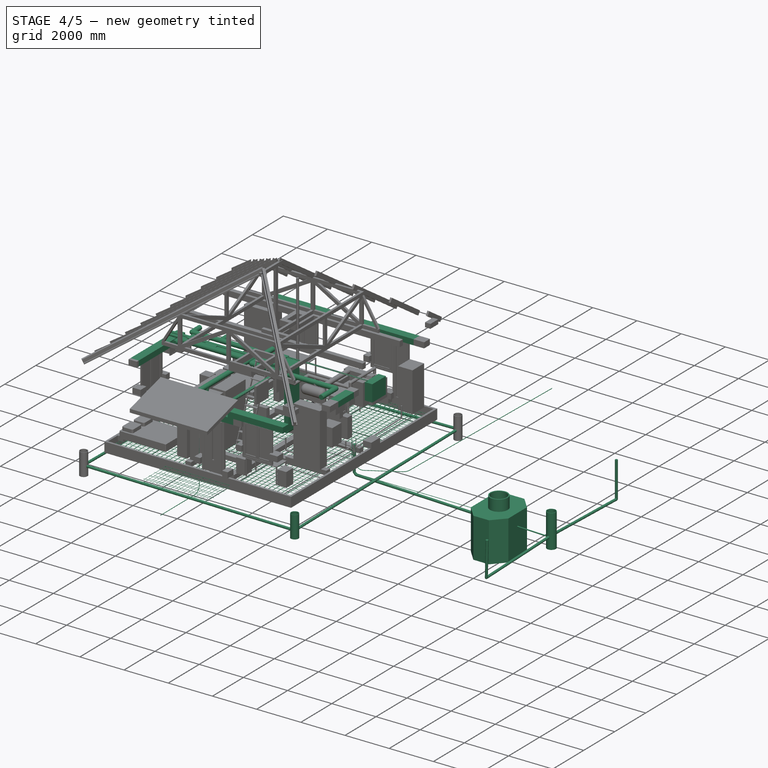
[diagram: stage 4 of 5 — iso view after this stage's code; geometry added in this stage tinted green]
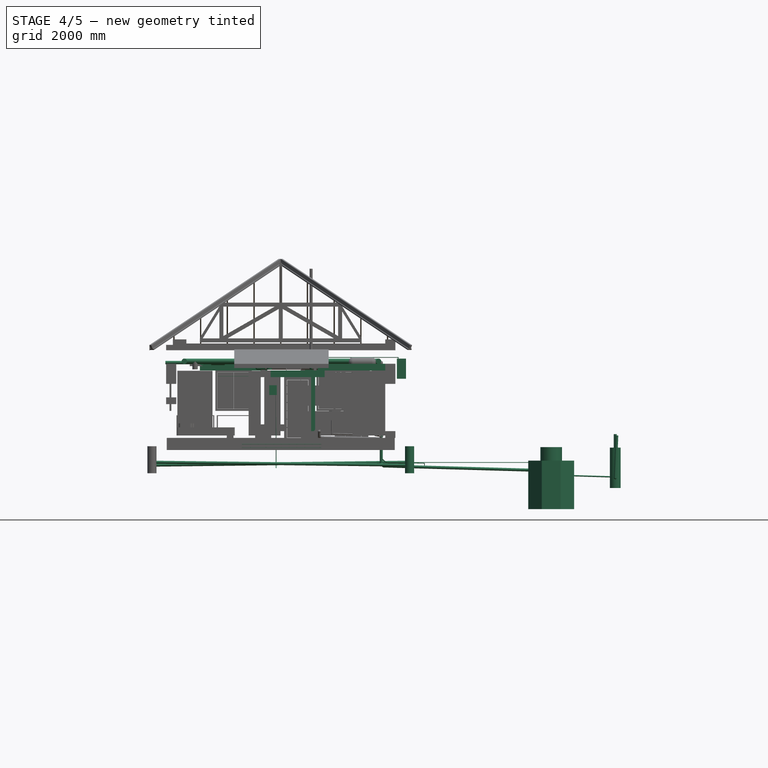
[diagram: stage 4 of 5 — front view after this stage's code; geometry added in this stage tinted green]
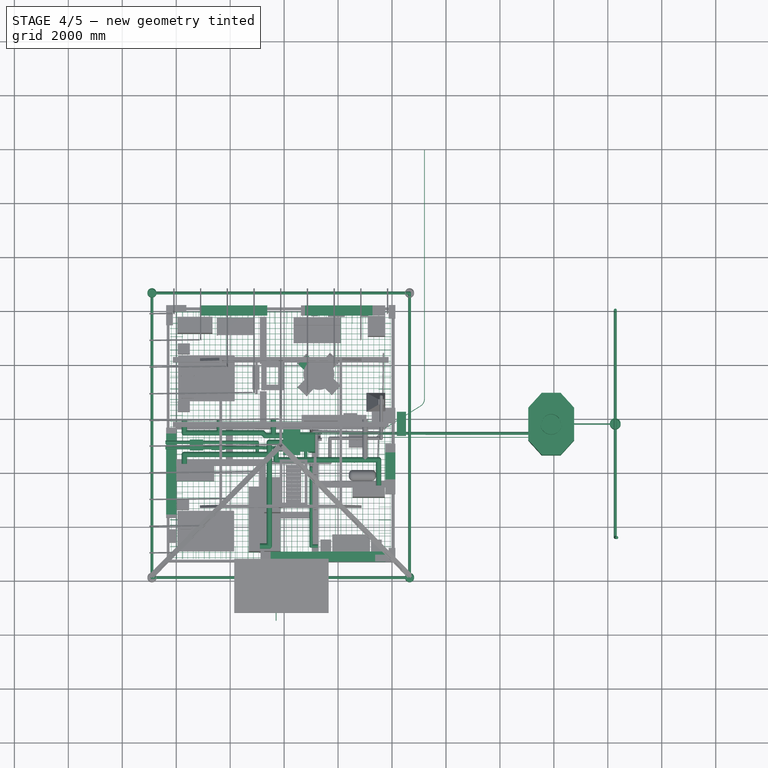
[diagram: stage 4 of 5 — top view after this stage's code; geometry added in this stage tinted green]
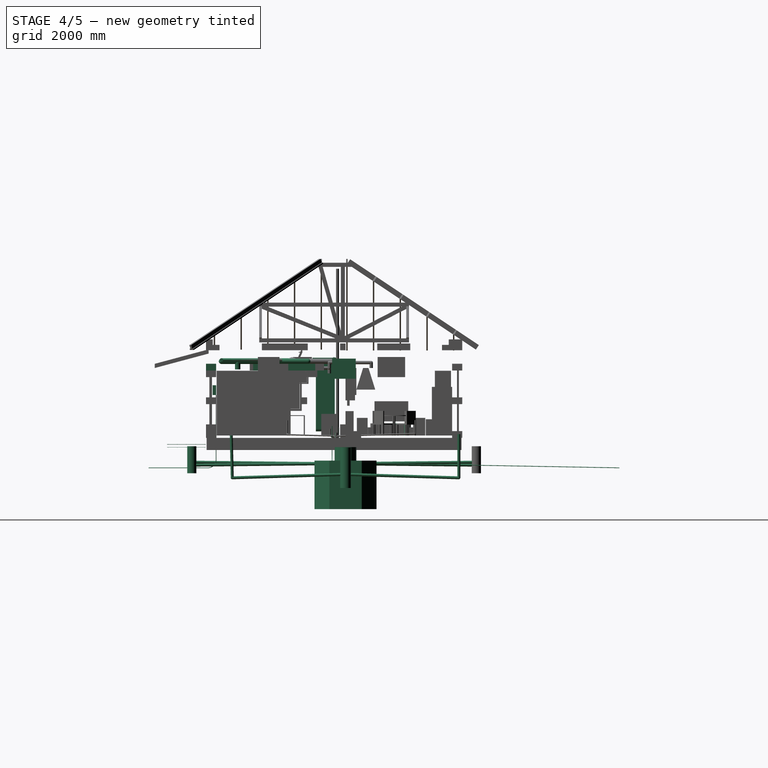
[diagram: stage 4 of 5 — right view after this stage's code; geometry added in this stage tinted green]
FEATURE [Part::Feature] Box390  label="Блок 625х375х250_192"
  Placement = pos=(7125,-1375,-90) rot=(0,0,1;0rad)
  shape: bbox 625 x 375 x 250 mm, 6 faces (baked)
FEATURE [Part::Feature] Box391  label="Блок 625х375х250_193"
  Placement = pos=(6500,-1375,-90) rot=(0,0,1;0rad)
  shape: bbox 625 x 375 x 250 mm, 6 faces (baked)
FEATURE [Part::Feature] Box392  label="Блок 625х375х250_194"
  Placement = pos=(7750,-125,-90) rot=(0,0,-1;1.5708rad)
  shape: bbox 375 x 625 x 250 mm, 6 faces (baked)
FEATURE [Part::Feature] Box394  label="Блок 625х375х250_196"
  Placement = pos=(1500,7750,-90) rot=(0,0,1;0rad)
  shape: bbox 625 x 375 x 250 mm, 6 faces (baked)
FEATURE [Part::Feature] Box396  label="Блок 625х375х250_198"
  Placement = pos=(2125,-1375,-90) rot=(0,0,1;0rad)
  shape: bbox 625 x 375 x 250 mm, 6 faces (baked)
FEATURE [Part::Feature] Box397  label="Блок 625х375х250_199"
  Placement = pos=(7750,-750,-90) rot=(0,0,-1;1.5708rad)
  shape: bbox 375 x 625 x 250 mm, 6 faces (baked)
FEATURE [Part::Feature] Box400  label="Блок 625х375х250_201"
  Placement = pos=(2750,7750,-90) rot=(0,0,1;0rad)
  shape: bbox 625 x 375 x 250 mm, 6 faces (baked)
FEATURE [Part::Feature] Box403  label="Блок 625х375х250_203"
  Placement = pos=(-375,4625,-90) rot=(0,0,-1;1.5708rad)
  shape: bbox 375 x 625 x 250 mm, 6 faces (baked)
FEATURE [Part::Feature] Box404  label="Блок 625х375х250_204"
  Placement = pos=(2125,7750,-90) rot=(0,0,1;0rad)
  shape: bbox 625 x 375 x 250 mm, 6 faces (baked)
FEATURE [Part::Feature] Box405  label="Блок 625х375х250_205"
  Placement = pos=(5875,-1375,-90) rot=(0,0,1;0rad)
  shape: bbox 625 x 375 x 250 mm, 6 faces (baked)
FEATURE [Part::Feature] Box407  label="Блок 625х375х250_207"
  Placement = pos=(-375,250,-90) rot=(0,0,-1;1.5708rad)
  shape: bbox 375 x 625 x 250 mm, 6 faces (baked)
FEATURE [Part::Feature] Box408  label="Блок 625х375х250_208"
  Placement = pos=(250,-1375,-90) rot=(0,0,1;0rad)
  shape: bbox 625 x 375 x 250 mm, 6 faces (baked)
FEATURE [Part::Feature] Box409  label="Блок 625х375х250_209"
  Placement = pos=(875,-1375,-90) rot=(0,0,1;0rad)
  shape: bbox 625 x 375 x 250 mm, 6 faces (baked)
FEATURE [Part::Feature] Box410  label="Блок 625х375х250_210"
  Placement = pos=(-375,7750,-90) rot=(0,0,1;0rad)
  shape: bbox 625 x 375 x 250 mm, 6 faces (baked)
FEATURE [Part::Feature] Box411  label="Блок 625х375х250_211"
  Placement = pos=(-375,2750,-90) rot=(0,0,-1;1.5708rad)
  shape: bbox 375 x 625 x 250 mm, 6 faces (baked)
FEATURE [Part::Feature] Box412  label="Блок 625х375х250_212"
  Placement = pos=(-375,4000,-90) rot=(0,0,-1;1.5708rad)
  shape: bbox 375 x 625 x 250 mm, 6 faces (baked)
FEATURE [Part::Feature] Box413  label="Блок 625х375х250_213"
  Placement = pos=(5250,-1375,-90) rot=(0,0,1;0rad)
  shape: bbox 625 x 375 x 250 mm, 6 faces (baked)
FEATURE [Part::Feature] Box414  label="Блок 625х375х250_214"
  Placement = pos=(-375,7125,-90) rot=(0,0,-1;1.5708rad)
  shape: bbox 375 x 625 x 250 mm, 6 faces (baked)
FEATURE [Part::Feature] Box415  label="Блок 625х375х250_215"
  Placement = pos=(-375,5875,-90) rot=(0,0,-1;1.5708rad)
  shape: bbox 375 x 625 x 250 mm, 6 faces (baked)
FEATURE [Part::Feature] Box416  label="Блок 625х375х250_216"
  Placement = pos=(3375,-1375,-90) rot=(0,0,1;0rad)
  shape: bbox 625 x 375 x 250 mm, 6 faces (baked)
FEATURE [Part::Feature] Box417  label="Блок 625х375х250_217"
  Placement = pos=(-375,5250,-90) rot=(0,0,-1;1.5708rad)
  shape: bbox 375 x 625 x 250 mm, 6 faces (baked)
FEATURE [Part::Feature] Box418  label="Блок 625х375х250_218"
  Placement = pos=(5250,7750,-90) rot=(0,0,1;0rad)
  shape: bbox 625 x 375 x 250 mm, 6 faces (baked)
FEATURE [Part::Feature] Box419  label="Блок 625х375х250_219"
  Placement = pos=(2750,-1375,-90) rot=(0,0,1;0rad)
  shape: bbox 625 x 375 x 250 mm, 6 faces (baked)
FEATURE [Part::Feature] Box421  label="Блок 625х375х250_221"
  Placement = pos=(7125,7750,-90) rot=(0,0,1;0rad)
  shape: bbox 625 x 375 x 250 mm, 6 faces (baked)
FEATURE [Part::Feature] Box422  label="Блок 625х375х250_222"
  Placement = pos=(-375,7750,-90) rot=(0,0,-1;1.5708rad)
  shape: bbox 375 x 625 x 250 mm, 6 faces (baked)
FEATURE [Part::Feature] Box423  label="Блок 625х375х250_223"
  Placement = pos=(-375,2125,-90) rot=(0,0,-1;1.5708rad)
  shape: bbox 375 x 625 x 250 mm, 6 faces (baked)
FEATURE [Part::Feature] Box425  label="Блок 625х375х250_225"
  Placement = pos=(875,7750,-90) rot=(0,0,1;0rad)
  shape: bbox 625 x 375 x 250 mm, 6 faces (baked)
FEATURE [Part::Feature] Box426  label="Блок 625х375х250_226"
  Placement = pos=(7750,6875,-90) rot=(0,0,-1;1.5708rad)
  shape: bbox 375 x 625 x 250 mm, 6 faces (baked)
FEATURE [Part::Feature] Box427  label="Блок 625х375х250_227"
  Placement = pos=(7750,5625,-90) rot=(0,0,-1;1.5708rad)
  shape: bbox 375 x 625 x 250 mm, 6 faces (baked)
FEATURE [Part::Feature] Box428  label="Блок 625х375х250_228"
  Placement = pos=(7750,6250,-90) rot=(0,0,-1;1.5708rad)
  shape: bbox 375 x 625 x 250 mm, 6 faces (baked)
FEATURE [Part::Feature] Box429  label="Блок 625х375х250_229"
  Placement = pos=(-375,3375,-90) rot=(0,0,-1;1.5708rad)
  shape: bbox 375 x 625 x 250 mm, 6 faces (baked)
FEATURE [Part::Feature] Box430  label="Блок 625х375х250_230"
  Placement = pos=(3375,7750,-90) rot=(0,0,1;0rad)
  shape: bbox 625 x 375 x 250 mm, 6 faces (baked)
FEATURE [Part::Feature] Box431  label="Блок 625х375х250_231"
  Placement = pos=(7750,7500,-90) rot=(0,0,-1;1.5708rad)
  shape: bbox 375 x 625 x 250 mm, 6 faces (baked)
FEATURE [Part::Feature] Box432  label="Блок 625х375х250_232"
  Placement = pos=(4625,7750,-90) rot=(0,0,1;0rad)
  shape: bbox 625 x 375 x 250 mm, 6 faces (baked)
FEATURE [Part::Feature] Box433  label="Блок 625х375х250_233"
  Placement = pos=(7750,8125,-90) rot=(0,0,-1;1.5708rad)
  shape: bbox 375 x 625 x 250 mm, 6 faces (baked)
FEATURE [Part::Feature] Box434  label="Блок 625х375х250_234"
  Placement = pos=(4000,7750,-90) rot=(0,0,1;0rad)
  shape: bbox 625 x 375 x 250 mm, 6 faces (baked)
FEATURE [Part::Feature] Box435  label="Блок 625х375х250_235"
  Placement = pos=(250,7750,-90) rot=(0,0,1;0rad)
  shape: bbox 625 x 375 x 250 mm, 6 faces (baked)
FEATURE [Part::Feature] Box454  label="Блок 625х375х250_236"
  Placement = pos=(1500,-1375,-90) rot=(0,0,1;0rad)
  shape: bbox 625 x 375 x 250 mm, 6 faces (baked)
FEATURE [Part::Feature] Box455  label="Блок 625х375х250_237"
  Placement = pos=(-375,6500,-90) rot=(0,0,-1;1.5708rad)
  shape: bbox 375 x 625 x 250 mm, 6 faces (baked)
FEATURE [Part::Feature] Box456  label="Блок 625х375х250_238"
  Placement = pos=(625,-1375,160) rot=(0,0,1;0rad)
  shape: bbox 625 x 375 x 250 mm, 6 faces (baked)
FEATURE [Part::Feature] Box457  label="Блок 625х375х250_239"
  Placement = pos=(1875,-1375,160) rot=(0,0,1;0rad)
  shape: bbox 625 x 375 x 250 mm, 6 faces (baked)
FEATURE [Part::Feature] Box458  label="Блок 625х375х250_240"
  Placement = pos=(2500,-1375,160) rot=(0,0,1;0rad)
  shape: bbox 625 x 375 x 250 mm, 6 faces (baked)
FEATURE [Part::Feature] Box459  label="Блок 625х375х250_241"
  Placement = pos=(1250,-1375,160) rot=(0,0,1;0rad)
  shape: bbox 625 x 375 x 250 mm, 6 faces (baked)
FEATURE [Part::Feature] Box460  label="Блок 625х375х250_242"
  Placement = pos=(7750,7125,160) rot=(0,0,-1;1.5708rad)
  shape: bbox 375 x 625 x 250 mm, 6 faces (baked)
FEATURE [Part::Feature] Box461  label="Блок 625х375х250_243"
  Placement = pos=(7750,5875,160) rot=(0,0,-1;1.5708rad)
  shape: bbox 375 x 625 x 250 mm, 6 faces (baked)
FEATURE [Part::Feature] Box462  label="Блок 625х375х250_244"
  Placement = pos=(3125,-1375,160) rot=(0,0,1;0rad)
  shape: bbox 625 x 375 x 250 mm, 6 faces (baked)
FEATURE [Part::Feature] Box465  label="Блок 625х375х250_247"
  Placement = pos=(5000,-1375,160) rot=(0,0,1;0rad)
  shape: bbox 625 x 375 x 250 mm, 6 faces (baked)
FEATURE [Part::Feature] Box466  label="Блок 625х375х250_248"
  Placement = pos=(5625,-1375,160) rot=(0,0,1;0rad)
  shape: bbox 625 x 375 x 250 mm, 6 faces (baked)
FEATURE [Part::Feature] Box467  label="Блок 625х375х250_249"
  Placement = pos=(6250,-1375,160) rot=(0,0,1;0rad)
  shape: bbox 625 x 375 x 250 mm, 6 faces (baked)
FEATURE [Part::Feature] Box468  label="Блок 625х375х250_250"
  Placement = pos=(6875,-1375,160) rot=(0,0,1;0rad)
  shape: bbox 625 x 375 x 250 mm, 6 faces (baked)
FEATURE [Part::Feature] Box469  label="Блок 625х375х250_251"
  Placement = pos=(7500,-1375,160) rot=(0,0,1;0rad)
  shape: bbox 625 x 375 x 250 mm, 6 faces (baked)
FEATURE [Part::Feature] Box470  label="Блок 625х375х250_252"
  Placement = pos=(7750,250,160) rot=(0,0,-1;1.5708rad)
  shape: bbox 375 x 625 x 250 mm, 6 faces (baked)
FEATURE [Part::Feature] Box471  label="Блок 625х375х250_253"
  Placement = pos=(7750,875,160) rot=(0,0,-1;1.5708rad)
  shape: bbox 375 x 625 x 250 mm, 6 faces (baked)
FEATURE [Part::Feature] Box472  label="Блок 625х375х250_254"
  Placement = pos=(7750,2125,160) rot=(0,0,-1;1.5708rad)
  shape: bbox 375 x 625 x 250 mm, 6 faces (baked)
FEATURE [Part::Feature] Box473  label="Блок 625х375х250_255"
  Placement = pos=(7750,2750,160) rot=(0,0,-1;1.5708rad)
  shape: bbox 375 x 625 x 250 mm, 6 faces (baked)
FEATURE [Part::Feature] Box474  label="Блок 625х375х250_256"
  Placement = pos=(-375,500,160) rot=(0,0,-1;1.5708rad)
  shape: bbox 375 x 625 x 250 mm, 6 faces (baked)
FEATURE [Part::Feature] Box475  label="Блок 625х375х250_257"
  Placement = pos=(-375,1125,160) rot=(0,0,-1;1.5708rad)
  shape: bbox 375 x 625 x 250 mm, 6 faces (baked)
FEATURE [Part::Feature] Box476  label="Блок 625х375х250_258"
  Placement = pos=(-375,1750,160) rot=(0,0,-1;1.5708rad)
  shape: bbox 375 x 625 x 250 mm, 6 faces (baked)
FEATURE [Part::Feature] Box477  label="Блок 625х375х250_259"
  Placement = pos=(-375,2375,160) rot=(0,0,-1;1.5708rad)
  shape: bbox 375 x 625 x 250 mm, 6 faces (baked)
FEATURE [Part::Feature] Box478  label="Блок 625х375х250_260"
  Placement = pos=(-375,4425,160) rot=(0,0,-1;1.5708rad)
  shape: bbox 375 x 625 x 250 mm, 6 faces (baked)
FEATURE [Part::Feature] Box479  label="Блок 625х375х250_261"
  Placement = pos=(-375,5050,160) rot=(0,0,-1;1.5708rad)
  shape: bbox 375 x 625 x 250 mm, 6 faces (baked)
FEATURE [Part::Feature] Box480  label="Блок 625х375х250_262"
  Placement = pos=(-375,5675,160) rot=(0,0,-1;1.5708rad)
  shape: bbox 375 x 625 x 250 mm, 6 faces (baked)
FEATURE [Part::Feature] Box481  label="Блок 625х375х250_263"
  Placement = pos=(-375,6300,160) rot=(0,0,-1;1.5708rad)
  shape: bbox 375 x 625 x 250 mm, 6 faces (baked)
FEATURE [Part::Feature] Box482  label="Блок 625х375х250_264"
  Placement = pos=(-375,6925,160) rot=(0,0,-1;1.5708rad)
  shape: bbox 375 x 625 x 250 mm, 6 faces (baked)
FEATURE [Part::Feature] Box484  label="Блок 625х375х250_266"
  Placement = pos=(-375,8125,160) rot=(0,0,-1;1.5708rad)
  shape: bbox 375 x 625 x 250 mm, 6 faces (baked)
FEATURE [Part::Feature] Box485  label="Блок 625х375х250_267"
  Placement = pos=(-3.865e-12,7750,160) rot=(0,0,1;0rad)
  shape: bbox 625 x 375 x 250 mm, 6 faces (baked)
FEATURE [Part::Feature] Box486  label="Блок 625х375х250_268"
  Placement = pos=(625,7750,160) rot=(0,0,1;0rad)
  shape: bbox 625 x 375 x 250 mm, 6 faces (baked)
FEATURE [Part::Feature] Box487  label="Блок 625х375х250_269"
  Placement = pos=(1250,7750,160) rot=(0,0,1;0rad)
  shape: bbox 625 x 375 x 250 mm, 6 faces (baked)
FEATURE [Part::Feature] Box488  label="Блок 625х375х250_270"
  Placement = pos=(1875,7750,160) rot=(0,0,1;0rad)
  shape: bbox 625 x 375 x 250 mm, 6 faces (baked)
FEATURE [Part::Feature] Box489  label="Блок 625х375х250_271"
  Placement = pos=(2500,7750,160) rot=(0,0,1;0rad)
  shape: bbox 625 x 375 x 250 mm, 6 faces (baked)
FEATURE [Part::Feature] Box490  label="Блок 625х375х250_272"
  Placement = pos=(3125,7750,160) rot=(0,0,1;0rad)
  shape: bbox 625 x 375 x 250 mm, 6 faces (baked)
FEATURE [Part::Feature] Box491  label="Блок 625х375х250_273"
  Placement = pos=(3750,7750,160) rot=(0,0,1;0rad)
  shape: bbox 625 x 375 x 250 mm, 6 faces (baked)
FEATURE [Part::Feature] Box492  label="Блок 625х375х250_274"
  Placement = pos=(4375,7750,160) rot=(0,0,1;0rad)
  shape: bbox 625 x 375 x 250 mm, 6 faces (baked)
FEATURE [Part::Feature] Box493  label="Блок 625х375х250_275"
  Placement = pos=(5000,7750,160) rot=(0,0,1;0rad)
  shape: bbox 625 x 375 x 250 mm, 6 faces (baked)
FEATURE [Part::Feature] Box494  label="Блок 625х375х250_276"
  Placement = pos=(5625,7750,160) rot=(0,0,1;0rad)
  shape: bbox 625 x 375 x 250 mm, 6 faces (baked)
FEATURE [Part::Feature] Box496  label="Блок 625х375х250_278"
  Placement = pos=(6875,7750,160) rot=(0,0,1;0rad)
  shape: bbox 625 x 375 x 250 mm, 6 faces (baked)
FEATURE [Part::Feature] Box497  label="Блок 625х375х250_279"
  Placement = pos=(7500,7750,160) rot=(0,0,1;0rad)
  shape: bbox 625 x 375 x 250 mm, 6 faces (baked)
FEATURE [Part::Feature] Box498  label="Блок 625х375х250_280"
  Placement = pos=(7750,7750,160) rot=(0,0,-1;1.5708rad)
  shape: bbox 375 x 625 x 250 mm, 6 faces (baked)
FEATURE [Part::Feature] Box499  label="Блок 625х375х250_281"
  Placement = pos=(7750,6500,160) rot=(0,0,-1;1.5708rad)
  shape: bbox 375 x 625 x 250 mm, 6 faces (baked)
FEATURE [Part::Feature] Box500  label="Блок 625х375х250_282"
  Placement = pos=(7750,5250,160) rot=(0,0,-1;1.5708rad)
  shape: bbox 375 x 625 x 250 mm, 6 faces (baked)
FEATURE [Part::Feature] Box501  label="Блок 625х375х250_283"
  Placement = pos=(7750,1500,160) rot=(0,0,-1;1.5708rad)
  shape: bbox 375 x 625 x 250 mm, 6 faces (baked)
FEATURE [Part::Feature] Box520  label="Блок 625х375х250_284"
  Placement = pos=(-1.14e-13,-1375,160) rot=(0,0,1;0rad)
  shape: bbox 625 x 375 x 250 mm, 6 faces (baked)
FEATURE [Part::Feature] Box521  label="Блок 625х375х250_285"
  Placement = pos=(-375,-125,160) rot=(0,0,-1;1.5708rad)
  shape: bbox 375 x 625 x 250 mm, 6 faces (baked)
FEATURE [Part::Box] Box886  label="Армокаркас 2000х160х190_001"
  AttacherType = Attacher::AttachEngine3D
  Height = 190
  Length = 2000
  Placement = pos=(5500,-1060,2220) rot=(0,0,1;3.14159rad)
  Width = 160
FEATURE [Part::Box] Box899  label="Армокаркас 7500х160х190_001"
  AttacherType = Attacher::AttachEngine3D
  Height = 250
  Length = 3750
  Placement = pos=(1500,3600,2160) rot=(0,0,1;0rad)
  Width = 200
FEATURE [Part::Part2DObjectPython] Rectangle445  label="плита_9250х8250"  # Draft 2D object (typed FeaturePython)
  ChamferSize = 0
  Columns = 1
  FilletRadius = 0
  Height = 9250
  Length = 8250
  MakeFace = false
  Placement = pos=(-250,-1250,0) rot=(0,0,1;0rad)
  Rows = 1
FEATURE [Part::FeaturePython] Structure130  label="фундамент_плита h0.25"  # Arch/BIM object (typed FeaturePython)
  Base = -> Rectangle445
  FaceMaker = 0
  Height = 250
  HorizontalArea = 76312500
  IfcRole = 0
  Length = 0
  MoveWithHost = false
  Nodes = (2) [(3875,3875,0),(3875,3875,350)]
  NodesOffset = 0
  Normal = (0,0,-1)
  PerimeterLength = 35000
  Placement = pos=(0,0,-290) rot=(0,0,1;0rad)
  VerticalArea = 8750000
  Width = 100
FEATURE [Part::Part2DObjectPython] Rectangle482  label="плита_крыльца_001"  # Draft 2D object (typed FeaturePython)
  ChamferSize = 0
  Columns = 1
  FilletRadius = 0
  Height = 1500
  Length = 3000
  MakeFace = false
  Placement = pos=(2400,-2850,0) rot=(0,0,1;0rad)
  Rows = 1
FEATURE [Part::Part2DObjectPython] Rectangle483  label="подушка_крыльца_002"  # Draft 2D object (typed FeaturePython)
  ChamferSize = 0
  Columns = 1
  FilletRadius = 0
  Height = 1600
  Length = 5250
  MakeFace = false
  Placement = pos=(1275,-3975,0) rot=(0,0,1;0rad)
  Rows = 1
FEATURE [Part::FeaturePython] Structure237  label="фундамент_плита_крыльца h0.2"  # Arch/BIM object (typed FeaturePython)
  Base = -> Rectangle482
  FaceMaker = 0
  Height = 250
  HorizontalArea = 4500000
  IfcRole = 0
  Length = 0
  MoveWithHost = false
  Nodes = (2) [(3875,3875,0),(3875,3875,350)]
  NodesOffset = 0
  Normal = (0,0,-1)
  PerimeterLength = 9000
  Placement = pos=(0,0,-290) rot=(0,0,1;0rad)
  VerticalArea = 2250000
  Width = 100
FEATURE [Part::Part2DObjectPython] Wire103  label="стояк_кан."  # Draft 2D object (typed FeaturePython)
  ChamferSize = 0
  Closed = true
  End = (7600,3450,100)
  FilletRadius = 0
  Length = 300
  MakeFace = false
  Placement = pos=(7600,3450,-200) rot=(0,0,1;0rad)
  Points = (2) [(0,0,0),(0,0,300)]
  Start = (7600,3450,-200)
  Subdivisions = 0
FEATURE [Part::FeaturePython] Pipe  label="стояк канализационный D110"  # Arch/BIM object (typed FeaturePython)
  Base = -> Wire103
  Diameter = 110
  HorizontalArea = 0
  IfcRole = 98
  Length = 300
  MoveWithHost = false
  OffsetEnd = 0
  OffsetStart = 0
  PerimeterLength = 0
  VerticalArea = 0
FEATURE [Part::Part2DObjectPython] Rectangle504  # Draft 2D object (typed FeaturePython)
  ChamferSize = 0
  Columns = 1
  FilletRadius = 0
  Height = 0
  Length = 200
  MakeFace = false
  Placement = pos=(5450,7650,4250) rot=(0,0,1;0rad)
  Rows = 1
FEATURE [Part::Part2DObjectPython] Line353  # Draft 2D object (typed FeaturePython)
  ChamferSize = 0
  Closed = false
  End = (7600,3450,-201.806)
  FilletRadius = 0
  Length = 800
  MakeFace = false
  Placement = pos=(7600,3450,-1001.81) rot=(0,0,-1;1.5708rad)
  Points = (2) [(0,0,0),(0,0,800)]
  Start = (7600,3450,-1001.81)
  Subdivisions = 0
FEATURE [Part::FeaturePython] Pipe006  label="стояк D110 _001"  # Arch/BIM object (typed FeaturePython)
  Base = -> Line353
  Diameter = 110
  HorizontalArea = 0
  IfcRole = 98
  Length = 800
  MoveWithHost = false
  OffsetEnd = 0
  OffsetStart = 0
  PerimeterLength = 0
  VerticalArea = 0
FEATURE [App::DocumentObjectGroup] Group011  label="умывальник001"
  Group = -> [Face001,Ellipse001,Extrude045,Structure250]
FEATURE [Part::Part2DObjectPython] Wire127  # Draft 2D object (typed FeaturePython)
  ChamferSize = 0
  Closed = false
  End = (7600,3450,-1001.81)
  FilletRadius = 0
  Length = 127.012
  MakeFace = true
  Placement = pos=(7660.81,3450,-1103.63) rot=(0.862856,-0.357407,0.357407;1.71777rad)
  Points = (4) [(0,0,0),(0,61,1.35447e-14),(0,86,1.90958e-14),(29,115,0)]
  Start = (7660.81,3450,-1103.63)
  Subdivisions = 0
FEATURE [Part::Part2DObjectPython] Wire129  # Draft 2D object (typed FeaturePython)
  ChamferSize = 0
  Closed = false
  End = (7660.81,3450,-1103.63)
  FilletRadius = 0
  Length = 127.012
  MakeFace = true
  Placement = pos=(7775.81,3450,-1132.63) rot=(0.57735,-0.57735,0.57735;2.0944rad)
  Points = (4) [(0,0,0),(0,61,1.35447e-14),(0,86,1.90958e-14),(29,115,0)]
  Start = (7775.81,3450,-1132.63)
  Subdivisions = 0
FEATURE [Part::FeaturePython] Pipe027  label="Отвод D110 (45) 002"  # Arch/BIM object (typed FeaturePython)
  Base = -> Wire129
  Diameter = 110
  HorizontalArea = 0
  IfcRole = 98
  Length = 127.012
  MoveWithHost = false
  OffsetEnd = 0
  OffsetStart = 0
  PerimeterLength = 0
  VerticalArea = 0
FEATURE [Part::FeaturePython] Pipe028  label="Отвод D110 (45) 001"  # Arch/BIM object (typed FeaturePython)
  Base = -> Wire127
  Diameter = 110
  HorizontalArea = 0
  IfcRole = 98
  Length = 127.012
  MoveWithHost = false
  OffsetEnd = 0
  OffsetStart = 0
  PerimeterLength = 0
  VerticalArea = 0
FEATURE [Part::Part2DObjectPython] Line394  # Draft 2D object (typed FeaturePython)
  ChamferSize = 0
  Closed = false
  End = (13075.8,3450,-1282.63)
  FilletRadius = 0
  Length = 5302.12
  MakeFace = false
  Placement = pos=(7775.81,3450,-1132.63) rot=(0,0,-1;1.5708rad)
  Points = (2) [(0,0,0),(-3.3518e-05,5300,-150)]
  Start = (7775.81,3450,-1132.63)
  Subdivisions = 0
FEATURE [Part::FeaturePython] Pipe029  label="труба к септику D110"  # Arch/BIM object (typed FeaturePython)
  Base = -> Line394
  Diameter = 110
  HorizontalArea = 0
  IfcRole = 98
  Length = 5302.12
  MoveWithHost = false
  OffsetEnd = 0
  OffsetStart = 0
  PerimeterLength = 0
  VerticalArea = 0
FEATURE [Part::Part2DObjectPython] Circle  label="люк_нар."  # Draft 2D object (typed FeaturePython)
  FirstAngle = 0
  LastAngle = 0
  MakeFace = false
  Placement = pos=(13900,3799.18,-932.63) rot=(0,0,1;1.5708rad)
  Radius = 400
FEATURE [Part::Part2DObjectPython] Wire130  label="контур"  # Draft 2D object (typed FeaturePython)
  ChamferSize = 0
  Closed = true
  End = (14250,2649.18,-932.63)
  FilletRadius = 0
  Length = 6773.21
  MakeFace = false
  Placement = pos=(13550,2649.18,-932.63) rot=(0,0,1;1.5708rad)
  Points = (8) [(0,0,0),(550,500,0),(1750,500,0),(2300,0,0),(2300,-700,0),(1750,-1200,0),(550,-1200,0),(6.82121e-12,-700,0)]
  Start = (13550,2649.18,-932.63)
  Subdivisions = 0
FEATURE [Part::Part2DObjectPython] Circle001  label="люк_внутр."  # Draft 2D object (typed FeaturePython)
  FirstAngle = 0
  LastAngle = 0
  MakeFace = false
  Placement = pos=(13900,3799.18,-932.63) rot=(0,0,1;1.5708rad)
  Radius = 350
FEATURE [Part::FeaturePython] Structure252  label="Structure003"  # Arch/BIM object (typed FeaturePython)
  Base = -> Wire130
  FaceMaker = 0
  Height = 100
  HorizontalArea = 3.36e+06
  IfcRole = 0
  Length = 0
  MoveWithHost = false
  Nodes = (2) [(5300,13950,-932.63),(5300,13950,-832.63)]
  NodesOffset = 0
  Normal = (0,0,1)
  PerimeterLength = 6773.21
  Placement = pos=(0,0,-1800) rot=(0,0,1;0rad)
  VerticalArea = 677321
  Width = 100
FEATURE [Part::FeaturePython] Wall073  label="Wall"  # Arch/BIM object (typed FeaturePython)
  Align = 1
  Base = -> Wire130
  BlockHeight = 0
  BlockLength = 0
  CountBroken = 0
  CountEntire = 0
  Face = 0
  Height = 1600
  HorizontalArea = 644162
  IfcRole = 156
  Joint = 0
  Length = 6773.21
  MakeBlocks = false
  MoveWithHost = false
  Normal = (0,0,-1)
  OffsetFirst = 0
  OffsetSecond = 0
  PerimeterLength = 6773.21
  Placement = pos=(0,0,-100) rot=(0,0,1;0rad)
  VerticalArea = 2.06132e+07
  Width = 100
FEATURE [Part::FeaturePython] Structure253  label="Structure004"  # Arch/BIM object (typed FeaturePython)
  Base = -> Circle001
  FaceMaker = 0
  Height = 600
  HorizontalArea = 384845
  IfcRole = 0
  Length = 0
  MoveWithHost = false
  Nodes = (2) [(13900,3799.18,-932.63),(13900,3799.18,-332.63)]
  NodesOffset = 0
  Normal = (0,0,0)
  PerimeterLength = 2199.11
  Placement = pos=(0,0,-100) rot=(0,0,1;0rad)
  VerticalArea = 1.31947e+06
  Width = 100
FEATURE [Part::FeaturePython] Structure251  label="Structure002"  # Arch/BIM object (typed FeaturePython)
  Base = -> Wire130
  FaceMaker = 0
  Height = 100
  HorizontalArea = 2.97515e+06
  IfcRole = 0
  Length = 0
  MoveWithHost = false
  Nodes = (2) [(5300,13950,-932.63),(5300,13950,-1032.63)]
  NodesOffset = 0
  Normal = (0,0,0)
  PerimeterLength = 6773.21
  Subtractions = -> [Structure253]
  VerticalArea = 897233
  Width = 100
FEATURE [Part::FeaturePython] Structure254  label="Structure005"  # Arch/BIM object (typed FeaturePython)
  Base = -> Circle
  FaceMaker = 0
  Height = 200
  HorizontalArea = 117810
  IfcRole = 0
  Length = 0
  MoveWithHost = false
  Nodes = (2) [(13900,3799.18,-932.63),(13900,3799.18,-732.63)]
  NodesOffset = 0
  Normal = (0,0,0)
  PerimeterLength = 2513.27
  Subtractions = -> [Structure253]
  VerticalArea = 942478
  Width = 100
FEATURE [Part::FeaturePython] Structure255  label="кольца проставочные"  # Arch/BIM object (typed FeaturePython)
  Base = -> Circle
  FaceMaker = 0
  Height = 300
  HorizontalArea = 117810
  IfcRole = 0
  Length = 0
  MoveWithHost = false
  Nodes = (2) [(13900,3799.18,-932.63),(13900,3799.18,-632.63)]
  NodesOffset = 0
  Normal = (0,0,0)
  PerimeterLength = 2513.27
  Placement = pos=(0,0,200) rot=(0,0,1;0rad)
  Subtractions = -> [Structure253]
  VerticalArea = 1.41372e+06
  Width = 100
FEATURE [App::GeometryPython] BuildingPart053  label="ЛОС Октагон-БИО"  # Arch/BIM object (typed FeaturePython)
  Area = 0
  Group = -> [Structure251,Structure252,Wall073,Structure254,Structure255]
  Height = 0
  IfcRole = 0
  LevelOffset = 0
FEATURE [Part::Part2DObjectPython] Circle004  # Draft 2D object (typed FeaturePython)
  FirstAngle = 0
  LastAngle = 0
  MakeFace = false
  Placement = pos=(16275,3799.18,0) rot=(0,0,-1;1.5708rad)
  Radius = 200
FEATURE [Part::Part2DObjectPython] Circle005  # Draft 2D object (typed FeaturePython)
  FirstAngle = 0
  LastAngle = 0
  MakeFace = false
  Placement = pos=(16275,3799.18,0) rot=(0,0,-1;1.5708rad)
  Radius = 174
FEATURE [Part::FeaturePython] Structure257  label="Structure007"  # Arch/BIM object (typed FeaturePython)
  Base = -> Circle005
  FaceMaker = 0
  Height = 1500
  HorizontalArea = 95114.9
  IfcRole = 0
  Length = 0
  MoveWithHost = false
  Nodes = (2) [(16275,3799.18,0),(16275,3799.18,-1500)]
  NodesOffset = 0
  Normal = (0,0,-1)
  PerimeterLength = 1093.27
  VerticalArea = 1.63991e+06
  Width = 100
FEATURE [Part::FeaturePython] Structure256  label="Structure006"  # Arch/BIM object (typed FeaturePython)
  Base = -> Circle004
  FaceMaker = 0
  Height = 1500
  HorizontalArea = 125664
  IfcRole = 0
  Length = 0
  MoveWithHost = false
  Nodes = (2) [(16275,3799.18,0),(16275,3799.18,-1500)]
  NodesOffset = 0
  Normal = (0,0,-1)
  PerimeterLength = 1256.64
  Placement = pos=(0,0,-450) rot=(0,0,1;0rad)
  Subtractions = -> [Structure257]
  VerticalArea = 3.03289e+06
  Width = 100
FEATURE [Part::FeaturePython] Structure258  label="Structure008"  # Arch/BIM object (typed FeaturePython)
  Base = -> Circle004
  FaceMaker = 0
  Height = 30
  HorizontalArea = 125664
  IfcRole = 0
  Length = 0
  MoveWithHost = false
  Nodes = (2) [(16275,3799.18,0),(16275,3799.18,30)]
  NodesOffset = 0
  Normal = (0,0,0)
  PerimeterLength = 1256.64
  Placement = pos=(0,0,-1950) rot=(0,0,1;0rad)
  VerticalArea = 37699.1
  Width = 100
FEATURE [App::GeometryPython] BuildingPart054  label="дренажный колодец D400 h1500 001"  # Arch/BIM object (typed FeaturePython)
  Area = 0
  Group = -> [Structure256,Structure258]
  Height = 0
  IfcRole = 0
  LevelOffset = 0
  Placement = pos=(0,0,1) rot=(0,0,1;0rad)
FEATURE [Part::Part2DObjectPython] Line402  # Draft 2D object (typed FeaturePython)
  ChamferSize = 0
  Closed = false
  End = (16101,3799.18,-1532.63)
  FilletRadius = 0
  Length = 1351.59
  MakeFace = false
  Placement = pos=(14750,3799.18,-1492.63) rot=(0,0,-1;1.5708rad)
  Points = (2) [(0,0,0),(5.45697e-12,1351,-40)]
  Start = (14750,3799.18,-1492.63)
  Subdivisions = 0
FEATURE [Part::FeaturePython] Pipe030  label="труба отводящяя D50"  # Arch/BIM object (typed FeaturePython)
  Base = -> Line402
  Diameter = 50
  HorizontalArea = 0
  IfcRole = 98
  Length = 1351.59
  MoveWithHost = false
  OffsetEnd = 0
  OffsetStart = 0
  PerimeterLength = 0
  VerticalArea = 0
FEATURE [Part::Part2DObjectPython] Wire131  # Draft 2D object (typed FeaturePython)
  ChamferSize = 0
  Closed = false
  End = (16332,-436.356,0)
  FilletRadius = 0
  Length = 11595
  MakeFace = false
  Placement = pos=(16275,7999.18,50) rot=(0,0,-1;1.5708rad)
  Points = (6) [(0,0,0),(-4.54747e-13,0,-1620),(4000,0,-1500),(4400,0,-1500),(8400,0,-1620),(8435.54,56.9757,-50)]
  Start = (16275,7999.18,50)
  Subdivisions = 0
FEATURE [Part::FeaturePython] Pipe031  label="Фильтрационная траншея"  # Arch/BIM object (typed FeaturePython)
  Base = -> Wire131
  Diameter = 110
  HorizontalArea = 0
  IfcRole = 98
  Length = 11595
  MoveWithHost = false
  OffsetEnd = 0
  OffsetStart = 0
  PerimeterLength = 0
  VerticalArea = 0
FEATURE [Part::Box] Box2579  label="Перемычка 2000х375х250_167"
  AttacherType = Attacher::AttachEngine3D
  Height = 250
  Length = 2000
  Placement = pos=(5500,-1000,2160) rot=(0,0,1;3.14159rad)
  Width = 375
FEATURE [Part::Box] Box2798  label="Перемычка 1000х375х250_167"
  AttacherType = Attacher::AttachEngine3D
  Height = 250
  Length = 1000
  Placement = pos=(7750,2675,2410) rot=(0,0,-1;1.5708rad)
  Width = 375
FEATURE [Part::Box] Box2825  label="Перемычка 2500х375х250_188"
  AttacherType = Attacher::AttachEngine3D
  Height = 250
  Length = 2500
  Placement = pos=(875,7750,2410) rot=(0,0,-1;0rad)
  Width = 375
FEATURE [Part::Box] Box2826  label="Перемычка 3000х375х250_189"
  AttacherType = Attacher::AttachEngine3D
  Height = 250
  Length = 3000
  Placement = pos=(-7.3608e-12,375,2410) rot=(0,0,1;1.5708rad)
  Width = 375
FEATURE [Part::Box] Box2848  label="Перемычка 2500х375х250_190"
  AttacherType = Attacher::AttachEngine3D
  Height = 250
  Length = 2500
  Placement = pos=(7275,8125,2410) rot=(0,0,1;3.14159rad)
  Width = 375
FEATURE [Part::Box] Box2849  label="Перемычка 2500х375х250_191"
  AttacherType = Attacher::AttachEngine3D
  Height = 250
  Length = 2500
  Placement = pos=(5250,-1375,2410) rot=(0,0,-1;0rad)
  Width = 375
FEATURE [App::DocumentObjectGroup] Group054  label="ряд_13_перекрытие"
  Group = -> [Box1319,Box1306,Box1308,Box1303,Box1307,Box1275,Box1282,Box1297,Box1272,Box1304,Box1299,Box1277,Box1328,Box1291,Box1293,Box1323,Box1324,Box1290,Box1309,Box1302,Box1327,Box1296,Box1274,Box1305,Box1320,Box1298,Box1301,Box1300,Box1278,Box1318,Box1276,Box1295,Box1281,Box1279,Box1280,Box1284,Box1294,Box1292,Box1283,Box1287,Box1329,Box1312,Box1313,Box1311,Box1310,Box1321,Box1322,Box1315,Box1314,Box1316,+9 more]
FEATURE [Part::Part2DObjectPython] Line427  # Draft 2D object (typed FeaturePython)
  ChamferSize = 0
  Closed = false
  End = (-1195.42,-1.1e-14,3290)
  FilletRadius = 0
  Length = 144.723
  MakeFace = true
  Placement = pos=(-1075,0,3370.28) rot=(1,0,0;1.5708rad)
  Points = (2) [(0,0,0),(-120.417,-80.2777,-3.09922e-15)]
  Start = (-1075,0,3370.28)
  Subdivisions = 0
FEATURE [Part::FeaturePython] Point  # WARN: FeaturePython — macro-defined, semantics opaque (R4)
  X = 3875
  Y = 3375
  Z = 0
FEATURE [Part::Box] Box3010  label="Армокаркас 2500х160х190_002"
  AttacherType = Attacher::AttachEngine3D
  Height = 190
  Length = 2500
  Placement = pos=(4775,7810,2470) rot=(0,0,1;0rad)
  Width = 160
FEATURE [Part::Box] Box3011  label="Армокаркас 1000х160х190_003"
  AttacherType = Attacher::AttachEngine3D
  Height = 190
  Length = 1000
  Placement = pos=(7810,2675,2470) rot=(0,0,-1;1.5708rad)
  Width = 160
FEATURE [Part::Box] Box3012  label="Армокаркас 3000х160х190_003"
  AttacherType = Attacher::AttachEngine3D
  Height = 190
  Length = 3000
  Placement = pos=(-220,3375,2470) rot=(0,0,-1;1.5708rad)
  Width = 160
FEATURE [Part::Box] Box3013  label="Армокаркас 2500х160х190_004"
  AttacherType = Attacher::AttachEngine3D
  Height = 190
  Length = 2500
  Placement = pos=(875,7810,2470) rot=(0,0,-1;0rad)
  Width = 160
FEATURE [Part::Box] Box3014  label="Армокаркас 2500х160х190_005"
  AttacherType = Attacher::AttachEngine3D
  Height = 190
  Length = 2500
  Placement = pos=(5250,-1220,2470) rot=(0,0,-1;0rad)
  Width = 160
FEATURE [Sketcher::SketchObject] Sketch
  MapMode = 5
  Placement = pos=(8000,0,-290) rot=(0.57735,0.57735,0.57735;2.0944rad)
  Support = -> [Structure130]
  sketch-geometry (1):
    g0: LineSegment StartX=-1220 StartY=-210 StartZ=0 EndX=7970 EndY=-210 EndZ=0
FEATURE [Part::FeaturePython] Rebar  label="Нижняя продольная арматура D12 шаг 0.2"  # Arch/BIM object (typed FeaturePython)
  Amount = 41
  AmountCheck = false
  Base = -> Sketch
  Cover = 40
  CoverAlong = Bottom Side
  Diameter = 12
  Direction = (0,0,0)
  Distance = 0
  FrontCover = 70
  HorizontalArea = 0
  Host = -> Structure130
  IfcRole = 109
  LeftBottomCover = 30
  Length = 9190
  MoveWithHost = false
  OffsetEnd = 70
  OffsetStart = 70
  Orientation = Horizontal
  PerimeterLength = 0
  PlacementList = 41 placements: arithmetic series from (-70,0,0) step (-202.75,0,0) to (-8180,0,0)
  RightTopCover = 30
  Rounding = 0
  Spacing = 202.75
  TotalLength = 376790
  TrueSpacing = 200
  VerticalArea = 0
FEATURE [Sketcher::SketchObject] Sketch001
  MapMode = 5
  Placement = pos=(8000,0,-290) rot=(0.57735,0.57735,0.57735;2.0944rad)
  Support = -> [Structure130]
  sketch-geometry (1):
    g0: LineSegment StartX=-1220 StartY=-30 StartZ=0 EndX=7970 EndY=-30 EndZ=0
FEATURE [Part::FeaturePython] Rebar001  label="Верхняя продольная арматура D12 шаг 0.2"  # Arch/BIM object (typed FeaturePython)
  Amount = 41
  AmountCheck = false
  Base = -> Sketch001
  Cover = 30
  CoverAlong = Top Side
  Diameter = 12
  Direction = (0,0,0)
  Distance = 0
  FrontCover = 70
  HorizontalArea = 0
  Host = -> Structure130
  IfcRole = 109
  LeftBottomCover = 30
  Length = 9190
  MoveWithHost = false
  OffsetEnd = 70
  OffsetStart = 70
  Orientation = Horizontal
  PerimeterLength = 0
  PlacementList = 41 placements: arithmetic series from (-70,0,0) step (-202.75,0,0) to (-8180,0,0)
  RightTopCover = 30
  Rounding = 0
  Spacing = 202.75
  TotalLength = 376790
  TrueSpacing = 200
  VerticalArea = 0
FEATURE [Sketcher::SketchObject] Sketch002
  MapMode = 5
  Placement = pos=(0,8000,-290) rot=(0,0.707107,0.707107;3.14159rad)
  Support = -> [Structure130]
  sketch-geometry (1):
    g0: LineSegment StartX=-220 StartY=-198 StartZ=0 EndX=7970 EndY=-198 EndZ=0
FEATURE [Part::FeaturePython] Rebar002  label="Нижняя поперечная арматура D12 шаг 0.2"  # Arch/BIM object (typed FeaturePython)
  Amount = 46
  AmountCheck = false
  Base = -> Sketch002
  Cover = 52
  CoverAlong = Bottom Side
  Diameter = 12
  Direction = (0,0,0)
  Distance = 0
  FrontCover = 70
  HorizontalArea = 0
  Host = -> Structure130
  IfcRole = 109
  LeftBottomCover = 30
  Length = 8190
  MoveWithHost = false
  OffsetEnd = 70
  OffsetStart = 70
  Orientation = Horizontal
  PerimeterLength = 0
  Placement = pos=(7740,0,0) rot=(0,0,1;0rad)
  PlacementList = 46 placements: arithmetic series from (0,-70,1.55431e-14) step (0,-202.444,4.49517e-14) to (0,-9180,2.03837e-12)
  RightTopCover = 30
  Rounding = 0
  Spacing = 202.444
  TotalLength = 376740
  TrueSpacing = 200
  VerticalArea = 0
FEATURE [Sketcher::SketchObject] Sketch003
  MapMode = 5
  Placement = pos=(0,8000,-290) rot=(0,0.707107,0.707107;3.14159rad)
  Support = -> [Structure130]
  sketch-geometry (1):
    g0: LineSegment StartX=-220 StartY=-42 StartZ=0 EndX=7970 EndY=-42 EndZ=0
FEATURE [Part::FeaturePython] Rebar003  label="Верхняя поперечная арматура D12 шаг 0.2"  # Arch/BIM object (typed FeaturePython)
  Amount = 46
  AmountCheck = false
  Base = -> Sketch003
  Cover = 42
  CoverAlong = Top Side
  Diameter = 12
  Direction = (0,0,0)
  Distance = 0
  FrontCover = 70
  HorizontalArea = 0
  Host = -> Structure130
  IfcRole = 109
  LeftBottomCover = 30
  Length = 8190
  MoveWithHost = false
  OffsetEnd = 70
  OffsetStart = 70
  Orientation = Horizontal
  PerimeterLength = 0
  Placement = pos=(7740,0,0) rot=(0,0,1;0rad)
  PlacementList = 46 placements: arithmetic series from (0,-70,1.55431e-14) step (0,-202.444,4.49517e-14) to (0,-9180,2.03837e-12)
  RightTopCover = 30
  Rounding = 0
  Spacing = 202.444
  TotalLength = 376740
  TrueSpacing = 200
  VerticalArea = 0
FEATURE [Part::Part2DObjectPython] Rectangle518  label="Внутренний блок сплит-системы_001"  # Draft 2D object (typed FeaturePython)
  ChamferSize = 0
  Columns = 1
  FilletRadius = 0
  Height = 635
  Length = 950
  MakeFace = false
  Placement = pos=(3965,3525,0) rot=(0,0,-1;1.5708rad)
  Rows = 1
FEATURE [Part::Part2DObjectPython] Rectangle519  label="Внешний блок сплит-системы_001"  # Draft 2D object (typed FeaturePython)
  ChamferSize = 0
  Columns = 1
  FilletRadius = 0
  Height = 880
  Length = 340
  MakeFace = false
  Placement = pos=(8180,3300,0) rot=(0,0,1;0rad)
  Rows = 1
FEATURE [Part::Part2DObjectPython] Wire142  label="приёмный_воздуховод_001"  # Draft 2D object (typed FeaturePython)
  ChamferSize = 0
  Closed = false
  End = (4900,3050,-2500)
  FilletRadius = 0
  Length = 3100
  MakeFace = true
  Placement = pos=(4625,1812.5,0) rot=(0,0,-1;1.5708rad)
  Points = (4) [(-1237.5,-25,0),(-1237.5,425,0),(-1237.5,425,-2500),(-1237.5,275,-2500)]
  Start = (4600,3050,0)
  Subdivisions = 0
FEATURE [Part::Part2DObjectPython] Rectangle520  label="воздуховод_профиль_001"  # Draft 2D object (typed FeaturePython)
  ChamferSize = 0
  Columns = 1
  FilletRadius = 0
  Height = 200
  Length = 700
  MakeFace = true
  Placement = pos=(4600,3400,-200) rot=(0.57735,-0.57735,-0.57735;2.0944rad)
  Rows = 1
FEATURE [Part::FeaturePython] Pipe032  label="приёмный_воздуховод_002"  # Arch/BIM object (typed FeaturePython)
  Base = -> Wire142
  Diameter = 50
  HorizontalArea = 0
  IfcRole = 98
  Length = 3100
  MoveWithHost = false
  OffsetEnd = 0
  OffsetStart = 0
  PerimeterLength = 0
  Placement = pos=(0,0,2750) rot=(0,0,1;0rad)
  Profile = -> Rectangle520
  VerticalArea = 0
FEATURE [Part::Part2DObjectPython] Line436  # Draft 2D object (typed FeaturePython)
  ChamferSize = 0
  Closed = true
  End = (6900,3700,0)
  FilletRadius = 0
  Length = 0
  MakeFace = true
  Placement = pos=(6900,3700,0) rot=(0,0,1;0rad)
  Points = (2) [(0,0,0),(0,0,0)]
  Start = (6900,3700,0)
  Subdivisions = 0
FEATURE [Part::FeaturePython] Structure260  label="Внутренний блок сплит-системы"  # Arch/BIM object (typed FeaturePython)
  Base = -> Rectangle518
  FaceMaker = 0
  Height = 270
  HorizontalArea = 603250
  IfcRole = 0
  Length = 0
  MoveWithHost = false
  Nodes = (2) [(4282.5,3050,0),(4282.5,3050,270)]
  NodesOffset = 0
  Normal = (0,0,0)
  PerimeterLength = 3170
  Placement = pos=(0,0,2610) rot=(0,0,1;0rad)
  VerticalArea = 855900
  Width = 100
FEATURE [Part::Part2DObjectPython] Wire143  label="подающий воздуховод 039"  # Draft 2D object (typed FeaturePython)
  ChamferSize = 0
  Closed = false
  End = (3965,2810,0)
  FilletRadius = 0
  Length = 5425
  MakeFace = true
  Placement = pos=(5800,475,0) rot=(0,0,1;3.14159rad)
  Points = (5) [(-1700,-975,0),(-1700,-1925,0),(2100,-1925,0),(2100,-2335,0),(1835,-2335,0)]
  Start = (7500,1450,0)
  Subdivisions = 0
FEATURE [Part::Part2DObjectPython] Line445  label="подающий воздуховод 046"  # Draft 2D object (typed FeaturePython)
  ChamferSize = 0
  Closed = false
  End = (3450,-200,-300)
  FilletRadius = 0
  Length = 300
  MakeFace = true
  Placement = pos=(3450,-200,0) rot=(0,0,1;0rad)
  Points = (2) [(0,0,0),(0,0,-300)]
  Start = (3450,-200,0)
  Subdivisions = 0
FEATURE [Part::FeaturePython] Pipe033  label="подающий воздуховод 001"  # Arch/BIM object (typed FeaturePython)
  Base = -> Wire143
  Diameter = 200
  HorizontalArea = 0
  IfcRole = 98
  Length = 5425
  MoveWithHost = false
  OffsetEnd = 0
  OffsetStart = 0
  PerimeterLength = 0
  Placement = pos=(0,0,2750) rot=(0,0,1;0rad)
  VerticalArea = 0
FEATURE [Part::FeaturePython] Pipe034  label="подающий воздуховод 019"  # Arch/BIM object (typed FeaturePython)
  Base = -> Line445
  Diameter = 200
  HorizontalArea = 0
  IfcRole = 98
  Length = 300
  MoveWithHost = false
  OffsetEnd = 0
  OffsetStart = 0
  PerimeterLength = 0
  Placement = pos=(0,0,2750) rot=(0,0,1;0rad)
  VerticalArea = 0
FEATURE [Part::Part2DObjectPython] Wire144  label="подающий воздуховод 043"  # Draft 2D object (typed FeaturePython)
  ChamferSize = 0
  Closed = false
  End = (3965,3300,0)
  FilletRadius = 0
  Length = 4206.42
  MakeFace = true
  Placement = pos=(9950,4275,0) rot=(0,0,1;3.14159rad)
  Points = (5) [(9650,375,0),(9650,875,0),(6750,875,0),(6650,975,0),(5985,975,0)]
  Start = (300,3900,0)
  Subdivisions = 0
FEATURE [Part::Part2DObjectPython] Line448  label="подающий воздуховод 044"  # Draft 2D object (typed FeaturePython)
  ChamferSize = 0
  Closed = false
  End = (3600,3300,0)
  FilletRadius = 0
  Length = 600
  MakeFace = true
  Placement = pos=(3600,4075,0) rot=(0,0,1;3.14159rad)
  Points = (2) [(0,175,0),(0,775,0)]
  Start = (3600,3900,0)
  Subdivisions = 0
FEATURE [Part::Part2DObjectPython] Line451  label="подающий воздуховод 045"  # Draft 2D object (typed FeaturePython)
  ChamferSize = 0
  Closed = false
  End = (1600,3900,0)
  FilletRadius = 0
  Length = 500
  MakeFace = true
  Placement = pos=(1600,3300,0) rot=(0,0,1;3.14159rad)
  Points = (2) [(0,-100,0),(0,-600,0)]
  Start = (1600,3400,0)
  Subdivisions = 0
FEATURE [Part::Part2DObjectPython] Line454  label="подающий воздуховод 042"  # Draft 2D object (typed FeaturePython)
  ChamferSize = 0
  Closed = false
  End = (3450,2600,0)
  FilletRadius = 0
  Length = 3500
  MakeFace = true
  Placement = pos=(3200,2600,0) rot=(0,0,1;3.14159rad)
  Points = (3) [(2900,350,0),(2900,1.36424e-12,0),(-250,1.81899e-12,0)]
  Start = (300,2250,0)
  Subdivisions = 0
FEATURE [Part::Part2DObjectPython] Wire145  label="подающий воздуховод 041"  # Draft 2D object (typed FeaturePython)
  ChamferSize = 0
  Closed = false
  End = (3100,-800,0)
  FilletRadius = 0
  Length = 4715
  MakeFace = true
  Placement = pos=(3500,3225,0) rot=(0,0,1;3.14159rad)
  Points = (6) [(-465,175,0),(50,175,0),(50,1075,0),(50,1175,0),(50,4025,0),(400,4025,0)]
  Start = (3965,3050,0)
  Subdivisions = 0
FEATURE [Part::FeaturePython] Pipe035  label="подающий воздуховод 020"  # Arch/BIM object (typed FeaturePython)
  Base = -> Wire145
  Diameter = 200
  HorizontalArea = 0
  IfcRole = 98
  Length = 4715
  MoveWithHost = false
  OffsetEnd = 0
  OffsetStart = 0
  PerimeterLength = 0
  Placement = pos=(0,0,2750) rot=(0,0,1;0rad)
  VerticalArea = 0
FEATURE [Part::FeaturePython] Pipe036  label="подающий воздуховод 021"  # Arch/BIM object (typed FeaturePython)
  Base = -> Line454
  Diameter = 200
  HorizontalArea = 0
  IfcRole = 98
  Length = 3500
  MoveWithHost = false
  OffsetEnd = 0
  OffsetStart = 0
  PerimeterLength = 0
  Placement = pos=(0,0,2750) rot=(0,0,1;0rad)
  VerticalArea = 0
FEATURE [Part::FeaturePython] Pipe037  label="подающий воздуховод 022"  # Arch/BIM object (typed FeaturePython)
  Base = -> Wire144
  Diameter = 200
  HorizontalArea = 0
  IfcRole = 98
  Length = 4206.42
  MoveWithHost = false
  OffsetEnd = 0
  OffsetStart = 0
  PerimeterLength = 0
  Placement = pos=(0,0,2750) rot=(0,0,1;0rad)
  VerticalArea = 0
FEATURE [Part::FeaturePython] Pipe038  label="подающий воздуховод 023"  # Arch/BIM object (typed FeaturePython)
  Base = -> Line448
  Diameter = 200
  HorizontalArea = 0
  IfcRole = 98
  Length = 600
  MoveWithHost = false
  OffsetEnd = 0
  OffsetStart = 0
  PerimeterLength = 0
  Placement = pos=(0,0,2750) rot=(0,0,1;0rad)
  VerticalArea = 0
FEATURE [Part::FeaturePython] Pipe039  label="подающий воздуховод 024"  # Arch/BIM object (typed FeaturePython)
  Base = -> Line451
  Diameter = 200
  HorizontalArea = 0
  IfcRole = 98
  Length = 500
  MoveWithHost = false
  OffsetEnd = 0
  OffsetStart = 0
  PerimeterLength = 0
  Placement = pos=(0,0,2750) rot=(0,0,1;0rad)
  VerticalArea = 0
FEATURE [Part::Part2DObjectPython] Line461  label="вытяжная вентиляция 003"  # Draft 2D object (typed FeaturePython)
  ChamferSize = 0
  Closed = false
  End = (2000,3525,0)
  FilletRadius = 0
  Length = 1100
  MakeFace = true
  Placement = pos=(2000,2325,0) rot=(0,0,1;1.5708rad)
  Points = (2) [(100,0,0),(1200,-2.27374e-13,0)]
  Start = (2000,2425,0)
  Subdivisions = 0
FEATURE [Part::Part2DObjectPython] Line462  label="вытяжная вентиляция 004"  # Draft 2D object (typed FeaturePython)
  ChamferSize = 0
  Closed = false
  End = (3300,2600,-200)
  FilletRadius = 0
  Length = 4350
  MakeFace = true
  Placement = pos=(-300,3135,0) rot=(0,0,1;1.5708rad)
  Points = (5) [(-85,100,0),(-85.021,-3300,0),(-85,-3300,-200),(-535,-3300,-200),(-535,-3600,-200)]
  Start = (-400,3050,0)
  Subdivisions = 0
FEATURE [Part::FeaturePython] Pipe041  label="вытяжная вентиляция 002"  # Arch/BIM object (typed FeaturePython)
  Base = -> Line462
  Diameter = 125
  HorizontalArea = 0
  IfcRole = 98
  Length = 4350
  MoveWithHost = false
  OffsetEnd = 0
  OffsetStart = 0
  PerimeterLength = 0
  Placement = pos=(0,0,2700) rot=(0,0,1;0rad)
  VerticalArea = 0
FEATURE [Part::FeaturePython] Structure261  label="Внешний блок сплит-системы"  # Arch/BIM object (typed FeaturePython)
  Base = -> Rectangle519
  FaceMaker = 0
  Height = 750
  HorizontalArea = 299200
  IfcRole = 0
  Length = 0
  MoveWithHost = false
  Nodes = (2) [(8350,3740,0),(8350,3740,750)]
  NodesOffset = 0
  Normal = (0,0,0)
  PerimeterLength = 2440
  Placement = pos=(0,0,2100) rot=(0,0,1;0rad)
  VerticalArea = 1830000
  Width = 100
FEATURE [Part::Part2DObjectPython] Wire149  label="трассы системы кондиционирования 002"  # Draft 2D object (typed FeaturePython)
  ChamferSize = 0
  Closed = false
  End = (4600,3350,0)
  FilletRadius = 0
  Length = 3730
  MakeFace = true
  Placement = pos=(8230,3350,0) rot=(0,0,-1;1.5708rad)
  Points = (4) [(0,0,0),(0,0,50),(9.09495e-13,-3630,50),(9.09495e-13,-3630,0)]
  Start = (8230,3350,0)
  Subdivisions = 0
FEATURE [Part::FeaturePython] Pipe043  label="трассы сплит-системы 001"  # Arch/BIM object (typed FeaturePython)
  Base = -> Wire149
  Diameter = 25
  HorizontalArea = 0
  IfcRole = 98
  Length = 3730
  MoveWithHost = false
  OffsetEnd = 0
  OffsetStart = 0
  PerimeterLength = 0
  Placement = pos=(0,0,2845) rot=(0,0,1;0rad)
  VerticalArea = 0
FEATURE [Part::Part2DObjectPython] Wire150  label="трассы системы кондиционирования 001"  # Draft 2D object (typed FeaturePython)
  ChamferSize = 0
  Closed = false
  End = (4600,3400,0)
  FilletRadius = 0
  Length = 3730
  MakeFace = true
  Placement = pos=(8230,3400,0) rot=(0,0,-1;1.5708rad)
  Points = (4) [(0,0,0),(0,0,50),(9.09495e-13,-3630,50),(9.09495e-13,-3630,0)]
  Start = (8230,3400,0)
  Subdivisions = 0
FEATURE [Part::FeaturePython] Pipe044  label="трассы сплит-системы 002"  # Arch/BIM object (typed FeaturePython)
  Base = -> Wire150
  Diameter = 25
  HorizontalArea = 0
  IfcRole = 98
  Length = 3730
  MoveWithHost = false
  OffsetEnd = 0
  OffsetStart = 0
  PerimeterLength = 0
  Placement = pos=(0,0,2845) rot=(0,0,1;0rad)
  VerticalArea = 0
FEATURE [Part::Part2DObjectPython] Rectangle523  label="регенератор (опционально)001"  # Draft 2D object (typed FeaturePython)
  ChamferSize = 0
  Columns = 1
  FilletRadius = 0
  Height = 400
  Length = 500
  MakeFace = false
  Placement = pos=(1000,3150,0) rot=(0,0,1;3.14159rad)
  Rows = 1
FEATURE [Part::FeaturePython] Structure262  label="регенератор (опционально)"  # Arch/BIM object (typed FeaturePython)
  Base = -> Rectangle523
  FaceMaker = 0
  Height = 250
  HorizontalArea = 200000
  IfcRole = 0
  Length = 0
  MoveWithHost = false
  Nodes = (2) [(5475,7525,0),(5475,7525,500)]
  NodesOffset = 0
  Normal = (0,0,0)
  PerimeterLength = 1800
  Placement = pos=(0,0,2570) rot=(0,0,1;0rad)
  VerticalArea = 450000
  Width = 100
FEATURE [Part::Part2DObjectPython] Line470  label="подогреватель_001"  # Draft 2D object (typed FeaturePython)
  ChamferSize = 0
  Closed = false
  End = (1300,2850,0)
  FilletRadius = 0
  Length = 500
  MakeFace = true
  Placement = pos=(1800,2850,0) rot=(0,0,-1;1.5708rad)
  Points = (2) [(0,0,0),(1.36424e-12,-500,0)]
  Start = (1800,2850,0)
  Subdivisions = 0
FEATURE [Part::FeaturePython] Pipe045  label="подогреватель"  # Arch/BIM object (typed FeaturePython)
  Base = -> Line470
  Diameter = 185
  HorizontalArea = 0
  IfcRole = 98
  Length = 500
  MoveWithHost = false
  OffsetEnd = 0
  OffsetStart = 0
  PerimeterLength = 0
  Placement = pos=(0,0,2700) rot=(0,0,1;0rad)
  VerticalArea = 0
FEATURE [Sketcher::SketchObject] Sketch009
  MapMode = 5
  Placement = pos=(5400,0,-290) rot=(0.57735,0.57735,0.57735;2.0944rad)
  Support = -> [Structure237]
  sketch-geometry (1):
    g0: LineSegment StartX=-2820 StartY=-148 StartZ=0 EndX=-1380 EndY=-148 EndZ=0
FEATURE [Part::FeaturePython] Rebar004  label="Арматура D12 шаг 0.25 001"  # Arch/BIM object (typed FeaturePython)
  Amount = 11
  AmountCheck = false
  Base = -> Sketch009
  Cover = 52
  CoverAlong = Bottom Side
  Diameter = 12
  Direction = (0,0,0)
  Distance = 0
  FrontCover = 70
  HorizontalArea = 0
  Host = -> Structure237
  IfcRole = 109
  LeftBottomCover = 30
  Length = 1440
  MoveWithHost = false
  OffsetEnd = 70
  OffsetStart = 70
  Orientation = Horizontal
  PerimeterLength = 0
  PlacementList = 11 placements: arithmetic series from (-70,0,0) step (-286,0,0) to (-2930,0,0)
  RightTopCover = 30
  Rounding = 0
  Spacing = 286
  TotalLength = 15840
  TrueSpacing = 250
  VerticalArea = 0
FEATURE [Sketcher::SketchObject] Sketch010
  MapMode = 5
  Placement = pos=(5400,0,-290) rot=(0.57735,0.57735,0.57735;2.0944rad)
  Support = -> [Structure237]
  sketch-geometry (1):
    g0: LineSegment StartX=-2820 StartY=-42 StartZ=0 EndX=-1380 EndY=-42 EndZ=0
FEATURE [Part::FeaturePython] Rebar005  label="Арматура D12 шаг 0.25 002"  # Arch/BIM object (typed FeaturePython)
  Amount = 11
  AmountCheck = false
  Base = -> Sketch010
  Cover = 42
  CoverAlong = Top Side
  Diameter = 12
  Direction = (0,0,0)
  Distance = 0
  FrontCover = 70
  HorizontalArea = 0
  Host = -> Structure237
  IfcRole = 109
  LeftBottomCover = 30
  Length = 1440
  MoveWithHost = false
  OffsetEnd = 70
  OffsetStart = 70
  Orientation = Horizontal
  PerimeterLength = 0
  PlacementList = 11 placements: arithmetic series from (-70,0,0) step (-286,0,0) to (-2930,0,0)
  RightTopCover = 30
  Rounding = 0
  Spacing = 286
  TotalLength = 15840
  TrueSpacing = 250
  VerticalArea = 0
FEATURE [Sketcher::SketchObject] Sketch011
  MapMode = 5
  Placement = pos=(0,-2850,-290) rot=(1,0,0;1.5708rad)
  Support = -> [Structure237]
  sketch-geometry (1):
    g0: LineSegment StartX=2430 StartY=-160 StartZ=0 EndX=5370 EndY=-160 EndZ=0
FEATURE [Part::FeaturePython] Rebar006  label="Арматура D12 шаг 0.25 003"  # Arch/BIM object (typed FeaturePython)
  Amount = 5
  AmountCheck = false
  Base = -> Sketch011
  Cover = 40
  CoverAlong = Bottom Side
  Diameter = 12
  Direction = (0,0,0)
  Distance = 0
  FrontCover = 70
  HorizontalArea = 0
  Host = -> Structure237
  IfcRole = 109
  LeftBottomCover = 30
  Length = 2940
  MoveWithHost = false
  OffsetEnd = 70
  OffsetStart = 70
  Orientation = Horizontal
  PerimeterLength = 0
  PlacementList = 5 placements: arithmetic series from (0,70,-1.55431e-14) step (0,340,-7.54952e-14) to (0,1430,-3.17524e-13)
  RightTopCover = 30
  Rounding = 0
  Spacing = 340
  TotalLength = 14700
  TrueSpacing = 250
  VerticalArea = 0
FEATURE [Sketcher::SketchObject] Sketch012
  MapMode = 5
  Placement = pos=(0,-2850,-290) rot=(1,0,0;1.5708rad)
  Support = -> [Structure237]
  sketch-geometry (1):
    g0: LineSegment StartX=2430 StartY=-30 StartZ=0 EndX=5370 EndY=-30 EndZ=0
FEATURE [Part::FeaturePython] Rebar007  label="Арматура D12 шаг 0.25 004"  # Arch/BIM object (typed FeaturePython)
  Amount = 5
  AmountCheck = false
  Base = -> Sketch012
  Cover = 30
  CoverAlong = Top Side
  Diameter = 12
  Direction = (0,0,0)
  Distance = 0
  FrontCover = 70
  HorizontalArea = 0
  Host = -> Structure237
  IfcRole = 109
  LeftBottomCover = 30
  Length = 2940
  MoveWithHost = false
  OffsetEnd = 70
  OffsetStart = 70
  Orientation = Horizontal
  PerimeterLength = 0
  PlacementList = 5 placements: arithmetic series from (0,70,-1.55431e-14) step (0,340,-7.54952e-14) to (0,1430,-3.17524e-13)
  RightTopCover = 30
  Rounding = 0
  Spacing = 340
  TotalLength = 14700
  TrueSpacing = 250
  VerticalArea = 0
FEATURE [Sketcher::SketchObject] Sketch014
  MapMode = 5
  Placement = pos=(875,7810,2470) rot=(1,0,0;1.5708rad)
  Support = -> [Box3013]
  sketch-geometry (1):
    g0: LineSegment StartX=20 StartY=20 StartZ=0 EndX=2480 EndY=20 EndZ=0
FEATURE [Part::FeaturePython] Rebar009  label="Арматура d12 001"  # Arch/BIM object (typed FeaturePython)
  Amount = 2
  AmountCheck = true
  Base = -> Sketch014
  Cover = 20
  CoverAlong = Bottom Side
  Diameter = 12
  Direction = (0,0,0)
  Distance = 0
  FrontCover = 20
  HorizontalArea = 0
  Host = -> Box3013
  IfcRole = 109
  LeftBottomCover = 20
  Length = 2460
  MoveWithHost = false
  OffsetEnd = 20
  OffsetStart = 20
  Orientation = Horizontal
  PerimeterLength = 0
  PlacementList = 2 placements: [(0,20,-4.44089e-15),(0,140,-3.10862e-14)]
  RightTopCover = 20
  Rounding = 0
  Spacing = 120
  TotalLength = 4920
  TrueSpacing = 2
  VerticalArea = 0
FEATURE [Sketcher::SketchObject] Sketch016
  MapMode = 5
  Placement = pos=(5250,-1220,2470) rot=(1,0,0;1.5708rad)
  Support = -> [Box3014]
  sketch-geometry (1):
    g0: LineSegment StartX=20 StartY=20 StartZ=0 EndX=2480 EndY=20 EndZ=0
FEATURE [Part::FeaturePython] Rebar011  label="Арматура d12 002"  # Arch/BIM object (typed FeaturePython)
  Amount = 2
  AmountCheck = true
  Base = -> Sketch016
  Cover = 20
  CoverAlong = Bottom Side
  Diameter = 12
  Direction = (0,0,0)
  Distance = 0
  FrontCover = 20
  HorizontalArea = 0
  Host = -> Box3014
  IfcRole = 109
  LeftBottomCover = 20
  Length = 2460
  MoveWithHost = false
  OffsetEnd = 20
  OffsetStart = 20
  Orientation = Horizontal
  PerimeterLength = 0
  PlacementList = 2 placements: [(0,20,-4.44089e-15),(0,140,-3.10862e-14)]
  RightTopCover = 20
  Rounding = 0
  Spacing = 120
  TotalLength = 4920
  TrueSpacing = 2
  VerticalArea = 0
FEATURE [Sketcher::SketchObject] Sketch018
  MapMode = 5
  Placement = pos=(-60,3375,2470) rot=(0.57735,0.57735,0.57735;2.0944rad)
  Support = -> [Box3012]
  sketch-geometry (1):
    g0: LineSegment StartX=-2980 StartY=20 StartZ=0 EndX=-20 EndY=20 EndZ=0
FEATURE [Part::FeaturePython] Rebar012  label="Арматура d12 003"  # Arch/BIM object (typed FeaturePython)
  Amount = 2
  AmountCheck = true
  Base = -> Sketch018
  Cover = 20
  CoverAlong = Bottom Side
  Diameter = 12
  Direction = (0,0,0)
  Distance = 0
  FrontCover = 20
  HorizontalArea = 0
  Host = -> Box3012
  IfcRole = 109
  LeftBottomCover = 20
  Length = 2960
  MoveWithHost = false
  OffsetEnd = 20
  OffsetStart = 20
  Orientation = Horizontal
  PerimeterLength = 0
  PlacementList = 2 placements: [(-20,-2.22045e-15,-2.22045e-15),(-140,-1.55431e-14,-1.55431e-14)]
  RightTopCover = 20
  Rounding = 0
  Spacing = 120
  TotalLength = 5920
  TrueSpacing = 2
  VerticalArea = 0
FEATURE [Sketcher::SketchObject] Sketch019
  MapMode = 5
  Placement = pos=(4775,7970,2470) rot=(0,0.707107,0.707107;3.14159rad)
  Support = -> [Box3010]
  sketch-geometry (1):
    g0: LineSegment StartX=-2480 StartY=20 StartZ=0 EndX=-20 EndY=20 EndZ=0
FEATURE [Part::FeaturePython] Rebar013  label="Арматура d12 004"  # Arch/BIM object (typed FeaturePython)
  Amount = 2
  AmountCheck = true
  Base = -> Sketch019
  Cover = 20
  CoverAlong = Bottom Side
  Diameter = 12
  Direction = (0,0,0)
  Distance = 0
  FrontCover = 20
  HorizontalArea = 0
  Host = -> Box3010
  IfcRole = 109
  LeftBottomCover = 20
  Length = 2460
  MoveWithHost = false
  OffsetEnd = 20
  OffsetStart = 20
  Orientation = Horizontal
  PerimeterLength = 0
  PlacementList = 2 placements: [(2.22045e-15,-20,4.44089e-15),(1.55431e-14,-140,3.10862e-14)]
  RightTopCover = 20
  Rounding = 0
  Spacing = 120
  TotalLength = 4920
  TrueSpacing = 2
  VerticalArea = 0
FEATURE [Sketcher::SketchObject] Sketch020
  MapMode = 5
  Placement = pos=(5500,-1220,2220) rot=(1,0,0;1.5708rad)
  Support = -> [Box886]
  sketch-geometry (1):
    g0: LineSegment StartX=-1980 StartY=20 StartZ=0 EndX=-20 EndY=20 EndZ=0
FEATURE [Part::FeaturePython] Rebar014  label="Арматура d12 005"  # Arch/BIM object (typed FeaturePython)
  Amount = 2
  AmountCheck = true
  Base = -> Sketch020
  Cover = 20
  CoverAlong = Bottom Side
  Diameter = 12
  Direction = (0,0,0)
  Distance = 0
  FrontCover = 20
  HorizontalArea = 0
  Host = -> Box886
  IfcRole = 109
  LeftBottomCover = 20
  Length = 1960
  MoveWithHost = false
  OffsetEnd = 20
  OffsetStart = 20
  Orientation = Horizontal
  PerimeterLength = 0
  PlacementList = 2 placements: [(0,20,-4.44089e-15),(0,140,-3.10862e-14)]
  RightTopCover = 20
  Rounding = 0
  Spacing = 120
  TotalLength = 3920
  TrueSpacing = 2
  VerticalArea = 0
FEATURE [Sketcher::SketchObject] Sketch021
  MapMode = 5
  Placement = pos=(7970,2675,2470) rot=(0.57735,0.57735,0.57735;2.0944rad)
  Support = -> [Box3011]
  sketch-geometry (1):
    g0: LineSegment StartX=-980 StartY=20 StartZ=0 EndX=-20 EndY=20 EndZ=0
FEATURE [Part::FeaturePython] Rebar015  label="Арматура d12 006"  # Arch/BIM object (typed FeaturePython)
  Amount = 2
  AmountCheck = true
  Base = -> Sketch021
  Cover = 20
  CoverAlong = Bottom Side
  Diameter = 12
  Direction = (0,0,0)
  Distance = 0
  FrontCover = 20
  HorizontalArea = 0
  Host = -> Box3011
  IfcRole = 109
  LeftBottomCover = 20
  Length = 960
  MoveWithHost = false
  OffsetEnd = 20
  OffsetStart = 20
  Orientation = Horizontal
  PerimeterLength = 0
  PlacementList = 2 placements: [(-20,-2.22045e-15,-2.22045e-15),(-140,-1.55431e-14,-1.55431e-14)]
  RightTopCover = 20
  Rounding = 0
  Spacing = 120
  TotalLength = 1920
  TrueSpacing = 2
  VerticalArea = 0
FEATURE [Sketcher::SketchObject] Sketch022
  MapMode = 5
  Placement = pos=(1500,3600,2160) rot=(1,0,0;1.5708rad)
  Support = -> [Box899]
  sketch-geometry (1):
    g0: LineSegment StartX=30 StartY=30 StartZ=0 EndX=3720 EndY=30 EndZ=0
FEATURE [Part::FeaturePython] Rebar016  label="Арматура d12 007"  # Arch/BIM object (typed FeaturePython)
  Amount = 3
  AmountCheck = true
  Base = -> Sketch022
  Cover = 30
  CoverAlong = Bottom Side
  Diameter = 12
  Direction = (0,0,0)
  Distance = 0
  FrontCover = 30
  HorizontalArea = 0
  Host = -> Box899
  IfcRole = 109
  LeftBottomCover = 30
  Length = 3690
  MoveWithHost = false
  OffsetEnd = 30
  OffsetStart = 30
  Orientation = Horizontal
  PerimeterLength = 0
  PlacementList = 3 placements: arithmetic series from (0,30,-6.66134e-15) step (0,70,-1.55431e-14) to (0,170,-3.77476e-14)
  RightTopCover = 30
  Rounding = 0
  Spacing = 70
  TotalLength = 11070
  TrueSpacing = 3
  VerticalArea = 0
FEATURE [App::DocumentObjectGroup] Group065  label="Перемычки_ряд_10-11"
  Group = -> [Box899,Box2579,Box886,Box2849,Box2848,Box2798,Box2826,Box2825,Box3014,Box3010,Box3012,Box3013,Box3011,Rebar009,Rebar011,Rebar012,Rebar013,Rebar014,Rebar015,Rebar016]
FEATURE [Sketcher::SketchObject] Sketch023
  MapMode = 5
  Placement = pos=(8000,0,-290) rot=(0.57735,0.57735,0.57735;2.0944rad)
  Support = -> [Structure130]
  sketch-geometry (3):
    g0: LineSegment StartX=-750 StartY=-50 StartZ=0 EndX=-1220 EndY=-50 EndZ=0
    g1: LineSegment StartX=-1220 StartY=-50 StartZ=0 EndX=-1220 EndY=-190 EndZ=0
    g2: LineSegment StartX=-1220 StartY=-190 StartZ=0 EndX=-750 EndY=-190 EndZ=0
FEATURE [Part::FeaturePython] Rebar017  label="Конструктивная арматура D8 шаг 0.50 001"  # Arch/BIM object (typed FeaturePython)
  Amount = 16
  AmountCheck = false
  Base = -> Sketch023
  BottomCover = 60
  Diameter = 8
  Direction = (0,0,0)
  Distance = 0
  FrontCover = 500
  HorizontalArea = 0
  Host = -> Structure130
  IfcRole = 109
  LeftCover = 30
  Length = 1080
  MoveWithHost = false
  OffsetEnd = 500
  OffsetStart = 500
  Orientation = Left
  PerimeterLength = 0
  PlacementList = 16 placements: arithmetic series from (-500,0,0) step (-483.333,0,0) to (-7750,0,0)
  RightCover = 8750
  Rounding = 2
  Spacing = 483.333
  TopCover = 50
  TotalLength = 17280
  TrueSpacing = 500
  VerticalArea = 0
FEATURE [Sketcher::SketchObject] Sketch024
  MapMode = 5
  Placement = pos=(8000,0,-290) rot=(0.57735,0.57735,0.57735;2.0944rad)
  Support = -> [Structure130]
  sketch-geometry (3):
    g0: LineSegment StartX=3620 StartY=-50 StartZ=0 EndX=3150 EndY=-50 EndZ=0
    g1: LineSegment StartX=3150 StartY=-50 StartZ=0 EndX=3150 EndY=-190 EndZ=0
    g2: LineSegment StartX=3150 StartY=-190 StartZ=0 EndX=3620 EndY=-190 EndZ=0
FEATURE [Part::FeaturePython] Rebar018  label="Конструктивная арматура D8 шаг 0.50 002"  # Arch/BIM object (typed FeaturePython)
  Amount = 16
  AmountCheck = false
  Base = -> Sketch024
  BottomCover = 60
  Diameter = 8
  Direction = (0,0,0)
  Distance = 0
  FrontCover = 500
  HorizontalArea = 0
  Host = -> Structure130
  IfcRole = 109
  LeftCover = 4400
  Length = 1080
  MoveWithHost = false
  OffsetEnd = 500
  OffsetStart = 500
  Orientation = Left
  PerimeterLength = 0
  PlacementList = 16 placements: arithmetic series from (-500,0,0) step (-483.333,0,0) to (-7750,0,0)
  RightCover = 4380
  Rounding = 2
  Spacing = 483.333
  TopCover = 50
  TotalLength = 17280
  TrueSpacing = 500
  VerticalArea = 0
FEATURE [Sketcher::SketchObject] Sketch025
  MapMode = 5
  Placement = pos=(8000,0,-290) rot=(0.57735,0.57735,0.57735;2.0944rad)
  Support = -> [Structure130]
  sketch-geometry (3):
    g0: LineSegment StartX=7500 StartY=-50 StartZ=0 EndX=7970 EndY=-50 EndZ=0
    g1: LineSegment StartX=7970 StartY=-50 StartZ=0 EndX=7970 EndY=-190 EndZ=0
    g2: LineSegment StartX=7970 StartY=-190 StartZ=0 EndX=7500 EndY=-190 EndZ=0
FEATURE [Part::FeaturePython] Rebar019  label="Конструктивная арматура D8 шаг 0.50 003"  # Arch/BIM object (typed FeaturePython)
  Amount = 16
  AmountCheck = false
  Base = -> Sketch025
  BottomCover = 60
  Diameter = 8
  Direction = (0,0,0)
  Distance = 0
  FrontCover = 500
  HorizontalArea = 0
  Host = -> Structure130
  IfcRole = 109
  LeftCover = 8750
  Length = 1080
  MoveWithHost = false
  OffsetEnd = 500
  OffsetStart = 500
  Orientation = Right
  PerimeterLength = 0
  PlacementList = 16 placements: arithmetic series from (-500,0,0) step (-483.333,0,0) to (-7750,0,0)
  RightCover = 30
  Rounding = 2
  Spacing = 483.333
  TopCover = 50
  TotalLength = 17280
  TrueSpacing = 500
  VerticalArea = 0
FEATURE [Sketcher::SketchObject] Sketch026
  MapMode = 5
  Placement = pos=(0,-1250,-290) rot=(1,0,0;1.5708rad)
  Support = -> [Structure130]
  sketch-geometry (3):
    g0: LineSegment StartX=7500 StartY=-50 StartZ=0 EndX=7970 EndY=-50 EndZ=0
    g1: LineSegment StartX=7970 StartY=-50 StartZ=0 EndX=7970 EndY=-190 EndZ=0
    g2: LineSegment StartX=7970 StartY=-190 StartZ=0 EndX=7500 EndY=-190 EndZ=0
FEATURE [Part::FeaturePython] Rebar020  label="Конструктивная арматура D8 шаг 0.50 004"  # Arch/BIM object (typed FeaturePython)
  Amount = 18
  AmountCheck = false
  Base = -> Sketch026
  BottomCover = 60
  Diameter = 8
  Direction = (0,0,0)
  Distance = 0
  FrontCover = 500
  HorizontalArea = 0
  Host = -> Structure130
  IfcRole = 109
  LeftCover = 7750
  Length = 1080
  MoveWithHost = false
  OffsetEnd = 500
  OffsetStart = 500
  Orientation = Right
  PerimeterLength = 0
  PlacementList = 18 placements: arithmetic series from (0,500,-1.11022e-13) step (0,485.294,-1.07757e-13) to (0,8750,-1.94289e-12)
  RightCover = 30
  Rounding = 2
  Spacing = 485.294
  TopCover = 50
  TotalLength = 19440
  TrueSpacing = 500
  VerticalArea = 0
FEATURE [Sketcher::SketchObject] Sketch027
  MapMode = 5
  Placement = pos=(0,-1250,-290) rot=(1,0,0;1.5708rad)
  Support = -> [Structure130]
  sketch-geometry (3):
    g0: LineSegment StartX=250 StartY=-50 StartZ=0 EndX=-220 EndY=-50 EndZ=0
    g1: LineSegment StartX=-220 StartY=-50 StartZ=0 EndX=-220 EndY=-190 EndZ=0
    g2: LineSegment StartX=-220 StartY=-190 StartZ=0 EndX=250 EndY=-190 EndZ=0
FEATURE [Part::FeaturePython] Rebar021  label="Конструктивная арматура D8 шаг 0.50 005"  # Arch/BIM object (typed FeaturePython)
  Amount = 18
  AmountCheck = false
  Base = -> Sketch027
  BottomCover = 60
  Diameter = 8
  Direction = (0,0,0)
  Distance = 0
  FrontCover = 500
  HorizontalArea = 0
  Host = -> Structure130
  IfcRole = 109
  LeftCover = 30
  Length = 1080
  MoveWithHost = false
  OffsetEnd = 500
  OffsetStart = 500
  Orientation = Left
  PerimeterLength = 0
  PlacementList = 18 placements: arithmetic series from (0,500,-1.11022e-13) step (0,485.294,-1.07757e-13) to (0,8750,-1.94289e-12)
  RightCover = 7750
  Rounding = 2
  Spacing = 485.294
  TopCover = 50
  TotalLength = 19440
  TrueSpacing = 500
  VerticalArea = 0
FEATURE [Part::Part2DObjectPython] Circle006  # Draft 2D object (typed FeaturePython)
  FirstAngle = 0
  LastAngle = 0
  MakeFace = false
  Placement = pos=(-900,8650,0) rot=(0,0,1;0rad)
  Radius = 170
FEATURE [Part::Part2DObjectPython] Circle007  # Draft 2D object (typed FeaturePython)
  FirstAngle = 0
  LastAngle = 0
  MakeFace = false
  Placement = pos=(-900,8650,0) rot=(0,0,1;0rad)
  Radius = 150
FEATURE [Part::FeaturePython] Structure264  label="Structure010"  # Arch/BIM object (typed FeaturePython)
  Base = -> Circle007
  FaceMaker = 0
  Height = 1500
  HorizontalArea = 70685.8
  IfcRole = 0
  Length = 0
  MoveWithHost = false
  Nodes = (2) [(-900,8650,0),(-900,8650,-1500)]
  NodesOffset = 0
  Normal = (0,0,-1)
  PerimeterLength = 942.478
  VerticalArea = 1.41372e+06
  Width = 100
FEATURE [Part::FeaturePython] Structure263  label="Structure009"  # Arch/BIM object (typed FeaturePython)
  Base = -> Circle006
  FaceMaker = 0
  Height = 1000
  HorizontalArea = 20106.2
  IfcRole = 0
  Length = 0
  MoveWithHost = false
  Nodes = (2) [(-900,8650,0),(-900,8650,-1000)]
  NodesOffset = 0
  Normal = (0,0,-1)
  PerimeterLength = 1068.14
  Placement = pos=(0,0,-400) rot=(0,0,1;0rad)
  Subtractions = -> [Structure264]
  VerticalArea = 2.01062e+06
  Width = 100
FEATURE [Part::FeaturePython] Structure265  label="Structure011"  # Arch/BIM object (typed FeaturePython)
  Base = -> Circle006
  FaceMaker = 0
  Height = 30
  HorizontalArea = 90792
  IfcRole = 0
  Length = 0
  MoveWithHost = false
  Nodes = (2) [(-900,8650,0),(-900,8650,30)]
  NodesOffset = 0
  Normal = (0,0,0)
  PerimeterLength = 1068.14
  Placement = pos=(0,0,-1400) rot=(0,0,1;0rad)
  VerticalArea = 32044.2
  Width = 100
FEATURE [App::GeometryPython] BuildingPart057  label="дренажный колодец D340 h1000 001"  # Arch/BIM object (typed FeaturePython)
  Area = 0
  Group = -> [Structure263,Structure265]
  Height = 0
  IfcRole = 0
  LevelOffset = 0
  Placement = pos=(0,0,1) rot=(0,0,1;0rad)
FEATURE [Part::Part2DObjectPython] Circle008  # Draft 2D object (typed FeaturePython)
  FirstAngle = 0
  LastAngle = 0
  MakeFace = false
  Placement = pos=(8650,-1900,0) rot=(0,0,1;0rad)
  Radius = 150
FEATURE [Part::FeaturePython] Structure266  label="Structure012"  # Arch/BIM object (typed FeaturePython)
  Base = -> Circle008
  FaceMaker = 0
  Height = 1500
  HorizontalArea = 70685.8
  IfcRole = 0
  Length = 0
  MoveWithHost = false
  Nodes = (2) [(-1225,8975,0),(-1225,8975,-1000)]
  NodesOffset = 0
  Normal = (0,0,-1)
  PerimeterLength = 942.478
  VerticalArea = 1.41372e+06
  Width = 100
FEATURE [Part::Part2DObjectPython] Circle009  # Draft 2D object (typed FeaturePython)
  FirstAngle = 0
  LastAngle = 0
  MakeFace = false
  Placement = pos=(8650,-1900,0) rot=(0,0,1;0rad)
  Radius = 170
FEATURE [Part::FeaturePython] Structure267  label="Structure013"  # Arch/BIM object (typed FeaturePython)
  Base = -> Circle009
  FaceMaker = 0
  Height = 1000
  HorizontalArea = 20106.2
  IfcRole = 0
  Length = 0
  MoveWithHost = false
  Nodes = (2) [(-1225,8975,0),(-1225,8975,-1000)]
  NodesOffset = 0
  Normal = (0,0,-1)
  PerimeterLength = 1068.14
  Placement = pos=(0,0,-400) rot=(0,0,1;0rad)
  Subtractions = -> [Structure266]
  VerticalArea = 2.01062e+06
  Width = 100
FEATURE [Part::FeaturePython] Structure268  label="Structure014"  # Arch/BIM object (typed FeaturePython)
  Base = -> Circle009
  FaceMaker = 0
  Height = 30
  HorizontalArea = 90792
  IfcRole = 0
  Length = 0
  MoveWithHost = false
  Nodes = (2) [(8650,-1900,0),(8650,-1900,30)]
  NodesOffset = 0
  Normal = (0,0,0)
  PerimeterLength = 1068.14
  Placement = pos=(0,0,-1400) rot=(0,0,1;0rad)
  VerticalArea = 32044.2
  Width = 100
FEATURE [App::GeometryPython] BuildingPart059  label="дренажный колодец D340 h1000 002"  # Arch/BIM object (typed FeaturePython)
  Area = 0
  Group = -> [Structure267,Structure268]
  Height = 0
  IfcRole = 0
  LevelOffset = 0
  Placement = pos=(0,0,1) rot=(0,0,1;0rad)
FEATURE [Part::Part2DObjectPython] Line475  # Draft 2D object (typed FeaturePython)
  ChamferSize = 0
  Closed = false
  End = (8500,8650,0)
  FilletRadius = 0
  Length = 9250
  MakeFace = false
  Placement = pos=(-1225,8975,0) rot=(0,0,1;0rad)
  Points = (2) [(475,-325,0),(9725,-325,0)]
  Start = (-750,8650,0)
  Subdivisions = 0
FEATURE [Part::Part2DObjectPython] Line479  # Draft 2D object (typed FeaturePython)
  ChamferSize = 0
  Closed = false
  End = (-900,-1750,0)
  FilletRadius = 0
  Length = 10250
  MakeFace = false
  Placement = pos=(-1225,8975,0) rot=(0,0,1;0rad)
  Points = (2) [(325,-475,0),(325,-10725,0)]
  Start = (-900,8500,0)
  Subdivisions = 0
FEATURE [Part::Part2DObjectPython] Line480  # Draft 2D object (typed FeaturePython)
  ChamferSize = 0
  Closed = false
  End = (-750,-1900,0)
  FilletRadius = 0
  Length = 9250
  MakeFace = false
  Placement = pos=(8975,-2225,0) rot=(0,0,1;0rad)
  Points = (2) [(-475,325,0),(-9725,325,0)]
  Start = (8500,-1900,0)
  Subdivisions = 0
FEATURE [Part::Part2DObjectPython] Line482  # Draft 2D object (typed FeaturePython)
  ChamferSize = 0
  Closed = false
  End = (8650,8500,0)
  FilletRadius = 0
  Length = 10250
  MakeFace = false
  Placement = pos=(8975,-2225,0) rot=(0,0,1;0rad)
  Points = (2) [(-325,475,0),(-325,10725,0)]
  Start = (8650,-1750,0)
  Subdivisions = 0
FEATURE [Part::Part2DObjectPython] Wire151  # Draft 2D object (typed FeaturePython)
  ChamferSize = 0
  Closed = false
  End = (-900,8500,-1100)
  FilletRadius = 0
  Length = 19801.2
  MakeFace = false
  Placement = pos=(9300,-1900,-1100) rot=(0,0,1;0rad)
  Points = (3) [(-800,-4.54747e-13,0),(-10200,4.54747e-13,110),(-10200,10400,0)]
  Start = (8500,-1900,-1100)
  Subdivisions = 0
FEATURE [Part::Part2DObjectPython] Wire152  # Draft 2D object (typed FeaturePython)
  ChamferSize = 0
  Closed = false
  End = (8650,-1750,-1100)
  FilletRadius = 0
  Length = 19801.2
  MakeFace = false
  Placement = pos=(-1550,8650,-1100) rot=(0,0,1;0rad)
  Points = (3) [(800,0,0),(10200,0,110),(10200,-10400,0)]
  Start = (-750,8650,-1100)
  Subdivisions = 0
FEATURE [Part::FeaturePython] Pipe046  label="труба дренажная D110 002"  # Arch/BIM object (typed FeaturePython)
  Base = -> Wire152
  Diameter = 110
  HorizontalArea = 0
  IfcRole = 98
  Length = 19801.2
  MoveWithHost = false
  OffsetEnd = 0
  OffsetStart = 0
  PerimeterLength = 0
  VerticalArea = 0
FEATURE [Part::FeaturePython] Pipe047  label="труба дренажная D110 001"  # Arch/BIM object (typed FeaturePython)
  Base = -> Wire151
  Diameter = 110
  HorizontalArea = 0
  IfcRole = 98
  Length = 19801.2
  MoveWithHost = false
  OffsetEnd = 0
  OffsetStart = 0
  PerimeterLength = 0
  VerticalArea = 0
FEATURE [Part::Part2DObjectPython] Wire153  label="Труба подачи воздуха к ЛОС ПНД 20мм 001"  # Draft 2D object (typed FeaturePython)
  ChamferSize = 0
  Closed = false
  End = (7599.99,3300,350)
  FilletRadius = 300
  Length = 6697.05
  MakeFace = false
  Placement = pos=(13075.8,3300,-1000) rot=(0,0,-1;1.5708rad)
  Points = (4) [(0,0,0),(0,-5475.81,0),(0.00167414,-5475.81,1050),(0.00167414,-5475.81,1350)]
  Start = (13075.8,3300,-1000)
  Subdivisions = 0
FEATURE [Part::FeaturePython] Pipe048  label="Труба подачи воздуха к ЛОС ПНД 20мм"  # Arch/BIM object (typed FeaturePython)
  Base = -> Wire153
  Diameter = 20
  HorizontalArea = 0
  IfcRole = 98
  Length = 6697.05
  MoveWithHost = false
  OffsetEnd = 0
  OffsetStart = 0
  PerimeterLength = 0
  VerticalArea = 0
FEATURE [App::GeometryPython] BuildingPart052  label="Наружная канализация"  # Arch/BIM object (typed FeaturePython)
  Area = 0
  Group = -> [Pipe029,Pipe006,Pipe027,Pipe028,BuildingPart053,BuildingPart054,Pipe030,Pipe031,Pipe048]
  Height = 0
  IfcRole = 0
  LevelOffset = 0
FEATURE [Part::Part2DObjectPython] Wire154  label="Водопровод ПНД 25мм 001"  # Draft 2D object (typed FeaturePython)
  ChamferSize = 0
  Closed = false
  End = (9200,13950,-1200)
  FilletRadius = 300
  Length = 12435.6
  MakeFace = false
  Placement = pos=(7750,3550,300) rot=(0,0,-1;1.5708rad)
  Points = (4) [(0,-150,0),(0,-150,-1300),(-1000,1450,-1330),(-10400,1450,-1500)]
  Start = (7600,3550,300)
  Subdivisions = 0
FEATURE [Part::FeaturePython] Pipe049  label="Водопровод ПНД 25мм"  # Arch/BIM object (typed FeaturePython)
  Base = -> Wire154
  Diameter = 25
  HorizontalArea = 0
  IfcRole = 98
  Length = 12435.6
  MoveWithHost = false
  OffsetEnd = 0
  OffsetStart = 0
  PerimeterLength = 0
  VerticalArea = 0
FEATURE [Part::FeaturePython] Structure270  label="Щиток ЩРВ-24"  # Arch/BIM object (typed FeaturePython)
  FaceMaker = 0
  Height = 360
  HorizontalArea = 35750
  IfcRole = 0
  Length = 275
  MoveWithHost = false
  Nodes = (2) [(1.77636e-15,2.48044e-15,0),(1.77636e-15,2.48044e-15,360)]
  NodesOffset = 0
  Normal = (0,0,0)
  PerimeterLength = 810
  Placement = pos=(3587.5,-1065,1500) rot=(0,0,-1;0rad)
  VerticalArea = 291600
  Width = 130
FEATURE [Part::Part2DObjectPython] Wire157  label="Ввод кабеля ПНД 25мм 001"  # Draft 2D object (typed FeaturePython)
  ChamferSize = 0
  Closed = false
  End = (3703.4,-1000,1500)
  FilletRadius = 300
  Length = 5071.24
  MakeFace = false
  Placement = pos=(3703.4,-3500,-1200) rot=(0,0,-1;1.5708rad)
  Points = (3) [(0,0,0),(-2500,1.36424e-12,0),(-2500,-3.63798e-12,2700)]
  Start = (3703.4,-3500,-1200)
  Subdivisions = 0
FEATURE [Part::FeaturePython] Pipe050  label="Ввод кабеля ПНД 25мм"  # Arch/BIM object (typed FeaturePython)
  Base = -> Wire157
  Diameter = 25
  HorizontalArea = 0
  IfcRole = 98
  Length = 5071.24
  MoveWithHost = false
  OffsetEnd = 0
  OffsetStart = 0
  PerimeterLength = 0
  VerticalArea = 0
FEATURE [App::GeometryPython] BuildingPart060  label="Электрика"  # Arch/BIM object (typed FeaturePython)
  Area = 0
  Group = -> [Pipe050,Structure270]
  Height = 0
  IfcRole = 0
  LevelOffset = 0
FEATURE [Part::Part2DObjectPython] Wire158  label="приточная вентиляция 001"  # Draft 2D object (typed FeaturePython)
  ChamferSize = 0
  Closed = false
  End = (-400,2850,0)
  FilletRadius = 0
  Length = 6650
  MakeFace = true
  Placement = pos=(6975,2850,250) rot=(0,0,1;1.5708rad)
  Points = (10) [(100,2175,-200),(-350,2175,-200),(-350,2175,-450),(-450,2175,-450),(-450,3275,-450),(-0.000976563,3275,-450),(-0.000732422,3775,-450),+3 more]
  Start = (4800,2950,50)
  Subdivisions = 0
FEATURE [Part::FeaturePython] Pipe042  label="приточная вентиляция 002"  # Arch/BIM object (typed FeaturePython)
  Base = -> Wire158
  Diameter = 125
  HorizontalArea = 0
  IfcRole = 98
  Length = 6650
  MoveWithHost = false
  OffsetEnd = 0
  OffsetStart = 0
  PerimeterLength = 0
  Placement = pos=(0,0,2700) rot=(0,0,1;0rad)
  VerticalArea = 0
FEATURE [Part::Box] Box3070  label="сиденье001"
  AttacherType = Attacher::AttachEngine3D
  Height = 50
  Length = 520
  Placement = pos=(5195.22,6001.08,400) rot=(0,0,1;2.37104rad)
  Width = 480
FEATURE [Part::Box] Box3071  label="ножка005"
  AttacherType = Attacher::AttachEngine3D
  Height = 400
  Length = 40
  Placement = pos=(4544.33,6019.7,0) rot=(0,0,1;2.37104rad)
  Width = 40
FEATURE [Part::Box] Box3072  label="ножка006"
  AttacherType = Attacher::AttachEngine3D
  Height = 400
  Length = 40
  Placement = pos=(5195.23,6001.07,0) rot=(0,0,1;2.37104rad)
  Width = 40
FEATURE [Part::MultiFuse] Fusion003  label="стул001"
  Shapes = -> [Box3072,Box3073,Box3071,Box3070,Box3074,Box3075]
FEATURE [App::DocumentObjectGroup] ____________002  label="кабинет"
  Group = -> [Equipment010,Box3138,Box3139,Box3140]
FEATURE [Part::Part2DObjectPython] Wire170  label="вытяжная вентиляция 005"  # Draft 2D object (typed FeaturePython)
  ChamferSize = 0
  Closed = false
  End = (5000,2300,-200)
  FilletRadius = 0
  Length = 3649.91
  MakeFace = true
  Placement = pos=(5350,-800,100) rot=(0,0,1;0rad)
  Points = (5) [(-100,-7.95808e-13,0),(-350,1.13687e-13,0),(-350,2899.91,0),(-350,2900,-300),(-350,3100,-300)]
  Start = (5250,-800,100)
  Subdivisions = 0
FEATURE [Part::FeaturePython] Pipe040  label="вытяжная вентиляция 001"  # Arch/BIM object (typed FeaturePython)
  Base = -> Wire170
  Diameter = 125
  HorizontalArea = 0
  IfcRole = 98
  Length = 3649.91
  MoveWithHost = false
  OffsetEnd = 0
  OffsetStart = 0
  PerimeterLength = 0
  Placement = pos=(0,0,2700) rot=(0,0,1;0rad)
  VerticalArea = 0
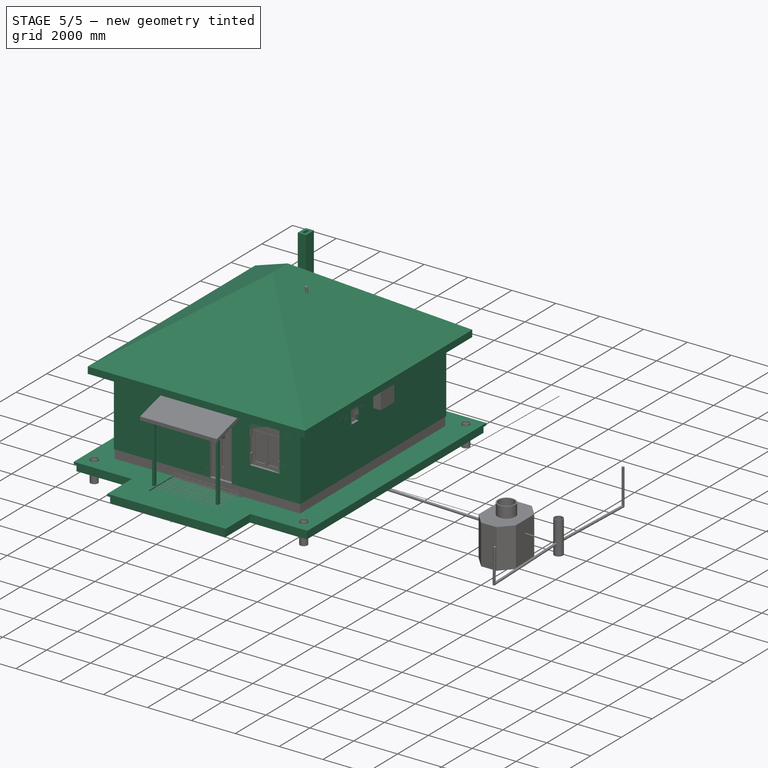
[diagram: stage 5 of 5 — iso view after this stage's code; geometry added in this stage tinted green]
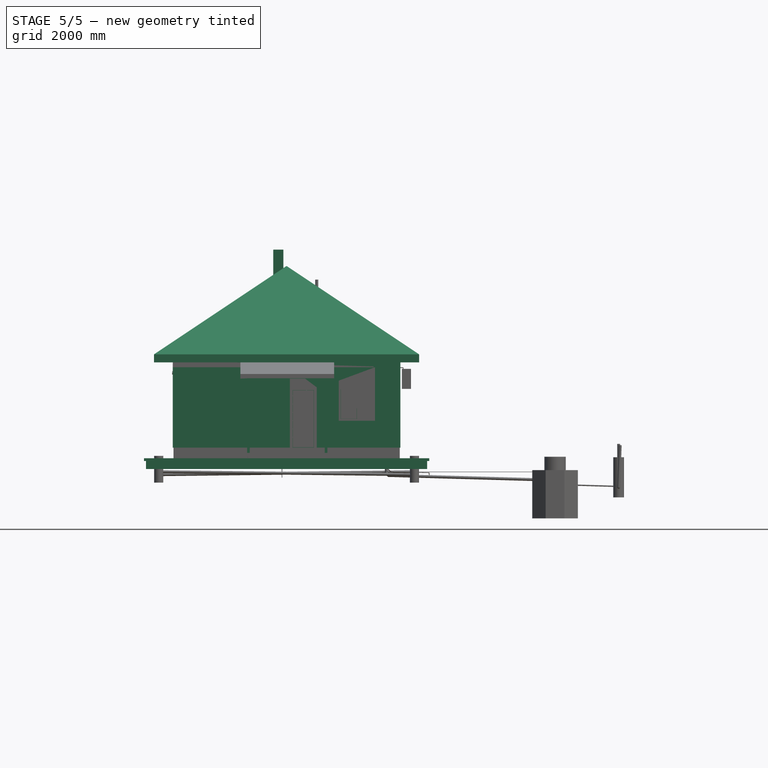
[diagram: stage 5 of 5 — front view after this stage's code; geometry added in this stage tinted green]
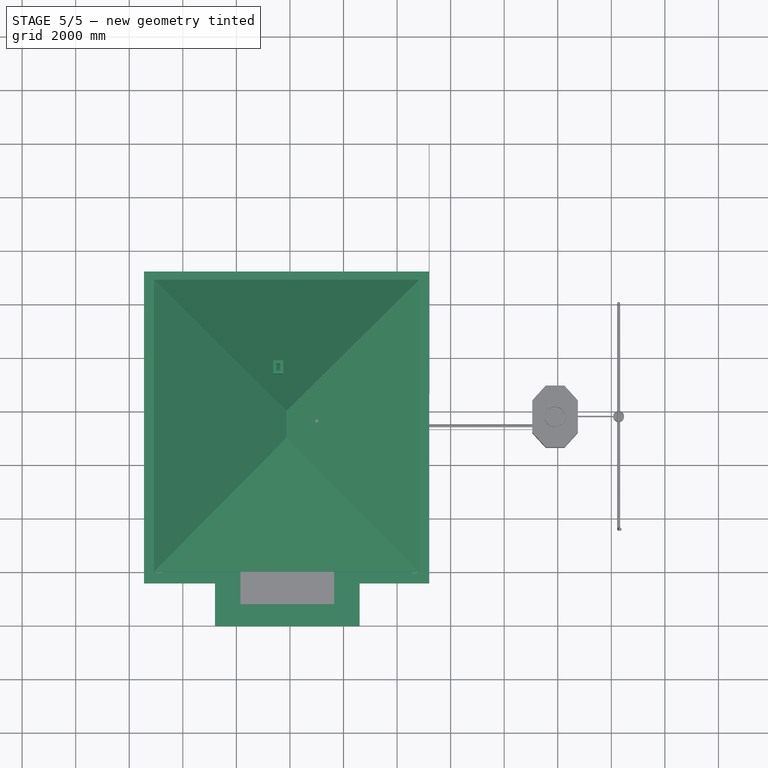
[diagram: stage 5 of 5 — top view after this stage's code; geometry added in this stage tinted green]
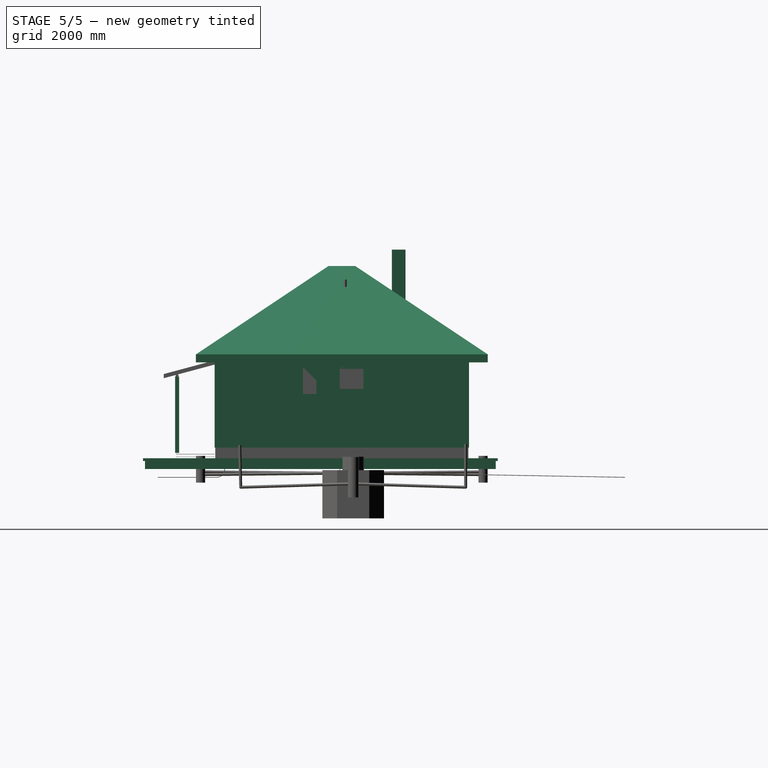
[diagram: stage 5 of 5 — right view after this stage's code; geometry added in this stage tinted green]
FEATURE [Part::Extrusion] Extrude043  label="Водогрей001"
  Base = -> Face
  Dir = (0,0,1)
  DirMode = 0
  FaceMakerClass = Part::FaceMakerBullseye
  LengthFwd = 1100
  LengthRev = 0
  Solid = false
  Symmetric = false
FEATURE [Part::Extrusion] Extrude045  label="умывальник002"
  Base = -> Face001
  Dir = (0,0,1)
  DirMode = 0
  FaceMakerClass = Part::FaceMakerBullseye
  LengthFwd = 200
  LengthRev = 0
  Solid = false
  Symmetric = false
FEATURE [Part::Part2DObjectPython] DWire002  # Draft 2D object (typed FeaturePython)
  ChamferSize = 0
  Closed = true
  End = (5250,3000,376)
  FilletRadius = 0
  Length = 1202.35
  MakeFace = false
  Placement = pos=(7948.82,4699.32,-124) rot=(0,0,-1;1.5708rad)
  Points = (4) [(1299.32,-2698.82,500),(1299.32,-2497.64,500),(1699.32,-2497.64,500),(1699.32,-2698.82,500)]
  Start = (5250,3400,376)
  Subdivisions = 0
FEATURE [Part::Extrusion] Extrude046  label="унитаз002"
  Base = -> Face002
  Dir = (0,0,-1)
  DirMode = 0
  FaceMakerClass = Part::FaceMakerBullseye
  LengthFwd = 400
  LengthRev = 0
  Solid = true
  Symmetric = false
FEATURE [Part::Extrusion] Extrude047  label="унитаз003"
  Base = -> DWire002
  Dir = (0,0,1)
  DirMode = 0
  FaceMakerClass = Part::FaceMakerBullseye
  LengthFwd = 350
  LengthRev = 0
  Solid = true
  Symmetric = false
FEATURE [Part::Fuse] Fusion002  label="унитаз001"
  Base = -> Extrude046
  Tool = -> Extrude047
FEATURE [App::DocumentObjectGroup] Group010  label="Унитаз"
  Group = -> [Ellipse,Face002,DWire002,Fusion002]
FEATURE [Part::Part2DObjectPython] Rectangle361  label="кух.зона"  # Draft 2D object (typed FeaturePython)
  ChamferSize = 0
  Columns = 1
  FilletRadius = 0
  Height = 3200
  Length = 700
  MakeFace = false
  Placement = pos=(7050,3800,0) rot=(0,0,1;0rad)
  Rows = 1
FEATURE [Part::Part2DObjectPython] Rectangle362  label="проём_032"  # Draft 2D object (typed FeaturePython)
  ChamferSize = 0
  Columns = 1
  FilletRadius = 0
  Height = 100
  Length = 700
  MakeFace = true
  Placement = pos=(2025,2500,0) rot=(0,0,1;1.5708rad)
  Rows = 1
FEATURE [Part::Part2DObjectPython] Rectangle363  label="проём_033"  # Draft 2D object (typed FeaturePython)
  ChamferSize = 0
  Columns = 1
  FilletRadius = 0
  Height = 100
  Length = 1000
  MakeFace = true
  Placement = pos=(4000,350,0) rot=(0,0,1;0rad)
  Rows = 1
FEATURE [Part::Part2DObjectPython] Rectangle364  label="проём_034"  # Draft 2D object (typed FeaturePython)
  ChamferSize = 0
  Columns = 1
  FilletRadius = 0
  Height = 375
  Length = 500
  MakeFace = true
  Placement = pos=(8125,1925,0) rot=(0,0,1;1.5708rad)
  Rows = 1
FEATURE [Part::Part2DObjectPython] Rectangle365  label="проём_035"  # Draft 2D object (typed FeaturePython)
  ChamferSize = 0
  Columns = 1
  FilletRadius = 0
  Height = 375
  Length = 1000
  MakeFace = true
  Placement = pos=(4000,-1375,0) rot=(0,0,1;0rad)
  Rows = 1
FEATURE [Part::Part2DObjectPython] Rectangle367  label="проём_036"  # Draft 2D object (typed FeaturePython)
  ChamferSize = 0
  Columns = 1
  FilletRadius = 0
  Height = 800
  Length = 100
  MakeFace = true
  Placement = pos=(3000,2300,0) rot=(0,0,1;1.5708rad)
  Rows = 1
FEATURE [Part::Part2DObjectPython] Rectangle372  label="проём_058"  # Draft 2D object (typed FeaturePython)
  ChamferSize = 0
  Columns = 1
  FilletRadius = 0
  Height = 1020
  Length = 150
  MakeFace = true
  Placement = pos=(3150,4990,0) rot=(0,0,1;0rad)
  Rows = 1
FEATURE [Part::Part2DObjectPython] Rectangle374  label="проём_038"  # Draft 2D object (typed FeaturePython)
  ChamferSize = 0
  Columns = 1
  FilletRadius = 0
  Height = 1350
  Length = 375
  MakeFace = true
  Placement = pos=(7175,-1375,0) rot=(0,0,1;1.5708rad)
  Rows = 1
FEATURE [Part::Part2DObjectPython] Rectangle375  label="проём_039"  # Draft 2D object (typed FeaturePython)
  ChamferSize = 0
  Columns = 1
  FilletRadius = 0
  Height = 375
  Length = 1350
  MakeFace = true
  Placement = pos=(-3.865e-12,825,0) rot=(0,0,1;1.5708rad)
  Rows = 1
FEATURE [Part::Part2DObjectPython] Rectangle376  label="проём_040"  # Draft 2D object (typed FeaturePython)
  ChamferSize = 0
  Columns = 1
  FilletRadius = 0
  Height = 375
  Length = 1725
  MakeFace = true
  Placement = pos=(5200,7750,0) rot=(0,0,1;0rad)
  Rows = 1
FEATURE [Part::Part2DObjectPython] Rectangle377  label="проём_001"  # Draft 2D object (typed FeaturePython)
  ChamferSize = 0
  Columns = 1
  FilletRadius = 0
  Height = 500
  Length = 375
  MakeFace = true
  Placement = pos=(-375,2700,0) rot=(0,0,1;0rad)
  Rows = 1
FEATURE [Part::Part2DObjectPython] Rectangle381  label="дымоход"  # Draft 2D object (typed FeaturePython)
  ChamferSize = 0
  Columns = 1
  FilletRadius = 0
  Height = 380
  Length = 510
  MakeFace = false
  Placement = pos=(3755,5245,0) rot=(0,0,1;1.5708rad)
  Rows = 1
FEATURE [Part::Part2DObjectPython] Wire060  label="стена_001"  # Draft 2D object (typed FeaturePython)
  ChamferSize = 0
  Closed = true
  End = (6925,7750,0)
  FilletRadius = 0
  Length = 22150
  MakeFace = true
  Placement = pos=(-375,6425,0) rot=(0,0,1;0rad)
  Points = (14) [(7300,1700,0),(8500,1700,0),(8500,-4000,0),(8125,-4000,0),(8125,-2825,0),(5575,-2825,0),(5575,-3875,0),(5475,-3875,0),(5475,-2825,0),(5000,-2825,0),+4 more]
  Start = (6925,8125,0)
  Subdivisions = 0
FEATURE [Part::Part2DObjectPython] Wire061  label="стена_067"  # Draft 2D object (typed FeaturePython)
  ChamferSize = 0
  Closed = true
  End = (2800,8125,0)
  FilletRadius = 0
  Length = 9030
  MakeFace = true
  Placement = pos=(3175,8125.77,0) rot=(0,0,1;0rad)
  Points = (8) [(2025,-0.773438,0),(2025,-375.773,0),(125,-375.773,0),(125,-2115.77,0),(-25,-2115.77,0),(-25,-375.773,0),(-375,-375.773,0),(-375,-0.773438,0)]
  Start = (5200,8125,0)
  Subdivisions = 0
FEATURE [Part::Part2DObjectPython] Wire062  label="стена_068"  # Draft 2D object (typed FeaturePython)
  ChamferSize = 0
  Closed = true
  End = (7750,1925,0)
  FilletRadius = 0
  Length = 14600
  MakeFace = true
  Placement = pos=(8125,3700,0) rot=(0,0,1;0rad)
  Points = (14) [(0,-1775,0),(0,-5075,0),(-950,-5075,0),(-950,-4700,0),(-375,-4700,0),(-375,-2200,0),(-2925,-2200,0),(-2925,-2350,0),(-3025,-2350,0),(-3025,-1850,0),+4 more]
  Start = (8125,1925,0)
  Subdivisions = 0
FEATURE [Part::Part2DObjectPython] Wire063  label="стена_069"  # Draft 2D object (typed FeaturePython)
  ChamferSize = 0
  Closed = true
  End = (5825,-1000,0)
  FilletRadius = 0
  Length = 5700
  MakeFace = true
  Placement = pos=(8125,1325,0) rot=(0,0,1;0rad)
  Points = (12) [(-2300,-2700,0),(-3125,-2700,0),(-3125,-2325,0),(-3025,-2325,0),(-3025,-975,0),(-3125,-975,0),(-3125,-875,0),(-3025,-875,0),(-3025,-775,0),+3 more]
  Start = (5825,-1375,0)
  Subdivisions = 0
FEATURE [Part::Part2DObjectPython] Wire064  label="стена_070"  # Draft 2D object (typed FeaturePython)
  ChamferSize = 0
  Closed = true
  End = (-375,-1375,0)
  FilletRadius = 0
  Length = 21750
  MakeFace = true
  Placement = pos=(3575,-475,0) rot=(0,0,1;0rad)
  Points = (16) [(425,-900,0),(425,-525,0),(-325,-525,0),(-325,825,0),(425,825,0),(425,925,0),(-325,925,0),(-325,2875,0),(-575,2875,0),(-575,2775,0),(-425,2775,0),+5 more]
  Start = (4000,-1375,0)
  Subdivisions = 0
FEATURE [Part::Part2DObjectPython] Wire066  label="стена_072"  # Draft 2D object (typed FeaturePython)
  ChamferSize = 0
  Closed = true
  End = (-1.5916e-12,3200,0)
  FilletRadius = 0
  Length = 18550
  MakeFace = true
  Placement = pos=(1325,-5.29e-14,0) rot=(0,0,1;0rad)
  Points = (14) [(-1700,3200,0),(-1700,8125,0),(125,8125,0),(125,7750,0),(-1325,7750,0),(-1325,3800,0),(800,3800,0),(800,3600,0),(700,3600,0),(700,3200,0),+4 more]
  Start = (-375,3200,0)
  Subdivisions = 0
FEATURE [Part::FeaturePython] Wall030  label="стена_105"  # Arch/BIM object (typed FeaturePython)
  Align = 2
  Base = -> Wire060
  BlockHeight = 0
  BlockLength = 0
  CountBroken = 0
  CountEntire = 0
  Face = 0
  Height = 3000
  HorizontalArea = 3.17688e+06
  IfcRole = 156
  Joint = 0
  Length = 0
  MakeBlocks = false
  MoveWithHost = false
  Normal = (0,0,0)
  OffsetFirst = 0
  OffsetSecond = 0
  PerimeterLength = 22150
  Placement = pos=(0,0,-90) rot=(0,0,1;0rad)
  VerticalArea = 6.645e+07
  Width = 200
FEATURE [Part::FeaturePython] Wall031  label="стена_106"  # Arch/BIM object (typed FeaturePython)
  Align = 2
  Base = -> Wire061
  BlockHeight = 0
  BlockLength = 0
  CountBroken = 0
  CountEntire = 0
  Face = 0
  Height = 3000
  HorizontalArea = 1161000
  IfcRole = 156
  Joint = 0
  Length = 0
  MakeBlocks = false
  MoveWithHost = false
  Normal = (0,0,0)
  OffsetFirst = 0
  OffsetSecond = 0
  PerimeterLength = 9030
  Placement = pos=(0,0,-90) rot=(0,0,1;0rad)
  VerticalArea = 27090000
  Width = 200
FEATURE [Part::FeaturePython] Wall032  label="стена_110"  # Arch/BIM object (typed FeaturePython)
  Align = 2
  Base = -> Wire062
  BlockHeight = 0
  BlockLength = 0
  CountBroken = 0
  CountEntire = 0
  Face = 0
  Height = 3000
  HorizontalArea = 1758125
  IfcRole = 156
  Joint = 0
  Length = 0
  MakeBlocks = false
  MoveWithHost = false
  Normal = (0,0,0)
  OffsetFirst = 0
  OffsetSecond = 0
  PerimeterLength = 14600
  Placement = pos=(0,0,-90) rot=(0,0,1;0rad)
  VerticalArea = 43800000
  Width = 200
FEATURE [Part::FeaturePython] Wall033  label="стена_111"  # Arch/BIM object (typed FeaturePython)
  Align = 2
  Base = -> Wire063
  BlockHeight = 0
  BlockLength = 0
  CountBroken = 0
  CountEntire = 0
  Face = 0
  Height = 3000
  HorizontalArea = 474375
  IfcRole = 156
  Joint = 0
  Length = 0
  MakeBlocks = false
  MoveWithHost = false
  Normal = (0,0,0)
  OffsetFirst = 0
  OffsetSecond = 0
  PerimeterLength = 5700
  Placement = pos=(0,0,-90) rot=(0,0,1;0rad)
  VerticalArea = 17100000
  Width = 200
FEATURE [Part::FeaturePython] Wall034  label="стена_107"  # Arch/BIM object (typed FeaturePython)
  Align = 2
  Base = -> Wire064
  BlockHeight = 0
  BlockLength = 0
  CountBroken = 0
  CountEntire = 0
  Face = 0
  Height = 3000
  HorizontalArea = 2.755e+06
  IfcRole = 156
  Joint = 0
  Length = 0
  MakeBlocks = false
  MoveWithHost = false
  Normal = (0,0,0)
  OffsetFirst = 0
  OffsetSecond = 0
  PerimeterLength = 21750
  Placement = pos=(0,0,-90) rot=(0,0,1;0rad)
  VerticalArea = 6.525e+07
  Width = 200
FEATURE [Part::FeaturePython] Wall036  label="стена_108"  # Arch/BIM object (typed FeaturePython)
  Align = 2
  Base = -> Wire066
  BlockHeight = 0
  BlockLength = 0
  CountBroken = 0
  CountEntire = 0
  Face = 0
  Height = 3000
  HorizontalArea = 2.85563e+06
  IfcRole = 156
  Joint = 0
  Length = 0
  MakeBlocks = false
  MoveWithHost = false
  Normal = (0,0,0)
  OffsetFirst = 0
  OffsetSecond = 0
  PerimeterLength = 18550
  Placement = pos=(0,0,-90) rot=(0,0,1;0rad)
  VerticalArea = 5.565e+07
  Width = 200
FEATURE [Part::FeaturePython] Wall037  label="стена_под_окном_014"  # Arch/BIM object (typed FeaturePython)
  Align = 2
  Base = -> Rectangle364
  BlockHeight = 0
  BlockLength = 0
  CountBroken = 0
  CountEntire = 0
  Face = 0
  Height = 2000
  HorizontalArea = 187500
  IfcRole = 156
  Joint = 0
  Length = 0
  MakeBlocks = false
  MoveWithHost = false
  Normal = (0,0,0)
  OffsetFirst = 0
  OffsetSecond = 0
  PerimeterLength = 1750
  Placement = pos=(0,0,-90) rot=(0,0,1;0rad)
  VerticalArea = 3.5e+06
  Width = 200
FEATURE [Part::FeaturePython] Wall038  label="стена_под_окном_015"  # Arch/BIM object (typed FeaturePython)
  Align = 2
  Base = -> Rectangle374
  BlockHeight = 0
  BlockLength = 0
  CountBroken = 0
  CountEntire = 0
  Face = 0
  Height = 1000
  HorizontalArea = 506250
  IfcRole = 156
  Joint = 0
  Length = 0
  MakeBlocks = false
  MoveWithHost = false
  Normal = (0,0,0)
  OffsetFirst = 0
  OffsetSecond = 0
  PerimeterLength = 3450
  Placement = pos=(0,0,-90) rot=(0,0,1;0rad)
  VerticalArea = 3450000
  Width = 200
FEATURE [Part::FeaturePython] Wall039  label="стена_под_окном_016"  # Arch/BIM object (typed FeaturePython)
  Align = 2
  Base = -> Rectangle377
  BlockHeight = 0
  BlockLength = 0
  CountBroken = 0
  CountEntire = 0
  Face = 0
  Height = 2000
  HorizontalArea = 187500
  IfcRole = 156
  Joint = 0
  Length = 0
  MakeBlocks = false
  MoveWithHost = false
  Normal = (0,0,0)
  OffsetFirst = 0
  OffsetSecond = 0
  PerimeterLength = 1750
  Placement = pos=(0,0,-90) rot=(0,0,1;0rad)
  VerticalArea = 3500000
  Width = 200
FEATURE [Part::FeaturePython] Wall041  label="стена_под_окном_001"  # Arch/BIM object (typed FeaturePython)
  Align = 2
  Base = -> Rectangle375
  BlockHeight = 0
  BlockLength = 0
  CountBroken = 0
  CountEntire = 0
  Face = 0
  Height = 1000
  HorizontalArea = 506250
  IfcRole = 156
  Joint = 0
  Length = 0
  MakeBlocks = false
  MoveWithHost = false
  Normal = (0,0,0)
  OffsetFirst = 0
  OffsetSecond = 0
  PerimeterLength = 3450
  Placement = pos=(0,0,-90) rot=(0,0,1;0rad)
  VerticalArea = 3450000
  Width = 200
FEATURE [Part::FeaturePython] Wall042  label="стена_над_окном_014"  # Arch/BIM object (typed FeaturePython)
  Align = 2
  Base = -> Rectangle374
  BlockHeight = 0
  BlockLength = 0
  CountBroken = 0
  CountEntire = 0
  Face = 0
  Height = 500
  HorizontalArea = 506250
  IfcRole = 156
  Joint = 0
  Length = 0
  MakeBlocks = false
  MoveWithHost = false
  Normal = (0,0,0)
  OffsetFirst = 0
  OffsetSecond = 0
  PerimeterLength = 3450
  Placement = pos=(0,0,2410) rot=(0,0,1;0rad)
  VerticalArea = 1725000
  Width = 200
FEATURE [Part::FeaturePython] Wall043  label="стена_над_окном_015"  # Arch/BIM object (typed FeaturePython)
  Align = 2
  Base = -> Rectangle364
  BlockHeight = 0
  BlockLength = 0
  CountBroken = 0
  CountEntire = 0
  Face = 0
  Height = 500
  HorizontalArea = 187500
  IfcRole = 156
  Joint = 0
  Length = 0
  MakeBlocks = false
  MoveWithHost = false
  Normal = (0,0,0)
  OffsetFirst = 0
  OffsetSecond = 0
  PerimeterLength = 1750
  Placement = pos=(0,0,2410) rot=(0,0,1;0rad)
  VerticalArea = 875000
  Width = 200
FEATURE [Part::FeaturePython] Wall044  label="стена_над_окном_017"  # Arch/BIM object (typed FeaturePython)
  Align = 2
  Base = -> Rectangle377
  BlockHeight = 0
  BlockLength = 0
  CountBroken = 0
  CountEntire = 0
  Face = 0
  Height = 500
  HorizontalArea = 187500
  IfcRole = 156
  Joint = 0
  Length = 0
  MakeBlocks = false
  MoveWithHost = false
  Normal = (0,0,0)
  OffsetFirst = 0
  OffsetSecond = 0
  PerimeterLength = 1750
  Placement = pos=(0,0,2410) rot=(0,0,1;0rad)
  VerticalArea = 875000
  Width = 200
FEATURE [Part::FeaturePython] Wall045  label="стена_над_окном_018"  # Arch/BIM object (typed FeaturePython)
  Align = 2
  Base = -> Rectangle376
  BlockHeight = 0
  BlockLength = 0
  CountBroken = 0
  CountEntire = 0
  Face = 0
  Height = 500
  HorizontalArea = 646875
  IfcRole = 156
  Joint = 0
  Length = 0
  MakeBlocks = false
  MoveWithHost = false
  Normal = (0,0,0)
  OffsetFirst = 0
  OffsetSecond = 0
  PerimeterLength = 4200
  Placement = pos=(0,0,2410) rot=(0,0,1;0rad)
  VerticalArea = 2100000
  Width = 200
FEATURE [Part::FeaturePython] Wall046  label="стена_над_окном_016"  # Arch/BIM object (typed FeaturePython)
  Align = 2
  Base = -> Rectangle375
  BlockHeight = 0
  BlockLength = 0
  CountBroken = 0
  CountEntire = 0
  Face = 0
  Height = 500
  HorizontalArea = 506250
  IfcRole = 156
  Joint = 0
  Length = 0
  MakeBlocks = false
  MoveWithHost = false
  Normal = (0,0,0)
  OffsetFirst = 0
  OffsetSecond = 0
  PerimeterLength = 3450
  Placement = pos=(0,0,2410) rot=(0,0,1;0rad)
  VerticalArea = 1725000
  Width = 200
FEATURE [Part::Part2DObjectPython] Rectangle382  label="проём_041"  # Draft 2D object (typed FeaturePython)
  ChamferSize = 0
  Columns = 1
  FilletRadius = 0
  Height = 1100
  Length = 200
  MakeFace = true
  Placement = pos=(4625,3600,0) rot=(0,0,1;1.5708rad)
  Rows = 1
FEATURE [Part::FeaturePython] Wall047  label="стена_над_дверью_001"  # Arch/BIM object (typed FeaturePython)
  Align = 2
  Base = -> Rectangle382
  BlockHeight = 0
  BlockLength = 0
  CountBroken = 0
  CountEntire = 0
  Face = 0
  Height = 750
  HorizontalArea = 220000
  IfcRole = 156
  Joint = 0
  Length = 0
  MakeBlocks = false
  MoveWithHost = false
  Normal = (0,0,0)
  OffsetFirst = 0
  OffsetSecond = 0
  PerimeterLength = 2600
  Placement = pos=(0,0,2160) rot=(0,0,1;0rad)
  VerticalArea = 1950000
  Width = 200
FEATURE [Part::FeaturePython] Wall049  label="стена_над_дверью_017"  # Arch/BIM object (typed FeaturePython)
  Align = 2
  Base = -> Rectangle367
  BlockHeight = 0
  BlockLength = 0
  CountBroken = 0
  CountEntire = 0
  Face = 0
  Height = 750
  HorizontalArea = 80000
  IfcRole = 156
  Joint = 0
  Length = 0
  MakeBlocks = false
  MoveWithHost = false
  Normal = (0,0,0)
  OffsetFirst = 0
  OffsetSecond = 0
  PerimeterLength = 1800
  Placement = pos=(0,0,2160) rot=(0,0,1;0rad)
  VerticalArea = 1350000
  Width = 200
FEATURE [Part::FeaturePython] Wall050  label="стена_над_дверью_019"  # Arch/BIM object (typed FeaturePython)
  Align = 2
  Base = -> Rectangle363
  BlockHeight = 0
  BlockLength = 0
  CountBroken = 0
  CountEntire = 0
  Face = 0
  Height = 750
  HorizontalArea = 100000
  IfcRole = 156
  Joint = 0
  Length = 0
  MakeBlocks = false
  MoveWithHost = false
  Normal = (0,0,0)
  OffsetFirst = 0
  OffsetSecond = 0
  PerimeterLength = 2200
  Placement = pos=(0,0,2160) rot=(0,0,1;0rad)
  VerticalArea = 1.65e+06
  Width = 200
FEATURE [Part::FeaturePython] Wall051  label="стена_над_дверью_018"  # Arch/BIM object (typed FeaturePython)
  Align = 2
  Base = -> Rectangle365
  BlockHeight = 0
  BlockLength = 0
  CountBroken = 0
  CountEntire = 0
  Face = 0
  Height = 750
  HorizontalArea = 375000
  IfcRole = 156
  Joint = 0
  Length = 0
  MakeBlocks = false
  MoveWithHost = false
  Normal = (0,0,0)
  OffsetFirst = 0
  OffsetSecond = 0
  PerimeterLength = 2750
  Placement = pos=(0,0,2160) rot=(0,0,1;0rad)
  VerticalArea = 2.0625e+06
  Width = 200
FEATURE [Part::FeaturePython] Wall052  label="стена_над_дверью_020"  # Arch/BIM object (typed FeaturePython)
  Align = 2
  Base = -> Rectangle362
  BlockHeight = 0
  BlockLength = 0
  CountBroken = 0
  CountEntire = 0
  Face = 0
  Height = 750
  HorizontalArea = 70000
  IfcRole = 156
  Joint = 0
  Length = 0
  MakeBlocks = false
  MoveWithHost = false
  Normal = (0,0,0)
  OffsetFirst = 0
  OffsetSecond = 0
  PerimeterLength = 1600
  Placement = pos=(0,0,2160) rot=(0,0,1;0rad)
  VerticalArea = 1200000
  Width = 200
FEATURE [Part::Part2DObjectPython] Rectangle387  label="проём в плите под лестн. 001"  # Draft 2D object (typed FeaturePython)
  ChamferSize = 0
  Columns = 1
  FilletRadius = 0
  Height = 1300
  Length = 560
  MakeFace = false
  Placement = pos=(4070,900,0) rot=(0,0,1;0rad)
  Rows = 1
FEATURE [Part::Part2DObjectPython] Wire068  label="балка-сечение_002"  # Draft 2D object (typed FeaturePython)
  ChamferSize = 0
  Closed = true
  End = (425,7900,2930)
  FilletRadius = 0
  Length = 740
  MakeFace = false
  Placement = pos=(425,7900,2910) rot=(1,0,0;1.5708rad)
  Points = (9) [(0,0,0),(120,0,-3.67394e-15),(120,20,7.66952e-16),(100,20,1.37928e-15),(100,250,5.24495e-14),(20,250,5.48988e-14),(20,20,3.82857e-15),+2 more]
  Start = (425,7900,2910)
  Subdivisions = 0
FEATURE [Part::FeaturePython] Structure175  label="балка_L4200_001"  # Arch/BIM object (typed FeaturePython)
  Base = -> Wire068
  FaceMaker = 0
  Height = 4200
  HorizontalArea = 504000
  IfcRole = 0
  Length = 0
  MoveWithHost = false
  Nodes = (2) [(485,7900,3030.58),(485,7900,7230.58)]
  NodesOffset = 0
  Normal = (0,0,0)
  PerimeterLength = 0
  VerticalArea = 2141600
  Width = 100
FEATURE [Part::FeaturePython] Array013  label="массив балок_002"  # Draft array (typed FeaturePython)
  Angle = 360
  ArrayType = 0
  Axis = (0,0,1)
  Base = -> Structure175
  Center = (0,0,0)
  Fuse = false
  IntervalAxis = (0,0,0)
  IntervalX = (680,0,0)
  IntervalY = (0,0,0)
  IntervalZ = (0,0,0)
  NumberPolar = 1
  NumberX = 11
  NumberY = 0
  NumberZ = 0
FEATURE [Part::Part2DObjectPython] Rectangle388  label="внеш_контур_9500х8500"  # Draft 2D object (typed FeaturePython)
  ChamferSize = 0
  Columns = 1
  FilletRadius = 0
  Height = 9500
  Length = 8500
  MakeFace = false
  Placement = pos=(-375,-1375,2910) rot=(0,0,1;0rad)
  Rows = 1
FEATURE [Part::FeaturePython] Structure177  label="проём в плите под лестн."  # Arch/BIM object (typed FeaturePython)
  Base = -> Rectangle387
  FaceMaker = 0
  Height = 500
  HorizontalArea = 728000
  IfcRole = 0
  Length = 0
  MoveWithHost = false
  Nodes = (2) [(5450,5550,0),(5450,5550,500)]
  NodesOffset = 0
  Normal = (0,0,0)
  PerimeterLength = 3720
  Placement = pos=(0,0,2910) rot=(0,0,1;0rad)
  VerticalArea = 1860000
  Width = 100
FEATURE [Part::FeaturePython] Structure178  label="проём_дымохода"  # Arch/BIM object (typed FeaturePython)
  Base = -> Rectangle381
  FaceMaker = 0
  Height = 500
  HorizontalArea = 193800
  IfcRole = 0
  Length = 0
  MoveWithHost = false
  Nodes = (2) [(3838.98,5661.82,0),(3838.98,5661.82,500)]
  NodesOffset = 0
  Normal = (0,0,0)
  PerimeterLength = 1780
  Placement = pos=(0,0,2910) rot=(0,0,1;0rad)
  VerticalArea = 890000
  Width = 100
FEATURE [Part::FeaturePython] Wall058  label="внеш_контур_9500х8500_002"  # Arch/BIM object (typed FeaturePython)
  Align = 1
  Base = -> Rectangle388
  BlockHeight = 0
  BlockLength = 0
  CountBroken = 0
  CountEntire = 0
  Face = 0
  Height = 400
  HorizontalArea = 8.75e+06
  IfcRole = 156
  Joint = 0
  Length = 36000
  MakeBlocks = false
  MoveWithHost = false
  Normal = (0,0,0)
  OffsetFirst = 0
  OffsetSecond = 0
  PerimeterLength = 36000
  Placement = pos=(0,0,250) rot=(0,0,1;0rad)
  VerticalArea = 28000000
  Width = 250
FEATURE [Part::Part2DObjectPython] Wire069  label="крыша_кромка"  # Draft 2D object (typed FeaturePython)
  ChamferSize = 0
  Closed = true
  End = (8675,8675,3200)
  FilletRadius = 0
  Length = 40400
  MakeFace = false
  Placement = pos=(-275,8000,3200) rot=(0,0,1;0rad)
  Points = (4) [(-650,675,0),(-650,-9925,0),(8950,-9925,0),(8950,675,0)]
  Start = (-925,8675,3200)
  Subdivisions = 0
FEATURE [Part::FeaturePython] Roof002  label="Крыша"  # Arch/BIM object (typed FeaturePython)
  Angles = [33.69,33.69,33.69,33.69]
  Base = -> Wire069
  BorderLength = 41600
  Face = 2
  Flip = false
  Heights = [3199.99,3199.99,3199.99,3199.99]
  HorizontalArea = 1.0791e+08
  IdRel = [0,0,0,0]
  IfcRole = 111
  MoveWithHost = false
  Overhang = [150,150,150,150]
  PerimeterLength = 39600
  Placement = pos=(0,0,-10) rot=(0,0,1;0rad)
  RidgeLength = 31956.7
  Runs = [4800,4800,4800,4800]
  Thickness = [250,250,250,250]
  VerticalArea = 1.24992e+07
FEATURE [Part::Part2DObjectPython] Rectangle395  label="проём_045"  # Draft 2D object (typed FeaturePython)
  ChamferSize = 0
  Columns = 1
  FilletRadius = 0
  Height = 1350
  Length = 375
  MakeFace = true
  Placement = pos=(1450,8125,0) rot=(0,0,-1;1.5708rad)
  Rows = 1
FEATURE [Part::FeaturePython] Wall060  label="стена_под_окном_017"  # Arch/BIM object (typed FeaturePython)
  Align = 2
  Base = -> Rectangle395
  BlockHeight = 0
  BlockLength = 0
  CountBroken = 0
  CountEntire = 0
  Face = 0
  Height = 1000
  HorizontalArea = 506250
  IfcRole = 156
  Joint = 0
  Length = 0
  MakeBlocks = false
  MoveWithHost = false
  Normal = (0,0,0)
  OffsetFirst = 0
  OffsetSecond = 0
  PerimeterLength = 3450
  Placement = pos=(0,0,-90) rot=(0,0,1;0rad)
  VerticalArea = 3450000
  Width = 200
FEATURE [Part::FeaturePython] Wall061  label="стена_над_окном_019"  # Arch/BIM object (typed FeaturePython)
  Align = 2
  Base = -> Rectangle395
  BlockHeight = 0
  BlockLength = 0
  CountBroken = 0
  CountEntire = 0
  Face = 0
  Height = 500
  HorizontalArea = 506250
  IfcRole = 156
  Joint = 0
  Length = 0
  MakeBlocks = false
  MoveWithHost = false
  Normal = (0,0,0)
  OffsetFirst = 0
  OffsetSecond = 0
  PerimeterLength = 3450
  Placement = pos=(0,0,2410) rot=(0,0,1;0rad)
  VerticalArea = 1725000
  Width = 200
FEATURE [Part::Part2DObjectPython] Rectangle398  # Draft 2D object (typed FeaturePython)
  ChamferSize = 0
  Columns = 1
  FilletRadius = 0
  Height = 300
  Length = 0
  MakeFace = false
  Placement = pos=(6000,5700,0) rot=(0,0,1;0rad)
  Rows = 1
FEATURE [Part::Part2DObjectPython] Rectangle399  label="ванна_190х75_001"  # Draft 2D object (typed FeaturePython)
  ChamferSize = 0
  Columns = 1
  FilletRadius = 0
  Height = 750
  Length = 2000
  MakeFace = false
  Placement = pos=(7750,1600,0) rot=(0,0,1;1.5708rad)
  Rows = 1
FEATURE [Part::Part2DObjectPython] Ellipse002  # Draft 2D object (typed FeaturePython)
  FirstAngle = 0
  LastAngle = 0
  MajorRadius = 800
  MakeFace = false
  MinorRadius = 250
  Placement = pos=(7375,2650,650) rot=(0,0,1;1.5708rad)
FEATURE [Part::FeaturePython] Structure180  label="Ванна_003"  # Arch/BIM object (typed FeaturePython)
  Base = -> Ellipse002
  FaceMaker = 0
  Height = 400
  HorizontalArea = 628319
  IfcRole = 0
  Length = 0
  MoveWithHost = true
  Nodes = (2) [(7375,2650,650),(7375,2650,250)]
  NodesOffset = 0
  Normal = (0,0,-1)
  PerimeterLength = 3547.07
  VerticalArea = 1.4122e+06
  Width = 100
FEATURE [Part::FeaturePython] Structure179  label="Ванна_002"  # Arch/BIM object (typed FeaturePython)
  Base = -> Rectangle399
  FaceMaker = 0
  Height = 650
  HorizontalArea = 1.5e+06
  IfcRole = 0
  Length = 0
  MoveWithHost = false
  Nodes = (2) [(7375,2550,0),(7375,2550,650)]
  NodesOffset = 0
  Normal = (0,0,0)
  PerimeterLength = 5300
  Subtractions = -> [Structure180]
  VerticalArea = 4.9872e+06
  Width = 100
FEATURE [App::DocumentObjectGroup] Group038  label="кровать_2_сп_004"
  Group = -> [Extrude053,Extrude051,Extrude052]
FEATURE [Part::FeaturePython] Structure185  label="кух.зона 002"  # Arch/BIM object (typed FeaturePython)
  Base = -> Rectangle361
  FaceMaker = 0
  Height = 900
  HorizontalArea = 2240000
  IfcRole = 0
  Length = 0
  MoveWithHost = false
  Nodes = (2) [(-4700,-6400,0),(-4700,-6400,800)]
  NodesOffset = 0
  Normal = (0,0,0)
  PerimeterLength = 7800
  VerticalArea = 7020000
  Width = 100
FEATURE [Part::Part2DObjectPython] Wire  label="балка-сечение_003"  # Draft 2D object (typed FeaturePython)
  ChamferSize = 0
  Closed = true
  End = (550,-150,2930)
  FilletRadius = 0
  Length = 740
  MakeFace = false
  Placement = pos=(550,-150,2910) rot=(1,0,0;1.5708rad)
  Points = (9) [(0,0,0),(120,0,-3.67394e-15),(120,20,7.66952e-16),(100,20,1.37928e-15),(100,250,5.24495e-14),(20,250,5.48988e-14),(20,20,3.82857e-15),+2 more]
  Start = (550,-150,2910)
  Subdivisions = 0
FEATURE [Part::FeaturePython] Structure174  label="балка_L4600_001"  # Arch/BIM object (typed FeaturePython)
  Base = -> Wire
  FaceMaker = 0
  Height = 4900
  HorizontalArea = 588000
  IfcRole = 0
  Length = 0
  MoveWithHost = false
  Nodes = (2) [(140,-150,3030.58),(140,-150,-569.423)]
  NodesOffset = 0
  Normal = (0,1,0)
  PerimeterLength = 0
  Placement = pos=(0,-1000,0) rot=(0,0,1;0rad)
  VerticalArea = 2491600
  Width = 100
FEATURE [Part::FeaturePython] Array012  label="массив балок_001"  # Draft array (typed FeaturePython)
  Angle = 360
  ArrayType = 0
  Axis = (0,0,1)
  Base = -> Structure174
  Center = (0,0,0)
  Fuse = false
  IntervalAxis = (0,0,0)
  IntervalX = (680,0,0)
  IntervalY = (0,0,0)
  IntervalZ = (0,0,0)
  NumberPolar = 1
  NumberX = 11
  NumberY = 0
  NumberZ = 0
FEATURE [Part::Part2DObjectPython] Rectangle412  label="кух.зона002"  # Draft 2D object (typed FeaturePython)
  ChamferSize = 0
  Columns = 1
  FilletRadius = 0
  Height = 2100
  Length = 500
  MakeFace = false
  Placement = pos=(7250,4900,0) rot=(0,0,1;0rad)
  Rows = 1
FEATURE [Part::FeaturePython] Structure  label="кух.зона 001"  # Arch/BIM object (typed FeaturePython)
  Base = -> Rectangle412
  FaceMaker = 0
  Height = 1000
  HorizontalArea = 1.05e+06
  IfcRole = 0
  Length = 0
  MoveWithHost = false
  Nodes = (2) [(-4700,-6400,0),(-4700,-6400,800)]
  NodesOffset = 0
  Normal = (0,0,0)
  PerimeterLength = 5200
  Placement = pos=(0,0,1500) rot=(0,0,1;0rad)
  VerticalArea = 5.2e+06
  Width = 100
FEATURE [Part::Box] Box1272  label="БП 625х100х250_217"
  AttacherType = Attacher::AttachEngine3D
  Height = 250
  Length = 625
  Placement = pos=(7125,-1375,2910) rot=(0,0,-1;0rad)
  Width = 100
FEATURE [Part::Feature] Box1274  label="БП 625х100х250_219"
  Placement = pos=(6500,-1375,2910) rot=(0,0,-1;0rad)
  shape: bbox 625 x 100 x 250 mm, 6 faces (baked)
FEATURE [Part::Feature] Box1275  label="БП 625х100х250_220"
  Placement = pos=(5875,-1375,2910) rot=(0,0,-1;0rad)
  shape: bbox 625 x 100 x 250 mm, 6 faces (baked)
FEATURE [Part::Feature] Box1276  label="БП 625х100х250_221"
  Placement = pos=(4000,-1375,2910) rot=(0,0,-1;0rad)
  shape: bbox 625 x 100 x 250 mm, 6 faces (baked)
FEATURE [Part::Feature] Box1277  label="БП 625х100х250_222"
  Placement = pos=(4625,-1375,2910) rot=(0,0,-1;0rad)
  shape: bbox 625 x 100 x 250 mm, 6 faces (baked)
FEATURE [Part::Feature] Box1278  label="БП 625х100х250_223"
  Placement = pos=(5250,-1375,2910) rot=(0,0,-1;0rad)
  shape: bbox 625 x 100 x 250 mm, 6 faces (baked)
FEATURE [Part::Feature] Box1279  label="БП 625х100х250_224"
  Placement = pos=(2125,-1375,2910) rot=(0,0,-1;0rad)
  shape: bbox 625 x 100 x 250 mm, 6 faces (baked)
FEATURE [Part::Feature] Box1280  label="БП 625х100х250_225"
  Placement = pos=(2750,-1375,2910) rot=(0,0,-1;0rad)
  shape: bbox 625 x 100 x 250 mm, 6 faces (baked)
FEATURE [Part::Feature] Box1281  label="БП 625х100х250_226"
  Placement = pos=(3375,-1375,2910) rot=(0,0,-1;0rad)
  shape: bbox 625 x 100 x 250 mm, 6 faces (baked)
FEATURE [Part::Feature] Box1282  label="БП 625х100х250_227"
  Placement = pos=(250,-1375,2910) rot=(0,0,-1;0rad)
  shape: bbox 625 x 100 x 250 mm, 6 faces (baked)
FEATURE [Part::Feature] Box1283  label="БП 625х100х250_228"
  Placement = pos=(875,-1375,2910) rot=(0,0,-1;0rad)
  shape: bbox 625 x 100 x 250 mm, 6 faces (baked)
FEATURE [Part::Feature] Box1284  label="БП 625х100х250_229"
  Placement = pos=(1500,-1375,2910) rot=(0,0,-1;0rad)
  shape: bbox 625 x 100 x 250 mm, 6 faces (baked)
FEATURE [Part::Feature] Box1287  label="БП 625х100х250_232"
  Placement = pos=(-375,-1375,2910) rot=(0,0,1;0rad)
  shape: bbox 625 x 100 x 250 mm, 6 faces (baked)
FEATURE [Part::Feature] Box1290  label="БП 625х100х250_235"
  Placement = pos=(-375,8025,2910) rot=(0,0,-1;0rad)
  shape: bbox 625 x 100 x 250 mm, 6 faces (baked)
FEATURE [Part::Feature] Box1291  label="БП 625х100х250_236"
  Placement = pos=(250,8025,2910) rot=(0,0,-1;0rad)
  shape: bbox 625 x 100 x 250 mm, 6 faces (baked)
FEATURE [Part::Feature] Box1292  label="БП 625х100х250_237"
  Placement = pos=(875,8025,2910) rot=(0,0,-1;0rad)
  shape: bbox 625 x 100 x 250 mm, 6 faces (baked)
FEATURE [Part::Feature] Box1293  label="БП 625х100х250_238"
  Placement = pos=(1500,8025,2910) rot=(0,0,-1;0rad)
  shape: bbox 625 x 100 x 250 mm, 6 faces (baked)
FEATURE [Part::Feature] Box1294  label="БП 625х100х250_239"
  Placement = pos=(2125,8025,2910) rot=(0,0,-1;0rad)
  shape: bbox 625 x 100 x 250 mm, 6 faces (baked)
FEATURE [Part::Feature] Box1295  label="БП 625х100х250_240"
  Placement = pos=(2750,8025,2910) rot=(0,0,-1;0rad)
  shape: bbox 625 x 100 x 250 mm, 6 faces (baked)
FEATURE [Part::Feature] Box1296  label="БП 625х100х250_241"
  Placement = pos=(3375,8025,2910) rot=(0,0,-1;0rad)
  shape: bbox 625 x 100 x 250 mm, 6 faces (baked)
FEATURE [Part::Feature] Box1297  label="БП 625х100х250_242"
  Placement = pos=(4000,8025,2910) rot=(0,0,-1;0rad)
  shape: bbox 625 x 100 x 250 mm, 6 faces (baked)
FEATURE [Part::Feature] Box1298  label="БП 625х100х250_243"
  Placement = pos=(4625,8025,2910) rot=(0,0,-1;0rad)
  shape: bbox 625 x 100 x 250 mm, 6 faces (baked)
FEATURE [Part::Feature] Box1299  label="БП 625х100х250_244"
  Placement = pos=(5250,8025,2910) rot=(0,0,-1;0rad)
  shape: bbox 625 x 100 x 250 mm, 6 faces (baked)
FEATURE [Part::Feature] Box1300  label="БП 625х100х250_245"
  Placement = pos=(5875,8025,2910) rot=(0,0,-1;0rad)
  shape: bbox 625 x 100 x 250 mm, 6 faces (baked)
FEATURE [Part::Feature] Box1301  label="БП 625х100х250_246"
  Placement = pos=(6500,8025,2910) rot=(0,0,-1;0rad)
  shape: bbox 625 x 100 x 250 mm, 6 faces (baked)
FEATURE [Part::Feature] Box1302  label="БП 625х100х250_247"
  Placement = pos=(7125,8025,2910) rot=(0,0,-1;0rad)
  shape: bbox 625 x 100 x 250 mm, 6 faces (baked)
FEATURE [Part::Feature] Box1303  label="БП 625х100х250_248"
  Placement = pos=(8025,7475,2910) rot=(0,0,-1;1.5708rad)
  shape: bbox 100 x 625 x 250 mm, 6 faces (baked)
FEATURE [Part::Feature] Box1304  label="БП 625х100х250_249"
  Placement = pos=(8025,6850,2910) rot=(0,0,-1;1.5708rad)
  shape: bbox 100 x 625 x 250 mm, 6 faces (baked)
FEATURE [Part::Feature] Box1305  label="БП 625х100х250_250"
  Placement = pos=(8025,6225,2910) rot=(0,0,-1;1.5708rad)
  shape: bbox 100 x 625 x 250 mm, 6 faces (baked)
FEATURE [Part::Feature] Box1306  label="БП 625х100х250_251"
  Placement = pos=(8025,3725,2910) rot=(0,0,-1;1.5708rad)
  shape: bbox 100 x 625 x 250 mm, 6 faces (baked)
FEATURE [Part::Feature] Box1307  label="БП 625х100х250_252"
  Placement = pos=(8025,4350,2910) rot=(0,0,-1;1.5708rad)
  shape: bbox 100 x 625 x 250 mm, 6 faces (baked)
FEATURE [Part::Feature] Box1308  label="БП 625х100х250_253"
  Placement = pos=(8025,4975,2910) rot=(0,0,-1;1.5708rad)
  shape: bbox 100 x 625 x 250 mm, 6 faces (baked)
FEATURE [Part::Feature] Box1309  label="БП 625х100х250_254"
  Placement = pos=(8025,5600,2910) rot=(0,0,-1;1.5708rad)
  shape: bbox 100 x 625 x 250 mm, 6 faces (baked)
FEATURE [Part::Feature] Box1310  label="БП 625х100х250_255"
  Placement = pos=(8025,1225,2910) rot=(0,0,-1;1.5708rad)
  shape: bbox 100 x 625 x 250 mm, 6 faces (baked)
FEATURE [Part::Feature] Box1311  label="БП 625х100х250_256"
  Placement = pos=(8025,1850,2910) rot=(0,0,-1;1.5708rad)
  shape: bbox 100 x 625 x 250 mm, 6 faces (baked)
FEATURE [Part::Feature] Box1312  label="БП 625х100х250_257"
  Placement = pos=(8025,2475,2910) rot=(0,0,-1;1.5708rad)
  shape: bbox 100 x 625 x 250 mm, 6 faces (baked)
FEATURE [Part::Feature] Box1313  label="БП 625х100х250_258"
  Placement = pos=(8025,3100,2910) rot=(0,0,-1;1.5708rad)
  shape: bbox 100 x 625 x 250 mm, 6 faces (baked)
FEATURE [Part::Feature] Box1314  label="БП 625х100х250_259"
  Placement = pos=(-375,7750,2910) rot=(0,0,-1;1.5708rad)
  shape: bbox 100 x 625 x 250 mm, 6 faces (baked)
FEATURE [Part::Feature] Box1315  label="БП 625х100х250_260"
  Placement = pos=(-375,7125,2910) rot=(0,0,-1;1.5708rad)
  shape: bbox 100 x 625 x 250 mm, 6 faces (baked)
FEATURE [Part::Feature] Box1316  label="БП 625х100х250_261"
  Placement = pos=(-375,6500,2910) rot=(0,0,-1;1.5708rad)
  shape: bbox 100 x 625 x 250 mm, 6 faces (baked)
FEATURE [Part::Feature] Box1317  label="БП 625х100х250_262"
  Placement = pos=(-375,5875,2910) rot=(0,0,-1;1.5708rad)
  shape: bbox 100 x 625 x 250 mm, 6 faces (baked)
FEATURE [Part::Feature] Box1318  label="БП 625х100х250_263"
  Placement = pos=(-375,5250,2910) rot=(0,0,-1;1.5708rad)
  shape: bbox 100 x 625 x 250 mm, 6 faces (baked)
FEATURE [Part::Feature] Box1319  label="БП 625х100х250_264"
  Placement = pos=(-375,4625,2910) rot=(0,0,-1;1.5708rad)
  shape: bbox 100 x 625 x 250 mm, 6 faces (baked)
FEATURE [Part::Feature] Box1320  label="БП 625х100х250_265"
  Placement = pos=(-375,4000,2910) rot=(0,0,-1;1.5708rad)
  shape: bbox 100 x 625 x 250 mm, 6 faces (baked)
FEATURE [Part::Feature] Box1321  label="БП 625х100х250_266"
  Placement = pos=(-375,3375,2910) rot=(0,0,-1;1.5708rad)
  shape: bbox 100 x 625 x 250 mm, 6 faces (baked)
FEATURE [Part::Feature] Box1322  label="БП 625х100х250_267"
  Placement = pos=(-375,2750,2910) rot=(0,0,-1;1.5708rad)
  shape: bbox 100 x 625 x 250 mm, 6 faces (baked)
FEATURE [Part::Feature] Box1323  label="БП 625х100х250_268"
  Placement = pos=(-375,2125,2910) rot=(0,0,-1;1.5708rad)
  shape: bbox 100 x 625 x 250 mm, 6 faces (baked)
FEATURE [Part::Feature] Box1324  label="БП 625х100х250_269"
  Placement = pos=(-375,1500,2910) rot=(0,0,-1;1.5708rad)
  shape: bbox 100 x 625 x 250 mm, 6 faces (baked)
FEATURE [Part::Feature] Box1325  label="БП 625х100х250_270"
  Placement = pos=(-375,875,2910) rot=(0,0,-1;1.5708rad)
  shape: bbox 100 x 625 x 250 mm, 6 faces (baked)
FEATURE [Part::Feature] Box1326  label="БП 625х100х250_271"
  Placement = pos=(-375,250,2910) rot=(0,0,-1;1.5708rad)
  shape: bbox 100 x 625 x 250 mm, 6 faces (baked)
FEATURE [Part::Feature] Box1327  label="БП 625х100х250_272"
  Placement = pos=(8025,600,2910) rot=(0,0,-1;1.5708rad)
  shape: bbox 100 x 625 x 250 mm, 6 faces (baked)
FEATURE [Part::Feature] Box1328  label="БП 275х100х250_219"
  Placement = pos=(-375,8025,2910) rot=(0,0,-1;1.5708rad)
  shape: bbox 100 x 275 x 250 mm, 6 faces (baked)
FEATURE [Part::Box] Box1329  label="БП 375х100х250_220"
  AttacherType = Attacher::AttachEngine3D
  Height = 250
  Length = 375
  Placement = pos=(7750,8025,2910) rot=(0,0,-1;0rad)
  Width = 100
FEATURE [Part::FeaturePython] Wall056  label="внеш_контур_9500х8500_001"  # Arch/BIM object (typed FeaturePython)
  Align = 1
  Base = -> Rectangle388
  BlockHeight = 0
  BlockLength = 0
  CountBroken = 0
  CountEntire = 0
  Face = 0
  Height = 250
  HorizontalArea = 3.56e+06
  IfcRole = 156
  Joint = 0
  Length = 36000
  MakeBlocks = false
  MoveWithHost = false
  Normal = (0,0,1)
  OffsetFirst = 0
  OffsetSecond = 0
  PerimeterLength = 36000
  VerticalArea = 17800000
  Width = 100
FEATURE [Part::Part2DObjectPython] Rectangle415  label="контур_пола_чердака"  # Draft 2D object (typed FeaturePython)
  ChamferSize = 0
  Columns = 1
  FilletRadius = 0
  Height = 9000
  Length = 8000
  MakeFace = false
  Placement = pos=(-125,-1125,3160) rot=(0,0,1;0rad)
  Rows = 1
FEATURE [Part::Part2DObjectPython] Rectangle416  label="проём_в_утепл_лестн. 001"  # Draft 2D object (typed FeaturePython)
  ChamferSize = 0
  Columns = 1
  FilletRadius = 0
  Height = 1700
  Length = 1025
  MakeFace = false
  Placement = pos=(3837.5,700,3410) rot=(0,0,1;0rad)
  Rows = 1
FEATURE [Part::FeaturePython] Structure199  label="проём_в_утепл_лестн. 002"  # Arch/BIM object (typed FeaturePython)
  Base = -> Rectangle416
  FaceMaker = 0
  Height = 250
  HorizontalArea = 1742500
  IfcRole = 0
  Length = 0
  MoveWithHost = false
  Nodes = (2) [(4350,1550,3410),(4350,1550,3660)]
  NodesOffset = 0
  Normal = (0,0,0)
  PerimeterLength = 5450
  Placement = pos=(0,0,-250) rot=(0,0,1;0rad)
  VerticalArea = 1362500
  Width = 100
FEATURE [Part::Part2DObjectPython] Rectangle423  # Draft 2D object (typed FeaturePython)
  ChamferSize = 0
  Columns = 1
  FilletRadius = 0
  Height = 150
  Length = 0
  MakeFace = false
  Placement = pos=(5575,8350,5466.07) rot=(0,0.707107,0.707107;3.14159rad)
  Rows = 1
FEATURE [Part::Part2DObjectPython] Rectangle425  # Draft 2D object (typed FeaturePython)
  ChamferSize = 0
  Columns = 1
  FilletRadius = 0
  Height = 2206.07
  Length = 0
  MakeFace = false
  Placement = pos=(2000,8350,3410) rot=(0,0.707107,0.707107;3.14159rad)
  Rows = 1
FEATURE [Part::Part2DObjectPython] Rectangle431  label="усиление под стропильную систему ГБ 200мм h0.025 004"  # Draft 2D object (typed FeaturePython)
  ChamferSize = 0
  Columns = 1
  FilletRadius = 0
  Height = 200
  Length = 8000
  MakeFace = false
  Placement = pos=(-125,550,3410) rot=(0,0,1;0rad)
  Rows = 1
FEATURE [Part::Part2DObjectPython] Rectangle432  label="проём_049"  # Draft 2D object (typed FeaturePython)
  ChamferSize = 0
  Columns = 1
  FilletRadius = 0
  Height = 830
  Length = 1050
  MakeFace = false
  Placement = pos=(3980,4975,3410) rot=(0,0,1;1.5708rad)
  Rows = 1
FEATURE [Part::FeaturePython] Structure201  label="стена_мансарда003"  # Arch/BIM object (typed FeaturePython)
  Base = -> Rectangle431
  FaceMaker = 0
  Height = 250
  HorizontalArea = 1.6e+06
  IfcRole = 0
  Length = 0
  MoveWithHost = false
  Nodes = (2) [(3875,650,3410),(3875,650,3160)]
  NodesOffset = 0
  Normal = (0,0,-1)
  PerimeterLength = 16400
  VerticalArea = 4.1e+06
  Width = 100
FEATURE [Part::FeaturePython] Structure202  label="проём_051 труба"  # Arch/BIM object (typed FeaturePython)
  Base = -> Rectangle432
  FaceMaker = 0
  Height = 250
  HorizontalArea = 871500
  IfcRole = 0
  Length = 0
  MoveWithHost = false
  Nodes = (2) [(3716.48,5661.82,3410),(3716.48,5661.82,3160)]
  NodesOffset = 0
  Normal = (0,0,-1)
  PerimeterLength = 3760
  VerticalArea = 940000
  Width = 100
FEATURE [Part::FeaturePython] Structure197  label="Утепление_ППС-25_200мм"  # Arch/BIM object (typed FeaturePython)
  Base = -> Rectangle415
  FaceMaker = 0
  Height = 200
  HorizontalArea = 6.78372e+07
  IfcRole = 0
  Length = 0
  MoveWithHost = false
  Nodes = (2) [(3875,3375,3160),(3875,3375,3360)]
  NodesOffset = 0
  Normal = (0,0,0)
  PerimeterLength = 49750
  Subtractions = -> [Structure199,Structure202,Structure201]
  VerticalArea = 1.1332e+07
  Width = 100
FEATURE [Part::FeaturePython] Structure198  label="Стяжка_ЖБ_50мм"  # Arch/BIM object (typed FeaturePython)
  Base = -> Rectangle415
  FaceMaker = 0
  Height = 50
  HorizontalArea = 67837250
  IfcRole = 0
  Length = 0
  MoveWithHost = false
  Nodes = (2) [(3875,3375,3160),(3875,3375,3210)]
  NodesOffset = 0
  Normal = (0,0,0)
  PerimeterLength = 49750
  Placement = pos=(0,0,200) rot=(0,0,1;0rad)
  Subtractions = -> [Structure199,Structure201,Structure202]
  VerticalArea = 2.833e+06
  Width = 100
FEATURE [Part::FeaturePython] Structure203  label="усиление под стропильную систему ГБ 200мм h0.025 003"  # Arch/BIM object (typed FeaturePython)
  Base = -> Rectangle431
  FaceMaker = 0
  Height = 250
  HorizontalArea = 1.6e+06
  IfcRole = 0
  Length = 0
  MoveWithHost = false
  Nodes = (2) [(3875,650,3410),(3875,650,3160)]
  NodesOffset = 0
  Normal = (0,0,-1)
  PerimeterLength = 16400
  VerticalArea = 4.1e+06
  Width = 100
FEATURE [Part::Part2DObjectPython] Rectangle444  label="основание ГБ D500 шир. 250 h200 контур"  # Draft 2D object (typed FeaturePython)
  ChamferSize = 0
  Columns = 1
  FilletRadius = 0
  Height = 9250
  Length = 8250
  MakeFace = false
  Placement = pos=(-250,-1250,0) rot=(0,0,1;0rad)
  Rows = 1
FEATURE [Part::FeaturePython] Wall067  label="основание ГБ D500 200х250мм 001"  # Arch/BIM object (typed FeaturePython)
  Align = 0
  Base = -> Rectangle444
  BlockHeight = 0
  BlockLength = 0
  CountBroken = 0
  CountEntire = 0
  Face = 0
  Height = 200
  HorizontalArea = 8.5e+06
  IfcRole = 156
  Joint = 0
  Length = 35000
  MakeBlocks = false
  MoveWithHost = false
  Normal = (0,0,-1)
  OffsetFirst = 0
  OffsetSecond = 0
  PerimeterLength = 35000
  Placement = pos=(0,0,-90) rot=(0,0,1;0rad)
  VerticalArea = 13600000
  Width = 250
FEATURE [Part::FeaturePython] Structure159  label="Утепление плиты 50мм ЭППС"  # Arch/BIM object (typed FeaturePython)
  Base = -> Rectangle445
  FaceMaker = 0
  Height = 50
  HorizontalArea = 76312500
  IfcRole = 0
  Length = 0
  MoveWithHost = false
  Nodes = (2) [(3875,3875,0),(3875,3875,150)]
  NodesOffset = 0
  Normal = (0,0,0)
  PerimeterLength = 35000
  Placement = pos=(0,0,-590) rot=(0,0,1;0rad)
  VerticalArea = 1750000
  Width = 100
FEATURE [Part::Part2DObjectPython] Rectangle446  label="подушка_11.5м*10.5м"  # Draft 2D object (typed FeaturePython)
  ChamferSize = 0
  Columns = 1
  FilletRadius = 0
  Height = 11500
  Length = 10500
  MakeFace = false
  Placement = pos=(-1375,-2375,0) rot=(0,0,1;0rad)
  Rows = 1
FEATURE [Part::FeaturePython] Structure160  label="Подушка песок h0.3"  # Arch/BIM object (typed FeaturePython)
  Base = -> Rectangle446
  FaceMaker = 0
  Height = 300
  HorizontalArea = 120750000
  IfcRole = 0
  Length = 0
  MoveWithHost = false
  Nodes = (2) [(3875,3875,0),(3875,3875,350)]
  NodesOffset = 0
  Normal = (0,0,0)
  PerimeterLength = 44000
  Placement = pos=(0,0,-890) rot=(0,0,1;0rad)
  VerticalArea = 13200000
  Width = 100
FEATURE [Part::Part2DObjectPython] Rectangle448  label="Rectangle445"  # Draft 2D object (typed FeaturePython)
  ChamferSize = 0
  Columns = 1
  FilletRadius = 0
  Height = 6000
  Length = 150
  MakeFace = false
  Placement = pos=(8867.31,0,3342.07) rot=(-0.353937,0.661335,0.661335;2.46125rad)
  Rows = 1
FEATURE [Part::Part2DObjectPython] Rectangle449  label="Rectangle446"  # Draft 2D object (typed FeaturePython)
  ChamferSize = 0
  Columns = 1
  FilletRadius = 0
  Height = 6000
  Length = 200
  MakeFace = false
  Placement = pos=(-1006.36,0,3175.66) rot=(0.353938,0.661335,0.661335;3.82194rad)
  Rows = 1
FEATURE [Part::Part2DObjectPython] Rectangle453  # Draft 2D object (typed FeaturePython)
  ChamferSize = 0
  Columns = 1
  FilletRadius = 0
  Height = 500
  Length = 50
  MakeFace = false
  Placement = pos=(-294.998,0,3710) rot=(0.797365,0.426737,-0.426737;1.79533rad)
  Rows = 1
FEATURE [Part::Part2DObjectPython] Rectangle454  # Draft 2D object (typed FeaturePython)
  ChamferSize = 0
  Columns = 1
  FilletRadius = 0
  Height = 150
  Length = 150
  MakeFace = false
  Placement = pos=(-1075,0,3290) rot=(1,0,0;1.5708rad)
  Rows = 1
FEATURE [Part::Part2DObjectPython] Rectangle455  # Draft 2D object (typed FeaturePython)
  ChamferSize = 0
  Columns = 1
  FilletRadius = 0
  Height = 150
  Length = 150
  MakeFace = false
  Placement = pos=(8675,0,3290) rot=(1,0,0;1.5708rad)
  Rows = 1
FEATURE [Part::Part2DObjectPython] Rectangle457  # Draft 2D object (typed FeaturePython)
  ChamferSize = 0
  Columns = 1
  FilletRadius = 0
  Height = 150
  Length = 700
  MakeFace = false
  Placement = pos=(3525,0,6455.99) rot=(1,0,0;1.5708rad)
  Rows = 1
FEATURE [Part::Part2DObjectPython] Line281  label="Line282"  # Draft 2D object (typed FeaturePython)
  ChamferSize = 0
  Closed = false
  End = (3875,0,6489.99)
  FilletRadius = 0
  Length = 180.277
  MakeFace = true
  Placement = pos=(3875,0,6670.27) rot=(1,0,0;1.5708rad)
  Points = (2) [(0,0,0),(-1.56251e-09,-180.277,-4.00296e-14)]
  Start = (3875,0,6670.27)
  Subdivisions = 0
FEATURE [Part::Part2DObjectPython] Line282  label="Line283"  # Draft 2D object (typed FeaturePython)
  ChamferSize = 0
  Closed = false
  End = (3875,0,6455.99)
  FilletRadius = 0
  Length = 34.0018
  MakeFace = true
  Placement = pos=(3875,0,6489.99) rot=(1,0,0;1.5708rad)
  Points = (2) [(0,0,0),(-4.54747e-12,-34.0018,-7.54992e-15)]
  Start = (3875,0,6489.99)
  Subdivisions = 0
FEATURE [Part::Part2DObjectPython] Line283  label="Line284"  # Draft 2D object (typed FeaturePython)
  ChamferSize = 0
  Closed = false
  End = (3875,0,3505.99)
  FilletRadius = 0
  Length = 3164.28
  MakeFace = true
  Placement = pos=(3875,0,6670.27) rot=(1,0,0;1.5708rad)
  Points = (2) [(0,0,0),(-1.56842e-09,-3164.28,-7.02611e-13)]
  Start = (3875,0,6670.27)
  Subdivisions = 0
FEATURE [Part::Part2DObjectPython] Line285  label="Line286"  # Draft 2D object (typed FeaturePython)
  ChamferSize = 0
  Closed = false
  End = (8050,0,3810)
  FilletRadius = 0
  Length = 8350
  MakeFace = true
  Placement = pos=(-300,0,3810) rot=(1,0,0;1.5708rad)
  Points = (2) [(0,0,0),(8350,0,-2.55645e-13)]
  Start = (-300,0,3810)
  Subdivisions = 0
FEATURE [Part::FeaturePython] Structure224  label="мауэрлат_003"  # Arch/BIM object (typed FeaturePython)
  FaceMaker = 0
  Height = 50
  HorizontalArea = 1610000
  IfcRole = 8
  Length = 8050
  MoveWithHost = false
  Nodes = (2) [(0,0,-9.71445e-17),(0,0,8050)]
  NodesOffset = 0
  Normal = (0,0,0)
  PerimeterLength = 16500
  Placement = pos=(-150,8000,3585) rot=(0,0,1;0rad)
  VerticalArea = 825000
  Width = 200
FEATURE [Part::FeaturePython] Structure225  label="мауэрлат_004"  # Arch/BIM object (typed FeaturePython)
  FaceMaker = 0
  Height = 50
  HorizontalArea = 1890000
  IfcRole = 8
  Length = 9450
  MoveWithHost = false
  Nodes = (2) [(0,0,-9.71445e-17),(0,0,9450)]
  NodesOffset = 0
  Normal = (0,0,0)
  PerimeterLength = 19300
  Placement = pos=(-250,-1350,3585) rot=(0,0,1;1.5708rad)
  VerticalArea = 965000
  Width = 200
FEATURE [Part::Part2DObjectPython] Line301  label="Line302"  # Draft 2D object (typed FeaturePython)
  ChamferSize = 0
  Closed = false
  End = (-375,0,3810)
  FilletRadius = 0
  Length = 150
  MakeFace = true
  Placement = pos=(-375,0,3660) rot=(1,0,0;1.5708rad)
  Points = (2) [(0,0,0),(0,150,3.33067e-14)]
  Start = (-375,0,3660)
  Subdivisions = 0
FEATURE [Part::Part2DObjectPython] Line302  label="Line303"  # Draft 2D object (typed FeaturePython)
  ChamferSize = 0
  Closed = false
  End = (3946.59,-5.081e-13,6691.05)
  FilletRadius = 0
  Length = 5193.9
  MakeFace = true
  Placement = pos=(-375,0,3810) rot=(1,0,0;1.5708rad)
  Points = (2) [(0,0,0),(4321.59,2881.05,1.01552e-12)]
  Start = (-375,0,3810)
  Subdivisions = 0
FEATURE [Part::Part2DObjectPython] Line303  label="Line304"  # Draft 2D object (typed FeaturePython)
  ChamferSize = 0
  Closed = false
  End = (3875,0,3660)
  FilletRadius = 0
  Length = 2983.33
  MakeFace = true
  Placement = pos=(3875,0,6643.33) rot=(1,0,0;1.5708rad)
  Points = (2) [(0,0,0),(0,-2983.33,-6.62431e-13)]
  Start = (3875,0,6643.33)
  Subdivisions = 0
FEATURE [Part::Part2DObjectPython] Line304  label="Line305"  # Draft 2D object (typed FeaturePython)
  ChamferSize = 0
  Closed = false
  End = (-375,0,3660)
  FilletRadius = 0
  Length = 3800
  MakeFace = true
  Placement = pos=(3425,0,3660) rot=(1,0,0;1.5708rad)
  Points = (2) [(0,0,0),(-3800,-4.54747e-13,1.16341e-13)]
  Start = (3425,0,3660)
  Subdivisions = 0
FEATURE [Part::Part2DObjectPython] Line305  label="Line306"  # Draft 2D object (typed FeaturePython)
  ChamferSize = 0
  Closed = false
  End = (5200,0,6100)
  FilletRadius = 0
  Length = 2700
  MakeFace = true
  Placement = pos=(2500,0,6100) rot=(1,0,0;1.5708rad)
  Points = (2) [(0,0,0),(2700,0,-8.26637e-14)]
  Start = (2500,0,6100)
  Subdivisions = 0
FEATURE [Part::Part2DObjectPython] Rectangle474  label="Rectangle472"  # Draft 2D object (typed FeaturePython)
  ChamferSize = 0
  Columns = 1
  FilletRadius = 0
  Height = 150
  Length = 3000
  MakeFace = false
  Placement = pos=(2375,0,5760) rot=(1,0,0;1.5708rad)
  Rows = 1
FEATURE [Part::Part2DObjectPython] Line307  label="Line308"  # Draft 2D object (typed FeaturePython)
  ChamferSize = 0
  Closed = false
  End = (6275,0,3410)
  FilletRadius = 0
  Length = 1480
  MakeFace = true
  Placement = pos=(6275,0,4890) rot=(1,0,0;1.5708rad)
  Points = (2) [(0,0,0),(0,-1480,-3.28625e-13)]
  Start = (6275,0,4890)
  Subdivisions = 0
FEATURE [Part::Part2DObjectPython] Wire091  label="Помещение_чердака_001"  # Draft 2D object (typed FeaturePython)
  ChamferSize = 0
  Closed = true
  End = (6275,3375,3410)
  FilletRadius = 0
  Length = 13111
  MakeFace = false
  Placement = pos=(1475,3375,3410) rot=(1,0,0;1.5708rad)
  Points = (6) [(0,0,0),(4.54747e-13,1480,3.28625e-13),(1365.01,2390,4.88895e-13),(3434.99,2390,4.2552e-13),(4800,1480,1.81667e-13),(4800,9.09495e-13,0)]
  Start = (1475,3375,3410)
  Subdivisions = 0
FEATURE [Part::Part2DObjectPython] Rectangle479  # Draft 2D object (typed FeaturePython)
  ChamferSize = 0
  Columns = 1
  FilletRadius = 0
  Height = 2250
  Length = 800
  MakeFace = false
  Placement = pos=(3475,0,3410) rot=(1,0,0;1.5708rad)
  Rows = 1
FEATURE [Part::FeaturePython] Wall  label="дымоход002"  # Arch/BIM object (typed FeaturePython)
  Align = 1
  Base = -> Rectangle381
  BlockHeight = 65
  BlockLength = 250
  CountBroken = 262
  CountEntire = 0
  Face = 0
  Height = 5200
  HorizontalArea = 156000
  IfcRole = 156
  Joint = 5
  Length = 1780
  MakeBlocks = false
  MoveWithHost = false
  Normal = (0,0,0)
  OffsetFirst = 0
  OffsetSecond = 125
  PerimeterLength = 1780
  Placement = pos=(0,0,2100) rot=(0,0,1;0rad)
  VerticalArea = 13520000
  Width = 120
FEATURE [Part::FeaturePython] Structure239  label="Подушка_крыльца_песок h0.3"  # Arch/BIM object (typed FeaturePython)
  Base = -> Rectangle483
  FaceMaker = 0
  Height = 300
  HorizontalArea = 8400000
  IfcRole = 0
  Length = 0
  MoveWithHost = false
  Nodes = (2) [(3900,-3175,0),(3900,-3175,-300)]
  NodesOffset = 0
  Normal = (0,0,-1)
  PerimeterLength = 13700
  Placement = pos=(0,0,-590) rot=(0,0,1;0rad)
  VerticalArea = 4110000
  Width = 100
FEATURE [Part::Part2DObjectPython] Rectangle488  # Draft 2D object (typed FeaturePython)
  ChamferSize = 0
  Columns = 1
  FilletRadius = 0
  Height = 150
  Length = 3500
  MakeFace = false
  Placement = pos=(9625,0,-250) rot=(0.57735,-0.57735,0.57735;2.0944rad)
  Rows = 1
FEATURE [Part::FeaturePython] Structure240  label="мауэрлат_005"  # Arch/BIM object (typed FeaturePython)
  FaceMaker = 0
  Height = 50
  HorizontalArea = 1890000
  IfcRole = 8
  Length = 9450
  MoveWithHost = false
  Nodes = (2) [(0,0,-9.71445e-17),(0,0,9450)]
  NodesOffset = 0
  Normal = (0,0,0)
  PerimeterLength = 19300
  Placement = pos=(8000,-1350,3585) rot=(0,0,1;1.5708rad)
  VerticalArea = 965000
  Width = 200
FEATURE [Part::FeaturePython] Structure241  label="мауэрлат_006"  # Arch/BIM object (typed FeaturePython)
  FaceMaker = 0
  Height = 50
  HorizontalArea = 1610000
  IfcRole = 8
  Length = 8050
  MoveWithHost = false
  Nodes = (2) [(0,0,-9.71445e-17),(0,0,4425)]
  NodesOffset = 0
  Normal = (0,0,0)
  PerimeterLength = 16500
  Placement = pos=(-150,-1250,3585) rot=(0,0,1;0rad)
  VerticalArea = 825000
  Width = 200
FEATURE [Part::Part2DObjectPython] Wire096  label="отмостка_контур_001"  # Draft 2D object (typed FeaturePython)
  ChamferSize = 0
  Closed = true
  End = (-250,-1250,0)
  FilletRadius = 0
  Length = 38200
  MakeFace = false
  Placement = pos=(-325,8075,0) rot=(0,0,1;0rad)
  Points = (8) [(75,-75,0),(8325,-75,0),(8325,-9325,0),(5725,-9325,0),(5725,-10925,0),(2725,-10925,0),(2725,-9325,0),(75,-9325,0)]
  Start = (-250,8000,0)
  Subdivisions = 0
FEATURE [Part::FeaturePython] Wall068  label="Утепление отмостки 50мм ЭППС"  # Arch/BIM object (typed FeaturePython)
  Align = 1
  Base = -> Wire096
  BlockHeight = 0
  BlockLength = 0
  CountBroken = 0
  CountEntire = 0
  Face = 0
  Height = 50
  HorizontalArea = 51600000
  IfcRole = 156
  Joint = 0
  Length = 38200
  MakeBlocks = false
  MoveWithHost = false
  Normal = (0,0,0)
  OffsetFirst = 0
  OffsetSecond = 0
  PerimeterLength = 47800
  Placement = pos=(0,0,-590) rot=(0,0,1;0rad)
  VerticalArea = 4300000
  Width = 1200
FEATURE [Part::FeaturePython] Structure242  label="Утепление плиты крыльца 50мм ЭППС"  # Arch/BIM object (typed FeaturePython)
  Base = -> Rectangle482
  FaceMaker = 0
  Height = 50
  HorizontalArea = 4500000
  IfcRole = 0
  Length = 0
  MoveWithHost = false
  Nodes = (2) [(3900,-2150,0),(3900,-2150,50)]
  NodesOffset = 0
  Normal = (0,0,0)
  PerimeterLength = 9000
  Placement = pos=(0,0,-590) rot=(0,0,1;0rad)
  VerticalArea = 450000
  Width = 100
FEATURE [Part::FeaturePython] Wall069  label="отмостка_бетон"  # Arch/BIM object (typed FeaturePython)
  Align = 1
  Base = -> Wire096
  BlockHeight = 0
  BlockLength = 0
  CountBroken = 0
  CountEntire = 0
  Face = 0
  Height = 50
  HorizontalArea = 47740000
  IfcRole = 156
  Joint = 0
  Length = 38200
  MakeBlocks = false
  MoveWithHost = false
  Normal = (0,0,0)
  Offset = 100
  OffsetFirst = 0
  OffsetSecond = 0
  PerimeterLength = 47800
  Placement = pos=(0,0,-540) rot=(0,0,1;0rad)
  VerticalArea = 4340000
  Width = 1100
FEATURE [Part::FeaturePython] Structure243  label="прогон 012"  # Arch/BIM object (typed FeaturePython)
  FaceMaker = 0
  Height = 150
  HorizontalArea = 350000
  IfcRole = 8
  Length = 3500
  MoveWithHost = false
  Nodes = (2) [(0,0,2.77556e-16),(0,0,3500)]
  NodesOffset = 0
  Normal = (0,0,0)
  PerimeterLength = 7200
  Placement = pos=(2150,-2775,2560) rot=(0,0,1;0rad)
  VerticalArea = 1080000
  Width = 100
FEATURE [Part::Part2DObjectPython] Rectangle491  label="Rectangle490"  # Draft 2D object (typed FeaturePython)
  ChamferSize = 0
  Columns = 1
  FilletRadius = 0
  Height = 3000
  Length = 150
  MakeFace = false
  Placement = pos=(10329.4,0,2317.37) rot=(-0.353937,0.661335,0.661335;2.46125rad)
  Rows = 1
FEATURE [Part::FeaturePython] Structure244  label="стойка 001"  # Arch/BIM object (typed FeaturePython)
  FaceMaker = 0
  Height = 2850
  HorizontalArea = 15000
  IfcRole = 8
  Length = 150
  MoveWithHost = false
  Nodes = (2) [(2.77556e-16,0,0),(2.77556e-16,0,2850)]
  NodesOffset = 0
  Normal = (0,0,0)
  PerimeterLength = 500
  Placement = pos=(2450,-2775,-290) rot=(0,0,-1;1.5708rad)
  VerticalArea = 1425000
  Width = 100
FEATURE [Part::FeaturePython] Structure245  label="стойка 002"  # Arch/BIM object (typed FeaturePython)
  FaceMaker = 0
  Height = 2850
  HorizontalArea = 15000
  IfcRole = 8
  Length = 150
  MoveWithHost = false
  Nodes = (2) [(2.77556e-16,0,0),(2.77556e-16,0,2850)]
  NodesOffset = 0
  Normal = (0,0,0)
  PerimeterLength = 500
  Placement = pos=(5350,-2775,-290) rot=(0,0,-1;1.5708rad)
  VerticalArea = 1425000
  Width = 100
FEATURE [Part::Part2DObjectPython] Rectangle492  label="Rectangle491"  # Draft 2D object (typed FeaturePython)
  ChamferSize = 0
  Columns = 1
  FilletRadius = 0
  Height = 150
  Length = 150
  MakeFace = false
  Placement = pos=(10010,0,2350) rot=(1,0,0;1.5708rad)
  Rows = 1
FEATURE [Part::Part2DObjectPython] Wire100  label="перегородка_004"  # Draft 2D object (typed FeaturePython)
  ChamferSize = 0
  Closed = true
  End = (2025,2500,0)
  FilletRadius = 0
  Length = 6400
  MakeFace = true
  Placement = pos=(-1000,5550,0) rot=(0,0,1;0rad)
  Points = (12) [(3025,-3150,0),(3200,-3150,0),(3200,-3250,0),(1000,-3250,0),(1000,-3375,0),(625,-3375,0),(625,-2850,0),(1000,-2850,0),(1000,-3150,0),(2925,-3150,0),+2 more]
  Start = (2025,2400,0)
  Subdivisions = 0
FEATURE [Part::FeaturePython] Wall071  label="перегородка_001"  # Arch/BIM object (typed FeaturePython)
  Align = 2
  Base = -> Wire100
  BlockHeight = 0
  BlockLength = 0
  CountBroken = 0
  CountEntire = 0
  Face = 0
  Height = 3000
  HorizontalArea = 426875
  IfcRole = 156
  Joint = 0
  Length = 0
  MakeBlocks = false
  MoveWithHost = false
  Normal = (0,0,0)
  OffsetFirst = 0
  OffsetSecond = 0
  PerimeterLength = 6400
  Placement = pos=(0,0,-90) rot=(0,0,1;0rad)
  VerticalArea = 1.92e+07
  Width = 200
FEATURE [Part::Part2DObjectPython] Rectangle496  # Draft 2D object (typed FeaturePython)
  ChamferSize = 0
  Columns = 1
  FilletRadius = 0
  Height = 2500
  Length = 0
  MakeFace = false
  Placement = pos=(0,5700,0) rot=(0.57735,0.57735,0.57735;2.0944rad)
  Rows = 1
FEATURE [Part::Part2DObjectPython] Rectangle503  label="внеш_контур_8200х8200"  # Draft 2D object (typed FeaturePython)
  ChamferSize = 0
  Columns = 1
  FilletRadius = 0
  Height = 9200
  Length = 8200
  MakeFace = false
  Placement = pos=(-225,-1225,2910) rot=(0,0,1;0rad)
  Rows = 1
FEATURE [Part::FeaturePython] Structure176  label="плита_перекрытия"  # Arch/BIM object (typed FeaturePython)
  Base = -> Rectangle503
  FaceMaker = 0
  Height = 250
  HorizontalArea = 74518200
  IfcRole = 0
  Length = 0
  MoveWithHost = false
  Nodes = (2) [(3875,3875,2910),(3875,3875,3160)]
  NodesOffset = 0
  Normal = (0,0,0)
  PerimeterLength = 34800
  Subtractions = -> [Structure177,Structure178]
  VerticalArea = 10075000
  Width = 100
FEATURE [Part::FeaturePython] Wall072  label="Утепление_торца_ЭППС_50мм_h250"  # Arch/BIM object (typed FeaturePython)
  Align = 0
  Base = -> Rectangle503
  BlockHeight = 0
  BlockLength = 0
  CountBroken = 0
  CountEntire = 0
  Face = 0
  Height = 250
  HorizontalArea = 1750000
  IfcRole = 156
  Joint = 0
  Length = 34800
  MakeBlocks = false
  MoveWithHost = false
  Normal = (0,0,0)
  OffsetFirst = 0
  OffsetSecond = 0
  PerimeterLength = 35200
  VerticalArea = 17500000
  Width = 50
FEATURE [Part::Part2DObjectPython] Wire118  # Draft 2D object (typed FeaturePython)
  ChamferSize = 0
  Closed = false
  End = (7600,3450,-6.23453)
  FilletRadius = 0
  Length = 182
  MakeFace = false
  Placement = pos=(7600,3450,-138.235) rot=(-0.477077,0.621449,0.621449;4.03188rad)
  Points = (3) [(-2.72848e-12,-50,-8.18545e-12),(0,41,9.10383e-15),(0,132,0)]
  Start = (7600,3450,-188.235)
  Subdivisions = 0
FEATURE [Part::Part2DObjectPython] Wire119  # Draft 2D object (typed FeaturePython)
  ChamferSize = 0
  Closed = false
  End = (7548,3398,-23.6954)
  FilletRadius = 0
  Length = 208
  MakeFace = false
  Placement = pos=(7652,3502,-23.6954) rot=(-0.281085,0.678598,0.678598;3.68962rad)
  Points = (3) [(0,0,0),(73.5391,-73.5391,8.90914e-13),(147.078,1.19016e-12,4.6839e-11)]
  Start = (7652,3502,-23.6954)
  Subdivisions = 0
FEATURE [Part::Part2DObjectPython] Wire125  # Draft 2D object (typed FeaturePython)
  ChamferSize = 0
  Closed = false
  End = (7683.31,3547.71,20.8354)
  FilletRadius = 0
  Length = 75.9062
  MakeFace = false
  Placement = pos=(7652,3502,-23.6954) rot=(0.488384,0.837072,0.24656;2.30569rad)
  Points = (4) [(0,0,0),(0,48,1.06581e-14),(0,60,1.33227e-14),(12.3643,69.9987,-0.396691)]
  Start = (7652,3502,-23.6954)
  Subdivisions = 0
FEATURE [Part::Part2DObjectPython] Rectangle506  # Draft 2D object (typed FeaturePython)
  ChamferSize = 0
  Columns = 1
  FilletRadius = 0
  Height = 600
  Length = 200
  MakeFace = false
  Placement = pos=(5469.38,1807.18,0) rot=(0,0,-1;1.5708rad)
  Rows = 1
FEATURE [Part::FeaturePython] Structure250  label="короб_003"  # Arch/BIM object (typed FeaturePython)
  Base = -> Rectangle506
  FaceMaker = 0
  Height = 600
  HorizontalArea = 120000
  IfcRole = 0
  Length = 0
  MoveWithHost = false
  Nodes = (2) [(7650,6725,0),(7650,6725,200)]
  NodesOffset = 0
  Normal = (0,0,0)
  PerimeterLength = 1600
  VerticalArea = 960000
  Width = 100
FEATURE [Part::Part2DObjectPython] Rectangle509  # Draft 2D object (typed FeaturePython)
  ChamferSize = 0
  Columns = 1
  FilletRadius = 0
  Height = 25000
  Length = 25000
  MakeFace = false
  Placement = pos=(-11000,-7000,-500) rot=(0,0,1;0rad)
  Rows = 1
FEATURE [Part::Part2DObjectPython] Line411  # Draft 2D object (typed FeaturePython)
  ChamferSize = 0
  Closed = false
  End = (3241.41,0,6247.88)
  FilletRadius = 0
  Length = 177.729
  MakeFace = false
  Placement = pos=(3340,0,6100) rot=(1,0,0;1.5708rad)
  Points = (2) [(0,0,0),(-98.5861,147.88,3.58542e-14)]
  Start = (3340,0,6100)
  Subdivisions = 0
FEATURE [Part::Part2DObjectPython] Line412  # Draft 2D object (typed FeaturePython)
  ChamferSize = 0
  Closed = false
  End = (3241.41,0,6247.88)
  FilletRadius = 0
  Length = 761.475
  MakeFace = false
  Placement = pos=(3875,0,6670.27) rot=(1,0,0;1.5708rad)
  Points = (2) [(0,0,0),(-633.586,-422.39,-7.43914e-14)]
  Start = (3875,0,6670.27)
  Subdivisions = 0
FEATURE [Part::Part2DObjectPython] Line417  # Draft 2D object (typed FeaturePython)
  ChamferSize = 0
  Closed = false
  End = (2475,-2e-15,5872.64)
  FilletRadius = 0
  Length = 1400
  MakeFace = true
  Placement = pos=(3875,4e-14,5872.64) rot=(-1,0,0;1.5708rad)
  Points = (2) [(0,0,0),(-1400,0,-4.28626e-14)]
  Start = (3875,4e-14,5872.64)
  Subdivisions = 0
FEATURE [App::FeaturePython] Dimension013  # Draft dimension (typed FeaturePython)
  Diameter = false
  Dimline = (3875,4e-14,5872.64)
  Direction = (0,0,0)
  Distance = 4500
  End = (3875,0,2500)
  Normal = (0,-1,0)
  Start = (3875,0,7000)
FEATURE [Part::Part2DObjectPython] Line418  # Draft 2D object (typed FeaturePython)
  ChamferSize = 0
  Closed = false
  End = (-834.846,0,3290)
  FilletRadius = 0
  Length = 90.1538
  MakeFace = false
  Placement = pos=(-925,0,3290) rot=(1,0,0;1.5708rad)
  Points = (2) [(0,0,0),(90.1538,0,-2.76016e-15)]
  Start = (-925,0,3290)
  Subdivisions = 0
FEATURE [Part::Part2DObjectPython] Line419  # Draft 2D object (typed FeaturePython)
  ChamferSize = 0
  Closed = false
  End = (-375,0,3596.57)
  FilletRadius = 0
  Length = 63.4347
  MakeFace = false
  Placement = pos=(-375,0,3660) rot=(1,0,0;1.5708rad)
  Points = (2) [(0,0,0),(2.27374e-13,-63.4347,-1.40853e-14)]
  Start = (-375,0,3660)
  Subdivisions = 0
FEATURE [Part::Part2DObjectPython] Line421  # Draft 2D object (typed FeaturePython)
  ChamferSize = 0
  Closed = false
  End = (3290,0,6099.99)
  FilletRadius = 0
  Length = 78.2559
  MakeFace = false
  Placement = pos=(3267.64,0,6025) rot=(1,0,0;1.5708rad)
  Points = (2) [(0,0,0),(22.3619,74.9928,1.59671e-14)]
  Start = (3267.64,0,6025)
  Subdivisions = 0
FEATURE [Part::Part2DObjectPython] Line424  # Draft 2D object (typed FeaturePython)
  ChamferSize = 0
  Closed = false
  End = (3330.5,0,5940)
  FilletRadius = 0
  Length = 160
  MakeFace = false
  Placement = pos=(3330.5,0,6100) rot=(1,0,0;1.5708rad)
  Points = (2) [(0,0,0),(4.54747e-13,-160,-3.55271e-14)]
  Start = (3330.5,0,6100)
  Subdivisions = 0
FEATURE [Part::Part2DObjectPython] Rectangle512  # Draft 2D object (typed FeaturePython)
  ChamferSize = 0
  Columns = 1
  FilletRadius = 0
  Height = 180
  Length = 5
  MakeFace = false
  Placement = pos=(3337.5,-4.1e-14,5920) rot=(1,0,0;1.5708rad)
  Rows = 1
FEATURE [Part::Part2DObjectPython] Rectangle513  # Draft 2D object (typed FeaturePython)
  ChamferSize = 0
  Columns = 1
  FilletRadius = 0
  Height = 7
  Length = 90
  MakeFace = false
  Placement = pos=(3295,-1e-15,6093) rot=(1,0,0;1.5708rad)
  Rows = 1
FEATURE [Part::Part2DObjectPython] Rectangle514  # Draft 2D object (typed FeaturePython)
  ChamferSize = 0
  Columns = 1
  FilletRadius = 0
  Height = 7
  Length = 90
  MakeFace = false
  Placement = pos=(3295,-3.9e-14,5920) rot=(1,0,0;1.5708rad)
  Rows = 1
FEATURE [Part::Feature] Box2150  label="Блок 625х375х250_612"
  Placement = pos=(-375,1500,-90) rot=(0,0,-1;1.5708rad)
  shape: bbox 375 x 625 x 250 mm, 6 faces (baked)
FEATURE [Part::Feature] Box2151  label="Блок 625х375х250_613"
  Placement = pos=(-375,875,-90) rot=(0,0,-1;1.5708rad)
  shape: bbox 375 x 625 x 250 mm, 6 faces (baked)
FEATURE [Part::Feature] Box2152  label="Блок 625х375х250_614"
  Placement = pos=(-375,-375,-90) rot=(0,0,-1;1.5708rad)
  shape: bbox 375 x 625 x 250 mm, 6 faces (baked)
FEATURE [Part::Feature] Box2155  label="Блок 625х375х250_617"
  Placement = pos=(-375,-1375,-90) rot=(0,0,1;0rad)
  shape: bbox 625 x 375 x 250 mm, 6 faces (baked)
FEATURE [Part::Feature] Box2157  label="Блок 625х375х250_619"
  Placement = pos=(7750,500,-90) rot=(0,0,-1;1.5708rad)
  shape: bbox 375 x 625 x 250 mm, 6 faces (baked)
FEATURE [Part::Feature] Box2158  label="Блок 625х375х250_620"
  Placement = pos=(7750,1125,-90) rot=(0,0,-1;1.5708rad)
  shape: bbox 375 x 625 x 250 mm, 6 faces (baked)
FEATURE [Part::Feature] Box2159  label="Блок 625х375х250_621"
  Placement = pos=(7750,1750,-90) rot=(0,0,-1;1.5708rad)
  shape: bbox 375 x 625 x 250 mm, 6 faces (baked)
FEATURE [Part::Feature] Box2160  label="Блок 625х375х250_622"
  Placement = pos=(7750,2375,-90) rot=(0,0,-1;1.5708rad)
  shape: bbox 375 x 625 x 250 mm, 6 faces (baked)
FEATURE [Part::Feature] Box2161  label="Блок 625х375х250_623"
  Placement = pos=(7750,3000,-90) rot=(0,0,-1;1.5708rad)
  shape: bbox 375 x 625 x 250 mm, 6 faces (baked)
FEATURE [Part::Box] Box2163  label="Блок 600х375х250_162"
  AttacherType = Attacher::AttachEngine3D
  Height = 250
  Length = 600
  Placement = pos=(8125,3000,-90) rot=(0,0,1;1.5708rad)
  Width = 375
FEATURE [Part::Feature] Box2166  label="Блок 625х375х250_627"
  Placement = pos=(7750,-375,160) rot=(0,0,-1;1.5708rad)
  shape: bbox 375 x 625 x 250 mm, 6 faces (baked)
FEATURE [Part::Feature] Box2168  label="Блок 625х375х250_628"
  Placement = pos=(-375,-750,160) rot=(0,0,-1;1.5708rad)
  shape: bbox 375 x 625 x 250 mm, 6 faces (baked)
FEATURE [Part::Feature] Box2171  label="Блок 625х375х250_631"
  Placement = pos=(7750,3375,160) rot=(0,0,-1;1.5708rad)
  shape: bbox 375 x 625 x 250 mm, 6 faces (baked)
FEATURE [Part::Box] Box2173  label="Блок 625х375х250_164"
  AttacherType = Attacher::AttachEngine3D
  Height = 250
  Length = 625
  Placement = pos=(-3.581e-12,2375,160) rot=(0,0,1;1.5708rad)
  Width = 375
FEATURE [Part::Box] Box2174  label="Блок 600х375х250_165"
  AttacherType = Attacher::AttachEngine3D
  Height = 250
  Length = 600
  Placement = pos=(-375,3600,160) rot=(0,0,-1;1.5708rad)
  Width = 375
FEATURE [Part::Box] Box2175  label="Блок 575х375х250_166"
  AttacherType = Attacher::AttachEngine3D
  Height = 250
  Length = 575
  Placement = pos=(-375,7500,160) rot=(0,0,-1;1.5708rad)
  Width = 375
FEATURE [Part::Box] Box2185  label="Блок 625х200х250_001"
  AttacherType = Attacher::AttachEngine3D
  Height = 250
  Length = 625
  Placement = pos=(7500,3600,-90) rot=(0,0,-1;0rad)
  Width = 200
FEATURE [Part::Feature] Box2197  label="Блок 625х375х250_645"
  Placement = pos=(7750,5625,410) rot=(0,0,-1;1.5708rad)
  shape: bbox 375 x 625 x 250 mm, 6 faces (baked)
FEATURE [Part::Feature] Box2198  label="Блок 625х375х250_646"
  Placement = pos=(3125,-1375,660) rot=(0,0,1;0rad)
  shape: bbox 625 x 375 x 250 mm, 6 faces (baked)
FEATURE [Part::Feature] Box2199  label="Блок 625х375х250_647"
  Placement = pos=(2500,7750,660) rot=(0,0,1;0rad)
  shape: bbox 625 x 375 x 250 mm, 6 faces (baked)
FEATURE [Part::Feature] Box2203  label="Блок 625х375х250_650"
  Placement = pos=(-1.14e-13,-1375,660) rot=(0,0,1;0rad)
  shape: bbox 625 x 375 x 250 mm, 6 faces (baked)
FEATURE [Part::Feature] Box2205  label="Блок 625х375х250_652"
  Placement = pos=(-375,1500,410) rot=(0,0,-1;1.5708rad)
  shape: bbox 375 x 625 x 250 mm, 6 faces (baked)
FEATURE [Part::Feature] Box2206  label="Блок 625х375х250_653"
  Placement = pos=(-375,875,410) rot=(0,0,-1;1.5708rad)
  shape: bbox 375 x 625 x 250 mm, 6 faces (baked)
FEATURE [Part::Feature] Box2207  label="Блок 625х375х250_654"
  Placement = pos=(-375,-375,410) rot=(0,0,-1;1.5708rad)
  shape: bbox 375 x 625 x 250 mm, 6 faces (baked)
FEATURE [Part::Feature] Box2208  label="Блок 625х375х250_655"
  Placement = pos=(-375,-1375,410) rot=(0,0,1;0rad)
  shape: bbox 625 x 375 x 250 mm, 6 faces (baked)
FEATURE [Part::Feature] Box2209  label="Блок 625х375х250_656"
  Placement = pos=(7750,1125,410) rot=(0,0,-1;1.5708rad)
  shape: bbox 375 x 625 x 250 mm, 6 faces (baked)
FEATURE [Part::Feature] Box2210  label="Блок 625х375х250_657"
  Placement = pos=(2500,-1375,660) rot=(0,0,1;0rad)
  shape: bbox 625 x 375 x 250 mm, 6 faces (baked)
FEATURE [Part::Feature] Box2212  label="Блок 625х375х250_658"
  Placement = pos=(7750,875,660) rot=(0,0,-1;1.5708rad)
  shape: bbox 375 x 625 x 250 mm, 6 faces (baked)
FEATURE [Part::Feature] Box2213  label="Блок 625х375х250_659"
  Placement = pos=(7750,3000,410) rot=(0,0,-1;1.5708rad)
  shape: bbox 375 x 625 x 250 mm, 6 faces (baked)
FEATURE [Part::Feature] Box2216  label="Блок 625х375х250_661"
  Placement = pos=(-375,6300,660) rot=(0,0,-1;1.5708rad)
  shape: bbox 375 x 625 x 250 mm, 6 faces (baked)
FEATURE [Part::Feature] Box2217  label="Блок 625х375х250_662"
  Placement = pos=(-375,5675,660) rot=(0,0,-1;1.5708rad)
  shape: bbox 375 x 625 x 250 mm, 6 faces (baked)
FEATURE [Part::Feature] Box2219  label="Блок 625х375х250_664"
  Placement = pos=(7500,-1375,660) rot=(0,0,1;0rad)
  shape: bbox 625 x 375 x 250 mm, 6 faces (baked)
FEATURE [Part::Feature] Box2221  label="Блок 625х375х250_666"
  Placement = pos=(-375,4425,660) rot=(0,0,-1;1.5708rad)
  shape: bbox 375 x 625 x 250 mm, 6 faces (baked)
FEATURE [Part::Feature] Box2222  label="Блок 625х375х250_667"
  Placement = pos=(6875,-1375,660) rot=(0,0,1;0rad)
  shape: bbox 625 x 375 x 250 mm, 6 faces (baked)
FEATURE [Part::Feature] Box2223  label="Блок 625х375х250_668"
  Placement = pos=(7750,1500,660) rot=(0,0,-1;1.5708rad)
  shape: bbox 375 x 625 x 250 mm, 6 faces (baked)
FEATURE [Part::Feature] Box2224  label="Блок 625х375х250_669"
  Placement = pos=(-375,4000,410) rot=(0,0,-1;1.5708rad)
  shape: bbox 375 x 625 x 250 mm, 6 faces (baked)
FEATURE [Part::Feature] Box2225  label="Блок 625х375х250_670"
  Placement = pos=(1500,7750,410) rot=(0,0,1;0rad)
  shape: bbox 625 x 375 x 250 mm, 6 faces (baked)
FEATURE [Part::Feature] Box2227  label="Блок 625х375х250_672"
  Placement = pos=(7750,2750,660) rot=(0,0,-1;1.5708rad)
  shape: bbox 375 x 625 x 250 mm, 6 faces (baked)
FEATURE [Part::Feature] Box2228  label="Блок 625х375х250_673"
  Placement = pos=(7750,-125,410) rot=(0,0,-1;1.5708rad)
  shape: bbox 375 x 625 x 250 mm, 6 faces (baked)
FEATURE [Part::Feature] Box2229  label="Блок 625х375х250_674"
  Placement = pos=(875,7750,410) rot=(0,0,1;0rad)
  shape: bbox 625 x 375 x 250 mm, 6 faces (baked)
FEATURE [Part::Feature] Box2230  label="Блок 625х375х250_675"
  Placement = pos=(1500,-1375,410) rot=(0,0,1;0rad)
  shape: bbox 625 x 375 x 250 mm, 6 faces (baked)
FEATURE [Part::Feature] Box2231  label="Блок 625х375х250_676"
  Placement = pos=(-375,2125,410) rot=(0,0,-1;1.5708rad)
  shape: bbox 375 x 625 x 250 mm, 6 faces (baked)
FEATURE [Part::Feature] Box2232  label="Блок 625х375х250_677"
  Placement = pos=(-375,7750,410) rot=(0,0,1;0rad)
  shape: bbox 625 x 375 x 250 mm, 6 faces (baked)
FEATURE [Part::Feature] Box2233  label="Блок 625х375х250_678"
  Placement = pos=(7750,6250,410) rot=(0,0,-1;1.5708rad)
  shape: bbox 375 x 625 x 250 mm, 6 faces (baked)
FEATURE [Part::Feature] Box2234  label="Блок 625х375х250_679"
  Placement = pos=(250,7750,410) rot=(0,0,1;0rad)
  shape: bbox 625 x 375 x 250 mm, 6 faces (baked)
FEATURE [Part::Feature] Box2235  label="Блок 625х375х250_680"
  Placement = pos=(7750,6875,410) rot=(0,0,-1;1.5708rad)
  shape: bbox 375 x 625 x 250 mm, 6 faces (baked)
FEATURE [Part::Feature] Box2236  label="Блок 625х375х250_681"
  Placement = pos=(-375,3375,410) rot=(0,0,-1;1.5708rad)
  shape: bbox 375 x 625 x 250 mm, 6 faces (baked)
FEATURE [Part::Feature] Box2237  label="Блок 625х375х250_682"
  Placement = pos=(7750,5250,660) rot=(0,0,-1;1.5708rad)
  shape: bbox 375 x 625 x 250 mm, 6 faces (baked)
FEATURE [Part::Feature] Box2238  label="Блок 625х375х250_683"
  Placement = pos=(2750,7750,410) rot=(0,0,1;0rad)
  shape: bbox 625 x 375 x 250 mm, 6 faces (baked)
FEATURE [Part::Feature] Box2239  label="Блок 625х375х250_684"
  Placement = pos=(-375,5250,410) rot=(0,0,-1;1.5708rad)
  shape: bbox 375 x 625 x 250 mm, 6 faces (baked)
FEATURE [Part::Feature] Box2240  label="Блок 625х375х250_685"
  Placement = pos=(-375,8125,660) rot=(0,0,-1;1.5708rad)
  shape: bbox 375 x 625 x 250 mm, 6 faces (baked)
FEATURE [Part::Feature] Box2242  label="Блок 625х375х250_687"
  Placement = pos=(7125,-1375,410) rot=(0,0,1;0rad)
  shape: bbox 625 x 375 x 250 mm, 6 faces (baked)
FEATURE [Part::Feature] Box2243  label="Блок 625х375х250_688"
  Placement = pos=(3750,7750,660) rot=(0,0,1;0rad)
  shape: bbox 625 x 375 x 250 mm, 6 faces (baked)
FEATURE [Part::Feature] Box2245  label="Блок 625х375х250_689"
  Placement = pos=(250,-1375,410) rot=(0,0,1;0rad)
  shape: bbox 625 x 375 x 250 mm, 6 faces (baked)
FEATURE [Part::Feature] Box2246  label="Блок 625х375х250_690"
  Placement = pos=(3125,7750,660) rot=(0,0,1;0rad)
  shape: bbox 625 x 375 x 250 mm, 6 faces (baked)
FEATURE [Part::Feature] Box2247  label="Блок 625х375х250_691"
  Placement = pos=(7500,7750,660) rot=(0,0,1;0rad)
  shape: bbox 625 x 375 x 250 mm, 6 faces (baked)
FEATURE [Part::Feature] Box2249  label="Блок 625х375х250_692"
  Placement = pos=(-375,7750,410) rot=(0,0,-1;1.5708rad)
  shape: bbox 375 x 625 x 250 mm, 6 faces (baked)
FEATURE [Part::Feature] Box2250  label="Блок 625х375х250_693"
  Placement = pos=(6500,-1375,410) rot=(0,0,1;0rad)
  shape: bbox 625 x 375 x 250 mm, 6 faces (baked)
FEATURE [Part::Feature] Box2251  label="Блок 625х375х250_694"
  Placement = pos=(-3.865e-12,7750,660) rot=(0,0,1;0rad)
  shape: bbox 625 x 375 x 250 mm, 6 faces (baked)
FEATURE [Part::Feature] Box2252  label="Блок 625х375х250_695"
  Placement = pos=(5000,7750,660) rot=(0,0,1;0rad)
  shape: bbox 625 x 375 x 250 mm, 6 faces (baked)
FEATURE [Part::Feature] Box2253  label="Блок 625х375х250_696"
  Placement = pos=(7750,7125,660) rot=(0,0,-1;1.5708rad)
  shape: bbox 375 x 625 x 250 mm, 6 faces (baked)
FEATURE [Part::Feature] Box2255  label="Блок 625х375х250_697"
  Placement = pos=(7125,7750,410) rot=(0,0,1;0rad)
  shape: bbox 625 x 375 x 250 mm, 6 faces (baked)
FEATURE [Part::Feature] Box2257  label="Блок 625х375х250_698"
  Placement = pos=(-375,7125,410) rot=(0,0,-1;1.5708rad)
  shape: bbox 375 x 625 x 250 mm, 6 faces (baked)
FEATURE [Part::Feature] Box2260  label="Блок 625х375х250_701"
  Placement = pos=(875,-1375,410) rot=(0,0,1;0rad)
  shape: bbox 625 x 375 x 250 mm, 6 faces (baked)
FEATURE [Part::Feature] Box2261  label="Блок 625х375х250_702"
  Placement = pos=(3375,-1375,410) rot=(0,0,1;0rad)
  shape: bbox 625 x 375 x 250 mm, 6 faces (baked)
FEATURE [Part::Feature] Box2263  label="Блок 625х375х250_704"
  Placement = pos=(-375,6500,410) rot=(0,0,-1;1.5708rad)
  shape: bbox 375 x 625 x 250 mm, 6 faces (baked)
FEATURE [Part::Feature] Box2264  label="Блок 625х375х250_705"
  Placement = pos=(5250,-1375,410) rot=(0,0,1;0rad)
  shape: bbox 625 x 375 x 250 mm, 6 faces (baked)
FEATURE [Part::Feature] Box2265  label="Блок 625х375х250_706"
  Placement = pos=(5875,-1375,410) rot=(0,0,1;0rad)
  shape: bbox 625 x 375 x 250 mm, 6 faces (baked)
FEATURE [Part::Feature] Box2266  label="Блок 625х375х250_707"
  Placement = pos=(5000,-1375,660) rot=(0,0,1;0rad)
  shape: bbox 625 x 375 x 250 mm, 6 faces (baked)
FEATURE [Part::Feature] Box2267  label="Блок 625х375х250_708"
  Placement = pos=(625,7750,660) rot=(0,0,1;0rad)
  shape: bbox 625 x 375 x 250 mm, 6 faces (baked)
FEATURE [Part::Feature] Box2268  label="Блок 625х375х250_709"
  Placement = pos=(4000,7750,410) rot=(0,0,1;0rad)
  shape: bbox 625 x 375 x 250 mm, 6 faces (baked)
FEATURE [Part::Feature] Box2270  label="Блок 625х375х250_711"
  Placement = pos=(5625,-1375,660) rot=(0,0,1;0rad)
  shape: bbox 625 x 375 x 250 mm, 6 faces (baked)
FEATURE [Part::Feature] Box2271  label="Блок 625х375х250_712"
  Placement = pos=(2125,-1375,410) rot=(0,0,1;0rad)
  shape: bbox 625 x 375 x 250 mm, 6 faces (baked)
FEATURE [Part::Feature] Box2273  label="Блок 625х375х250_714"
  Placement = pos=(7750,250,660) rot=(0,0,-1;1.5708rad)
  shape: bbox 375 x 625 x 250 mm, 6 faces (baked)
FEATURE [Part::Feature] Box2274  label="Блок 625х375х250_715"
  Placement = pos=(7750,2125,660) rot=(0,0,-1;1.5708rad)
  shape: bbox 375 x 625 x 250 mm, 6 faces (baked)
FEATURE [Part::Feature] Box2275  label="Блок 625х375х250_716"
  Placement = pos=(5625,7750,660) rot=(0,0,1;0rad)
  shape: bbox 625 x 375 x 250 mm, 6 faces (baked)
FEATURE [Part::Feature] Box2276  label="Блок 625х375х250_717"
  Placement = pos=(625,-1375,660) rot=(0,0,1;0rad)
  shape: bbox 625 x 375 x 250 mm, 6 faces (baked)
FEATURE [Part::Feature] Box2277  label="Блок 625х375х250_718"
  Placement = pos=(7750,7750,660) rot=(0,0,-1;1.5708rad)
  shape: bbox 375 x 625 x 250 mm, 6 faces (baked)
FEATURE [Part::Feature] Box2278  label="Блок 625х375х250_719"
  Placement = pos=(6250,-1375,660) rot=(0,0,1;0rad)
  shape: bbox 625 x 375 x 250 mm, 6 faces (baked)
FEATURE [Part::Feature] Box2279  label="Блок 625х375х250_720"
  Placement = pos=(1250,7750,660) rot=(0,0,1;0rad)
  shape: bbox 625 x 375 x 250 mm, 6 faces (baked)
FEATURE [Part::Feature] Box2280  label="Блок 625х375х250_721"
  Placement = pos=(-375,5875,410) rot=(0,0,-1;1.5708rad)
  shape: bbox 375 x 625 x 250 mm, 6 faces (baked)
FEATURE [Part::Feature] Box2283  label="Блок 625х375х250_724"
  Placement = pos=(7750,-750,410) rot=(0,0,-1;1.5708rad)
  shape: bbox 375 x 625 x 250 mm, 6 faces (baked)
FEATURE [Part::Feature] Box2284  label="Блок 625х375х250_725"
  Placement = pos=(-375,5050,660) rot=(0,0,-1;1.5708rad)
  shape: bbox 375 x 625 x 250 mm, 6 faces (baked)
FEATURE [Part::Feature] Box2285  label="Блок 625х375х250_726"
  Placement = pos=(-375,250,410) rot=(0,0,-1;1.5708rad)
  shape: bbox 375 x 625 x 250 mm, 6 faces (baked)
FEATURE [Part::Feature] Box2286  label="Блок 625х375х250_727"
  Placement = pos=(-375,6925,660) rot=(0,0,-1;1.5708rad)
  shape: bbox 375 x 625 x 250 mm, 6 faces (baked)
FEATURE [Part::Feature] Box2287  label="Блок 625х375х250_728"
  Placement = pos=(1250,-1375,660) rot=(0,0,1;0rad)
  shape: bbox 625 x 375 x 250 mm, 6 faces (baked)
FEATURE [Part::Feature] Box2288  label="Блок 625х375х250_729"
  Placement = pos=(7750,6500,660) rot=(0,0,-1;1.5708rad)
  shape: bbox 375 x 625 x 250 mm, 6 faces (baked)
FEATURE [Part::Feature] Box2289  label="Блок 625х375х250_730"
  Placement = pos=(4375,7750,660) rot=(0,0,1;0rad)
  shape: bbox 625 x 375 x 250 mm, 6 faces (baked)
FEATURE [Part::Feature] Box2290  label="Блок 625х375х250_731"
  Placement = pos=(6875,7750,660) rot=(0,0,1;0rad)
  shape: bbox 625 x 375 x 250 mm, 6 faces (baked)
FEATURE [Part::Feature] Box2291  label="Блок 625х375х250_732"
  Placement = pos=(1875,-1375,660) rot=(0,0,1;0rad)
  shape: bbox 625 x 375 x 250 mm, 6 faces (baked)
FEATURE [Part::Feature] Box2292  label="Блок 625х375х250_733"
  Placement = pos=(4625,7750,410) rot=(0,0,1;0rad)
  shape: bbox 625 x 375 x 250 mm, 6 faces (baked)
FEATURE [Part::Feature] Box2297  label="Блок 625х375х250_738"
  Placement = pos=(7750,5875,660) rot=(0,0,-1;1.5708rad)
  shape: bbox 375 x 625 x 250 mm, 6 faces (baked)
FEATURE [Part::Feature] Box2298  label="Блок 625х375х250_739"
  Placement = pos=(3375,7750,410) rot=(0,0,1;0rad)
  shape: bbox 625 x 375 x 250 mm, 6 faces (baked)
FEATURE [Part::Feature] Box2299  label="Блок 625х375х250_740"
  Placement = pos=(-375,4625,410) rot=(0,0,-1;1.5708rad)
  shape: bbox 375 x 625 x 250 mm, 6 faces (baked)
FEATURE [Part::Feature] Box2300  label="Блок 625х375х250_741"
  Placement = pos=(2750,-1375,410) rot=(0,0,1;0rad)
  shape: bbox 625 x 375 x 250 mm, 6 faces (baked)
FEATURE [Part::Feature] Box2302  label="Блок 625х375х250_743"
  Placement = pos=(-375,2750,410) rot=(0,0,-1;1.5708rad)
  shape: bbox 375 x 625 x 250 mm, 6 faces (baked)
FEATURE [Part::Feature] Box2303  label="Блок 625х375х250_744"
  Placement = pos=(1875,7750,660) rot=(0,0,1;0rad)
  shape: bbox 625 x 375 x 250 mm, 6 faces (baked)
FEATURE [Part::Feature] Box2305  label="Блок 625х375х250_746"
  Placement = pos=(7750,7500,410) rot=(0,0,-1;1.5708rad)
  shape: bbox 375 x 625 x 250 mm, 6 faces (baked)
FEATURE [Part::Feature] Box2306  label="Блок 625х375х250_747"
  Placement = pos=(5250,7750,410) rot=(0,0,1;0rad)
  shape: bbox 625 x 375 x 250 mm, 6 faces (baked)
FEATURE [Part::Feature] Box2308  label="Блок 625х375х250_749"
  Placement = pos=(2125,7750,410) rot=(0,0,1;0rad)
  shape: bbox 625 x 375 x 250 mm, 6 faces (baked)
FEATURE [Part::Feature] Box2309  label="Блок 625х375х250_750"
  Placement = pos=(7750,8125,410) rot=(0,0,-1;1.5708rad)
  shape: bbox 375 x 625 x 250 mm, 6 faces (baked)
FEATURE [Part::Feature] Box2310  label="Блок 625х375х250_751"
  Placement = pos=(7750,1750,410) rot=(0,0,-1;1.5708rad)
  shape: bbox 375 x 625 x 250 mm, 6 faces (baked)
FEATURE [Part::Feature] Box2319  label="Блок 625х375х250_755"
  Placement = pos=(7750,2375,410) rot=(0,0,-1;1.5708rad)
  shape: bbox 375 x 625 x 250 mm, 6 faces (baked)
FEATURE [Part::Feature] Box2320  label="Блок 625х375х250_756"
  Placement = pos=(7750,-375,660) rot=(0,0,-1;1.5708rad)
  shape: bbox 375 x 625 x 250 mm, 6 faces (baked)
FEATURE [Part::Feature] Box2321  label="Блок 575х375х250_172"
  Placement = pos=(-375,7500,660) rot=(0,0,-1;1.5708rad)
  shape: bbox 375 x 575 x 250 mm, 6 faces (baked)
FEATURE [Part::Feature] Box2322  label="Блок 625х375х250_757"
  Placement = pos=(7750,500,410) rot=(0,0,-1;1.5708rad)
  shape: bbox 375 x 625 x 250 mm, 6 faces (baked)
FEATURE [Part::Feature] Box2323  label="Блок 625х375х250_758"
  Placement = pos=(-375,-750,660) rot=(0,0,-1;1.5708rad)
  shape: bbox 375 x 625 x 250 mm, 6 faces (baked)
FEATURE [Part::Feature] Box2326  label="Блок 625х375х250_759"
  Placement = pos=(7750,5625,910) rot=(0,0,-1;1.5708rad)
  shape: bbox 375 x 625 x 250 mm, 6 faces (baked)
FEATURE [Part::Feature] Box2327  label="Блок 625х375х250_760"
  Placement = pos=(3125,-1375,1160) rot=(0,0,1;0rad)
  shape: bbox 625 x 375 x 250 mm, 6 faces (baked)
FEATURE [Part::Feature] Box2332  label="Блок 625х375х250_764"
  Placement = pos=(-1.14e-13,-1375,1160) rot=(0,0,1;0rad)
  shape: bbox 625 x 375 x 250 mm, 6 faces (baked)
FEATURE [Part::Feature] Box2335  label="Блок 625х375х250_767"
  Placement = pos=(-375,875,910) rot=(0,0,-1;1.5708rad)
  shape: bbox 375 x 625 x 250 mm, 6 faces (baked)
FEATURE [Part::Feature] Box2336  label="Блок 625х375х250_768"
  Placement = pos=(-375,-375,910) rot=(0,0,-1;1.5708rad)
  shape: bbox 375 x 625 x 250 mm, 6 faces (baked)
FEATURE [Part::Feature] Box2337  label="Блок 625х375х250_769"
  Placement = pos=(-375,-1375,910) rot=(0,0,1;0rad)
  shape: bbox 625 x 375 x 250 mm, 6 faces (baked)
FEATURE [Part::Feature] Box2338  label="Блок 625х375х250_770"
  Placement = pos=(7750,2375,910) rot=(0,0,-1;1.5708rad)
  shape: bbox 375 x 625 x 250 mm, 6 faces (baked)
FEATURE [Part::Feature] Box2339  label="Блок 625х375х250_771"
  Placement = pos=(2500,-1375,1160) rot=(0,0,1;0rad)
  shape: bbox 625 x 375 x 250 mm, 6 faces (baked)
FEATURE [Part::Feature] Box2342  label="Блок 625х375х250_773"
  Placement = pos=(7750,3000,910) rot=(0,0,-1;1.5708rad)
  shape: bbox 375 x 625 x 250 mm, 6 faces (baked)
FEATURE [Part::Feature] Box2348  label="Блок 625х375х250_778"
  Placement = pos=(7500,-1375,1160) rot=(0,0,1;0rad)
  shape: bbox 625 x 375 x 250 mm, 6 faces (baked)
FEATURE [Part::Feature] Box2350  label="Блок 625х375х250_780"
  Placement = pos=(-375,4425,1160) rot=(0,0,-1;1.5708rad)
  shape: bbox 375 x 625 x 250 mm, 6 faces (baked)
FEATURE [Part::Feature] Box2353  label="Блок 625х375х250_783"
  Placement = pos=(-375,4000,910) rot=(0,0,-1;1.5708rad)
  shape: bbox 375 x 625 x 250 mm, 6 faces (baked)
FEATURE [Part::Feature] Box2354  label="Блок 625х375х250_784"
  Placement = pos=(2750,7750,910) rot=(0,0,1;0rad)
  shape: bbox 625 x 375 x 250 mm, 6 faces (baked)
FEATURE [Part::Feature] Box2356  label="Блок 625х375х250_786"
  Placement = pos=(7750,2750,1160) rot=(0,0,-1;1.5708rad)
  shape: bbox 375 x 625 x 250 mm, 6 faces (baked)
FEATURE [Part::Feature] Box2357  label="Блок 625х375х250_787"
  Placement = pos=(7750,-125,910) rot=(0,0,-1;1.5708rad)
  shape: bbox 375 x 625 x 250 mm, 6 faces (baked)
FEATURE [Part::Feature] Box2358  label="Блок 625х375х250_788"
  Placement = pos=(875,7750,910) rot=(0,0,1;0rad)
  shape: bbox 625 x 375 x 250 mm, 6 faces (baked)
FEATURE [Part::Feature] Box2361  label="Блок 625х375х250_791"
  Placement = pos=(-375,7750,910) rot=(0,0,1;0rad)
  shape: bbox 625 x 375 x 250 mm, 6 faces (baked)
FEATURE [Part::Feature] Box2362  label="Блок 625х375х250_792"
  Placement = pos=(7750,6250,910) rot=(0,0,-1;1.5708rad)
  shape: bbox 375 x 625 x 250 mm, 6 faces (baked)
FEATURE [Part::Feature] Box2363  label="Блок 625х375х250_793"
  Placement = pos=(250,7750,910) rot=(0,0,1;0rad)
  shape: bbox 625 x 375 x 250 mm, 6 faces (baked)
FEATURE [Part::Feature] Box2364  label="Блок 625х375х250_794"
  Placement = pos=(7750,6875,910) rot=(0,0,-1;1.5708rad)
  shape: bbox 375 x 625 x 250 mm, 6 faces (baked)
FEATURE [Part::Feature] Box2365  label="Блок 625х375х250_795"
  Placement = pos=(-375,3375,910) rot=(0,0,-1;1.5708rad)
  shape: bbox 375 x 625 x 250 mm, 6 faces (baked)
FEATURE [Part::Feature] Box2366  label="Блок 625х375х250_796"
  Placement = pos=(7750,5250,1160) rot=(0,0,-1;1.5708rad)
  shape: bbox 375 x 625 x 250 mm, 6 faces (baked)
FEATURE [Part::Feature] Box2368  label="Блок 625х375х250_798"
  Placement = pos=(-375,5250,910) rot=(0,0,-1;1.5708rad)
  shape: bbox 375 x 625 x 250 mm, 6 faces (baked)
FEATURE [Part::Feature] Box2369  label="Блок 625х375х250_799"
  Placement = pos=(-375,8125,1160) rot=(0,0,-1;1.5708rad)
  shape: bbox 375 x 625 x 250 mm, 6 faces (baked)
FEATURE [Part::Feature] Box2371  label="Блок 625х375х250_801"
  Placement = pos=(7125,-1375,910) rot=(0,0,1;0rad)
  shape: bbox 625 x 375 x 250 mm, 6 faces (baked)
FEATURE [Part::Feature] Box2372  label="Блок 625х375х250_802"
  Placement = pos=(3750,7750,1160) rot=(0,0,1;0rad)
  shape: bbox 625 x 375 x 250 mm, 6 faces (baked)
FEATURE [Part::Feature] Box2374  label="Блок 625х375х250_803"
  Placement = pos=(250,-1375,910) rot=(0,0,1;0rad)
  shape: bbox 625 x 375 x 250 mm, 6 faces (baked)
FEATURE [Part::Feature] Box2376  label="Блок 625х375х250_805"
  Placement = pos=(7500,7750,1160) rot=(0,0,1;0rad)
  shape: bbox 625 x 375 x 250 mm, 6 faces (baked)
FEATURE [Part::Feature] Box2378  label="Блок 625х375х250_806"
  Placement = pos=(-375,7750,910) rot=(0,0,-1;1.5708rad)
  shape: bbox 375 x 625 x 250 mm, 6 faces (baked)
FEATURE [Part::Feature] Box2380  label="Блок 625х375х250_808"
  Placement = pos=(-3.865e-12,7750,1160) rot=(0,0,1;0rad)
  shape: bbox 625 x 375 x 250 mm, 6 faces (baked)
FEATURE [Part::Feature] Box2382  label="Блок 625х375х250_810"
  Placement = pos=(7750,7125,1160) rot=(0,0,-1;1.5708rad)
  shape: bbox 375 x 625 x 250 mm, 6 faces (baked)
FEATURE [Part::Feature] Box2384  label="Блок 625х375х250_811"
  Placement = pos=(7125,7750,910) rot=(0,0,1;0rad)
  shape: bbox 625 x 375 x 250 mm, 6 faces (baked)
FEATURE [Part::Feature] Box2386  label="Блок 625х375х250_812"
  Placement = pos=(-375,7125,910) rot=(0,0,-1;1.5708rad)
  shape: bbox 375 x 625 x 250 mm, 6 faces (baked)
FEATURE [Part::Feature] Box2390  label="Блок 625х375х250_816"
  Placement = pos=(3375,-1375,910) rot=(0,0,1;0rad)
  shape: bbox 625 x 375 x 250 mm, 6 faces (baked)
FEATURE [Part::Feature] Box2393  label="Блок 625х375х250_819"
  Placement = pos=(5250,-1375,910) rot=(0,0,1;0rad)
  shape: bbox 625 x 375 x 250 mm, 6 faces (baked)
FEATURE [Part::Feature] Box2396  label="Блок 625х375х250_822"
  Placement = pos=(625,7750,1160) rot=(0,0,1;0rad)
  shape: bbox 625 x 375 x 250 mm, 6 faces (baked)
FEATURE [Part::Feature] Box2397  label="Блок 625х375х250_823"
  Placement = pos=(4000,7750,910) rot=(0,0,1;0rad)
  shape: bbox 625 x 375 x 250 mm, 6 faces (baked)
FEATURE [Part::Feature] Box2400  label="Блок 625х375х250_826"
  Placement = pos=(2125,-1375,910) rot=(0,0,1;0rad)
  shape: bbox 625 x 375 x 250 mm, 6 faces (baked)
FEATURE [Part::Feature] Box2402  label="Блок 625х375х250_828"
  Placement = pos=(7750,250,1160) rot=(0,0,-1;1.5708rad)
  shape: bbox 375 x 625 x 250 mm, 6 faces (baked)
FEATURE [Part::Feature] Box2406  label="Блок 625х375х250_832"
  Placement = pos=(7750,7750,1160) rot=(0,0,-1;1.5708rad)
  shape: bbox 375 x 625 x 250 mm, 6 faces (baked)
FEATURE [Part::Feature] Box2408  label="Блок 625х375х250_834"
  Placement = pos=(3125,7750,1160) rot=(0,0,1;0rad)
  shape: bbox 625 x 375 x 250 mm, 6 faces (baked)
FEATURE [Part::Feature] Box2412  label="Блок 625х375х250_838"
  Placement = pos=(7750,-750,910) rot=(0,0,-1;1.5708rad)
  shape: bbox 375 x 625 x 250 mm, 6 faces (baked)
FEATURE [Part::Feature] Box2413  label="Блок 625х375х250_839"
  Placement = pos=(-375,5050,1160) rot=(0,0,-1;1.5708rad)
  shape: bbox 375 x 625 x 250 mm, 6 faces (baked)
FEATURE [Part::Feature] Box2414  label="Блок 625х375х250_840"
  Placement = pos=(-375,250,910) rot=(0,0,-1;1.5708rad)
  shape: bbox 375 x 625 x 250 mm, 6 faces (baked)
FEATURE [Part::Feature] Box2417  label="Блок 625х375х250_843"
  Placement = pos=(7750,6500,1160) rot=(0,0,-1;1.5708rad)
  shape: bbox 375 x 625 x 250 mm, 6 faces (baked)
FEATURE [Part::Feature] Box2418  label="Блок 625х375х250_844"
  Placement = pos=(4375,7750,1160) rot=(0,0,1;0rad)
  shape: bbox 625 x 375 x 250 mm, 6 faces (baked)
FEATURE [Part::Feature] Box2419  label="Блок 625х375х250_845"
  Placement = pos=(6875,7750,1160) rot=(0,0,1;0rad)
  shape: bbox 625 x 375 x 250 mm, 6 faces (baked)
FEATURE [Part::Feature] Box2421  label="Блок 625х375х250_847"
  Placement = pos=(4625,7750,910) rot=(0,0,1;0rad)
  shape: bbox 625 x 375 x 250 mm, 6 faces (baked)
FEATURE [Part::Feature] Box2426  label="Блок 625х375х250_852"
  Placement = pos=(7750,5875,1160) rot=(0,0,-1;1.5708rad)
  shape: bbox 375 x 625 x 250 mm, 6 faces (baked)
FEATURE [Part::Feature] Box2427  label="Блок 625х375х250_853"
  Placement = pos=(3375,7750,910) rot=(0,0,1;0rad)
  shape: bbox 625 x 375 x 250 mm, 6 faces (baked)
FEATURE [Part::Feature] Box2428  label="Блок 625х375х250_854"
  Placement = pos=(-375,4625,910) rot=(0,0,-1;1.5708rad)
  shape: bbox 375 x 625 x 250 mm, 6 faces (baked)
FEATURE [Part::Feature] Box2429  label="Блок 625х375х250_855"
  Placement = pos=(2750,-1375,910) rot=(0,0,1;0rad)
  shape: bbox 625 x 375 x 250 mm, 6 faces (baked)
FEATURE [Part::Feature] Box2431  label="Блок 625х375х250_857"
  Placement = pos=(-375,2750,910) rot=(0,0,-1;1.5708rad)
  shape: bbox 375 x 625 x 250 mm, 6 faces (baked)
FEATURE [Part::Feature] Box2434  label="Блок 625х375х250_860"
  Placement = pos=(7750,7500,910) rot=(0,0,-1;1.5708rad)
  shape: bbox 375 x 625 x 250 mm, 6 faces (baked)
FEATURE [Part::Feature] Box2438  label="Блок 625х375х250_864"
  Placement = pos=(7750,8125,910) rot=(0,0,-1;1.5708rad)
  shape: bbox 375 x 625 x 250 mm, 6 faces (baked)
FEATURE [Part::Feature] Box2440  label="Блок 625х375х250_866"
  Placement = pos=(7750,3375,1160) rot=(0,0,-1;1.5708rad)
  shape: bbox 375 x 625 x 250 mm, 6 faces (baked)
FEATURE [Part::Feature] Box2449  label="Блок 625х375х250_870"
  Placement = pos=(7750,-375,1160) rot=(0,0,-1;1.5708rad)
  shape: bbox 375 x 625 x 250 mm, 6 faces (baked)
FEATURE [Part::Box] Box2450  label="Блок 575х375х250_175"
  AttacherType = Attacher::AttachEngine3D
  Height = 250
  Length = 575
  Placement = pos=(-375,7500,1160) rot=(0,0,-1;1.5708rad)
  Width = 375
FEATURE [Part::Feature] Box2451  label="Блок 625х375х250_871"
  Placement = pos=(7750,500,910) rot=(0,0,-1;1.5708rad)
  shape: bbox 375 x 625 x 250 mm, 6 faces (baked)
FEATURE [Part::Feature] Box2452  label="Блок 625х375х250_872"
  Placement = pos=(-375,-750,1160) rot=(0,0,-1;1.5708rad)
  shape: bbox 375 x 625 x 250 mm, 6 faces (baked)
FEATURE [Part::Box] Box2458  label="Блок 250х375х250_173"
  AttacherType = Attacher::AttachEngine3D
  Height = 250
  Length = 250
  Placement = pos=(3750,-1375,1160) rot=(0,0,-1;0rad)
  Width = 375
FEATURE [Part::Box] Box2463  label="Блок 375х375х250_174"
  AttacherType = Attacher::AttachEngine3D
  Height = 250
  Length = 375
  Placement = pos=(2750,7750,1160) rot=(0,0,-1;0rad)
  Width = 375
FEATURE [Part::Box] Box2464  label="Блок 250х375х250_175"
  AttacherType = Attacher::AttachEngine3D
  Height = 250
  Length = 250
  Placement = pos=(1250,7750,1160) rot=(0,0,-1;0rad)
  Width = 375
FEATURE [Part::Feature] Box2850  label="БП 625х100х250_376"
  Placement = pos=(8025,-650,2910) rot=(0,0,-1;1.5708rad)
  shape: bbox 100 x 625 x 250 mm, 6 faces (baked)
FEATURE [Part::Feature] Box2851  label="БП 625х100х250_377"
  Placement = pos=(8025,-25,2910) rot=(0,0,-1;1.5708rad)
  shape: bbox 100 x 625 x 250 mm, 6 faces (baked)
FEATURE [Part::Box] Box2852  label="БП 375х100х250_225"
  AttacherType = Attacher::AttachEngine3D
  Height = 250
  Length = 375
  Placement = pos=(7750,-1375,2910) rot=(0,0,-1;0rad)
  Width = 100
FEATURE [Part::Feature] Box2853  label="БП 625х100х250_378"
  Placement = pos=(-375,-375,2910) rot=(0,0,-1;1.5708rad)
  shape: bbox 100 x 625 x 250 mm, 6 faces (baked)
FEATURE [Part::Box] Box2854  label="БП 275х100х250_226"
  AttacherType = Attacher::AttachEngine3D
  Height = 250
  Length = 275
  Placement = pos=(-375,-1000,2910) rot=(0,0,-1;1.5708rad)
  Width = 100
FEATURE [Part::Box] Box2855  label="БП 550х100х250_227"
  AttacherType = Attacher::AttachEngine3D
  Height = 250
  Length = 550
  Placement = pos=(8025,8025,2910) rot=(0,0,-1;1.5708rad)
  Width = 100
FEATURE [Part::Part2DObjectPython] Arc006  # Draft 2D object (typed FeaturePython)
  FirstAngle = -90
  LastAngle = 0
  MakeFace = false
  Placement = pos=(5200,1350,0) rot=(0,0,1;0rad)
  Radius = 800
FEATURE [Part::Part2DObjectPython] Wire159  label="стена_116"  # Draft 2D object (typed FeaturePython)
  ChamferSize = 0
  Closed = true
  End = (3150,3800,0)
  FilletRadius = 0
  Length = 3980
  MakeFace = true
  Placement = pos=(2075,2950,0) rot=(0,0,1;3.14159rad)
  Points = (8) [(-850,-850,0),(-850,-650,0),(-1450,-650,0),(-1450,-850,0),(-1225,-850,0),(-1225,-2040,0),(-1075,-2040,0),(-1075,-850,0)]
  Start = (2925,3800,0)
  Subdivisions = 0
FEATURE [Part::FeaturePython] Wall035  label="стена_109"  # Arch/BIM object (typed FeaturePython)
  Align = 2
  Base = -> Wire159
  BlockHeight = 0
  BlockLength = 0
  CountBroken = 0
  CountEntire = 0
  Face = 0
  Height = 3000
  HorizontalArea = 298500
  IfcRole = 156
  Joint = 0
  Length = 0
  MakeBlocks = false
  MoveWithHost = false
  Normal = (0,0,0)
  OffsetFirst = 0
  OffsetSecond = 0
  PerimeterLength = 3980
  Placement = pos=(0,0,-90) rot=(0,0,1;0rad)
  VerticalArea = 11940000
  Width = 200
FEATURE [Part::Part2DObjectPython] Rectangle563  label="проём_056"  # Draft 2D object (typed FeaturePython)
  ChamferSize = 0
  Columns = 1
  FilletRadius = 0
  Height = 200
  Length = 800
  MakeFace = true
  Placement = pos=(2125,3600,0) rot=(0,0,1;0rad)
  Rows = 1
FEATURE [Part::FeaturePython] Wall053  label="простенок_001"  # Arch/BIM object (typed FeaturePython)
  Align = 2
  Base = -> Rectangle563
  BlockHeight = 0
  BlockLength = 0
  CountBroken = 0
  CountEntire = 0
  Face = 0
  Height = 750
  HorizontalArea = 160000
  IfcRole = 156
  Joint = 0
  Length = 0
  MakeBlocks = false
  MoveWithHost = false
  Normal = (0,0,0)
  OffsetFirst = 0
  OffsetSecond = 0
  PerimeterLength = 2000
  Placement = pos=(0,0,2160) rot=(0,0,1;0rad)
  VerticalArea = 1500000
  Width = 200
FEATURE [App::DocumentObjectGroup] Group015  label="кухня-гостиная"
  Group = -> [Box3084,Structure,Structure185,BuildingPart065,Box3111,Array021,Rectangle554,Box3113,Loft,BuildingPart063,Structure286,Box3142]
FEATURE [App::DocumentObjectGroup] Group006  label="мебель"
  Group = -> [Group015,Group039,Group069,____________002]
FEATURE [App::DocumentObjectGroup] Group029  label="Оборудование"
  Group = -> [Group009,Group006]
FEATURE [Part::Part2DObjectPython] Rectangle604  label="камино-печь 4х2.5 кирпича Н.Золотарёв"  # Draft 2D object (typed FeaturePython)
  ChamferSize = 0
  Columns = 1
  FilletRadius = 30
  Height = 1020
  Length = 630
  MakeFace = true
  Placement = pos=(3125,4990,0) rot=(0,0,1;0rad)
  Rows = 1
FEATURE [Part::FeaturePython] Structure171  label=" печь Т образная Борисова002"  # Arch/BIM object (typed FeaturePython)
  Base = -> Rectangle604
  FaceMaker = 0
  Height = 2100
  HorizontalArea = 641827
  IfcRole = 0
  Length = 0
  MoveWithHost = false
  Nodes = (2) [(2725,3165,0),(2725,3165,2100)]
  NodesOffset = 0
  Normal = (0,0,0)
  PerimeterLength = 3248.5
  VerticalArea = 6.82184e+06
  Width = 100
FEATURE [Part::FeaturePython] Structure173  label="фундамент печи"  # Arch/BIM object (typed FeaturePython)
  Base = -> Rectangle604
  FaceMaker = 0
  Height = 290
  HorizontalArea = 641827
  IfcRole = 0
  Length = 0
  MoveWithHost = false
  Nodes = (2) [(2725,3165,0),(2725,3165,-250)]
  NodesOffset = 0
  Normal = (0,0,-1)
  PerimeterLength = 3248.5
  VerticalArea = 942064
  Width = 100
FEATURE [App::GeometryPython] BuildingPart034  label="камино-печь 4х2.5 кирпича Н.Золотарёв001"  # Arch/BIM object (typed FeaturePython)
  Area = 0
  Group = -> [Structure173,Structure171,Wall]
  Height = 0
  IfcRole = 0
  LevelOffset = 0
FEATURE [Part::Part2DObjectPython] Rectangle605  label="проём_двери_на_террасу"  # Draft 2D object (typed FeaturePython)
  ChamferSize = 0
  Columns = 1
  FilletRadius = 0
  Height = 375
  Length = 725
  MakeFace = true
  Placement = pos=(6200,7750,0) rot=(0,0,1;0rad)
  Rows = 1
FEATURE [Part::Part2DObjectPython] Rectangle606  label="стена под окном на террасу"  # Draft 2D object (typed FeaturePython)
  ChamferSize = 0
  Columns = 1
  FilletRadius = 0
  Height = 375
  Length = 1000
  MakeFace = true
  Placement = pos=(5200,7750,0) rot=(0,0,1;0rad)
  Rows = 1
FEATURE [Part::FeaturePython] Wall040  label="стена_под_окном_013"  # Arch/BIM object (typed FeaturePython)
  Align = 2
  Base = -> Rectangle606
  BlockHeight = 0
  BlockLength = 0
  CountBroken = 0
  CountEntire = 0
  Face = 0
  Height = 1000
  HorizontalArea = 375000
  IfcRole = 156
  Joint = 0
  Length = 0
  MakeBlocks = false
  MoveWithHost = false
  Normal = (0,0,0)
  OffsetFirst = 0
  OffsetSecond = 0
  PerimeterLength = 2750
  Placement = pos=(0,0,-90) rot=(0,0,1;0rad)
  VerticalArea = 2.75e+06
  Width = 200
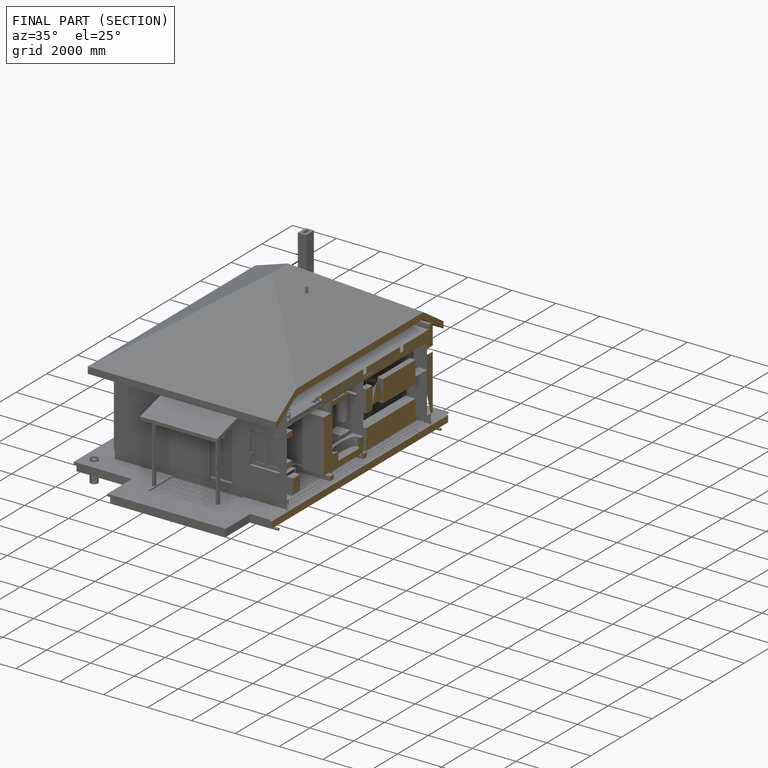
[diagram: finished part — half-section view (interior)]
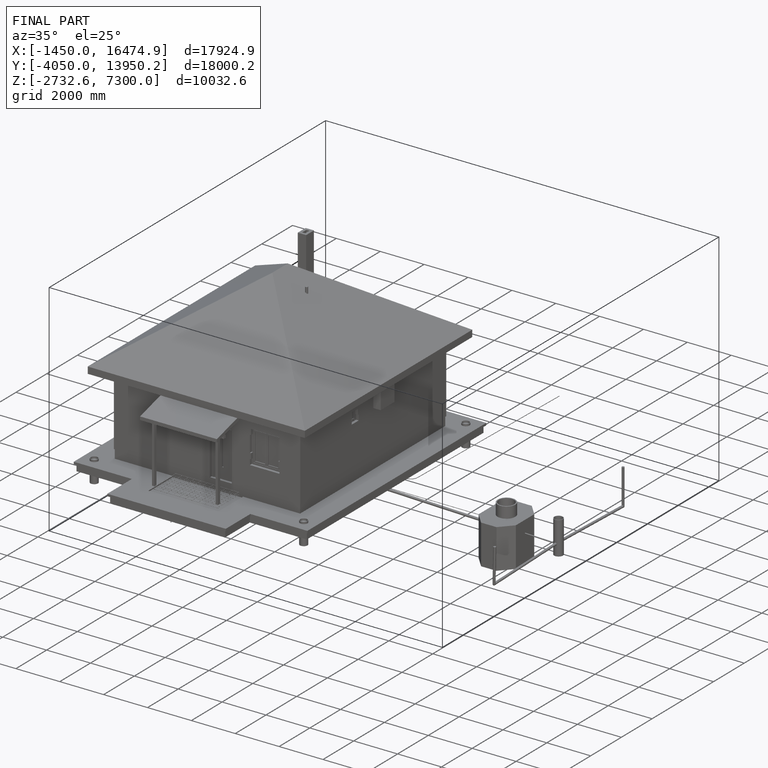
[diagram: finished part — iso view with bounding-box wireframe]
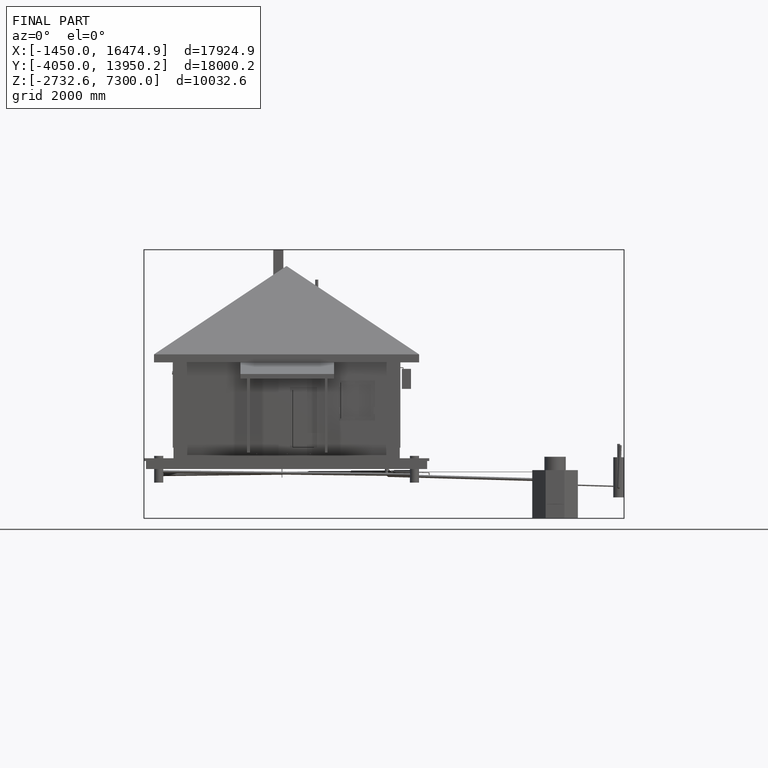
[diagram: finished part — front view with bounding-box wireframe]
